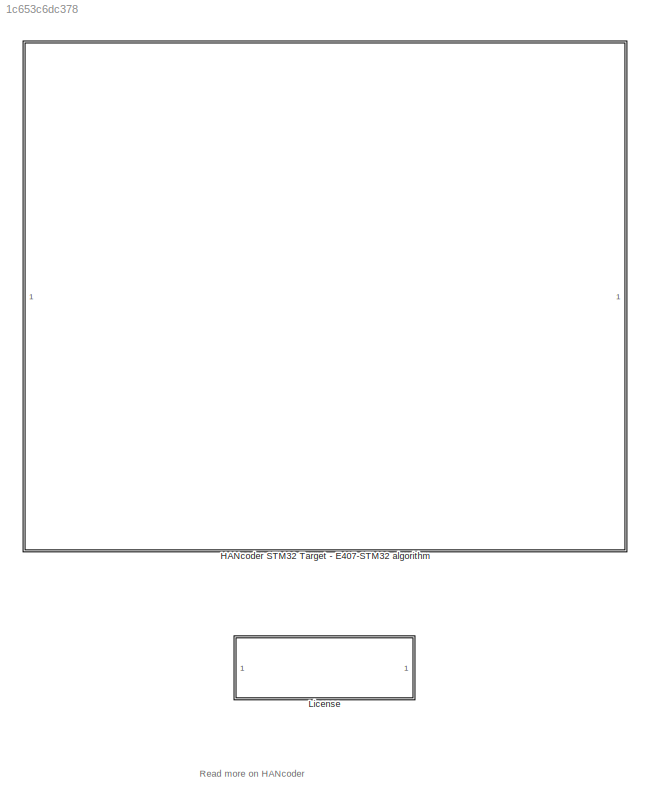
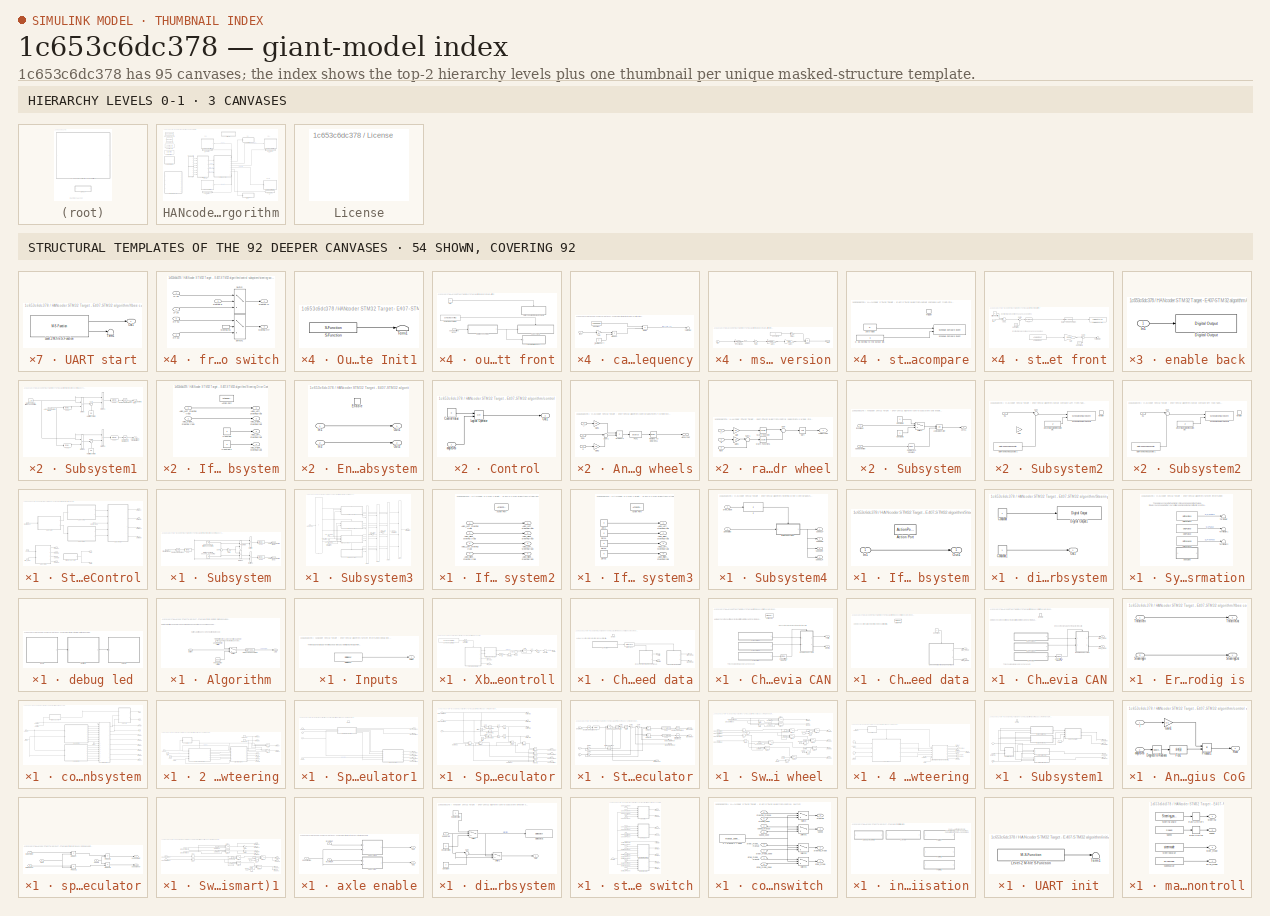
[diagram: thumbnail index - top-2 hierarchy levels (3 canvases) + 54 structural-template representatives of the remaining 92 canvases]
MODEL slx_1c653c6dc378
KIND model
CONFIG AbsTol = auto
CONFIG EnableMultiTasking = off
CONFIG FixedStep = 0.01
CONFIG MaxStep = auto
CONFIG MinStep = auto
CONFIG PreLoadFcn = librarySetup\neval([bdroot,'_startup']) %Calling [modelName]_startup.m
CONFIG RelTol = 1e-3
CONFIG SampleTimeConstraint = Unconstrained
CONFIG Solver = FixedStepDiscrete
CONFIG SolverName = FixedStepDiscrete
CONFIG StartTime = 0.0
CONFIG StopTime = 1
BLOCK [SubSystem] HANcoder STM32 Target - E407-STM32 algorithm
  CopyFcn = HANcoderChecks('Copy');
  MoveFcn = HANcoderChecks('MoveE407');
  NameChangeFcn = HANcoderChecks('NameChangeE407');
  Ports = []
  RequestExecContextInheritance = off
BLOCK [Reference] HANcoder STM32 Target - E407-STM32 algorithm/Base Sample Time config  REF=HANcoder_STM32_Target/STM32-E407/System Config/Base Sample Time config
  Description = HANcoder Target STM32-E407 blockset version 0.5
  Ports = []
  SourceBlock = HANcoder_STM32_Target/STM32-E407/System Config/Base Sample Time config
  SourceProductName = HANcoder STM32 Target
  SourceType = Base Sample Time config
  Tag = HANcoder_TARGET_STM32_E407
  UserDataPersistent = on
BLOCK [Reference] HANcoder STM32 Target - E407-STM32 algorithm/Build settings  REF=HANcoder_STM32_Target/STM32-E407/System Config/Build settings
  Ports = []
  SourceBlock = HANcoder_STM32_Target/STM32-E407/System Config/Build settings
  SourceProductName = HANcoder STM32 Target
  SourceType = Build Settings
  Tag = HANcoder_TARGET_STM32_E407
  UserDataPersistent = on
BLOCK [Reference] HANcoder STM32 Target - E407-STM32 algorithm/Custom ID config  REF=HANcoder_STM32_Target/STM32-E407/System Config/Custom ID config
  Ports = []
  SourceBlock = HANcoder_STM32_Target/STM32-E407/System Config/Custom ID config
  SourceProductName = HANcoder STM32 Target
  SourceType = Custom ID config
  Tag = HANcoder_TARGET_STM32_E407
  UserDataPersistent = on
BLOCK [SubSystem] HANcoder STM32 Target - E407-STM32 algorithm/Steering Drive Control
  Commented = on
  Ports = [4, 10]
  RequestExecContextInheritance = off
BLOCK [Inport] HANcoder STM32 Target - E407-STM32 algorithm/Steering Drive Control/Steering [deg]
  IconDisplay = Port number
BLOCK [SubSystem] HANcoder STM32 Target - E407-STM32 algorithm/Steering Drive Control/Subsystem
  Ports = [1, 2]
  RequestExecContextInheritance = off
BLOCK [Outport] HANcoder STM32 Target - E407-STM32 algorithm/Steering Drive Control/Subsystem/Axle 1 avg steering [deg]
  IconDisplay = Port number
BLOCK [Outport] HANcoder STM32 Target - E407-STM32 algorithm/Steering Drive Control/Subsystem/Axle 2 avg steering [deg]
  IconDisplay = Port number
  Port = 2
BLOCK [Reference] HANcoder STM32 Target - E407-STM32 algorithm/Steering Drive Control/Subsystem/Degrees to Radians  REF=simulink_extras/Transformations/Degrees to
Radians
  Ports = [1, 1]
  SourceBlock = simulink_extras/Transformations/Degrees to\nRadians
  SourceProductBaseCode = SL
  SourceProductName = Simulink
  SourceType = DegreesToRadians
BLOCK [Constant] HANcoder STM32 Target - E407-STM32 algorithm/Steering Drive Control/Subsystem/Distance of dolly first axle from pin coupling
  Value = L_D1
BLOCK [Constant] HANcoder STM32 Target - E407-STM32 algorithm/Steering Drive Control/Subsystem/Distance of dolly second axle from pin coupling
  Value = L_D2
BLOCK [Product] HANcoder STM32 Target - E407-STM32 algorithm/Steering Drive Control/Subsystem/Divide
  InputSameDT = off
  Inputs = */
  OutDataTypeStr = Inherit: Inherit via internal rule
  Ports = [2, 1]
  RndMeth = Floor
  SaturateOnIntegerOverflow = off
BLOCK [Product] HANcoder STM32 Target - E407-STM32 algorithm/Steering Drive Control/Subsystem/Divide1
  InputSameDT = off
  Inputs = /*
  OutDataTypeStr = Inherit: Inherit via internal rule
  Ports = [2, 1]
  RndMeth = Floor
  SaturateOnIntegerOverflow = off
BLOCK [Fcn] HANcoder STM32 Target - E407-STM32 algorithm/Steering Drive Control/Subsystem/Fcn
  Expr = tan(u)
BLOCK [Fcn] HANcoder STM32 Target - E407-STM32 algorithm/Steering Drive Control/Subsystem/Fcn1
  Expr = atan(u)
BLOCK [Fcn] HANcoder STM32 Target - E407-STM32 algorithm/Steering Drive Control/Subsystem/Fcn2
  Expr = atan(u)
BLOCK [Gain] HANcoder STM32 Target - E407-STM32 algorithm/Steering Drive Control/Subsystem/Gain
  Gain = 1/2
  OutDataTypeStr = Inherit: Inherit via internal rule
  ParamDataTypeStr = Inherit: Inherit via internal rule
  SaturateOnIntegerOverflow = off
BLOCK [Product] HANcoder STM32 Target - E407-STM32 algorithm/Steering Drive Control/Subsystem/Multiply
  InputSameDT = off
  OutDataTypeStr = Inherit: Inherit via internal rule
  Ports = [2, 1]
  RndMeth = Floor
  SaturateOnIntegerOverflow = off
BLOCK [Product] HANcoder STM32 Target - E407-STM32 algorithm/Steering Drive Control/Subsystem/Multiply1
  InputSameDT = off
  OutDataTypeStr = Inherit: Inherit via internal rule
  Ports = [2, 1]
  RndMeth = Floor
  SaturateOnIntegerOverflow = off
BLOCK [Inport] HANcoder STM32 Target - E407-STM32 algorithm/Steering Drive Control/Subsystem/Steering [deg]
  IconDisplay = Port number
BLOCK [Sum] HANcoder STM32 Target - E407-STM32 algorithm/Steering Drive Control/Subsystem/Sum
  IconShape = round
  InputSameDT = off
  OutDataTypeStr = Inherit: Inherit via internal rule
  Ports = [2, 1]
  SaturateOnIntegerOverflow = off
BLOCK [SubSystem] HANcoder STM32 Target - E407-STM32 algorithm/Steering Drive Control/Subsystem1
  Ports = [1, 2]
  RequestExecContextInheritance = off
BLOCK [Inport] HANcoder STM32 Target - E407-STM32 algorithm/Steering Drive Control/Subsystem1/Axle 1 avg steering [deg]
  IconDisplay = Port number
BLOCK [Outport] HANcoder STM32 Target - E407-STM32 algorithm/Steering Drive Control/Subsystem1/Axle1_Left_steering [rad]
  IconDisplay = Port number
BLOCK [Outport] HANcoder STM32 Target - E407-STM32 algorithm/Steering Drive Control/Subsystem1/Axle1_Right_steering [rad]
  IconDisplay = Port number
  Port = 2
BLOCK [Constant] HANcoder STM32 Target - E407-STM32 algorithm/Steering Drive Control/Subsystem1/Distance of dolly first axle from pin coupling
  Value = L_D1
BLOCK [Product] HANcoder STM32 Target - E407-STM32 algorithm/Steering Drive Control/Subsystem1/Divide
  InputSameDT = off
  Inputs = */
  OutDataTypeStr = Inherit: Inherit via internal rule
  Ports = [2, 1]
  RndMeth = Floor
  SaturateOnIntegerOverflow = off
BLOCK [Product] HANcoder STM32 Target - E407-STM32 algorithm/Steering Drive Control/Subsystem1/Divide1
  InputSameDT = off
  Inputs = */
  OutDataTypeStr = Inherit: Inherit via internal rule
  Ports = [2, 1]
  RndMeth = Floor
  SaturateOnIntegerOverflow = off
BLOCK [Product] HANcoder STM32 Target - E407-STM32 algorithm/Steering Drive Control/Subsystem1/Divide2
  InputSameDT = off
  Inputs = */
  OutDataTypeStr = Inherit: Inherit via internal rule
  Ports = [2, 1]
  RndMeth = Floor
  SaturateOnIntegerOverflow = off
BLOCK [Product] HANcoder STM32 Target - E407-STM32 algorithm/Steering Drive Control/Subsystem1/Divide3
  InputSameDT = off
  Inputs = */
  OutDataTypeStr = Inherit: Inherit via internal rule
  Ports = [2, 1]
  RndMeth = Floor
  SaturateOnIntegerOverflow = off
BLOCK [Fcn] HANcoder STM32 Target - E407-STM32 algorithm/Steering Drive Control/Subsystem1/Fcn1
  Expr = tan(u)
BLOCK [Fcn] HANcoder STM32 Target - E407-STM32 algorithm/Steering Drive Control/Subsystem1/Fcn2
  Expr = atan(u)
BLOCK [Fcn] HANcoder STM32 Target - E407-STM32 algorithm/Steering Drive Control/Subsystem1/Fcn3
  Expr = tan(u)
BLOCK [Fcn] HANcoder STM32 Target - E407-STM32 algorithm/Steering Drive Control/Subsystem1/Fcn4
  Expr = atan(u)
BLOCK [Constant] HANcoder STM32 Target - E407-STM32 algorithm/Steering Drive Control/Subsystem1/Half of track width
  SampleTime = -1
  Value = b/2
  VectorParams1D = off
BLOCK [Constant] HANcoder STM32 Target - E407-STM32 algorithm/Steering Drive Control/Subsystem1/Half of track width 
  SampleTime = -1
  Value = b/2
  VectorParams1D = off
BLOCK [Reference] HANcoder STM32 Target - E407-STM32 algorithm/Steering Drive Control/Subsystem1/Radians to Degrees  REF=simulink_extras/Transformations/Radians
to Degrees
  Ports = [1, 1]
  SourceBlock = simulink_extras/Transformations/Radians\nto Degrees
  SourceProductBaseCode = SL
  SourceProductName = Simulink
  SourceType = RadiansToDegrees
BLOCK [Reference] HANcoder STM32 Target - E407-STM32 algorithm/Steering Drive Control/Subsystem1/Radians to Degrees1  REF=simulink_extras/Transformations/Radians
to Degrees
  Ports = [1, 1]
  SourceBlock = simulink_extras/Transformations/Radians\nto Degrees
  SourceProductBaseCode = SL
  SourceProductName = Simulink
  SourceType = RadiansToDegrees
BLOCK [Sum] HANcoder STM32 Target - E407-STM32 algorithm/Steering Drive Control/Subsystem1/Sum
  IconShape = round
  InputSameDT = off
  Inputs = |++
  OutDataTypeStr = Inherit: Inherit via internal rule
  Ports = [2, 1]
  SaturateOnIntegerOverflow = off
BLOCK [Sum] HANcoder STM32 Target - E407-STM32 algorithm/Steering Drive Control/Subsystem1/Sum1
  IconShape = round
  InputSameDT = off
  Inputs = |+-
  OutDataTypeStr = Inherit: Inherit via internal rule
  Ports = [2, 1]
  SaturateOnIntegerOverflow = off
BLOCK [SubSystem] HANcoder STM32 Target - E407-STM32 algorithm/Steering Drive Control/Subsystem2
  Ports = [1, 2]
  RequestExecContextInheritance = off
BLOCK [Inport] HANcoder STM32 Target - E407-STM32 algorithm/Steering Drive Control/Subsystem2/Axle 2 avg steering [deg]
  IconDisplay = Port number
BLOCK [Outport] HANcoder STM32 Target - E407-STM32 algorithm/Steering Drive Control/Subsystem2/Axle2_Left_steering [rad]
  IconDisplay = Port number
BLOCK [Outport] HANcoder STM32 Target - E407-STM32 algorithm/Steering Drive Control/Subsystem2/Axle2_Right_steering [rad]
  IconDisplay = Port number
  Port = 2
BLOCK [Constant] HANcoder STM32 Target - E407-STM32 algorithm/Steering Drive Control/Subsystem2/Distance of dolly second axle from pin coupling
  Value = L_D2
BLOCK [Product] HANcoder STM32 Target - E407-STM32 algorithm/Steering Drive Control/Subsystem2/Divide1
  InputSameDT = off
  Inputs = */
  OutDataTypeStr = Inherit: Inherit via internal rule
  Ports = [2, 1]
  RndMeth = Floor
  SaturateOnIntegerOverflow = off
BLOCK [Product] HANcoder STM32 Target - E407-STM32 algorithm/Steering Drive Control/Subsystem2/Divide2
  InputSameDT = off
  Inputs = */
  OutDataTypeStr = Inherit: Inherit via internal rule
  Ports = [2, 1]
  RndMeth = Floor
  SaturateOnIntegerOverflow = off
BLOCK [Product] HANcoder STM32 Target - E407-STM32 algorithm/Steering Drive Control/Subsystem2/Divide3
  InputSameDT = off
  Inputs = */
  OutDataTypeStr = Inherit: Inherit via internal rule
  Ports = [2, 1]
  RndMeth = Floor
  SaturateOnIntegerOverflow = off
BLOCK [Product] HANcoder STM32 Target - E407-STM32 algorithm/Steering Drive Control/Subsystem2/Divide4
  InputSameDT = off
  Inputs = */
  OutDataTypeStr = Inherit: Inherit via internal rule
  Ports = [2, 1]
  RndMeth = Floor
  SaturateOnIntegerOverflow = off
BLOCK [Fcn] HANcoder STM32 Target - E407-STM32 algorithm/Steering Drive Control/Subsystem2/Fcn1
  Expr = tan(u)
BLOCK [Fcn] HANcoder STM32 Target - E407-STM32 algorithm/Steering Drive Control/Subsystem2/Fcn2
  Expr = atan(u)
BLOCK [Fcn] HANcoder STM32 Target - E407-STM32 algorithm/Steering Drive Control/Subsystem2/Fcn3
  Expr = tan(u)
BLOCK [Fcn] HANcoder STM32 Target - E407-STM32 algorithm/Steering Drive Control/Subsystem2/Fcn4
  Expr = atan(u)
BLOCK [Constant] HANcoder STM32 Target - E407-STM32 algorithm/Steering Drive Control/Subsystem2/Half of track width 
  SampleTime = -1
  Value = b/2
  VectorParams1D = off
BLOCK [Constant] HANcoder STM32 Target - E407-STM32 algorithm/Steering Drive Control/Subsystem2/Half of track width  
  SampleTime = -1
  Value = b/2
  VectorParams1D = off
BLOCK [Reference] HANcoder STM32 Target - E407-STM32 algorithm/Steering Drive Control/Subsystem2/Radians to Degrees  REF=simulink_extras/Transformations/Radians
to Degrees
  Ports = [1, 1]
  SourceBlock = simulink_extras/Transformations/Radians\nto Degrees
  SourceProductBaseCode = SL
  SourceProductName = Simulink
  SourceType = RadiansToDegrees
BLOCK [Reference] HANcoder STM32 Target - E407-STM32 algorithm/Steering Drive Control/Subsystem2/Radians to Degrees1  REF=simulink_extras/Transformations/Radians
to Degrees
  Ports = [1, 1]
  SourceBlock = simulink_extras/Transformations/Radians\nto Degrees
  SourceProductBaseCode = SL
  SourceProductName = Simulink
  SourceType = RadiansToDegrees
BLOCK [Sum] HANcoder STM32 Target - E407-STM32 algorithm/Steering Drive Control/Subsystem2/Sum1
  IconShape = round
  InputSameDT = off
  Inputs = |++
  OutDataTypeStr = Inherit: Inherit via internal rule
  Ports = [2, 1]
  SaturateOnIntegerOverflow = off
BLOCK [Sum] HANcoder STM32 Target - E407-STM32 algorithm/Steering Drive Control/Subsystem2/Sum2
  IconShape = round
  InputSameDT = off
  Inputs = |+-
  OutDataTypeStr = Inherit: Inherit via internal rule
  Ports = [2, 1]
  SaturateOnIntegerOverflow = off
BLOCK [SubSystem] HANcoder STM32 Target - E407-STM32 algorithm/Steering Drive Control/Subsystem3
  Ports = [5, 4]
  RequestExecContextInheritance = off
BLOCK [Inport] HANcoder STM32 Target - E407-STM32 algorithm/Steering Drive Control/Subsystem3/Axle1_Left_steering [rad]
  IconDisplay = Port number
BLOCK [Outport] HANcoder STM32 Target - E407-STM32 algorithm/Steering Drive Control/Subsystem3/Axle1_Left_steering[rad]
  IconDisplay = Port number
BLOCK [Inport] HANcoder STM32 Target - E407-STM32 algorithm/Steering Drive Control/Subsystem3/Axle1_Right_steering [rad]
  IconDisplay = Port number
  Port = 2
BLOCK [Outport] HANcoder STM32 Target - E407-STM32 algorithm/Steering Drive Control/Subsystem3/Axle1_Right_steering[rad]
  IconDisplay = Port number
  Port = 2
BLOCK [Inport] HANcoder STM32 Target - E407-STM32 algorithm/Steering Drive Control/Subsystem3/Axle2_Left_steering [rad]
  IconDisplay = Port number
  Port = 4
BLOCK [Outport] HANcoder STM32 Target - E407-STM32 algorithm/Steering Drive Control/Subsystem3/Axle2_Left_steering[rad]
  IconDisplay = Port number
  Port = 3
BLOCK [Inport] HANcoder STM32 Target - E407-STM32 algorithm/Steering Drive Control/Subsystem3/Axle2_Right_steering [rad]
  IconDisplay = Port number
  Port = 5
BLOCK [Outport] HANcoder STM32 Target - E407-STM32 algorithm/Steering Drive Control/Subsystem3/Axle2_Right_steering[rad]
  IconDisplay = Port number
  Port = 4
BLOCK [If] HANcoder STM32 Target - E407-STM32 algorithm/Steering Drive Control/Subsystem3/If
  ElseIfExpressions = u1 == 2, u1 == 3
  IfExpression = u1 == 1
  Ports = [1, 4]
BLOCK [SubSystem] HANcoder STM32 Target - E407-STM32 algorithm/Steering Drive Control/Subsystem3/If Action Subsystem
  Ports = [2, 4, 0, 0, 0, 0, 0, 1]
  RequestExecContextInheritance = off
  TreatAsAtomicUnit = on
BLOCK [ActionPort] HANcoder STM32 Target - E407-STM32 algorithm/Steering Drive Control/Subsystem3/If Action Subsystem/Action Port
BLOCK [Inport] HANcoder STM32 Target - E407-STM32 algorithm/Steering Drive Control/Subsystem3/If Action Subsystem/Axle1_Left_steering [rad]
  IconDisplay = Port number
BLOCK [Outport] HANcoder STM32 Target - E407-STM32 algorithm/Steering Drive Control/Subsystem3/If Action Subsystem/Axle1_Left_steering[rad]
  IconDisplay = Port number
BLOCK [Inport] HANcoder STM32 Target - E407-STM32 algorithm/Steering Drive Control/Subsystem3/If Action Subsystem/Axle1_Right_steering [rad]
  IconDisplay = Port number
  Port = 2
BLOCK [Outport] HANcoder STM32 Target - E407-STM32 algorithm/Steering Drive Control/Subsystem3/If Action Subsystem/Axle1_Right_steering[rad]
  IconDisplay = Port number
  Port = 2
BLOCK [Outport] HANcoder STM32 Target - E407-STM32 algorithm/Steering Drive Control/Subsystem3/If Action Subsystem/Axle2_Left_steering[rad]
  IconDisplay = Port number
  Port = 3
BLOCK [Outport] HANcoder STM32 Target - E407-STM32 algorithm/Steering Drive Control/Subsystem3/If Action Subsystem/Axle2_Right_steering[rad]
  IconDisplay = Port number
  Port = 4
BLOCK [Constant] HANcoder STM32 Target - E407-STM32 algorithm/Steering Drive Control/Subsystem3/If Action Subsystem/Constant
  Value = 0
BLOCK [Constant] HANcoder STM32 Target - E407-STM32 algorithm/Steering Drive Control/Subsystem3/If Action Subsystem/Constant1
  Value = 0
BLOCK [SubSystem] HANcoder STM32 Target - E407-STM32 algorithm/Steering Drive Control/Subsystem3/If Action Subsystem1
  Ports = [2, 4, 0, 0, 0, 0, 0, 1]
  RequestExecContextInheritance = off
  TreatAsAtomicUnit = on
BLOCK [ActionPort] HANcoder STM32 Target - E407-STM32 algorithm/Steering Drive Control/Subsystem3/If Action Subsystem1/Action Port
BLOCK [Outport] HANcoder STM32 Target - E407-STM32 algorithm/Steering Drive Control/Subsystem3/If Action Subsystem1/Axle1_Left_steering[rad]
  IconDisplay = Port number
BLOCK [Outport] HANcoder STM32 Target - E407-STM32 algorithm/Steering Drive Control/Subsystem3/If Action Subsystem1/Axle1_Right_steering[rad]
  IconDisplay = Port number
  Port = 2
BLOCK [Inport] HANcoder STM32 Target - E407-STM32 algorithm/Steering Drive Control/Subsystem3/If Action Subsystem1/Axle2_Left_steering [rad]
  IconDisplay = Port number
BLOCK [Outport] HANcoder STM32 Target - E407-STM32 algorithm/Steering Drive Control/Subsystem3/If Action Subsystem1/Axle2_Left_steering[rad]
  IconDisplay = Port number
  Port = 3
BLOCK [Inport] HANcoder STM32 Target - E407-STM32 algorithm/Steering Drive Control/Subsystem3/If Action Subsystem1/Axle2_Right_steering [rad]
  IconDisplay = Port number
  Port = 2
BLOCK [Outport] HANcoder STM32 Target - E407-STM32 algorithm/Steering Drive Control/Subsystem3/If Action Subsystem1/Axle2_Right_steering[rad]
  IconDisplay = Port number
  Port = 4
BLOCK [Constant] HANcoder STM32 Target - E407-STM32 algorithm/Steering Drive Control/Subsystem3/If Action Subsystem1/Constant
  Value = 0
BLOCK [Constant] HANcoder STM32 Target - E407-STM32 algorithm/Steering Drive Control/Subsystem3/If Action Subsystem1/Constant1
  Value = 0
BLOCK [SubSystem] HANcoder STM32 Target - E407-STM32 algorithm/Steering Drive Control/Subsystem3/If Action Subsystem2
  Ports = [4, 4, 0, 0, 0, 0, 0, 1]
  RequestExecContextInheritance = off
  TreatAsAtomicUnit = on
BLOCK [ActionPort] HANcoder STM32 Target - E407-STM32 algorithm/Steering Drive Control/Subsystem3/If Action Subsystem2/Action Port
BLOCK [Inport] HANcoder STM32 Target - E407-STM32 algorithm/Steering Drive Control/Subsystem3/If Action Subsystem2/Axle1_Left_steering [rad]
  IconDisplay = Port number
BLOCK [Outport] HANcoder STM32 Target - E407-STM32 algorithm/Steering Drive Control/Subsystem3/If Action Subsystem2/Axle1_Left_steering[rad]
  IconDisplay = Port number
BLOCK [Inport] HANcoder STM32 Target - E407-STM32 algorithm/Steering Drive Control/Subsystem3/If Action Subsystem2/Axle1_Right_steering [rad]
  IconDisplay = Port number
  Port = 2
BLOCK [Outport] HANcoder STM32 Target - E407-STM32 algorithm/Steering Drive Control/Subsystem3/If Action Subsystem2/Axle1_Right_steering[rad]
  IconDisplay = Port number
  Port = 2
BLOCK [Inport] HANcoder STM32 Target - E407-STM32 algorithm/Steering Drive Control/Subsystem3/If Action Subsystem2/Axle2_Left_steering [rad]
  IconDisplay = Port number
  Port = 3
BLOCK [Outport] HANcoder STM32 Target - E407-STM32 algorithm/Steering Drive Control/Subsystem3/If Action Subsystem2/Axle2_Left_steering[rad]
  IconDisplay = Port number
  Port = 3
BLOCK [Inport] HANcoder STM32 Target - E407-STM32 algorithm/Steering Drive Control/Subsystem3/If Action Subsystem2/Axle2_Right_steering [rad]
  IconDisplay = Port number
  Port = 4
BLOCK [Outport] HANcoder STM32 Target - E407-STM32 algorithm/Steering Drive Control/Subsystem3/If Action Subsystem2/Axle2_Right_steering[rad]
  IconDisplay = Port number
  Port = 4
BLOCK [SubSystem] HANcoder STM32 Target - E407-STM32 algorithm/Steering Drive Control/Subsystem3/If Action Subsystem3
  Ports = [0, 4, 0, 0, 0, 0, 0, 1]
  RequestExecContextInheritance = off
  TreatAsAtomicUnit = on
BLOCK [ActionPort] HANcoder STM32 Target - E407-STM32 algorithm/Steering Drive Control/Subsystem3/If Action Subsystem3/Action Port
BLOCK [Outport] HANcoder STM32 Target - E407-STM32 algorithm/Steering Drive Control/Subsystem3/If Action Subsystem3/Axle1_Left_steering[rad]
  IconDisplay = Port number
BLOCK [Outport] HANcoder STM32 Target - E407-STM32 algorithm/Steering Drive Control/Subsystem3/If Action Subsystem3/Axle1_Right_steering[rad]
  IconDisplay = Port number
  Port = 2
BLOCK [Outport] HANcoder STM32 Target - E407-STM32 algorithm/Steering Drive Control/Subsystem3/If Action Subsystem3/Axle2_Left_steering[rad]
  IconDisplay = Port number
  Port = 3
BLOCK [Outport] HANcoder STM32 Target - E407-STM32 algorithm/Steering Drive Control/Subsystem3/If Action Subsystem3/Axle2_Right_steering[rad]
  IconDisplay = Port number
  Port = 4
BLOCK [Constant] HANcoder STM32 Target - E407-STM32 algorithm/Steering Drive Control/Subsystem3/If Action Subsystem3/Zero
  Value = 0
BLOCK [Constant] HANcoder STM32 Target - E407-STM32 algorithm/Steering Drive Control/Subsystem3/If Action Subsystem3/Zero1
  Value = 0
BLOCK [Constant] HANcoder STM32 Target - E407-STM32 algorithm/Steering Drive Control/Subsystem3/If Action Subsystem3/Zero2
  Value = 0
BLOCK [Constant] HANcoder STM32 Target - E407-STM32 algorithm/Steering Drive Control/Subsystem3/If Action Subsystem3/Zero3
  Value = 0
BLOCK [Merge] HANcoder STM32 Target - E407-STM32 algorithm/Steering Drive Control/Subsystem3/Merge1
  Inputs = 4
  Ports = [4, 1]
BLOCK [Merge] HANcoder STM32 Target - E407-STM32 algorithm/Steering Drive Control/Subsystem3/Merge2
  Inputs = 4
  Ports = [4, 1]
BLOCK [Merge] HANcoder STM32 Target - E407-STM32 algorithm/Steering Drive Control/Subsystem3/Merge3
  Inputs = 4
  Ports = [4, 1]
BLOCK [Merge] HANcoder STM32 Target - E407-STM32 algorithm/Steering Drive Control/Subsystem3/Merge4
  Inputs = 4
  Ports = [4, 1]
BLOCK [Inport] HANcoder STM32 Target - E407-STM32 algorithm/Steering Drive Control/Subsystem3/steering_mode
  IconDisplay = Port number
  Port = 3
BLOCK [SubSystem] HANcoder STM32 Target - E407-STM32 algorithm/Steering Drive Control/Subsystem4
  Ports = [2, 4]
  RequestExecContextInheritance = off
BLOCK [If] HANcoder STM32 Target - E407-STM32 algorithm/Steering Drive Control/Subsystem4/If
  IfExpression = u1 ==1
  Ports = [1, 1]
  ShowElse = off
BLOCK [SubSystem] HANcoder STM32 Target - E407-STM32 algorithm/Steering Drive Control/Subsystem4/If Action Subsystem
  Ports = [1, 1, 0, 0, 0, 0, 0, 1]
  RequestExecContextInheritance = off
  TreatAsAtomicUnit = on
BLOCK [ActionPort] HANcoder STM32 Target - E407-STM32 algorithm/Steering Drive Control/Subsystem4/If Action Subsystem/Action Port
BLOCK [Inport] HANcoder STM32 Target - E407-STM32 algorithm/Steering Drive Control/Subsystem4/If Action Subsystem/In1
  IconDisplay = Port number
BLOCK [Outport] HANcoder STM32 Target - E407-STM32 algorithm/Steering Drive Control/Subsystem4/If Action Subsystem/Out1
  IconDisplay = Port number
BLOCK [Inport] HANcoder STM32 Target - E407-STM32 algorithm/Steering Drive Control/Subsystem4/Speed [m//s]
  IconDisplay = Port number
BLOCK [Inport] HANcoder STM32 Target - E407-STM32 algorithm/Steering Drive Control/Subsystem4/drive_mode
  IconDisplay = Port number
  Port = 2
BLOCK [Outport] HANcoder STM32 Target - E407-STM32 algorithm/Steering Drive Control/Subsystem4/speed LF
  IconDisplay = Port number
BLOCK [Outport] HANcoder STM32 Target - E407-STM32 algorithm/Steering Drive Control/Subsystem4/speed LR
  IconDisplay = Port number
  Port = 4
BLOCK [Outport] HANcoder STM32 Target - E407-STM32 algorithm/Steering Drive Control/Subsystem4/speed RF
  IconDisplay = Port number
  Port = 2
BLOCK [Outport] HANcoder STM32 Target - E407-STM32 algorithm/Steering Drive Control/Subsystem4/speed RR
  IconDisplay = Port number
  Port = 3
BLOCK [SubSystem] HANcoder STM32 Target - E407-STM32 algorithm/Steering Drive Control/direction subsystem
  Ports = [0, 1]
  RequestExecContextInheritance = off
BLOCK [Constant] HANcoder STM32 Target - E407-STM32 algorithm/Steering Drive Control/direction subsystem/Constant
  OutDataTypeStr = boolean
BLOCK [Constant] HANcoder STM32 Target - E407-STM32 algorithm/Steering Drive Control/direction subsystem/Constant1
  OutDataTypeStr = boolean
BLOCK [Reference] HANcoder STM32 Target - E407-STM32 algorithm/Steering Drive Control/direction subsystem/Digital Output1  REF=HANcoder_STM32_Target/STM32-E407/Digital Outputs/Digital Output
  Ports = [1]
  SourceBlock = HANcoder_STM32_Target/STM32-E407/Digital Outputs/Digital Output
  SourceProductName = HANcoder STM32 Target
  SourceType = Digital Output
  Tag = HANcoder_TARGET_STM32_E407
  UserDataPersistent = on
BLOCK [Outport] HANcoder STM32 Target - E407-STM32 algorithm/Steering Drive Control/direction subsystem/Out1
  IconDisplay = Port number
BLOCK [Inport] HANcoder STM32 Target - E407-STM32 algorithm/Steering Drive Control/drive_mode
  IconDisplay = Port number
  Port = 4
BLOCK [Inport] HANcoder STM32 Target - E407-STM32 algorithm/Steering Drive Control/speed
  IconDisplay = Port number
  Port = 2
BLOCK [Outport] HANcoder STM32 Target - E407-STM32 algorithm/Steering Drive Control/speed LF
  IconDisplay = Port number
  Port = 2
BLOCK [Outport] HANcoder STM32 Target - E407-STM32 algorithm/Steering Drive Control/speed LR
  IconDisplay = Port number
  Port = 10
BLOCK [Outport] HANcoder STM32 Target - E407-STM32 algorithm/Steering Drive Control/speed RF
  IconDisplay = Port number
  Port = 4
BLOCK [Outport] HANcoder STM32 Target - E407-STM32 algorithm/Steering Drive Control/speed RR
  IconDisplay = Port number
  Port = 6
BLOCK [Outport] HANcoder STM32 Target - E407-STM32 algorithm/Steering Drive Control/steering LF
  IconDisplay = Port number
BLOCK [Outport] HANcoder STM32 Target - E407-STM32 algorithm/Steering Drive Control/steering LR
  IconDisplay = Port number
  Port = 9
BLOCK [Outport] HANcoder STM32 Target - E407-STM32 algorithm/Steering Drive Control/steering RF
  IconDisplay = Port number
  Port = 5
BLOCK [Outport] HANcoder STM32 Target - E407-STM32 algorithm/Steering Drive Control/steering RR
  IconDisplay = Port number
  Port = 7
BLOCK [Inport] HANcoder STM32 Target - E407-STM32 algorithm/Steering Drive Control/steering_mode
  IconDisplay = Port number
  Port = 3
BLOCK [Outport] HANcoder STM32 Target - E407-STM32 algorithm/Steering Drive Control/zeroF
  IconDisplay = Port number
  Port = 3
BLOCK [Outport] HANcoder STM32 Target - E407-STM32 algorithm/Steering Drive Control/zeroR
  IconDisplay = Port number
  Port = 8
BLOCK [SubSystem] HANcoder STM32 Target - E407-STM32 algorithm/System information
  Ports = []
  RequestExecContextInheritance = off
BLOCK [Reference] HANcoder STM32 Target - E407-STM32 algorithm/System information/Get CPU load  REF=HANcoder_STM32_Target/STM32-E407/System Management/Get CPU load
  Ports = [0, 1]
  SourceBlock = HANcoder_STM32_Target/STM32-E407/System Management/Get CPU load
  SourceProductName = HANcoder STM32 Target
  SourceType = Get CPU load
  Tag = HANcoder_TARGET_STM32_E407
  UserDataPersistent = on
BLOCK [Reference] HANcoder STM32 Target - E407-STM32 algorithm/System information/Get free Heap  REF=HANcoder_STM32_Target/STM32-E407/System Management/Get free Heap
  Ports = [0, 1]
  SourceBlock = HANcoder_STM32_Target/STM32-E407/System Management/Get free Heap
  SourceProductName = HANcoder STM32 Target
  SourceType = Get free Heap
  Tag = HANcoder_TARGET_STM32_E407
  UserDataPersistent = on
BLOCK [Reference] HANcoder STM32 Target - E407-STM32 algorithm/System information/Get free Stack  REF=HANcoder_STM32_Target/STM32-E407/System Management/Get free Stack
  Ports = [0, 1]
  SourceBlock = HANcoder_STM32_Target/STM32-E407/System Management/Get free Stack
  SourceProductName = HANcoder STM32 Target
  SourceType = Get free Stacl
  Tag = HANcoder_TARGET_STM32_E407
  UserDataPersistent = on
BLOCK [Terminator] HANcoder STM32 Target - E407-STM32 algorithm/System information/Terminator
BLOCK [Terminator] HANcoder STM32 Target - E407-STM32 algorithm/System information/Terminator1
BLOCK [Terminator] HANcoder STM32 Target - E407-STM32 algorithm/System information/Terminator2
BLOCK [SubSystem] HANcoder STM32 Target - E407-STM32 algorithm/System information/debug led
  Ports = []
  RequestExecContextInheritance = off
BLOCK [SubSystem] HANcoder STM32 Target - E407-STM32 algorithm/System information/debug led/Algorithm
  Ports = [1, 1]
  RequestExecContextInheritance = off
BLOCK [Reference] HANcoder STM32 Target - E407-STM32 algorithm/System information/debug led/Algorithm/10Hz Counter Limiter  REF=simulink/Sources/Counter
Limited
  Ports = [0, 1]
  SourceBlock = simulink/Sources/Counter\nLimited
  SourceProductBaseCode = SL
  SourceProductName = Simulink
  SourceType = Counter Limited
BLOCK [Reference] HANcoder STM32 Target - E407-STM32 algorithm/System information/debug led/Algorithm/5Hz Counter Limited  REF=simulink/Sources/Counter
Limited
  Ports = [0, 1]
  SourceBlock = simulink/Sources/Counter\nLimited
  SourceProductBaseCode = SL
  SourceProductName = Simulink
  SourceType = Counter Limited
BLOCK [Inport] HANcoder STM32 Target - E407-STM32 algorithm/System information/debug led/Algorithm/Button
  IconDisplay = Port number
BLOCK [DataTypeConversion] HANcoder STM32 Target - E407-STM32 algorithm/System information/debug led/Algorithm/Data Type Conversion
  OutDataTypeStr = boolean
  RndMeth = Floor
  SaturateOnIntegerOverflow = off
BLOCK [Outport] HANcoder STM32 Target - E407-STM32 algorithm/System information/debug led/Algorithm/LED
  IconDisplay = Port number
BLOCK [Switch] HANcoder STM32 Target - E407-STM32 algorithm/System information/debug led/Algorithm/Switch
  Criteria = u2 > Threshold
  InputSameDT = off
  SaturateOnIntegerOverflow = off
BLOCK [SubSystem] HANcoder STM32 Target - E407-STM32 algorithm/System information/debug led/Inputs
  Ports = [0, 1]
  RequestExecContextInheritance = off
BLOCK [Outport] HANcoder STM32 Target - E407-STM32 algorithm/System information/debug led/Inputs/Button
  IconDisplay = Port number
BLOCK [Reference] HANcoder STM32 Target - E407-STM32 algorithm/System information/debug led/Inputs/Digital Input  REF=HANcoder_STM32_Target/STM32-E407/Digital Inputs/Digital Input
  Ports = [0, 1]
  SourceBlock = HANcoder_STM32_Target/STM32-E407/Digital Inputs/Digital Input
  SourceProductName = HANcoder STM32 Target
  SourceType = Digital Input
  Tag = HANcoder_TARGET_STM32_E407
  UserDataPersistent = on
BLOCK [SubSystem] HANcoder STM32 Target - E407-STM32 algorithm/System information/debug led/Outputs
  Ports = [1]
  RequestExecContextInheritance = off
BLOCK [Reference] HANcoder STM32 Target - E407-STM32 algorithm/System information/debug led/Outputs/Digital Output  REF=HANcoder_STM32_Target/STM32-E407/Digital Outputs/Digital Output
  Ports = [1]
  SourceBlock = HANcoder_STM32_Target/STM32-E407/Digital Outputs/Digital Output
  SourceProductName = HANcoder STM32 Target
  SourceType = Digital Output
  Tag = HANcoder_TARGET_STM32_E407
  UserDataPersistent = on
BLOCK [Inport] HANcoder STM32 Target - E407-STM32 algorithm/System information/debug led/Outputs/LED
  IconDisplay = Port number
BLOCK [Reference] HANcoder STM32 Target - E407-STM32 algorithm/XCP on USB config  REF=HANcoder_STM32_Target/STM32-E407/System Config/XCP on USB config
  Ports = []
  SourceBlock = HANcoder_STM32_Target/STM32-E407/System Config/XCP on USB config
  SourceProductName = HANcoder STM32 Target
  SourceType = XCP on USB config
  Tag = HANcoder_TARGET_STM32_E407
  UserDataPersistent = on
BLOCK [SubSystem] HANcoder STM32 Target - E407-STM32 algorithm/Xbee controll
  Ports = [0, 4]
  RequestExecContextInheritance = off
BLOCK [SubSystem] HANcoder STM32 Target - E407-STM32 algorithm/Xbee controll/Check received data
  Ports = [0, 4, 1]
  RequestExecContextInheritance = off
  TreatAsAtomicUnit = on
BLOCK [SubSystem] HANcoder STM32 Target - E407-STM32 algorithm/Xbee controll/Check received data/Check next 3 bytes and send via CAN
  Ports = [0, 2, 0, 0, 0, 0, 0, 1]
  RequestExecContextInheritance = off
  TreatAsAtomicUnit = on
BLOCK [ActionPort] HANcoder STM32 Target - E407-STM32 algorithm/Xbee controll/Check received data/Check next 3 bytes and send via CAN/Action Port
BLOCK [Reference] HANcoder STM32 Target - E407-STM32 algorithm/Xbee controll/Check received data/Check next 3 bytes and send via CAN/Check if it is the stop byte  REF=simulink/Logic and Bit
Operations/Compare
To Constant
  Ports = [1, 1]
  SourceBlock = simulink/Logic and Bit\nOperations/Compare\nTo Constant
  SourceProductBaseCode = SL
  SourceProductName = Simulink
  SourceType = Compare To Constant
BLOCK [SubSystem] HANcoder STM32 Target - E407-STM32 algorithm/Xbee controll/Check received data/Check next 3 bytes and send via CAN/Enabled Subsystem
  Ports = [2, 2, 1]
  RequestExecContextInheritance = off
  TreatAsAtomicUnit = on
BLOCK [EnablePort] HANcoder STM32 Target - E407-STM32 algorithm/Xbee controll/Check received data/Check next 3 bytes and send via CAN/Enabled Subsystem/Enable
  Ports = []
BLOCK [Inport] HANcoder STM32 Target - E407-STM32 algorithm/Xbee controll/Check received data/Check next 3 bytes and send via CAN/Enabled Subsystem/In1
  IconDisplay = Port number
BLOCK [Inport] HANcoder STM32 Target - E407-STM32 algorithm/Xbee controll/Check received data/Check next 3 bytes and send via CAN/Enabled Subsystem/In2
  IconDisplay = Port number
  Port = 2
BLOCK [Outport] HANcoder STM32 Target - E407-STM32 algorithm/Xbee controll/Check received data/Check next 3 bytes and send via CAN/Enabled Subsystem/Out1
  IconDisplay = Port number
BLOCK [Outport] HANcoder STM32 Target - E407-STM32 algorithm/Xbee controll/Check received data/Check next 3 bytes and send via CAN/Enabled Subsystem/Out2
  IconDisplay = Port number
  Port = 2
BLOCK [Outport] HANcoder STM32 Target - E407-STM32 algorithm/Xbee controll/Check received data/Check next 3 bytes and send via CAN/Steering
  IconDisplay = Port number
  Port = 2
BLOCK [Outport] HANcoder STM32 Target - E407-STM32 algorithm/Xbee controll/Check received data/Check next 3 bytes and send via CAN/Throttle
  IconDisplay = Port number
BLOCK [SubSystem] HANcoder STM32 Target - E407-STM32 algorithm/Xbee controll/Check received data/Check next 3 bytes and send via CAN/UART stop
  AncestorBlock = HANcoder_STM32_Target/STM32-E407/UART/UART receive
  MoveFcn = drawLogos
  Ports = [0, 1]
  Priority = 30
  RequestExecContextInheritance = off
  Tag = HANcoder_TARGET_STM32_E407
  UserDataPersistent = on
BLOCK [M-S-Function] HANcoder STM32 Target - E407-STM32 algorithm/Xbee controll/Check received data/Check next 3 bytes and send via CAN/UART stop/Level-2 M-file S-Function
  FunctionName = sfcn_uart_receive
  Parameters = tsamp
  Ports = [0, 2]
BLOCK [Outport] HANcoder STM32 Target - E407-STM32 algorithm/Xbee controll/Check received data/Check next 3 bytes and send via CAN/UART stop/Out1
  IconDisplay = Port number
BLOCK [Terminator] HANcoder STM32 Target - E407-STM32 algorithm/Xbee controll/Check received data/Check next 3 bytes and send via CAN/UART stop/Term1
BLOCK [SubSystem] HANcoder STM32 Target - E407-STM32 algorithm/Xbee controll/Check received data/Check next 3 bytes and send via CAN/UART value1
  AncestorBlock = HANcoder_STM32_Target/STM32-E407/UART/UART receive
  MoveFcn = drawLogos
  Ports = [0, 1]
  Priority = 10
  RequestExecContextInheritance = off
  Tag = HANcoder_TARGET_STM32_E407
  UserDataPersistent = on
BLOCK [M-S-Function] HANcoder STM32 Target - E407-STM32 algorithm/Xbee controll/Check received data/Check next 3 bytes and send via CAN/UART value1/Level-2 M-file S-Function
  FunctionName = sfcn_uart_receive
  Parameters = tsamp
  Ports = [0, 2]
BLOCK [Outport] HANcoder STM32 Target - E407-STM32 algorithm/Xbee controll/Check received data/Check next 3 bytes and send via CAN/UART value1/Out1
  IconDisplay = Port number
BLOCK [Terminator] HANcoder STM32 Target - E407-STM32 algorithm/Xbee controll/Check received data/Check next 3 bytes and send via CAN/UART value1/Term1
BLOCK [SubSystem] HANcoder STM32 Target - E407-STM32 algorithm/Xbee controll/Check received data/Check next 3 bytes and send via CAN/UART value2
  AncestorBlock = HANcoder_STM32_Target/STM32-E407/UART/UART receive
  MoveFcn = drawLogos
  Ports = [0, 1]
  Priority = 20
  RequestExecContextInheritance = off
  Tag = HANcoder_TARGET_STM32_E407
  UserDataPersistent = on
BLOCK [M-S-Function] HANcoder STM32 Target - E407-STM32 algorithm/Xbee controll/Check received data/Check next 3 bytes and send via CAN/UART value2/Level-2 M-file S-Function
  FunctionName = sfcn_uart_receive
  Parameters = tsamp
  Ports = [0, 2]
BLOCK [Outport] HANcoder STM32 Target - E407-STM32 algorithm/Xbee controll/Check received data/Check next 3 bytes and send via CAN/UART value2/Out1
  IconDisplay = Port number
BLOCK [Terminator] HANcoder STM32 Target - E407-STM32 algorithm/Xbee controll/Check received data/Check next 3 bytes and send via CAN/UART value2/Term1
BLOCK [SubSystem] HANcoder STM32 Target - E407-STM32 algorithm/Xbee controll/Check received data/Check received data
  Ports = [0, 2, 0, 0, 0, 0, 0, 1]
  RequestExecContextInheritance = off
  TreatAsAtomicUnit = on
BLOCK [ActionPort] HANcoder STM32 Target - E407-STM32 algorithm/Xbee controll/Check received data/Check received data/Action Port
BLOCK [SubSystem] HANcoder STM32 Target - E407-STM32 algorithm/Xbee controll/Check received data/Check received data/Check next 3 bytes and send via CAN
  Ports = [0, 2, 1]
  RequestExecContextInheritance = off
  TreatAsAtomicUnit = on
BLOCK [Reference] HANcoder STM32 Target - E407-STM32 algorithm/Xbee controll/Check received data/Check received data/Check next 3 bytes and send via CAN/Check if it is the stop byte  REF=simulink/Logic and Bit
Operations/Compare
To Constant
  Ports = [1, 1]
  SourceBlock = simulink/Logic and Bit\nOperations/Compare\nTo Constant
  SourceProductBaseCode = SL
  SourceProductName = Simulink
  SourceType = Compare To Constant
BLOCK [EnablePort] HANcoder STM32 Target - E407-STM32 algorithm/Xbee controll/Check received data/Check received data/Check next 3 bytes and send via CAN/Enable
  Ports = []
BLOCK [SubSystem] HANcoder STM32 Target - E407-STM32 algorithm/Xbee controll/Check received data/Check received data/Check next 3 bytes and send via CAN/Enabled Subsystem
  Ports = [2, 2, 1]
  RequestExecContextInheritance = off
  TreatAsAtomicUnit = on
BLOCK [EnablePort] HANcoder STM32 Target - E407-STM32 algorithm/Xbee controll/Check received data/Check received data/Check next 3 bytes and send via CAN/Enabled Subsystem/Enable
  Ports = []
BLOCK [Inport] HANcoder STM32 Target - E407-STM32 algorithm/Xbee controll/Check received data/Check received data/Check next 3 bytes and send via CAN/Enabled Subsystem/In1
  IconDisplay = Port number
BLOCK [Inport] HANcoder STM32 Target - E407-STM32 algorithm/Xbee controll/Check received data/Check received data/Check next 3 bytes and send via CAN/Enabled Subsystem/In2
  IconDisplay = Port number
  Port = 2
BLOCK [Outport] HANcoder STM32 Target - E407-STM32 algorithm/Xbee controll/Check received data/Check received data/Check next 3 bytes and send via CAN/Enabled Subsystem/Out1
  IconDisplay = Port number
BLOCK [Outport] HANcoder STM32 Target - E407-STM32 algorithm/Xbee controll/Check received data/Check received data/Check next 3 bytes and send via CAN/Enabled Subsystem/Out2
  IconDisplay = Port number
  Port = 2
BLOCK [SubSystem] HANcoder STM32 Target - E407-STM32 algorithm/Xbee controll/Check received data/Check received data/Check next 3 bytes and send via CAN/UART stop
  AncestorBlock = HANcoder_STM32_Target/STM32-E407/UART/UART receive
  MoveFcn = drawLogos
  Ports = [0, 1]
  Priority = 30
  RequestExecContextInheritance = off
  Tag = HANcoder_TARGET_STM32_E407
  UserDataPersistent = on
BLOCK [M-S-Function] HANcoder STM32 Target - E407-STM32 algorithm/Xbee controll/Check received data/Check received data/Check next 3 bytes and send via CAN/UART stop/Level-2 M-file S-Function
  FunctionName = sfcn_uart_receive
  Parameters = tsamp
  Ports = [0, 2]
BLOCK [Outport] HANcoder STM32 Target - E407-STM32 algorithm/Xbee controll/Check received data/Check received data/Check next 3 bytes and send via CAN/UART stop/Out1
  IconDisplay = Port number
BLOCK [Terminator] HANcoder STM32 Target - E407-STM32 algorithm/Xbee controll/Check received data/Check received data/Check next 3 bytes and send via CAN/UART stop/Term1
BLOCK [SubSystem] HANcoder STM32 Target - E407-STM32 algorithm/Xbee controll/Check received data/Check received data/Check next 3 bytes and send via CAN/UART value1
  AncestorBlock = HANcoder_STM32_Target/STM32-E407/UART/UART receive
  MoveFcn = drawLogos
  Ports = [0, 1]
  Priority = 10
  RequestExecContextInheritance = off
  Tag = HANcoder_TARGET_STM32_E407
  UserDataPersistent = on
BLOCK [M-S-Function] HANcoder STM32 Target - E407-STM32 algorithm/Xbee controll/Check received data/Check received data/Check next 3 bytes and send via CAN/UART value1/Level-2 M-file S-Function
  FunctionName = sfcn_uart_receive
  Parameters = tsamp
  Ports = [0, 2]
BLOCK [Outport] HANcoder STM32 Target - E407-STM32 algorithm/Xbee controll/Check received data/Check received data/Check next 3 bytes and send via CAN/UART value1/Out1
  IconDisplay = Port number
BLOCK [Terminator] HANcoder STM32 Target - E407-STM32 algorithm/Xbee controll/Check received data/Check received data/Check next 3 bytes and send via CAN/UART value1/Term1
BLOCK [SubSystem] HANcoder STM32 Target - E407-STM32 algorithm/Xbee controll/Check received data/Check received data/Check next 3 bytes and send via CAN/UART value2
  AncestorBlock = HANcoder_STM32_Target/STM32-E407/UART/UART receive
  MoveFcn = drawLogos
  Ports = [0, 1]
  Priority = 20
  RequestExecContextInheritance = off
  Tag = HANcoder_TARGET_STM32_E407
  UserDataPersistent = on
BLOCK [M-S-Function] HANcoder STM32 Target - E407-STM32 algorithm/Xbee controll/Check received data/Check received data/Check next 3 bytes and send via CAN/UART value2/Level-2 M-file S-Function
  FunctionName = sfcn_uart_receive
  Parameters = tsamp
  Ports = [0, 2]
BLOCK [Outport] HANcoder STM32 Target - E407-STM32 algorithm/Xbee controll/Check received data/Check received data/Check next 3 bytes and send via CAN/UART value2/Out1
  IconDisplay = Port number
BLOCK [Terminator] HANcoder STM32 Target - E407-STM32 algorithm/Xbee controll/Check received data/Check received data/Check next 3 bytes and send via CAN/UART value2/Term1
BLOCK [Outport] HANcoder STM32 Target - E407-STM32 algorithm/Xbee controll/Check received data/Check received data/Check next 3 bytes and send via CAN/drive_mode
  IconDisplay = Port number
BLOCK [Outport] HANcoder STM32 Target - E407-STM32 algorithm/Xbee controll/Check received data/Check received data/Check next 3 bytes and send via CAN/steer_mode
  IconDisplay = Port number
  Port = 2
BLOCK [Constant] HANcoder STM32 Target - E407-STM32 algorithm/Xbee controll/Check received data/Check received data/Constant
BLOCK [Outport] HANcoder STM32 Target - E407-STM32 algorithm/Xbee controll/Check received data/Check received data/drive_mode
  IconDisplay = Port number
BLOCK [Outport] HANcoder STM32 Target - E407-STM32 algorithm/Xbee controll/Check received data/Check received data/steer_mode
  IconDisplay = Port number
  Port = 2
BLOCK [EnablePort] HANcoder STM32 Target - E407-STM32 algorithm/Xbee controll/Check received data/Enable
  Ports = []
BLOCK [Outport] HANcoder STM32 Target - E407-STM32 algorithm/Xbee controll/Check received data/Steering
  IconDisplay = Port number
  Port = 2
BLOCK [SwitchCase] HANcoder STM32 Target - E407-STM32 algorithm/Xbee controll/Check received data/Switch Case
  CaseConditions = {252,250}
  Ports = [1, 2]
  ShowDefaultCase = off
BLOCK [Outport] HANcoder STM32 Target - E407-STM32 algorithm/Xbee controll/Check received data/Throttle
  IconDisplay = Port number
BLOCK [SubSystem] HANcoder STM32 Target - E407-STM32 algorithm/Xbee controll/Check received data/UART start
  AncestorBlock = HANcoder_STM32_Target/STM32-E407/UART/UART receive
  MoveFcn = drawLogos
  Ports = [0, 1]
  RequestExecContextInheritance = off
  Tag = HANcoder_TARGET_STM32_E407
  UserDataPersistent = on
BLOCK [M-S-Function] HANcoder STM32 Target - E407-STM32 algorithm/Xbee controll/Check received data/UART start/Level-2 M-file S-Function
  FunctionName = sfcn_uart_receive
  Parameters = tsamp
  Ports = [0, 2]
BLOCK [Outport] HANcoder STM32 Target - E407-STM32 algorithm/Xbee controll/Check received data/UART start/Out1
  IconDisplay = Port number
BLOCK [Terminator] HANcoder STM32 Target - E407-STM32 algorithm/Xbee controll/Check received data/UART start/Term1
BLOCK [Outport] HANcoder STM32 Target - E407-STM32 algorithm/Xbee controll/Check received data/drive_mode
  IconDisplay = Port number
  Port = 3
BLOCK [Outport] HANcoder STM32 Target - E407-STM32 algorithm/Xbee controll/Check received data/steer_mode
  IconDisplay = Port number
  Port = 4
BLOCK [Reference] HANcoder STM32 Target - E407-STM32 algorithm/Xbee controll/Compare To Constant  REF=simulink/Logic and Bit
Operations/Compare
To Constant
  Ports = [1, 1]
  SourceBlock = simulink/Logic and Bit\nOperations/Compare\nTo Constant
  SourceProductBaseCode = SL
  SourceProductName = Simulink
  SourceType = Compare To Constant
BLOCK [Constant] HANcoder STM32 Target - E407-STM32 algorithm/Xbee controll/Constant
  Value = 125
BLOCK [SubSystem] HANcoder STM32 Target - E407-STM32 algorithm/Xbee controll/Error value als het nodig is
  Ports = [2, 2]
  RequestExecContextInheritance = off
BLOCK [Inport] HANcoder STM32 Target - E407-STM32 algorithm/Xbee controll/Error value als het nodig is/SteeringIn
  IconDisplay = Port number
  Port = 2
BLOCK [Outport] HANcoder STM32 Target - E407-STM32 algorithm/Xbee controll/Error value als het nodig is/SteeringOut
  IconDisplay = Port number
BLOCK [Inport] HANcoder STM32 Target - E407-STM32 algorithm/Xbee controll/Error value als het nodig is/ThrottleIn
  IconDisplay = Port number
BLOCK [Outport] HANcoder STM32 Target - E407-STM32 algorithm/Xbee controll/Error value als het nodig is/ThrottleOut
  IconDisplay = Port number
  Port = 2
BLOCK [Gain] HANcoder STM32 Target - E407-STM32 algorithm/Xbee controll/Gain
  Gain = 1/250
  OutDataTypeStr = Inherit: Inherit via internal rule
  ParamDataTypeStr = Inherit: Inherit via internal rule
  SaturateOnIntegerOverflow = off
BLOCK [Gain] HANcoder STM32 Target - E407-STM32 algorithm/Xbee controll/Gain1
  Gain = 1/4
  OutDataTypeStr = Inherit: Inherit via internal rule
  ParamDataTypeStr = Inherit: Inherit via internal rule
  SaturateOnIntegerOverflow = off
BLOCK [RateLimiter] HANcoder STM32 Target - E407-STM32 algorithm/Xbee controll/Rate Limiter1
  FallingSlewLimit = -0.5
  RisingSlewLimit = 0.25
  SampleTimeMode = inherited
BLOCK [RateLimiter] HANcoder STM32 Target - E407-STM32 algorithm/Xbee controll/Rate Limiter2
  FallingSlewLimit = -100
  RisingSlewLimit = 100
  SampleTimeMode = inherited
BLOCK [Sum] HANcoder STM32 Target - E407-STM32 algorithm/Xbee controll/Sum
  IconShape = round
  InputSameDT = off
  Inputs = |+-
  OutDataTypeStr = Inherit: Inherit via internal rule
  Ports = [2, 1]
  SaturateOnIntegerOverflow = off
BLOCK [Switch] HANcoder STM32 Target - E407-STM32 algorithm/Xbee controll/Switch
  Criteria = u2 > Threshold
  InputSameDT = off
  SaturateOnIntegerOverflow = off
BLOCK [Reference] HANcoder STM32 Target - E407-STM32 algorithm/Xbee controll/UART receive buffer status  REF=HANcoder_STM32_Target/STM32-E407/UART/UART receive buffer status
  Ports = [0, 1]
  SourceBlock = HANcoder_STM32_Target/STM32-E407/UART/UART receive buffer status
  SourceProductName = HANcoder STM32 Target
  SourceType = UART receive buffer status
  Tag = HANcoder_TARGET_STM32_E407
  UserDataPersistent = on
BLOCK [Outport] HANcoder STM32 Target - E407-STM32 algorithm/Xbee controll/drive_mode
  IconDisplay = Port number
  Port = 4
BLOCK [Outport] HANcoder STM32 Target - E407-STM32 algorithm/Xbee controll/speed
  IconDisplay = Port number
  Port = 2
BLOCK [Outport] HANcoder STM32 Target - E407-STM32 algorithm/Xbee controll/steer_mode
  IconDisplay = Port number
  Port = 3
BLOCK [Outport] HANcoder STM32 Target - E407-STM32 algorithm/Xbee controll/steering
  IconDisplay = Port number
BLOCK [SubSystem] HANcoder STM32 Target - E407-STM32 algorithm/control subsystem
  Ports = [4, 10]
  RequestExecContextInheritance = off
BLOCK [SubSystem] HANcoder STM32 Target - E407-STM32 algorithm/control subsystem/2 wheel steering
  Ports = [2, 8]
  RequestExecContextInheritance = off
BLOCK [SubSystem] HANcoder STM32 Target - E407-STM32 algorithm/control subsystem/2 wheel steering/Control
  Ports = [1, 1]
  RequestExecContextInheritance = off
BLOCK [Constant] HANcoder STM32 Target - E407-STM32 algorithm/control subsystem/2 wheel steering/Control/ControlValue
  Value = 0
BLOCK [Logic] HANcoder STM32 Target - E407-STM32 algorithm/control subsystem/2 wheel steering/Control/Logical Operator
  AllPortsSameDT = off
  Operator = OR
  OutDataTypeStr = boolean
  Ports = [2, 1]
BLOCK [Outport] HANcoder STM32 Target - E407-STM32 algorithm/control subsystem/2 wheel steering/Control/Out1
  IconDisplay = Port number
BLOCK [Inport] HANcoder STM32 Target - E407-STM32 algorithm/control subsystem/2 wheel steering/Control/angleDes
  IconDisplay = Port number
BLOCK [Constant] HANcoder STM32 Target - E407-STM32 algorithm/control subsystem/2 wheel steering/Length
  Value = 0.09
BLOCK [SubSystem] HANcoder STM32 Target - E407-STM32 algorithm/control subsystem/2 wheel steering/SpeedAngleCalculator1
  Ports = [4, 6, 1]
  RequestExecContextInheritance = off
BLOCK [EnablePort] HANcoder STM32 Target - E407-STM32 algorithm/control subsystem/2 wheel steering/SpeedAngleCalculator1/Enable
  Ports = []
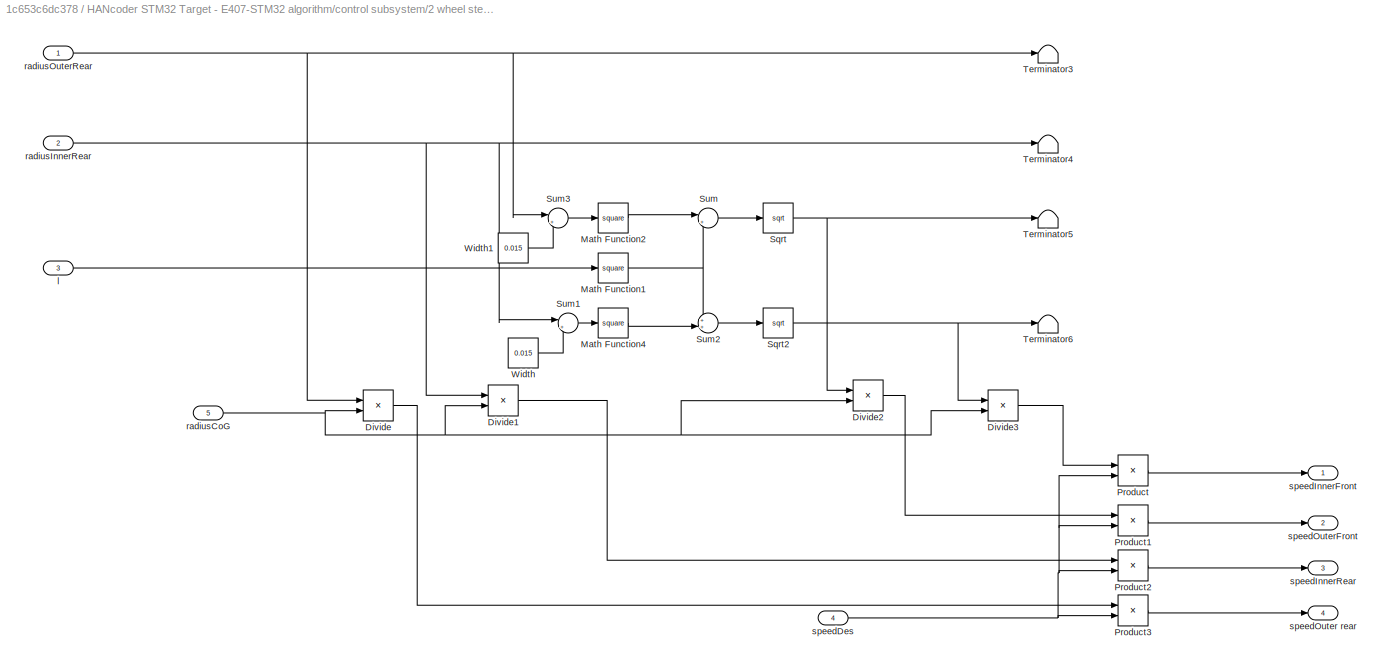
BLOCK [SubSystem] HANcoder STM32 Target - E407-STM32 algorithm/control subsystem/2 wheel steering/SpeedAngleCalculator1/Speed calculator
  Ports = [5, 4]
  RequestExecContextInheritance = off
BLOCK [Product] HANcoder STM32 Target - E407-STM32 algorithm/control subsystem/2 wheel steering/SpeedAngleCalculator1/Speed calculator/Divide
  InputSameDT = off
  Inputs = */
  OutDataTypeStr = Inherit: Inherit via internal rule
  Ports = [2, 1]
  RndMeth = Floor
  SaturateOnIntegerOverflow = off
BLOCK [Product] HANcoder STM32 Target - E407-STM32 algorithm/control subsystem/2 wheel steering/SpeedAngleCalculator1/Speed calculator/Divide1
  InputSameDT = off
  Inputs = */
  OutDataTypeStr = Inherit: Inherit via internal rule
  Ports = [2, 1]
  RndMeth = Floor
  SaturateOnIntegerOverflow = off
BLOCK [Product] HANcoder STM32 Target - E407-STM32 algorithm/control subsystem/2 wheel steering/SpeedAngleCalculator1/Speed calculator/Divide2
  InputSameDT = off
  Inputs = */
  OutDataTypeStr = Inherit: Inherit via internal rule
  Ports = [2, 1]
  RndMeth = Floor
  SaturateOnIntegerOverflow = off
BLOCK [Product] HANcoder STM32 Target - E407-STM32 algorithm/control subsystem/2 wheel steering/SpeedAngleCalculator1/Speed calculator/Divide3
  InputSameDT = off
  Inputs = */
  OutDataTypeStr = Inherit: Inherit via internal rule
  Ports = [2, 1]
  RndMeth = Floor
  SaturateOnIntegerOverflow = off
BLOCK [Math] HANcoder STM32 Target - E407-STM32 algorithm/control subsystem/2 wheel steering/SpeedAngleCalculator1/Speed calculator/Math Function1
  Operator = square
  Ports = [1, 1]
BLOCK [Math] HANcoder STM32 Target - E407-STM32 algorithm/control subsystem/2 wheel steering/SpeedAngleCalculator1/Speed calculator/Math Function2
  Operator = square
  Ports = [1, 1]
BLOCK [Math] HANcoder STM32 Target - E407-STM32 algorithm/control subsystem/2 wheel steering/SpeedAngleCalculator1/Speed calculator/Math Function4
  Operator = square
  Ports = [1, 1]
BLOCK [Product] HANcoder STM32 Target - E407-STM32 algorithm/control subsystem/2 wheel steering/SpeedAngleCalculator1/Speed calculator/Product
  InputSameDT = off
  OutDataTypeStr = Inherit: Inherit via internal rule
  Ports = [2, 1]
  RndMeth = Floor
  SaturateOnIntegerOverflow = off
BLOCK [Product] HANcoder STM32 Target - E407-STM32 algorithm/control subsystem/2 wheel steering/SpeedAngleCalculator1/Speed calculator/Product1
  InputSameDT = off
  OutDataTypeStr = Inherit: Inherit via internal rule
  Ports = [2, 1]
  RndMeth = Floor
  SaturateOnIntegerOverflow = off
BLOCK [Product] HANcoder STM32 Target - E407-STM32 algorithm/control subsystem/2 wheel steering/SpeedAngleCalculator1/Speed calculator/Product2
  InputSameDT = off
  OutDataTypeStr = Inherit: Inherit via internal rule
  Ports = [2, 1]
  RndMeth = Floor
  SaturateOnIntegerOverflow = off
BLOCK [Product] HANcoder STM32 Target - E407-STM32 algorithm/control subsystem/2 wheel steering/SpeedAngleCalculator1/Speed calculator/Product3
  InputSameDT = off
  OutDataTypeStr = Inherit: Inherit via internal rule
  Ports = [2, 1]
  RndMeth = Floor
  SaturateOnIntegerOverflow = off
BLOCK [Sqrt] HANcoder STM32 Target - E407-STM32 algorithm/control subsystem/2 wheel steering/SpeedAngleCalculator1/Speed calculator/Sqrt
BLOCK [Sqrt] HANcoder STM32 Target - E407-STM32 algorithm/control subsystem/2 wheel steering/SpeedAngleCalculator1/Speed calculator/Sqrt2
BLOCK [Sum] HANcoder STM32 Target - E407-STM32 algorithm/control subsystem/2 wheel steering/SpeedAngleCalculator1/Speed calculator/Sum
  IconShape = round
  InputSameDT = off
  Inputs = |++
  OutDataTypeStr = Inherit: Inherit via internal rule
  Ports = [2, 1]
  SaturateOnIntegerOverflow = off
BLOCK [Sum] HANcoder STM32 Target - E407-STM32 algorithm/control subsystem/2 wheel steering/SpeedAngleCalculator1/Speed calculator/Sum1
  IconShape = round
  InputSameDT = off
  Inputs = |++
  OutDataTypeStr = Inherit: Inherit via internal rule
  Ports = [2, 1]
  SaturateOnIntegerOverflow = off
BLOCK [Sum] HANcoder STM32 Target - E407-STM32 algorithm/control subsystem/2 wheel steering/SpeedAngleCalculator1/Speed calculator/Sum2
  IconShape = round
  InputSameDT = off
  Inputs = ++|
  OutDataTypeStr = Inherit: Inherit via internal rule
  Ports = [2, 1]
  SaturateOnIntegerOverflow = off
BLOCK [Sum] HANcoder STM32 Target - E407-STM32 algorithm/control subsystem/2 wheel steering/SpeedAngleCalculator1/Speed calculator/Sum3
  IconShape = round
  InputSameDT = off
  Inputs = |++
  OutDataTypeStr = Inherit: Inherit via internal rule
  Ports = [2, 1]
  SaturateOnIntegerOverflow = off
BLOCK [Terminator] HANcoder STM32 Target - E407-STM32 algorithm/control subsystem/2 wheel steering/SpeedAngleCalculator1/Speed calculator/Terminator3
BLOCK [Terminator] HANcoder STM32 Target - E407-STM32 algorithm/control subsystem/2 wheel steering/SpeedAngleCalculator1/Speed calculator/Terminator4
BLOCK [Terminator] HANcoder STM32 Target - E407-STM32 algorithm/control subsystem/2 wheel steering/SpeedAngleCalculator1/Speed calculator/Terminator5
BLOCK [Terminator] HANcoder STM32 Target - E407-STM32 algorithm/control subsystem/2 wheel steering/SpeedAngleCalculator1/Speed calculator/Terminator6
BLOCK [Constant] HANcoder STM32 Target - E407-STM32 algorithm/control subsystem/2 wheel steering/SpeedAngleCalculator1/Speed calculator/Width
  Value = 0.015
BLOCK [Constant] HANcoder STM32 Target - E407-STM32 algorithm/control subsystem/2 wheel steering/SpeedAngleCalculator1/Speed calculator/Width1
  Value = 0.015
BLOCK [Inport] HANcoder STM32 Target - E407-STM32 algorithm/control subsystem/2 wheel steering/SpeedAngleCalculator1/Speed calculator/l
  IconDisplay = Port number
  Port = 3
BLOCK [Inport] HANcoder STM32 Target - E407-STM32 algorithm/control subsystem/2 wheel steering/SpeedAngleCalculator1/Speed calculator/radiusCoG
  IconDisplay = Port number
  Port = 5
BLOCK [Inport] HANcoder STM32 Target - E407-STM32 algorithm/control subsystem/2 wheel steering/SpeedAngleCalculator1/Speed calculator/radiusInnerRear
  IconDisplay = Port number
  Port = 2
BLOCK [Inport] HANcoder STM32 Target - E407-STM32 algorithm/control subsystem/2 wheel steering/SpeedAngleCalculator1/Speed calculator/radiusOuterRear
  IconDisplay = Port number
BLOCK [Inport] HANcoder STM32 Target - E407-STM32 algorithm/control subsystem/2 wheel steering/SpeedAngleCalculator1/Speed calculator/speedDes
  IconDisplay = Port number
  Port = 4
BLOCK [Outport] HANcoder STM32 Target - E407-STM32 algorithm/control subsystem/2 wheel steering/SpeedAngleCalculator1/Speed calculator/speedInnerFront
  IconDisplay = Port number
BLOCK [Outport] HANcoder STM32 Target - E407-STM32 algorithm/control subsystem/2 wheel steering/SpeedAngleCalculator1/Speed calculator/speedInnerRear
  IconDisplay = Port number
  Port = 3
BLOCK [Outport] HANcoder STM32 Target - E407-STM32 algorithm/control subsystem/2 wheel steering/SpeedAngleCalculator1/Speed calculator/speedOuter rear
  IconDisplay = Port number
  Port = 4
BLOCK [Outport] HANcoder STM32 Target - E407-STM32 algorithm/control subsystem/2 wheel steering/SpeedAngleCalculator1/Speed calculator/speedOuterFront
  IconDisplay = Port number
  Port = 2
BLOCK [SubSystem] HANcoder STM32 Target - E407-STM32 algorithm/control subsystem/2 wheel steering/SpeedAngleCalculator1/Steerangle calculator
  Ports = [3, 5]
  RequestExecContextInheritance = off
BLOCK [Reference] HANcoder STM32 Target - E407-STM32 algorithm/control subsystem/2 wheel steering/SpeedAngleCalculator1/Steerangle calculator/Degrees to Radians  REF=simulink_extras/Transformations/Degrees to
Radians
  Ports = [1, 1]
  SourceBlock = simulink_extras/Transformations/Degrees to\nRadians
  SourceProductBaseCode = SL
  SourceProductName = Simulink
  SourceType = DegreesToRadians
BLOCK [Fcn] HANcoder STM32 Target - E407-STM32 algorithm/control subsystem/2 wheel steering/SpeedAngleCalculator1/Steerangle calculator/Fcn
  Expr = sin(u)
BLOCK [Fcn] HANcoder STM32 Target - E407-STM32 algorithm/control subsystem/2 wheel steering/SpeedAngleCalculator1/Steerangle calculator/Fcn1
  Expr = 1.5707-atan(u)
BLOCK [Fcn] HANcoder STM32 Target - E407-STM32 algorithm/control subsystem/2 wheel steering/SpeedAngleCalculator1/Steerangle calculator/Fcn2
  Expr = 1.5707-atan(u)
BLOCK [Gain] HANcoder STM32 Target - E407-STM32 algorithm/control subsystem/2 wheel steering/SpeedAngleCalculator1/Steerangle calculator/Gain1
  Gain = 0.5
  OutDataTypeStr = Inherit: Inherit via internal rule
  ParamDataTypeStr = Inherit: Inherit via internal rule
  SaturateOnIntegerOverflow = off
BLOCK [Gain] HANcoder STM32 Target - E407-STM32 algorithm/control subsystem/2 wheel steering/SpeedAngleCalculator1/Steerangle calculator/Gain3
  Gain = 0.5
  OutDataTypeStr = Inherit: Inherit via internal rule
  ParamDataTypeStr = Inherit: Inherit via internal rule
  SaturateOnIntegerOverflow = off
BLOCK [Math] HANcoder STM32 Target - E407-STM32 algorithm/control subsystem/2 wheel steering/SpeedAngleCalculator1/Steerangle calculator/Math Function
  Operator = square
  Ports = [1, 1]
BLOCK [Math] HANcoder STM32 Target - E407-STM32 algorithm/control subsystem/2 wheel steering/SpeedAngleCalculator1/Steerangle calculator/Math Function1
  Operator = square
  Ports = [1, 1]
BLOCK [Product] HANcoder STM32 Target - E407-STM32 algorithm/control subsystem/2 wheel steering/SpeedAngleCalculator1/Steerangle calculator/Product1
  InputSameDT = off
  Inputs = */
  OutDataTypeStr = Inherit: Inherit via internal rule
  Ports = [2, 1]
  RndMeth = Floor
  SaturateOnIntegerOverflow = off
BLOCK [Product] HANcoder STM32 Target - E407-STM32 algorithm/control subsystem/2 wheel steering/SpeedAngleCalculator1/Steerangle calculator/Product2
  InputSameDT = off
  Inputs = */
  OutDataTypeStr = Inherit: Inherit via internal rule
  Ports = [2, 1]
  RndMeth = Floor
  SaturateOnIntegerOverflow = off
BLOCK [Product] HANcoder STM32 Target - E407-STM32 algorithm/control subsystem/2 wheel steering/SpeedAngleCalculator1/Steerangle calculator/Product3
  InputSameDT = off
  Inputs = */
  OutDataTypeStr = Inherit: Inherit via internal rule
  Ports = [2, 1]
  RndMeth = Floor
  SaturateOnIntegerOverflow = off
BLOCK [Reference] HANcoder STM32 Target - E407-STM32 algorithm/control subsystem/2 wheel steering/SpeedAngleCalculator1/Steerangle calculator/Radians to Degrees  REF=simulink_extras/Transformations/Radians
to Degrees
  Ports = [1, 1]
  SourceBlock = simulink_extras/Transformations/Radians\nto Degrees
  SourceProductBaseCode = SL
  SourceProductName = Simulink
  SourceType = RadiansToDegrees
BLOCK [Reference] HANcoder STM32 Target - E407-STM32 algorithm/control subsystem/2 wheel steering/SpeedAngleCalculator1/Steerangle calculator/Radians to Degrees1  REF=simulink_extras/Transformations/Radians
to Degrees
  Ports = [1, 1]
  SourceBlock = simulink_extras/Transformations/Radians\nto Degrees
  SourceProductBaseCode = SL
  SourceProductName = Simulink
  SourceType = RadiansToDegrees
BLOCK [Sqrt] HANcoder STM32 Target - E407-STM32 algorithm/control subsystem/2 wheel steering/SpeedAngleCalculator1/Steerangle calculator/Sqrt1
BLOCK [Sum] HANcoder STM32 Target - E407-STM32 algorithm/control subsystem/2 wheel steering/SpeedAngleCalculator1/Steerangle calculator/Sum
  IconShape = round
  InputSameDT = off
  Inputs = |++
  OutDataTypeStr = Inherit: Inherit via internal rule
  Ports = [2, 1]
  SaturateOnIntegerOverflow = off
BLOCK [Sum] HANcoder STM32 Target - E407-STM32 algorithm/control subsystem/2 wheel steering/SpeedAngleCalculator1/Steerangle calculator/Sum1
  IconShape = round
  InputSameDT = off
  Inputs = |+-
  OutDataTypeStr = Inherit: Inherit via internal rule
  Ports = [2, 1]
  SaturateOnIntegerOverflow = off
BLOCK [Sum] HANcoder STM32 Target - E407-STM32 algorithm/control subsystem/2 wheel steering/SpeedAngleCalculator1/Steerangle calculator/Sum2
  IconShape = round
  InputSameDT = off
  Inputs = |+-
  OutDataTypeStr = Inherit: Inherit via internal rule
  Ports = [2, 1]
  SaturateOnIntegerOverflow = off
BLOCK [Outport] HANcoder STM32 Target - E407-STM32 algorithm/control subsystem/2 wheel steering/SpeedAngleCalculator1/Steerangle calculator/alphaInner
  IconDisplay = Port number
  Port = 2
BLOCK [Outport] HANcoder STM32 Target - E407-STM32 algorithm/control subsystem/2 wheel steering/SpeedAngleCalculator1/Steerangle calculator/alphaOuter
  IconDisplay = Port number
BLOCK [Inport] HANcoder STM32 Target - E407-STM32 algorithm/control subsystem/2 wheel steering/SpeedAngleCalculator1/Steerangle calculator/angleDes
  IconDisplay = Port number
BLOCK [Inport] HANcoder STM32 Target - E407-STM32 algorithm/control subsystem/2 wheel steering/SpeedAngleCalculator1/Steerangle calculator/b
  IconDisplay = Port number
  Port = 3
BLOCK [Inport] HANcoder STM32 Target - E407-STM32 algorithm/control subsystem/2 wheel steering/SpeedAngleCalculator1/Steerangle calculator/l
  IconDisplay = Port number
  Port = 2
BLOCK [Outport] HANcoder STM32 Target - E407-STM32 algorithm/control subsystem/2 wheel steering/SpeedAngleCalculator1/Steerangle calculator/radiusCoG
  IconDisplay = Port number
  Port = 5
BLOCK [Outport] HANcoder STM32 Target - E407-STM32 algorithm/control subsystem/2 wheel steering/SpeedAngleCalculator1/Steerangle calculator/radiusInnerRear
  IconDisplay = Port number
  Port = 4
BLOCK [Outport] HANcoder STM32 Target - E407-STM32 algorithm/control subsystem/2 wheel steering/SpeedAngleCalculator1/Steerangle calculator/radiusOuterRear
  IconDisplay = Port number
  Port = 3
BLOCK [Outport] HANcoder STM32 Target - E407-STM32 algorithm/control subsystem/2 wheel steering/SpeedAngleCalculator1/alphaInnerWheel
  IconDisplay = Port number
  Port = 2
BLOCK [Outport] HANcoder STM32 Target - E407-STM32 algorithm/control subsystem/2 wheel steering/SpeedAngleCalculator1/alphaOuterWheel
  IconDisplay = Port number
BLOCK [Inport] HANcoder STM32 Target - E407-STM32 algorithm/control subsystem/2 wheel steering/SpeedAngleCalculator1/angleDes
  IconDisplay = Port number
BLOCK [Inport] HANcoder STM32 Target - E407-STM32 algorithm/control subsystem/2 wheel steering/SpeedAngleCalculator1/b
  IconDisplay = Port number
  Port = 2
BLOCK [Inport] HANcoder STM32 Target - E407-STM32 algorithm/control subsystem/2 wheel steering/SpeedAngleCalculator1/l
  IconDisplay = Port number
  Port = 3
BLOCK [Inport] HANcoder STM32 Target - E407-STM32 algorithm/control subsystem/2 wheel steering/SpeedAngleCalculator1/speed
  IconDisplay = Port number
  Port = 4
BLOCK [Outport] HANcoder STM32 Target - E407-STM32 algorithm/control subsystem/2 wheel steering/SpeedAngleCalculator1/speedInnerFront
  IconDisplay = Port number
  Port = 3
BLOCK [Outport] HANcoder STM32 Target - E407-STM32 algorithm/control subsystem/2 wheel steering/SpeedAngleCalculator1/speedInnerRear
  IconDisplay = Port number
  Port = 5
BLOCK [Outport] HANcoder STM32 Target - E407-STM32 algorithm/control subsystem/2 wheel steering/SpeedAngleCalculator1/speedOuterFront
  IconDisplay = Port number
  Port = 4
BLOCK [Outport] HANcoder STM32 Target - E407-STM32 algorithm/control subsystem/2 wheel steering/SpeedAngleCalculator1/speedOuterRear
  IconDisplay = Port number
  Port = 6
BLOCK [Switch] HANcoder STM32 Target - E407-STM32 algorithm/control subsystem/2 wheel steering/Switch
  Criteria = u2 ~= 0
  InputSameDT = off
  SaturateOnIntegerOverflow = off
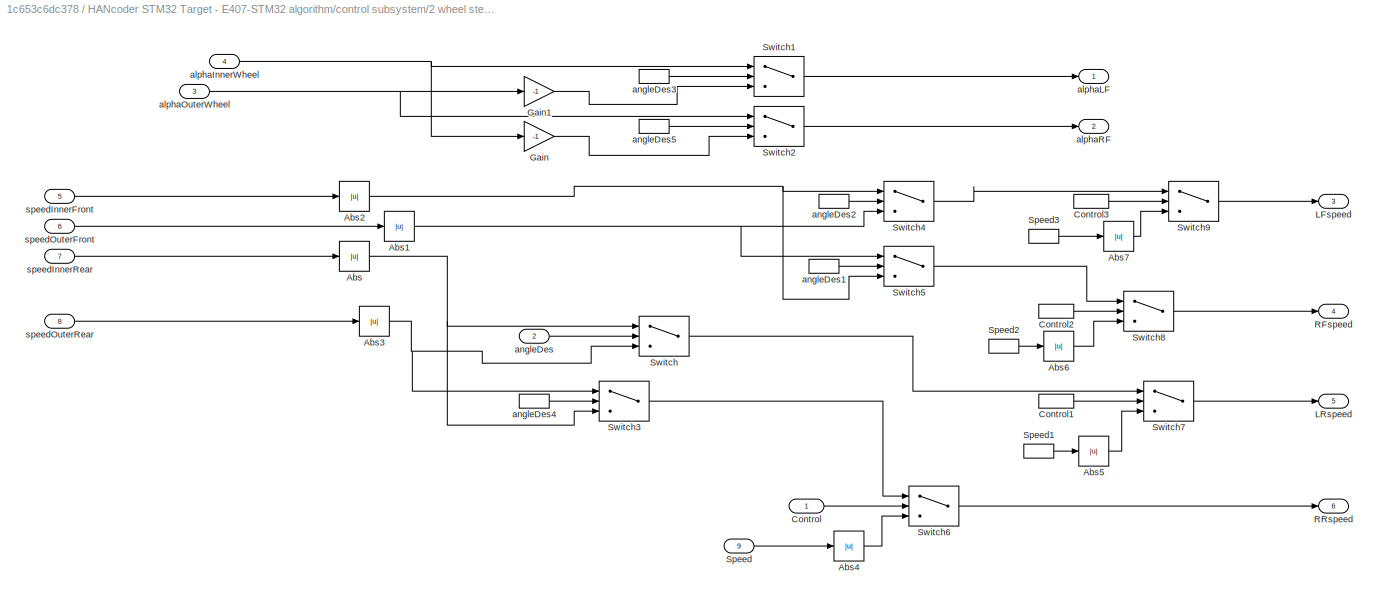
BLOCK [SubSystem] HANcoder STM32 Target - E407-STM32 algorithm/control subsystem/2 wheel steering/Switch to the right wheel 
  Ports = [9, 6]
  RequestExecContextInheritance = off
BLOCK [Abs] HANcoder STM32 Target - E407-STM32 algorithm/control subsystem/2 wheel steering/Switch to the right wheel /Abs
  SaturateOnIntegerOverflow = off
BLOCK [Abs] HANcoder STM32 Target - E407-STM32 algorithm/control subsystem/2 wheel steering/Switch to the right wheel /Abs1
  SaturateOnIntegerOverflow = off
BLOCK [Abs] HANcoder STM32 Target - E407-STM32 algorithm/control subsystem/2 wheel steering/Switch to the right wheel /Abs2
  SaturateOnIntegerOverflow = off
BLOCK [Abs] HANcoder STM32 Target - E407-STM32 algorithm/control subsystem/2 wheel steering/Switch to the right wheel /Abs3
  SaturateOnIntegerOverflow = off
BLOCK [Abs] HANcoder STM32 Target - E407-STM32 algorithm/control subsystem/2 wheel steering/Switch to the right wheel /Abs4
  SaturateOnIntegerOverflow = off
BLOCK [Abs] HANcoder STM32 Target - E407-STM32 algorithm/control subsystem/2 wheel steering/Switch to the right wheel /Abs5
  SaturateOnIntegerOverflow = off
BLOCK [Abs] HANcoder STM32 Target - E407-STM32 algorithm/control subsystem/2 wheel steering/Switch to the right wheel /Abs6
  SaturateOnIntegerOverflow = off
BLOCK [Abs] HANcoder STM32 Target - E407-STM32 algorithm/control subsystem/2 wheel steering/Switch to the right wheel /Abs7
  SaturateOnIntegerOverflow = off
BLOCK [Inport] HANcoder STM32 Target - E407-STM32 algorithm/control subsystem/2 wheel steering/Switch to the right wheel /Control
  IconDisplay = Port number
BLOCK [InportShadow] HANcoder STM32 Target - E407-STM32 algorithm/control subsystem/2 wheel steering/Switch to the right wheel /Control1
  IconDisplay = Port number
BLOCK [InportShadow] HANcoder STM32 Target - E407-STM32 algorithm/control subsystem/2 wheel steering/Switch to the right wheel /Control2
  IconDisplay = Port number
BLOCK [InportShadow] HANcoder STM32 Target - E407-STM32 algorithm/control subsystem/2 wheel steering/Switch to the right wheel /Control3
  IconDisplay = Port number
BLOCK [Gain] HANcoder STM32 Target - E407-STM32 algorithm/control subsystem/2 wheel steering/Switch to the right wheel /Gain
  Gain = -1
  OutDataTypeStr = Inherit: Inherit via internal rule
  ParamDataTypeStr = Inherit: Inherit via internal rule
  SaturateOnIntegerOverflow = off
BLOCK [Gain] HANcoder STM32 Target - E407-STM32 algorithm/control subsystem/2 wheel steering/Switch to the right wheel /Gain1
  Gain = -1
  OutDataTypeStr = Inherit: Inherit via internal rule
  ParamDataTypeStr = Inherit: Inherit via internal rule
  SaturateOnIntegerOverflow = off
BLOCK [Outport] HANcoder STM32 Target - E407-STM32 algorithm/control subsystem/2 wheel steering/Switch to the right wheel /LFspeed
  IconDisplay = Port number
  Port = 3
BLOCK [Outport] HANcoder STM32 Target - E407-STM32 algorithm/control subsystem/2 wheel steering/Switch to the right wheel /LRspeed
  IconDisplay = Port number
  Port = 5
BLOCK [Outport] HANcoder STM32 Target - E407-STM32 algorithm/control subsystem/2 wheel steering/Switch to the right wheel /RFspeed
  IconDisplay = Port number
  Port = 4
BLOCK [Outport] HANcoder STM32 Target - E407-STM32 algorithm/control subsystem/2 wheel steering/Switch to the right wheel /RRspeed
  IconDisplay = Port number
  Port = 6
BLOCK [Inport] HANcoder STM32 Target - E407-STM32 algorithm/control subsystem/2 wheel steering/Switch to the right wheel /Speed
  IconDisplay = Port number
  Port = 9
BLOCK [InportShadow] HANcoder STM32 Target - E407-STM32 algorithm/control subsystem/2 wheel steering/Switch to the right wheel /Speed1
  IconDisplay = Port number
  Port = 9
BLOCK [InportShadow] HANcoder STM32 Target - E407-STM32 algorithm/control subsystem/2 wheel steering/Switch to the right wheel /Speed2
  IconDisplay = Port number
  Port = 9
BLOCK [InportShadow] HANcoder STM32 Target - E407-STM32 algorithm/control subsystem/2 wheel steering/Switch to the right wheel /Speed3
  IconDisplay = Port number
  Port = 9
BLOCK [Switch] HANcoder STM32 Target - E407-STM32 algorithm/control subsystem/2 wheel steering/Switch to the right wheel /Switch
  Criteria = u2 > Threshold
  InputSameDT = off
  SaturateOnIntegerOverflow = off
BLOCK [Switch] HANcoder STM32 Target - E407-STM32 algorithm/control subsystem/2 wheel steering/Switch to the right wheel /Switch1
  Criteria = u2 > Threshold
  InputSameDT = off
  SaturateOnIntegerOverflow = off
BLOCK [Switch] HANcoder STM32 Target - E407-STM32 algorithm/control subsystem/2 wheel steering/Switch to the right wheel /Switch2
  Criteria = u2 > Threshold
  InputSameDT = off
  SaturateOnIntegerOverflow = off
BLOCK [Switch] HANcoder STM32 Target - E407-STM32 algorithm/control subsystem/2 wheel steering/Switch to the right wheel /Switch3
  Criteria = u2 > Threshold
  InputSameDT = off
  SaturateOnIntegerOverflow = off
BLOCK [Switch] HANcoder STM32 Target - E407-STM32 algorithm/control subsystem/2 wheel steering/Switch to the right wheel /Switch4
  Criteria = u2 > Threshold
  InputSameDT = off
  SaturateOnIntegerOverflow = off
BLOCK [Switch] HANcoder STM32 Target - E407-STM32 algorithm/control subsystem/2 wheel steering/Switch to the right wheel /Switch5
  Criteria = u2 > Threshold
  InputSameDT = off
  SaturateOnIntegerOverflow = off
BLOCK [Switch] HANcoder STM32 Target - E407-STM32 algorithm/control subsystem/2 wheel steering/Switch to the right wheel /Switch6
  Criteria = u2 > Threshold
  InputSameDT = off
  SaturateOnIntegerOverflow = off
BLOCK [Switch] HANcoder STM32 Target - E407-STM32 algorithm/control subsystem/2 wheel steering/Switch to the right wheel /Switch7
  Criteria = u2 > Threshold
  InputSameDT = off
  SaturateOnIntegerOverflow = off
BLOCK [Switch] HANcoder STM32 Target - E407-STM32 algorithm/control subsystem/2 wheel steering/Switch to the right wheel /Switch8
  Criteria = u2 > Threshold
  InputSameDT = off
  SaturateOnIntegerOverflow = off
BLOCK [Switch] HANcoder STM32 Target - E407-STM32 algorithm/control subsystem/2 wheel steering/Switch to the right wheel /Switch9
  Criteria = u2 > Threshold
  InputSameDT = off
  SaturateOnIntegerOverflow = off
BLOCK [Inport] HANcoder STM32 Target - E407-STM32 algorithm/control subsystem/2 wheel steering/Switch to the right wheel /alphaInnerWheel
  IconDisplay = Port number
  Port = 4
BLOCK [Outport] HANcoder STM32 Target - E407-STM32 algorithm/control subsystem/2 wheel steering/Switch to the right wheel /alphaLF
  IconDisplay = Port number
BLOCK [Inport] HANcoder STM32 Target - E407-STM32 algorithm/control subsystem/2 wheel steering/Switch to the right wheel /alphaOuterWheel
  IconDisplay = Port number
  Port = 3
BLOCK [Outport] HANcoder STM32 Target - E407-STM32 algorithm/control subsystem/2 wheel steering/Switch to the right wheel /alphaRF
  IconDisplay = Port number
  Port = 2
BLOCK [Inport] HANcoder STM32 Target - E407-STM32 algorithm/control subsystem/2 wheel steering/Switch to the right wheel /angleDes
  IconDisplay = Port number
  Port = 2
BLOCK [InportShadow] HANcoder STM32 Target - E407-STM32 algorithm/control subsystem/2 wheel steering/Switch to the right wheel /angleDes1
  IconDisplay = Port number
  Port = 2
BLOCK [InportShadow] HANcoder STM32 Target - E407-STM32 algorithm/control subsystem/2 wheel steering/Switch to the right wheel /angleDes2
  IconDisplay = Port number
  Port = 2
BLOCK [InportShadow] HANcoder STM32 Target - E407-STM32 algorithm/control subsystem/2 wheel steering/Switch to the right wheel /angleDes3
  IconDisplay = Port number
  Port = 2
BLOCK [InportShadow] HANcoder STM32 Target - E407-STM32 algorithm/control subsystem/2 wheel steering/Switch to the right wheel /angleDes4
  IconDisplay = Port number
  Port = 2
BLOCK [InportShadow] HANcoder STM32 Target - E407-STM32 algorithm/control subsystem/2 wheel steering/Switch to the right wheel /angleDes5
  IconDisplay = Port number
  Port = 2
BLOCK [Inport] HANcoder STM32 Target - E407-STM32 algorithm/control subsystem/2 wheel steering/Switch to the right wheel /speedInnerFront
  IconDisplay = Port number
  Port = 5
BLOCK [Inport] HANcoder STM32 Target - E407-STM32 algorithm/control subsystem/2 wheel steering/Switch to the right wheel /speedInnerRear
  IconDisplay = Port number
  Port = 7
BLOCK [Inport] HANcoder STM32 Target - E407-STM32 algorithm/control subsystem/2 wheel steering/Switch to the right wheel /speedOuterFront
  IconDisplay = Port number
  Port = 6
BLOCK [Inport] HANcoder STM32 Target - E407-STM32 algorithm/control subsystem/2 wheel steering/Switch to the right wheel /speedOuterRear
  IconDisplay = Port number
  Port = 8
BLOCK [Switch] HANcoder STM32 Target - E407-STM32 algorithm/control subsystem/2 wheel steering/Switch1
  Criteria = u2 ~= 0
  InputSameDT = off
  SaturateOnIntegerOverflow = off
BLOCK [Constant] HANcoder STM32 Target - E407-STM32 algorithm/control subsystem/2 wheel steering/Width
  Value = 0.14
BLOCK [Inport] HANcoder STM32 Target - E407-STM32 algorithm/control subsystem/2 wheel steering/angleDes
  IconDisplay = Port number
BLOCK [Inport] HANcoder STM32 Target - E407-STM32 algorithm/control subsystem/2 wheel steering/speed
  IconDisplay = Port number
  Port = 2
BLOCK [Outport] HANcoder STM32 Target - E407-STM32 algorithm/control subsystem/2 wheel steering/speed LF
  IconDisplay = Port number
  Port = 2
BLOCK [Outport] HANcoder STM32 Target - E407-STM32 algorithm/control subsystem/2 wheel steering/speed LR
  IconDisplay = Port number
  Port = 8
BLOCK [Outport] HANcoder STM32 Target - E407-STM32 algorithm/control subsystem/2 wheel steering/speed RF
  IconDisplay = Port number
  Port = 3
BLOCK [Outport] HANcoder STM32 Target - E407-STM32 algorithm/control subsystem/2 wheel steering/speed RR
  IconDisplay = Port number
  Port = 5
BLOCK [Outport] HANcoder STM32 Target - E407-STM32 algorithm/control subsystem/2 wheel steering/steering LF
  IconDisplay = Port number
BLOCK [Outport] HANcoder STM32 Target - E407-STM32 algorithm/control subsystem/2 wheel steering/steering LR
  IconDisplay = Port number
  Port = 7
BLOCK [Outport] HANcoder STM32 Target - E407-STM32 algorithm/control subsystem/2 wheel steering/steering RF
  IconDisplay = Port number
  Port = 4
BLOCK [Outport] HANcoder STM32 Target - E407-STM32 algorithm/control subsystem/2 wheel steering/steering RR
  IconDisplay = Port number
  Port = 6
BLOCK [Constant] HANcoder STM32 Target - E407-STM32 algorithm/control subsystem/2 wheel steering/steering angle 
  Value = 0
BLOCK [Constant] HANcoder STM32 Target - E407-STM32 algorithm/control subsystem/2 wheel steering/steering angle 1
  Value = 0
BLOCK [SubSystem] HANcoder STM32 Target - E407-STM32 algorithm/control subsystem/4 wheel steering
  Ports = [2, 8]
  RequestExecContextInheritance = off
BLOCK [SubSystem] HANcoder STM32 Target - E407-STM32 algorithm/control subsystem/4 wheel steering/Control
  Ports = [1, 1]
  RequestExecContextInheritance = off
BLOCK [Outport] HANcoder STM32 Target - E407-STM32 algorithm/control subsystem/4 wheel steering/Control/Control
  IconDisplay = Port number
BLOCK [Constant] HANcoder STM32 Target - E407-STM32 algorithm/control subsystem/4 wheel steering/Control/ControlValue
  Value = 0
BLOCK [Logic] HANcoder STM32 Target - E407-STM32 algorithm/control subsystem/4 wheel steering/Control/Logical Operator
  AllPortsSameDT = off
  Operator = OR
  OutDataTypeStr = boolean
  Ports = [2, 1]
BLOCK [Inport] HANcoder STM32 Target - E407-STM32 algorithm/control subsystem/4 wheel steering/Control/angleDes
  IconDisplay = Port number
BLOCK [SubSystem] HANcoder STM32 Target - E407-STM32 algorithm/control subsystem/4 wheel steering/Subsystem1
  Ports = [4, 4, 1]
  RequestExecContextInheritance = off
BLOCK [Outport] HANcoder STM32 Target - E407-STM32 algorithm/control subsystem/4 wheel steering/Subsystem1/AlphaInner
  IconDisplay = Port number
  Port = 4
BLOCK [Outport] HANcoder STM32 Target - E407-STM32 algorithm/control subsystem/4 wheel steering/Subsystem1/AlphaOuter
  IconDisplay = Port number
  Port = 3
BLOCK [SubSystem] HANcoder STM32 Target - E407-STM32 algorithm/control subsystem/4 wheel steering/Subsystem1/Angle inner wheels
  Ports = [3, 1]
  RequestExecContextInheritance = off
BLOCK [Outport] HANcoder STM32 Target - E407-STM32 algorithm/control subsystem/4 wheel steering/Subsystem1/Angle inner wheels/AlphaInner
  IconDisplay = Port number
BLOCK [Fcn] HANcoder STM32 Target - E407-STM32 algorithm/control subsystem/4 wheel steering/Subsystem1/Angle inner wheels/Fcn1
  Expr = atan(u)
BLOCK [Gain] HANcoder STM32 Target - E407-STM32 algorithm/control subsystem/4 wheel steering/Subsystem1/Angle inner wheels/Gain1
  Gain = 1/2
  OutDataTypeStr = Inherit: Inherit via internal rule
  ParamDataTypeStr = Inherit: Inherit via internal rule
  SaturateOnIntegerOverflow = off
BLOCK [Gain] HANcoder STM32 Target - E407-STM32 algorithm/control subsystem/4 wheel steering/Subsystem1/Angle inner wheels/Gain2
  Gain = 1/2
  OutDataTypeStr = Inherit: Inherit via internal rule
  ParamDataTypeStr = Inherit: Inherit via internal rule
  SaturateOnIntegerOverflow = off
BLOCK [Product] HANcoder STM32 Target - E407-STM32 algorithm/control subsystem/4 wheel steering/Subsystem1/Angle inner wheels/Product1
  InputSameDT = off
  Inputs = */
  OutDataTypeStr = Inherit: Inherit via internal rule
  Ports = [2, 1]
  RndMeth = Floor
  SaturateOnIntegerOverflow = off
BLOCK [Reference] HANcoder STM32 Target - E407-STM32 algorithm/control subsystem/4 wheel steering/Subsystem1/Angle inner wheels/Radians to Degrees1  REF=simulink_extras/Transformations/Radians
to Degrees
  Ports = [1, 1]
  SourceBlock = simulink_extras/Transformations/Radians\nto Degrees
  SourceProductBaseCode = SL
  SourceProductName = Simulink
  SourceType = RadiansToDegrees
BLOCK [Inport] HANcoder STM32 Target - E407-STM32 algorithm/control subsystem/4 wheel steering/Subsystem1/Angle inner wheels/Rzw
  IconDisplay = Port number
  Port = 2
BLOCK [Sum] HANcoder STM32 Target - E407-STM32 algorithm/control subsystem/4 wheel steering/Subsystem1/Angle inner wheels/Sum1
  IconShape = round
  InputSameDT = off
  Inputs = |+-
  OutDataTypeStr = Inherit: Inherit via internal rule
  Ports = [2, 1]
  SaturateOnIntegerOverflow = off
BLOCK [Inport] HANcoder STM32 Target - E407-STM32 algorithm/control subsystem/4 wheel steering/Subsystem1/Angle inner wheels/b
  IconDisplay = Port number
  Port = 3
BLOCK [Inport] HANcoder STM32 Target - E407-STM32 algorithm/control subsystem/4 wheel steering/Subsystem1/Angle inner wheels/l
  IconDisplay = Port number
BLOCK [SubSystem] HANcoder STM32 Target - E407-STM32 algorithm/control subsystem/4 wheel steering/Subsystem1/Angle outer wheels
  Ports = [3, 1]
  RequestExecContextInheritance = off
BLOCK [Outport] HANcoder STM32 Target - E407-STM32 algorithm/control subsystem/4 wheel steering/Subsystem1/Angle outer wheels/AlphaOuter
  IconDisplay = Port number
BLOCK [Fcn] HANcoder STM32 Target - E407-STM32 algorithm/control subsystem/4 wheel steering/Subsystem1/Angle outer wheels/Fcn
  Expr = atan(u)
BLOCK [Gain] HANcoder STM32 Target - E407-STM32 algorithm/control subsystem/4 wheel steering/Subsystem1/Angle outer wheels/Gain1
  Gain = 1/2
  OutDataTypeStr = Inherit: Inherit via internal rule
  ParamDataTypeStr = Inherit: Inherit via internal rule
  SaturateOnIntegerOverflow = off
BLOCK [Gain] HANcoder STM32 Target - E407-STM32 algorithm/control subsystem/4 wheel steering/Subsystem1/Angle outer wheels/Gain2
  Gain = 1/2
  OutDataTypeStr = Inherit: Inherit via internal rule
  ParamDataTypeStr = Inherit: Inherit via internal rule
  SaturateOnIntegerOverflow = off
BLOCK [Product] HANcoder STM32 Target - E407-STM32 algorithm/control subsystem/4 wheel steering/Subsystem1/Angle outer wheels/Product
  InputSameDT = off
  Inputs = */
  OutDataTypeStr = Inherit: Inherit via internal rule
  Ports = [2, 1]
  RndMeth = Floor
  SaturateOnIntegerOverflow = off
BLOCK [Reference] HANcoder STM32 Target - E407-STM32 algorithm/control subsystem/4 wheel steering/Subsystem1/Angle outer wheels/Radians to Degrees  REF=simulink_extras/Transformations/Radians
to Degrees
  Ports = [1, 1]
  SourceBlock = simulink_extras/Transformations/Radians\nto Degrees
  SourceProductBaseCode = SL
  SourceProductName = Simulink
  SourceType = RadiansToDegrees
BLOCK [Inport] HANcoder STM32 Target - E407-STM32 algorithm/control subsystem/4 wheel steering/Subsystem1/Angle outer wheels/Rzw
  IconDisplay = Port number
  Port = 2
BLOCK [Sum] HANcoder STM32 Target - E407-STM32 algorithm/control subsystem/4 wheel steering/Subsystem1/Angle outer wheels/Sum
  IconShape = round
  InputSameDT = off
  Inputs = |++
  OutDataTypeStr = Inherit: Inherit via internal rule
  Ports = [2, 1]
  SaturateOnIntegerOverflow = off
BLOCK [Inport] HANcoder STM32 Target - E407-STM32 algorithm/control subsystem/4 wheel steering/Subsystem1/Angle outer wheels/b
  IconDisplay = Port number
  Port = 3
BLOCK [Inport] HANcoder STM32 Target - E407-STM32 algorithm/control subsystem/4 wheel steering/Subsystem1/Angle outer wheels/l
  IconDisplay = Port number
BLOCK [SubSystem] HANcoder STM32 Target - E407-STM32 algorithm/control subsystem/4 wheel steering/Subsystem1/Angle to radius CoG
  Ports = [2, 1]
  RequestExecContextInheritance = off
BLOCK [Reference] HANcoder STM32 Target - E407-STM32 algorithm/control subsystem/4 wheel steering/Subsystem1/Angle to radius CoG/Degrees to Radians  REF=simulink_extras/Transformations/Degrees to
Radians
  Ports = [1, 1]
  SourceBlock = simulink_extras/Transformations/Degrees to\nRadians
  SourceProductBaseCode = SL
  SourceProductName = Simulink
  SourceType = DegreesToRadians
BLOCK [Fcn] HANcoder STM32 Target - E407-STM32 algorithm/control subsystem/4 wheel steering/Subsystem1/Angle to radius CoG/Fcn1
  Expr = sin(u)
BLOCK [Gain] HANcoder STM32 Target - E407-STM32 algorithm/control subsystem/4 wheel steering/Subsystem1/Angle to radius CoG/Gain1
  Gain = 1/2
  OutDataTypeStr = Inherit: Inherit via internal rule
  ParamDataTypeStr = Inherit: Inherit via internal rule
  SaturateOnIntegerOverflow = off
BLOCK [Product] HANcoder STM32 Target - E407-STM32 algorithm/control subsystem/4 wheel steering/Subsystem1/Angle to radius CoG/Product1
  InputSameDT = off
  Inputs = */
  OutDataTypeStr = Inherit: Inherit via internal rule
  Ports = [2, 1]
  RndMeth = Floor
  SaturateOnIntegerOverflow = off
BLOCK [Outport] HANcoder STM32 Target - E407-STM32 algorithm/control subsystem/4 wheel steering/Subsystem1/Angle to radius CoG/Rzw
  IconDisplay = Port number
BLOCK [Inport] HANcoder STM32 Target - E407-STM32 algorithm/control subsystem/4 wheel steering/Subsystem1/Angle to radius CoG/angleDes 
  IconDisplay = Port number
  Port = 2
BLOCK [Inport] HANcoder STM32 Target - E407-STM32 algorithm/control subsystem/4 wheel steering/Subsystem1/Angle to radius CoG/l
  IconDisplay = Port number
BLOCK [EnablePort] HANcoder STM32 Target - E407-STM32 algorithm/control subsystem/4 wheel steering/Subsystem1/Enable
  Ports = []
BLOCK [Inport] HANcoder STM32 Target - E407-STM32 algorithm/control subsystem/4 wheel steering/Subsystem1/angleDes
  IconDisplay = Port number
  Port = 2
BLOCK [Inport] HANcoder STM32 Target - E407-STM32 algorithm/control subsystem/4 wheel steering/Subsystem1/b
  IconDisplay = Port number
  Port = 3
BLOCK [Inport] HANcoder STM32 Target - E407-STM32 algorithm/control subsystem/4 wheel steering/Subsystem1/l
  IconDisplay = Port number
BLOCK [SubSystem] HANcoder STM32 Target - E407-STM32 algorithm/control subsystem/4 wheel steering/Subsystem1/radius inner wheel
  Ports = [3, 1]
  RequestExecContextInheritance = off
BLOCK [Gain] HANcoder STM32 Target - E407-STM32 algorithm/control subsystem/4 wheel steering/Subsystem1/radius inner wheel/Gain
  Gain = 1/2
  OutDataTypeStr = Inherit: Inherit via internal rule
  ParamDataTypeStr = Inherit: Inherit via internal rule
  SaturateOnIntegerOverflow = off
BLOCK [Gain] HANcoder STM32 Target - E407-STM32 algorithm/control subsystem/4 wheel steering/Subsystem1/radius inner wheel/Gain1
  Gain = 1/2
  OutDataTypeStr = Inherit: Inherit via internal rule
  ParamDataTypeStr = Inherit: Inherit via internal rule
  SaturateOnIntegerOverflow = off
BLOCK [Math] HANcoder STM32 Target - E407-STM32 algorithm/control subsystem/4 wheel steering/Subsystem1/radius inner wheel/Math Function
  Operator = square
  Ports = [1, 1]
BLOCK [Math] HANcoder STM32 Target - E407-STM32 algorithm/control subsystem/4 wheel steering/Subsystem1/radius inner wheel/Math Function1
  Operator = square
  Ports = [1, 1]
BLOCK [Inport] HANcoder STM32 Target - E407-STM32 algorithm/control subsystem/4 wheel steering/Subsystem1/radius inner wheel/Rzw
  IconDisplay = Port number
  Port = 3
BLOCK [Sqrt] HANcoder STM32 Target - E407-STM32 algorithm/control subsystem/4 wheel steering/Subsystem1/radius inner wheel/Sqrt
BLOCK [Sum] HANcoder STM32 Target - E407-STM32 algorithm/control subsystem/4 wheel steering/Subsystem1/radius inner wheel/Sum
  IconShape = round
  InputSameDT = off
  Inputs = |++
  OutDataTypeStr = Inherit: Inherit via internal rule
  Ports = [2, 1]
  SaturateOnIntegerOverflow = off
BLOCK [Sum] HANcoder STM32 Target - E407-STM32 algorithm/control subsystem/4 wheel steering/Subsystem1/radius inner wheel/Sum1
  IconShape = round
  InputSameDT = off
  Inputs = |-+
  OutDataTypeStr = Inherit: Inherit via internal rule
  Ports = [2, 1]
  SaturateOnIntegerOverflow = off
BLOCK [Inport] HANcoder STM32 Target - E407-STM32 algorithm/control subsystem/4 wheel steering/Subsystem1/radius inner wheel/b
  IconDisplay = Port number
  Port = 2
BLOCK [Inport] HANcoder STM32 Target - E407-STM32 algorithm/control subsystem/4 wheel steering/Subsystem1/radius inner wheel/l
  IconDisplay = Port number
BLOCK [Outport] HANcoder STM32 Target - E407-STM32 algorithm/control subsystem/4 wheel steering/Subsystem1/radius inner wheel/radiusInner
  IconDisplay = Port number
BLOCK [SubSystem] HANcoder STM32 Target - E407-STM32 algorithm/control subsystem/4 wheel steering/Subsystem1/radius outer wheel
  Ports = [3, 1]
  RequestExecContextInheritance = off
BLOCK [Gain] HANcoder STM32 Target - E407-STM32 algorithm/control subsystem/4 wheel steering/Subsystem1/radius outer wheel/Gain
  Gain = 1/2
  OutDataTypeStr = Inherit: Inherit via internal rule
  ParamDataTypeStr = Inherit: Inherit via internal rule
  SaturateOnIntegerOverflow = off
BLOCK [Gain] HANcoder STM32 Target - E407-STM32 algorithm/control subsystem/4 wheel steering/Subsystem1/radius outer wheel/Gain1
  Gain = 1/2
  OutDataTypeStr = Inherit: Inherit via internal rule
  ParamDataTypeStr = Inherit: Inherit via internal rule
  SaturateOnIntegerOverflow = off
BLOCK [Math] HANcoder STM32 Target - E407-STM32 algorithm/control subsystem/4 wheel steering/Subsystem1/radius outer wheel/Math Function
  Operator = square
  Ports = [1, 1]
BLOCK [Math] HANcoder STM32 Target - E407-STM32 algorithm/control subsystem/4 wheel steering/Subsystem1/radius outer wheel/Math Function1
  Operator = square
  Ports = [1, 1]
BLOCK [Inport] HANcoder STM32 Target - E407-STM32 algorithm/control subsystem/4 wheel steering/Subsystem1/radius outer wheel/Rzw
  IconDisplay = Port number
  Port = 3
BLOCK [Sqrt] HANcoder STM32 Target - E407-STM32 algorithm/control subsystem/4 wheel steering/Subsystem1/radius outer wheel/Sqrt
BLOCK [Sum] HANcoder STM32 Target - E407-STM32 algorithm/control subsystem/4 wheel steering/Subsystem1/radius outer wheel/Sum
  IconShape = round
  InputSameDT = off
  Inputs = |++
  OutDataTypeStr = Inherit: Inherit via internal rule
  Ports = [2, 1]
  SaturateOnIntegerOverflow = off
BLOCK [Sum] HANcoder STM32 Target - E407-STM32 algorithm/control subsystem/4 wheel steering/Subsystem1/radius outer wheel/Sum1
  IconShape = round
  InputSameDT = off
  Inputs = |++
  OutDataTypeStr = Inherit: Inherit via internal rule
  Ports = [2, 1]
  SaturateOnIntegerOverflow = off
BLOCK [Inport] HANcoder STM32 Target - E407-STM32 algorithm/control subsystem/4 wheel steering/Subsystem1/radius outer wheel/b
  IconDisplay = Port number
  Port = 2
BLOCK [Inport] HANcoder STM32 Target - E407-STM32 algorithm/control subsystem/4 wheel steering/Subsystem1/radius outer wheel/l
  IconDisplay = Port number
BLOCK [Outport] HANcoder STM32 Target - E407-STM32 algorithm/control subsystem/4 wheel steering/Subsystem1/radius outer wheel/radiusOuter
  IconDisplay = Port number
BLOCK [Inport] HANcoder STM32 Target - E407-STM32 algorithm/control subsystem/4 wheel steering/Subsystem1/speed
  IconDisplay = Port number
  Port = 4
BLOCK [SubSystem] HANcoder STM32 Target - E407-STM32 algorithm/control subsystem/4 wheel steering/Subsystem1/speed calculator
  Ports = [4, 2]
  RequestExecContextInheritance = off
BLOCK [Product] HANcoder STM32 Target - E407-STM32 algorithm/control subsystem/4 wheel steering/Subsystem1/speed calculator/Product
  InputSameDT = off
  Inputs = */
  OutDataTypeStr = Inherit: Inherit via internal rule
  Ports = [2, 1]
  RndMeth = Floor
  SaturateOnIntegerOverflow = off
BLOCK [Product] HANcoder STM32 Target - E407-STM32 algorithm/control subsystem/4 wheel steering/Subsystem1/speed calculator/Product1
  InputSameDT = off
  Inputs = */
  OutDataTypeStr = Inherit: Inherit via internal rule
  Ports = [2, 1]
  RndMeth = Floor
  SaturateOnIntegerOverflow = off
BLOCK [Product] HANcoder STM32 Target - E407-STM32 algorithm/control subsystem/4 wheel steering/Subsystem1/speed calculator/Product2
  InputSameDT = off
  OutDataTypeStr = Inherit: Inherit via internal rule
  Ports = [2, 1]
  RndMeth = Floor
  SaturateOnIntegerOverflow = off
BLOCK [Product] HANcoder STM32 Target - E407-STM32 algorithm/control subsystem/4 wheel steering/Subsystem1/speed calculator/Product3
  InputSameDT = off
  OutDataTypeStr = Inherit: Inherit via internal rule
  Ports = [2, 1]
  RndMeth = Floor
  SaturateOnIntegerOverflow = off
BLOCK [Inport] HANcoder STM32 Target - E407-STM32 algorithm/control subsystem/4 wheel steering/Subsystem1/speed calculator/Rzw
  IconDisplay = Port number
  Port = 2
BLOCK [Inport] HANcoder STM32 Target - E407-STM32 algorithm/control subsystem/4 wheel steering/Subsystem1/speed calculator/radiusInner
  IconDisplay = Port number
  Port = 3
BLOCK [Inport] HANcoder STM32 Target - E407-STM32 algorithm/control subsystem/4 wheel steering/Subsystem1/speed calculator/radiusOuter
  IconDisplay = Port number
BLOCK [Inport] HANcoder STM32 Target - E407-STM32 algorithm/control subsystem/4 wheel steering/Subsystem1/speed calculator/speed
  IconDisplay = Port number
  Port = 4
BLOCK [Outport] HANcoder STM32 Target - E407-STM32 algorithm/control subsystem/4 wheel steering/Subsystem1/speed calculator/speedInner
  IconDisplay = Port number
BLOCK [Outport] HANcoder STM32 Target - E407-STM32 algorithm/control subsystem/4 wheel steering/Subsystem1/speed calculator/speedOuter
  IconDisplay = Port number
  Port = 2
BLOCK [Outport] HANcoder STM32 Target - E407-STM32 algorithm/control subsystem/4 wheel steering/Subsystem1/speedInner
  IconDisplay = Port number
BLOCK [Outport] HANcoder STM32 Target - E407-STM32 algorithm/control subsystem/4 wheel steering/Subsystem1/speedOuter
  IconDisplay = Port number
  Port = 2
BLOCK [SubSystem] HANcoder STM32 Target - E407-STM32 algorithm/control subsystem/4 wheel steering/Switch to the right wheel (Don't open if you're smart)1
  Ports = [7, 8]
  RequestExecContextInheritance = off
BLOCK [Abs] HANcoder STM32 Target - E407-STM32 algorithm/control subsystem/4 wheel steering/Switch to the right wheel (Don't open if you're smart)1/Abs1
  SaturateOnIntegerOverflow = off
BLOCK [Abs] HANcoder STM32 Target - E407-STM32 algorithm/control subsystem/4 wheel steering/Switch to the right wheel (Don't open if you're smart)1/Abs2
  SaturateOnIntegerOverflow = off
BLOCK [Abs] HANcoder STM32 Target - E407-STM32 algorithm/control subsystem/4 wheel steering/Switch to the right wheel (Don't open if you're smart)1/Abs6
  SaturateOnIntegerOverflow = off
BLOCK [Abs] HANcoder STM32 Target - E407-STM32 algorithm/control subsystem/4 wheel steering/Switch to the right wheel (Don't open if you're smart)1/Abs7
  SaturateOnIntegerOverflow = off
BLOCK [Inport] HANcoder STM32 Target - E407-STM32 algorithm/control subsystem/4 wheel steering/Switch to the right wheel (Don't open if you're smart)1/Control
  IconDisplay = Port number
BLOCK [InportShadow] HANcoder STM32 Target - E407-STM32 algorithm/control subsystem/4 wheel steering/Switch to the right wheel (Don't open if you're smart)1/Control3
  IconDisplay = Port number
BLOCK [Gain] HANcoder STM32 Target - E407-STM32 algorithm/control subsystem/4 wheel steering/Switch to the right wheel (Don't open if you're smart)1/Gain2
  Gain = -1
  OutDataTypeStr = Inherit: Inherit via internal rule
  ParamDataTypeStr = Inherit: Inherit via internal rule
  SaturateOnIntegerOverflow = off
BLOCK [Gain] HANcoder STM32 Target - E407-STM32 algorithm/control subsystem/4 wheel steering/Switch to the right wheel (Don't open if you're smart)1/Gain3
  Gain = -1
  OutDataTypeStr = Inherit: Inherit via internal rule
  ParamDataTypeStr = Inherit: Inherit via internal rule
  SaturateOnIntegerOverflow = off
BLOCK [Outport] HANcoder STM32 Target - E407-STM32 algorithm/control subsystem/4 wheel steering/Switch to the right wheel (Don't open if you're smart)1/LFspeed
  IconDisplay = Port number
  Port = 5
BLOCK [Outport] HANcoder STM32 Target - E407-STM32 algorithm/control subsystem/4 wheel steering/Switch to the right wheel (Don't open if you're smart)1/LRspeed
  IconDisplay = Port number
  Port = 7
BLOCK [Outport] HANcoder STM32 Target - E407-STM32 algorithm/control subsystem/4 wheel steering/Switch to the right wheel (Don't open if you're smart)1/RFspeed
  IconDisplay = Port number
  Port = 6
BLOCK [Outport] HANcoder STM32 Target - E407-STM32 algorithm/control subsystem/4 wheel steering/Switch to the right wheel (Don't open if you're smart)1/RRspeed
  IconDisplay = Port number
  Port = 8
BLOCK [Inport] HANcoder STM32 Target - E407-STM32 algorithm/control subsystem/4 wheel steering/Switch to the right wheel (Don't open if you're smart)1/Speed
  IconDisplay = Port number
  Port = 7
BLOCK [InportShadow] HANcoder STM32 Target - E407-STM32 algorithm/control subsystem/4 wheel steering/Switch to the right wheel (Don't open if you're smart)1/Speed3
  IconDisplay = Port number
  Port = 7
BLOCK [Switch] HANcoder STM32 Target - E407-STM32 algorithm/control subsystem/4 wheel steering/Switch to the right wheel (Don't open if you're smart)1/Switch1
  Criteria = u2 > Threshold
  InputSameDT = off
  SaturateOnIntegerOverflow = off
BLOCK [Switch] HANcoder STM32 Target - E407-STM32 algorithm/control subsystem/4 wheel steering/Switch to the right wheel (Don't open if you're smart)1/Switch2
  Criteria = u2 > Threshold
  InputSameDT = off
  SaturateOnIntegerOverflow = off
BLOCK [Switch] HANcoder STM32 Target - E407-STM32 algorithm/control subsystem/4 wheel steering/Switch to the right wheel (Don't open if you're smart)1/Switch4
  Criteria = u2 > Threshold
  InputSameDT = off
  SaturateOnIntegerOverflow = off
BLOCK [Switch] HANcoder STM32 Target - E407-STM32 algorithm/control subsystem/4 wheel steering/Switch to the right wheel (Don't open if you're smart)1/Switch5
  Criteria = u2 > Threshold
  InputSameDT = off
  SaturateOnIntegerOverflow = off
BLOCK [Switch] HANcoder STM32 Target - E407-STM32 algorithm/control subsystem/4 wheel steering/Switch to the right wheel (Don't open if you're smart)1/Switch8
  Criteria = u2 > Threshold
  InputSameDT = off
  SaturateOnIntegerOverflow = off
BLOCK [Switch] HANcoder STM32 Target - E407-STM32 algorithm/control subsystem/4 wheel steering/Switch to the right wheel (Don't open if you're smart)1/Switch9
  Criteria = u2 > Threshold
  InputSameDT = off
  SaturateOnIntegerOverflow = off
BLOCK [Inport] HANcoder STM32 Target - E407-STM32 algorithm/control subsystem/4 wheel steering/Switch to the right wheel (Don't open if you're smart)1/alphaInnerWheel
  IconDisplay = Port number
  Port = 4
BLOCK [Inport] HANcoder STM32 Target - E407-STM32 algorithm/control subsystem/4 wheel steering/Switch to the right wheel (Don't open if you're smart)1/alphaOuterWheel
  IconDisplay = Port number
  Port = 5
BLOCK [Inport] HANcoder STM32 Target - E407-STM32 algorithm/control subsystem/4 wheel steering/Switch to the right wheel (Don't open if you're smart)1/angleDes
  IconDisplay = Port number
  Port = 6
BLOCK [InportShadow] HANcoder STM32 Target - E407-STM32 algorithm/control subsystem/4 wheel steering/Switch to the right wheel (Don't open if you're smart)1/angleDes2
  IconDisplay = Port number
  Port = 6
BLOCK [InportShadow] HANcoder STM32 Target - E407-STM32 algorithm/control subsystem/4 wheel steering/Switch to the right wheel (Don't open if you're smart)1/angleDes3
  IconDisplay = Port number
  Port = 6
BLOCK [InportShadow] HANcoder STM32 Target - E407-STM32 algorithm/control subsystem/4 wheel steering/Switch to the right wheel (Don't open if you're smart)1/angleDes5
  IconDisplay = Port number
  Port = 6
BLOCK [Inport] HANcoder STM32 Target - E407-STM32 algorithm/control subsystem/4 wheel steering/Switch to the right wheel (Don't open if you're smart)1/speedInnerFront
  IconDisplay = Port number
  Port = 2
BLOCK [Inport] HANcoder STM32 Target - E407-STM32 algorithm/control subsystem/4 wheel steering/Switch to the right wheel (Don't open if you're smart)1/speedOuterFront
  IconDisplay = Port number
  Port = 3
BLOCK [Outport] HANcoder STM32 Target - E407-STM32 algorithm/control subsystem/4 wheel steering/Switch to the right wheel (Don't open if you're smart)1/steeringLF
  IconDisplay = Port number
BLOCK [Outport] HANcoder STM32 Target - E407-STM32 algorithm/control subsystem/4 wheel steering/Switch to the right wheel (Don't open if you're smart)1/steeringLR 
  IconDisplay = Port number
  Port = 2
BLOCK [Outport] HANcoder STM32 Target - E407-STM32 algorithm/control subsystem/4 wheel steering/Switch to the right wheel (Don't open if you're smart)1/steeringRF
  IconDisplay = Port number
  Port = 3
BLOCK [Outport] HANcoder STM32 Target - E407-STM32 algorithm/control subsystem/4 wheel steering/Switch to the right wheel (Don't open if you're smart)1/steeringRR
  IconDisplay = Port number
  Port = 4
BLOCK [Inport] HANcoder STM32 Target - E407-STM32 algorithm/control subsystem/4 wheel steering/angleDes
  IconDisplay = Port number
BLOCK [InportShadow] HANcoder STM32 Target - E407-STM32 algorithm/control subsystem/4 wheel steering/angleDes1
  IconDisplay = Port number
BLOCK [InportShadow] HANcoder STM32 Target - E407-STM32 algorithm/control subsystem/4 wheel steering/angleDes2
  IconDisplay = Port number
BLOCK [Constant] HANcoder STM32 Target - E407-STM32 algorithm/control subsystem/4 wheel steering/b
  Value = 0.14
BLOCK [Constant] HANcoder STM32 Target - E407-STM32 algorithm/control subsystem/4 wheel steering/l
  Value = 0.09
BLOCK [Inport] HANcoder STM32 Target - E407-STM32 algorithm/control subsystem/4 wheel steering/speed
  IconDisplay = Port number
  Port = 2
BLOCK [Outport] HANcoder STM32 Target - E407-STM32 algorithm/control subsystem/4 wheel steering/speed LF
  IconDisplay = Port number
  Port = 2
BLOCK [Outport] HANcoder STM32 Target - E407-STM32 algorithm/control subsystem/4 wheel steering/speed LR
  IconDisplay = Port number
  Port = 8
BLOCK [Outport] HANcoder STM32 Target - E407-STM32 algorithm/control subsystem/4 wheel steering/speed RF
  IconDisplay = Port number
  Port = 3
BLOCK [Outport] HANcoder STM32 Target - E407-STM32 algorithm/control subsystem/4 wheel steering/speed RR
  IconDisplay = Port number
  Port = 5
BLOCK [InportShadow] HANcoder STM32 Target - E407-STM32 algorithm/control subsystem/4 wheel steering/speed2
  IconDisplay = Port number
  Port = 2
BLOCK [Outport] HANcoder STM32 Target - E407-STM32 algorithm/control subsystem/4 wheel steering/steering LF
  IconDisplay = Port number
BLOCK [Outport] HANcoder STM32 Target - E407-STM32 algorithm/control subsystem/4 wheel steering/steering LR
  IconDisplay = Port number
  Port = 7
BLOCK [Outport] HANcoder STM32 Target - E407-STM32 algorithm/control subsystem/4 wheel steering/steering RF
  IconDisplay = Port number
  Port = 4
BLOCK [Outport] HANcoder STM32 Target - E407-STM32 algorithm/control subsystem/4 wheel steering/steering RR
  IconDisplay = Port number
  Port = 6
BLOCK [Ground] HANcoder STM32 Target - E407-STM32 algorithm/control subsystem/Ground
BLOCK [Outport] HANcoder STM32 Target - E407-STM32 algorithm/control subsystem/Out6
  IconDisplay = Port number
  Port = 6
BLOCK [Inport] HANcoder STM32 Target - E407-STM32 algorithm/control subsystem/angleDes
  IconDisplay = Port number
BLOCK [SubSystem] HANcoder STM32 Target - E407-STM32 algorithm/control subsystem/axle enable
  Ports = [3, 2]
  RequestExecContextInheritance = off
BLOCK [Outport] HANcoder STM32 Target - E407-STM32 algorithm/control subsystem/axle enable/Out1
  IconDisplay = Port number
BLOCK [Outport] HANcoder STM32 Target - E407-STM32 algorithm/control subsystem/axle enable/Out2
  IconDisplay = Port number
  Port = 2
BLOCK [SubSystem] HANcoder STM32 Target - E407-STM32 algorithm/control subsystem/axle enable/Subsystem
  Ports = [2, 1]
  RequestExecContextInheritance = off
BLOCK [Reference] HANcoder STM32 Target - E407-STM32 algorithm/control subsystem/axle enable/Subsystem/Compare To Constant  REF=simulink/Logic and Bit
Operations/Compare
To Constant
  Ports = [1, 1]
  SourceBlock = simulink/Logic and Bit\nOperations/Compare\nTo Constant
  SourceProductBaseCode = SL
  SourceProductName = Simulink
  SourceType = Compare To Constant
BLOCK [Constant] HANcoder STM32 Target - E407-STM32 algorithm/control subsystem/axle enable/Subsystem/Constant2
  OutDataTypeStr = boolean
  Value = 0
BLOCK [Constant] HANcoder STM32 Target - E407-STM32 algorithm/control subsystem/axle enable/Subsystem/Constant3
  OutDataTypeStr = boolean
BLOCK [Logic] HANcoder STM32 Target - E407-STM32 algorithm/control subsystem/axle enable/Subsystem/Logical Operator
  AllPortsSameDT = off
  Operator = OR
  OutDataTypeStr = boolean
  Ports = [2, 1]
BLOCK [Switch] HANcoder STM32 Target - E407-STM32 algorithm/control subsystem/axle enable/Subsystem/Switch1
  Criteria = u2 ~= 0
  InputSameDT = off
  SaturateOnIntegerOverflow = off
BLOCK [Inport] HANcoder STM32 Target - E407-STM32 algorithm/control subsystem/axle enable/Subsystem/incomingR
  IconDisplay = Port number
BLOCK [Inport] HANcoder STM32 Target - E407-STM32 algorithm/control subsystem/axle enable/Subsystem/xbeedriveline
  IconDisplay = Port number
  Port = 2
BLOCK [Outport] HANcoder STM32 Target - E407-STM32 algorithm/control subsystem/axle enable/Subsystem/zero1
  IconDisplay = Port number
BLOCK [SubSystem] HANcoder STM32 Target - E407-STM32 algorithm/control subsystem/axle enable/Subsystem1
  Ports = [2, 1]
  RequestExecContextInheritance = off
BLOCK [Reference] HANcoder STM32 Target - E407-STM32 algorithm/control subsystem/axle enable/Subsystem1/Compare To Constant  REF=simulink/Logic and Bit
Operations/Compare
To Constant
  Ports = [1, 1]
  SourceBlock = simulink/Logic and Bit\nOperations/Compare\nTo Constant
  SourceProductBaseCode = SL
  SourceProductName = Simulink
  SourceType = Compare To Constant
BLOCK [Constant] HANcoder STM32 Target - E407-STM32 algorithm/control subsystem/axle enable/Subsystem1/Constant
  OutDataTypeStr = boolean
  Value = 0
BLOCK [Constant] HANcoder STM32 Target - E407-STM32 algorithm/control subsystem/axle enable/Subsystem1/Constant1
  OutDataTypeStr = boolean
BLOCK [Logic] HANcoder STM32 Target - E407-STM32 algorithm/control subsystem/axle enable/Subsystem1/Logical Operator
  AllPortsSameDT = off
  Operator = OR
  OutDataTypeStr = boolean
  Ports = [2, 1]
BLOCK [Switch] HANcoder STM32 Target - E407-STM32 algorithm/control subsystem/axle enable/Subsystem1/Switch2
  Criteria = u2 ~= 0
  InputSameDT = off
  SaturateOnIntegerOverflow = off
BLOCK [Inport] HANcoder STM32 Target - E407-STM32 algorithm/control subsystem/axle enable/Subsystem1/incomingF
  IconDisplay = Port number
BLOCK [Inport] HANcoder STM32 Target - E407-STM32 algorithm/control subsystem/axle enable/Subsystem1/xbeedriveline
  IconDisplay = Port number
  Port = 2
BLOCK [Outport] HANcoder STM32 Target - E407-STM32 algorithm/control subsystem/axle enable/Subsystem1/zero
  IconDisplay = Port number
BLOCK [Inport] HANcoder STM32 Target - E407-STM32 algorithm/control subsystem/axle enable/Xbeedriveline
  IconDisplay = Port number
BLOCK [Inport] HANcoder STM32 Target - E407-STM32 algorithm/control subsystem/axle enable/incomingF
  IconDisplay = Port number
  Port = 2
BLOCK [Inport] HANcoder STM32 Target - E407-STM32 algorithm/control subsystem/axle enable/incomingR
  IconDisplay = Port number
  Port = 3
BLOCK [SubSystem] HANcoder STM32 Target - E407-STM32 algorithm/control subsystem/direction subsystem
  Ports = [1, 1]
  RequestExecContextInheritance = off
BLOCK [Constant] HANcoder STM32 Target - E407-STM32 algorithm/control subsystem/direction subsystem/Constant
  Value = 3
BLOCK [Reference] HANcoder STM32 Target - E407-STM32 algorithm/control subsystem/direction subsystem/Digital Output1  REF=HANcoder_STM32_Target/STM32-E407/Digital Outputs/Digital Output
  Ports = [1]
  SourceBlock = HANcoder_STM32_Target/STM32-E407/Digital Outputs/Digital Output
  SourceProductName = HANcoder STM32 Target
  SourceType = Digital Output
  Tag = HANcoder_TARGET_STM32_E407
  UserDataPersistent = on
BLOCK [Outport] HANcoder STM32 Target - E407-STM32 algorithm/control subsystem/direction subsystem/Out1
  IconDisplay = Port number
BLOCK [Sum] HANcoder STM32 Target - E407-STM32 algorithm/control subsystem/direction subsystem/Sum
  IconShape = round
  InputSameDT = off
  Inputs = |+-
  OutDataTypeStr = Inherit: Inherit via internal rule
  Ports = [2, 1]
  SaturateOnIntegerOverflow = off
BLOCK [Switch] HANcoder STM32 Target - E407-STM32 algorithm/control subsystem/direction subsystem/Switch
  InputSameDT = off
  OutDataTypeStr = boolean
  SaturateOnIntegerOverflow = off
  Threshold = 4
BLOCK [Switch] HANcoder STM32 Target - E407-STM32 algorithm/control subsystem/direction subsystem/Switch1
  InputSameDT = off
  SaturateOnIntegerOverflow = off
  Threshold = 1
BLOCK [Inport] HANcoder STM32 Target - E407-STM32 algorithm/control subsystem/direction subsystem/Xbeedrive
  IconDisplay = Port number
BLOCK [Constant] HANcoder STM32 Target - E407-STM32 algorithm/control subsystem/direction subsystem/negDirection
BLOCK [Constant] HANcoder STM32 Target - E407-STM32 algorithm/control subsystem/direction subsystem/posDirection
  Value = 0
BLOCK [Inport] HANcoder STM32 Target - E407-STM32 algorithm/control subsystem/speed
  IconDisplay = Port number
  Port = 2
BLOCK [Outport] HANcoder STM32 Target - E407-STM32 algorithm/control subsystem/speed LF
  IconDisplay = Port number
  Port = 2
BLOCK [Outport] HANcoder STM32 Target - E407-STM32 algorithm/control subsystem/speed LR
  IconDisplay = Port number
  Port = 10
BLOCK [Outport] HANcoder STM32 Target - E407-STM32 algorithm/control subsystem/speed RF
  IconDisplay = Port number
  Port = 4
BLOCK [Outport] HANcoder STM32 Target - E407-STM32 algorithm/control subsystem/steering LF
  IconDisplay = Port number
BLOCK [Outport] HANcoder STM32 Target - E407-STM32 algorithm/control subsystem/steering LR
  IconDisplay = Port number
  Port = 9
BLOCK [Outport] HANcoder STM32 Target - E407-STM32 algorithm/control subsystem/steering RF
  IconDisplay = Port number
  Port = 5
BLOCK [Outport] HANcoder STM32 Target - E407-STM32 algorithm/control subsystem/steering RR
  IconDisplay = Port number
  Port = 7
BLOCK [SubSystem] HANcoder STM32 Target - E407-STM32 algorithm/control subsystem/steering switch
  Ports = [18, 8]
  RequestExecContextInheritance = off
BLOCK [Terminator] HANcoder STM32 Target - E407-STM32 algorithm/control subsystem/steering switch/Terminator
BLOCK [Inport] HANcoder STM32 Target - E407-STM32 algorithm/control subsystem/steering switch/dummy for spacing
  IconDisplay = Port number
  Port = 10
BLOCK [SubSystem] HANcoder STM32 Target - E407-STM32 algorithm/control subsystem/steering switch/front steering switch
  Ports = [5, 2]
  RequestExecContextInheritance = off
BLOCK [Inport] HANcoder STM32 Target - E407-STM32 algorithm/control subsystem/steering switch/front steering switch/LF 2w
  IconDisplay = Port number
BLOCK [Inport] HANcoder STM32 Target - E407-STM32 algorithm/control subsystem/steering switch/front steering switch/LF 4w
  IconDisplay = Port number
  Port = 4
BLOCK [Inport] HANcoder STM32 Target - E407-STM32 algorithm/control subsystem/steering switch/front steering switch/RF 2w
  IconDisplay = Port number
  Port = 2
BLOCK [Inport] HANcoder STM32 Target - E407-STM32 algorithm/control subsystem/steering switch/front steering switch/RF 4w
  IconDisplay = Port number
  Port = 5
BLOCK [Switch] HANcoder STM32 Target - E407-STM32 algorithm/control subsystem/steering switch/front steering switch/Switch
  Criteria = u2 > Threshold
  InputSameDT = off
  SaturateOnIntegerOverflow = off
  Threshold = 1
BLOCK [Switch] HANcoder STM32 Target - E407-STM32 algorithm/control subsystem/steering switch/front steering switch/Switch1
  Criteria = u2 > Threshold
  InputSameDT = off
  SaturateOnIntegerOverflow = off
  Threshold = 1
BLOCK [Outport] HANcoder STM32 Target - E407-STM32 algorithm/control subsystem/steering switch/front steering switch/steering LF
  IconDisplay = Port number
BLOCK [Outport] HANcoder STM32 Target - E407-STM32 algorithm/control subsystem/steering switch/front steering switch/steering RF
  IconDisplay = Port number
  Port = 2
BLOCK [Inport] HANcoder STM32 Target - E407-STM32 algorithm/control subsystem/steering switch/front steering switch/steering in
  IconDisplay = Port number
  Port = 3
BLOCK [InportShadow] HANcoder STM32 Target - E407-STM32 algorithm/control subsystem/steering switch/front steering switch/steering in1
  IconDisplay = Port number
  Port = 3
BLOCK [SubSystem] HANcoder STM32 Target - E407-STM32 algorithm/control subsystem/steering switch/rear steering switch
  Ports = [5, 2]
  RequestExecContextInheritance = off
BLOCK [Inport] HANcoder STM32 Target - E407-STM32 algorithm/control subsystem/steering switch/rear steering switch/LR 2w
  IconDisplay = Port number
  Port = 2
BLOCK [Inport] HANcoder STM32 Target - E407-STM32 algorithm/control subsystem/steering switch/rear steering switch/LR 4w
  IconDisplay = Port number
  Port = 5
BLOCK [Inport] HANcoder STM32 Target - E407-STM32 algorithm/control subsystem/steering switch/rear steering switch/RR 2w
  IconDisplay = Port number
BLOCK [Inport] HANcoder STM32 Target - E407-STM32 algorithm/control subsystem/steering switch/rear steering switch/RR 4w
  IconDisplay = Port number
  Port = 4
BLOCK [Switch] HANcoder STM32 Target - E407-STM32 algorithm/control subsystem/steering switch/rear steering switch/Switch
  Criteria = u2 > Threshold
  InputSameDT = off
  SaturateOnIntegerOverflow = off
  Threshold = 1
BLOCK [Switch] HANcoder STM32 Target - E407-STM32 algorithm/control subsystem/steering switch/rear steering switch/Switch1
  Criteria = u2 > Threshold
  InputSameDT = off
  SaturateOnIntegerOverflow = off
  Threshold = 1
BLOCK [Outport] HANcoder STM32 Target - E407-STM32 algorithm/control subsystem/steering switch/rear steering switch/steering LR
  IconDisplay = Port number
  Port = 2
BLOCK [Outport] HANcoder STM32 Target - E407-STM32 algorithm/control subsystem/steering switch/rear steering switch/steering RR
  IconDisplay = Port number
BLOCK [Inport] HANcoder STM32 Target - E407-STM32 algorithm/control subsystem/steering switch/rear steering switch/steering in
  IconDisplay = Port number
  Port = 3
BLOCK [InportShadow] HANcoder STM32 Target - E407-STM32 algorithm/control subsystem/steering switch/rear steering switch/steering in1
  IconDisplay = Port number
  Port = 3
BLOCK [Outport] HANcoder STM32 Target - E407-STM32 algorithm/control subsystem/steering switch/speed LF
  IconDisplay = Port number
  Port = 3
BLOCK [Inport] HANcoder STM32 Target - E407-STM32 algorithm/control subsystem/steering switch/speed LF 2wheel
  IconDisplay = Port number
  Port = 3
BLOCK [Inport] HANcoder STM32 Target - E407-STM32 algorithm/control subsystem/steering switch/speed LF 4wheel
  IconDisplay = Port number
  Port = 12
BLOCK [Outport] HANcoder STM32 Target - E407-STM32 algorithm/control subsystem/steering switch/speed LR
  IconDisplay = Port number
  Port = 4
BLOCK [Inport] HANcoder STM32 Target - E407-STM32 algorithm/control subsystem/steering switch/speed LR 2wheel
  IconDisplay = Port number
  Port = 9
BLOCK [Inport] HANcoder STM32 Target - E407-STM32 algorithm/control subsystem/steering switch/speed LR 4wheel
  IconDisplay = Port number
  Port = 18
BLOCK [Outport] HANcoder STM32 Target - E407-STM32 algorithm/control subsystem/steering switch/speed RF
  IconDisplay = Port number
BLOCK [Inport] HANcoder STM32 Target - E407-STM32 algorithm/control subsystem/steering switch/speed RF 2wheel
  IconDisplay = Port number
  Port = 4
BLOCK [Inport] HANcoder STM32 Target - E407-STM32 algorithm/control subsystem/steering switch/speed RF 4wheel
  IconDisplay = Port number
  Port = 13
BLOCK [Outport] HANcoder STM32 Target - E407-STM32 algorithm/control subsystem/steering switch/speed RR
  IconDisplay = Port number
  Port = 2
BLOCK [Inport] HANcoder STM32 Target - E407-STM32 algorithm/control subsystem/steering switch/speed RR 2wheel
  IconDisplay = Port number
  Port = 6
BLOCK [Inport] HANcoder STM32 Target - E407-STM32 algorithm/control subsystem/steering switch/speed RR 4wheel
  IconDisplay = Port number
  Port = 15
BLOCK [SubSystem] HANcoder STM32 Target - E407-STM32 algorithm/control subsystem/steering switch/speed back
  Ports = [5, 2]
  RequestExecContextInheritance = off
BLOCK [Inport] HANcoder STM32 Target - E407-STM32 algorithm/control subsystem/steering switch/speed back/LR 2w
  IconDisplay = Port number
BLOCK [Inport] HANcoder STM32 Target - E407-STM32 algorithm/control subsystem/steering switch/speed back/LR 4w
  IconDisplay = Port number
  Port = 4
BLOCK [Inport] HANcoder STM32 Target - E407-STM32 algorithm/control subsystem/steering switch/speed back/RR 2w
  IconDisplay = Port number
  Port = 2
BLOCK [Inport] HANcoder STM32 Target - E407-STM32 algorithm/control subsystem/steering switch/speed back/RR 4w
  IconDisplay = Port number
  Port = 5
BLOCK [Switch] HANcoder STM32 Target - E407-STM32 algorithm/control subsystem/steering switch/speed back/Switch
  Criteria = u2 > Threshold
  InputSameDT = off
  SaturateOnIntegerOverflow = off
  Threshold = 1
BLOCK [Switch] HANcoder STM32 Target - E407-STM32 algorithm/control subsystem/steering switch/speed back/Switch1
  Criteria = u2 > Threshold
  InputSameDT = off
  SaturateOnIntegerOverflow = off
  Threshold = 1
BLOCK [Outport] HANcoder STM32 Target - E407-STM32 algorithm/control subsystem/steering switch/speed back/speed LR
  IconDisplay = Port number
BLOCK [Outport] HANcoder STM32 Target - E407-STM32 algorithm/control subsystem/steering switch/speed back/speed RR
  IconDisplay = Port number
  Port = 2
BLOCK [Inport] HANcoder STM32 Target - E407-STM32 algorithm/control subsystem/steering switch/speed back/steering in
  IconDisplay = Port number
  Port = 3
BLOCK [InportShadow] HANcoder STM32 Target - E407-STM32 algorithm/control subsystem/steering switch/speed back/steering in1
  IconDisplay = Port number
  Port = 3
BLOCK [SubSystem] HANcoder STM32 Target - E407-STM32 algorithm/control subsystem/steering switch/speed front
  Ports = [5, 2]
  RequestExecContextInheritance = off
BLOCK [Inport] HANcoder STM32 Target - E407-STM32 algorithm/control subsystem/steering switch/speed front/LF 2w
  IconDisplay = Port number
BLOCK [Inport] HANcoder STM32 Target - E407-STM32 algorithm/control subsystem/steering switch/speed front/LF 4w
  IconDisplay = Port number
  Port = 4
BLOCK [Inport] HANcoder STM32 Target - E407-STM32 algorithm/control subsystem/steering switch/speed front/RF 2w
  IconDisplay = Port number
  Port = 2
BLOCK [Inport] HANcoder STM32 Target - E407-STM32 algorithm/control subsystem/steering switch/speed front/RF 4w
  IconDisplay = Port number
  Port = 5
BLOCK [Switch] HANcoder STM32 Target - E407-STM32 algorithm/control subsystem/steering switch/speed front/Switch
  Criteria = u2 > Threshold
  InputSameDT = off
  SaturateOnIntegerOverflow = off
  Threshold = 1
BLOCK [Switch] HANcoder STM32 Target - E407-STM32 algorithm/control subsystem/steering switch/speed front/Switch1
  Criteria = u2 > Threshold
  InputSameDT = off
  SaturateOnIntegerOverflow = off
  Threshold = 1
BLOCK [Outport] HANcoder STM32 Target - E407-STM32 algorithm/control subsystem/steering switch/speed front/speed LF
  IconDisplay = Port number
BLOCK [Outport] HANcoder STM32 Target - E407-STM32 algorithm/control subsystem/steering switch/speed front/speed RF
  IconDisplay = Port number
  Port = 2
BLOCK [Inport] HANcoder STM32 Target - E407-STM32 algorithm/control subsystem/steering switch/speed front/steering in
  IconDisplay = Port number
  Port = 3
BLOCK [InportShadow] HANcoder STM32 Target - E407-STM32 algorithm/control subsystem/steering switch/speed front/steering in1
  IconDisplay = Port number
  Port = 3
BLOCK [Outport] HANcoder STM32 Target - E407-STM32 algorithm/control subsystem/steering switch/steering LF
  IconDisplay = Port number
  Port = 5
BLOCK [Inport] HANcoder STM32 Target - E407-STM32 algorithm/control subsystem/steering switch/steering LF 2wheel
  IconDisplay = Port number
  Port = 2
BLOCK [Inport] HANcoder STM32 Target - E407-STM32 algorithm/control subsystem/steering switch/steering LF 4wheel
  IconDisplay = Port number
  Port = 11
BLOCK [Outport] HANcoder STM32 Target - E407-STM32 algorithm/control subsystem/steering switch/steering LR
  IconDisplay = Port number
  Port = 8
BLOCK [Inport] HANcoder STM32 Target - E407-STM32 algorithm/control subsystem/steering switch/steering LR 2wheel
  IconDisplay = Port number
  Port = 8
BLOCK [Inport] HANcoder STM32 Target - E407-STM32 algorithm/control subsystem/steering switch/steering LR 4wheel
  IconDisplay = Port number
  Port = 17
BLOCK [Outport] HANcoder STM32 Target - E407-STM32 algorithm/control subsystem/steering switch/steering RF
  IconDisplay = Port number
  Port = 6
BLOCK [Inport] HANcoder STM32 Target - E407-STM32 algorithm/control subsystem/steering switch/steering RF 2wheel
  IconDisplay = Port number
  Port = 5
BLOCK [Inport] HANcoder STM32 Target - E407-STM32 algorithm/control subsystem/steering switch/steering RF 4wheel
  IconDisplay = Port number
  Port = 14
BLOCK [Outport] HANcoder STM32 Target - E407-STM32 algorithm/control subsystem/steering switch/steering RR
  IconDisplay = Port number
  Port = 7
BLOCK [Inport] HANcoder STM32 Target - E407-STM32 algorithm/control subsystem/steering switch/steering RR 2wheel
  IconDisplay = Port number
  Port = 7
BLOCK [Inport] HANcoder STM32 Target - E407-STM32 algorithm/control subsystem/steering switch/steering RR 4wheel
  IconDisplay = Port number
  Port = 16
BLOCK [Inport] HANcoder STM32 Target - E407-STM32 algorithm/control subsystem/steering switch/steering in
  IconDisplay = Port number
BLOCK [Inport] HANcoder STM32 Target - E407-STM32 algorithm/control subsystem/xbeedrive
  IconDisplay = Port number
  Port = 4
BLOCK [Inport] HANcoder STM32 Target - E407-STM32 algorithm/control subsystem/xbeesteer
  IconDisplay = Port number
  Port = 3
BLOCK [Outport] HANcoder STM32 Target - E407-STM32 algorithm/control subsystem/zeroF
  IconDisplay = Port number
  Port = 3
BLOCK [Outport] HANcoder STM32 Target - E407-STM32 algorithm/control subsystem/zeroR
  IconDisplay = Port number
  Port = 8
BLOCK [SubSystem] HANcoder STM32 Target - E407-STM32 algorithm/controll switch 
  Ports = [8, 4]
  RequestExecContextInheritance = off
BLOCK [Constant] HANcoder STM32 Target - E407-STM32 algorithm/controll switch /3 = manual 1 = xbee
  Value = manual_xbee_switch
BLOCK [Switch] HANcoder STM32 Target - E407-STM32 algorithm/controll switch /Switch
  Criteria = u2 > Threshold
  InputSameDT = off
  SaturateOnIntegerOverflow = off
  Threshold = 2
BLOCK [Switch] HANcoder STM32 Target - E407-STM32 algorithm/controll switch /Switch1
  Criteria = u2 > Threshold
  InputSameDT = off
  SaturateOnIntegerOverflow = off
  Threshold = 2
BLOCK [Switch] HANcoder STM32 Target - E407-STM32 algorithm/controll switch /Switch2
  Criteria = u2 > Threshold
  InputSameDT = off
  SaturateOnIntegerOverflow = off
  Threshold = 2
BLOCK [Switch] HANcoder STM32 Target - E407-STM32 algorithm/controll switch /Switch3
  Criteria = u2 > Threshold
  InputSameDT = off
  SaturateOnIntegerOverflow = off
  Threshold = 2
BLOCK [Outport] HANcoder STM32 Target - E407-STM32 algorithm/controll switch /drive_mode
  IconDisplay = Port number
  Port = 4
BLOCK [Inport] HANcoder STM32 Target - E407-STM32 algorithm/controll switch /drive_mode_manual
  IconDisplay = Port number
  Port = 4
BLOCK [Inport] HANcoder STM32 Target - E407-STM32 algorithm/controll switch /drive_mode_xbee
  IconDisplay = Port number
  Port = 8
BLOCK [Outport] HANcoder STM32 Target - E407-STM32 algorithm/controll switch /speed
  IconDisplay = Port number
  Port = 2
BLOCK [Inport] HANcoder STM32 Target - E407-STM32 algorithm/controll switch /speed_manual
  IconDisplay = Port number
  Port = 2
BLOCK [Inport] HANcoder STM32 Target - E407-STM32 algorithm/controll switch /speed_xbee
  IconDisplay = Port number
  Port = 6
BLOCK [Inport] HANcoder STM32 Target - E407-STM32 algorithm/controll switch /steer_mode_manual
  IconDisplay = Port number
  Port = 3
BLOCK [Inport] HANcoder STM32 Target - E407-STM32 algorithm/controll switch /steer_mode_xbee
  IconDisplay = Port number
  Port = 7
BLOCK [Outport] HANcoder STM32 Target - E407-STM32 algorithm/controll switch /steering
  IconDisplay = Port number
BLOCK [Inport] HANcoder STM32 Target - E407-STM32 algorithm/controll switch /steering_manual
  IconDisplay = Port number
BLOCK [Outport] HANcoder STM32 Target - E407-STM32 algorithm/controll switch /steering_mode
  IconDisplay = Port number
  Port = 3
BLOCK [Inport] HANcoder STM32 Target - E407-STM32 algorithm/controll switch /stering_xbee
  IconDisplay = Port number
  Port = 5
BLOCK [SubSystem] HANcoder STM32 Target - E407-STM32 algorithm/enable back
  Ports = [1]
  RequestExecContextInheritance = off
BLOCK [Reference] HANcoder STM32 Target - E407-STM32 algorithm/enable back/Digital Output  REF=HANcoder_STM32_Target/STM32-E407/Digital Outputs/Digital Output
  Ports = [1]
  SourceBlock = HANcoder_STM32_Target/STM32-E407/Digital Outputs/Digital Output
  SourceProductName = HANcoder STM32 Target
  SourceType = Digital Output
  Tag = HANcoder_TARGET_STM32_E407
  UserDataPersistent = on
BLOCK [Inport] HANcoder STM32 Target - E407-STM32 algorithm/enable back/In1
  IconDisplay = Port number
BLOCK [SubSystem] HANcoder STM32 Target - E407-STM32 algorithm/enable front
  Ports = [1]
  RequestExecContextInheritance = off
BLOCK [Reference] HANcoder STM32 Target - E407-STM32 algorithm/enable front/Digital Output  REF=HANcoder_STM32_Target/STM32-E407/Digital Outputs/Digital Output
  Ports = [1]
  SourceBlock = HANcoder_STM32_Target/STM32-E407/Digital Outputs/Digital Output
  SourceProductName = HANcoder STM32 Target
  SourceType = Digital Output
  Tag = HANcoder_TARGET_STM32_E407
  UserDataPersistent = on
BLOCK [Inport] HANcoder STM32 Target - E407-STM32 algorithm/enable front/zero
  IconDisplay = Port number
BLOCK [SubSystem] HANcoder STM32 Target - E407-STM32 algorithm/initialisation
  Ports = []
  RequestExecContextInheritance = off
BLOCK [SubSystem] HANcoder STM32 Target - E407-STM32 algorithm/initialisation/Output Compare Init1
  AncestorBlock = HANcoder_STM32_Target/STM32-E407/Timer Outputs/Output Compare Init
  CopyFcn = sfcn_timeout_init_chk();
  MoveFcn = drawLogos
  Ports = []
  RequestExecContextInheritance = off
  Tag = HANcoder_TARGET_STM32_E407
  UserDataPersistent = on
BLOCK [S-Function] HANcoder STM32 Target - E407-STM32 algorithm/initialisation/Output Compare Init1/S-Function
  EnableBusSupport = off
  FunctionName = sfcn_timeout_init
  Ports = [0, 1]
  SFcnIsStateOwnerBlock = off
  SFunctionDeploymentMode = off
BLOCK [Terminator] HANcoder STM32 Target - E407-STM32 algorithm/initialisation/Output Compare Init1/Term1
BLOCK [SubSystem] HANcoder STM32 Target - E407-STM32 algorithm/initialisation/PWM Init
  AncestorBlock = HANcoder_STM32_Target/STM32-E407/PWM Outputs/PWM Init
  CopyFcn = sfcn_pwmout_init_chk();
  MoveFcn = drawLogos
  Ports = []
  RequestExecContextInheritance = off
  Tag = HANcoder_TARGET_STM32_E407
  UserDataPersistent = on
BLOCK [S-Function] HANcoder STM32 Target - E407-STM32 algorithm/initialisation/PWM Init/S-Function
  EnableBusSupport = off
  FunctionName = sfcn_pwmout_init
  Ports = [0, 1]
  SFcnIsStateOwnerBlock = off
  SFunctionDeploymentMode = off
BLOCK [Terminator] HANcoder STM32 Target - E407-STM32 algorithm/initialisation/PWM Init/Term1
BLOCK [SubSystem] HANcoder STM32 Target - E407-STM32 algorithm/initialisation/PWM Init1
  AncestorBlock = HANcoder_STM32_Target/STM32-E407/PWM Outputs/PWM Init
  CopyFcn = sfcn_pwmout_init_chk();
  MoveFcn = drawLogos
  Ports = []
  RequestExecContextInheritance = off
  Tag = HANcoder_TARGET_STM32_E407
  UserDataPersistent = on
BLOCK [S-Function] HANcoder STM32 Target - E407-STM32 algorithm/initialisation/PWM Init1/S-Function
  EnableBusSupport = off
  FunctionName = sfcn_pwmout_init
  Ports = [0, 1]
  SFcnIsStateOwnerBlock = off
  SFunctionDeploymentMode = off
BLOCK [Terminator] HANcoder STM32 Target - E407-STM32 algorithm/initialisation/PWM Init1/Term1
BLOCK [SubSystem] HANcoder STM32 Target - E407-STM32 algorithm/initialisation/PWM Init2
  AncestorBlock = HANcoder_STM32_Target/STM32-E407/PWM Outputs/PWM Init
  CopyFcn = sfcn_pwmout_init_chk();
  MoveFcn = drawLogos
  Ports = []
  RequestExecContextInheritance = off
  Tag = HANcoder_TARGET_STM32_E407
  UserDataPersistent = on
BLOCK [S-Function] HANcoder STM32 Target - E407-STM32 algorithm/initialisation/PWM Init2/S-Function
  EnableBusSupport = off
  FunctionName = sfcn_pwmout_init
  Ports = [0, 1]
  SFcnIsStateOwnerBlock = off
  SFunctionDeploymentMode = off
BLOCK [Terminator] HANcoder STM32 Target - E407-STM32 algorithm/initialisation/PWM Init2/Term1
BLOCK [SubSystem] HANcoder STM32 Target - E407-STM32 algorithm/initialisation/UART init
  AncestorBlock = HANcoder_STM32_Target/STM32-E407/UART/UART init
  CopyFcn = sfcn_uart_init_chk();
  MoveFcn = drawLogos
  Ports = []
  RequestExecContextInheritance = off
  Tag = HANcoder_TARGET_STM32_E407
  UserDataPersistent = on
BLOCK [M-S-Function] HANcoder STM32 Target - E407-STM32 algorithm/initialisation/UART init/Level-2 M-file S-Function
  FunctionName = sfcn_uart_init
  Ports = [0, 1]
BLOCK [Terminator] HANcoder STM32 Target - E407-STM32 algorithm/initialisation/UART init/Term1
BLOCK [SubSystem] HANcoder STM32 Target - E407-STM32 algorithm/manual controll
  Ports = [0, 4]
  RequestExecContextInheritance = off
BLOCK [RateLimiter] HANcoder STM32 Target - E407-STM32 algorithm/manual controll/Rate Limiter
  FallingSlewLimit = -0.5
  RisingSlewLimit = 0.5
  SampleTimeMode = inherited
BLOCK [RateLimiter] HANcoder STM32 Target - E407-STM32 algorithm/manual controll/Rate Limiter4
  FallingSlewLimit = -100
  RisingSlewLimit = 100
  SampleTimeMode = inherited
BLOCK [Constant] HANcoder STM32 Target - E407-STM32 algorithm/manual controll/Speed
  Value = Speed
BLOCK [Constant] HANcoder STM32 Target - E407-STM32 algorithm/manual controll/Steering angle
  Value = Steering_angle
BLOCK [Outport] HANcoder STM32 Target - E407-STM32 algorithm/manual controll/drive_mode
  IconDisplay = Port number
  Port = 4
BLOCK [Outport] HANcoder STM32 Target - E407-STM32 algorithm/manual controll/speed
  IconDisplay = Port number
  Port = 2
BLOCK [Constant] HANcoder STM32 Target - E407-STM32 algorithm/manual controll/speedvalue
  Value = drivemode
BLOCK [Outport] HANcoder STM32 Target - E407-STM32 algorithm/manual controll/steer_mode
  IconDisplay = Port number
  Port = 3
BLOCK [Outport] HANcoder STM32 Target - E407-STM32 algorithm/manual controll/steering
  IconDisplay = Port number
BLOCK [Constant] HANcoder STM32 Target - E407-STM32 algorithm/manual controll/steeringvalue
  Value = steermode
BLOCK [SubSystem] HANcoder STM32 Target - E407-STM32 algorithm/output compare Left front
  Ports = [1]
  RequestExecContextInheritance = off
BLOCK [Reference] HANcoder STM32 Target - E407-STM32 algorithm/output compare Left front/Compare Event IRQ1  REF=HANcoder_STM32_Target/STM32-E407/Timer Outputs/Compare Event IRQ
  Ports = [0, 1]
  SourceBlock = HANcoder_STM32_Target/STM32-E407/Timer Outputs/Compare Event IRQ
  SourceProductName = HANcoder STM32 Target
  SourceType = Compare Event IRQ
  Tag = HANcoder_TARGET_STM32_E407
  UserDataPersistent = on
BLOCK [SubSystem] HANcoder STM32 Target - E407-STM32 algorithm/output compare Left front/Subsystem2
  Ports = [1, 0, 0, 1]
  RequestExecContextInheritance = off
BLOCK [Constant] HANcoder STM32 Target - E407-STM32 algorithm/output compare Left front/Subsystem2/ 2: invert logic state of the outpin pin.
  OutDataTypeStr = uint8
  Value = 2
BLOCK [Gain] HANcoder STM32 Target - E407-STM32 algorithm/output compare Left front/Subsystem2/Gain
  Commented = on
  Gain = 2
  OutDataTypeStr = uint16
  ParamDataTypeStr = Inherit: Inherit via internal rule
  SaturateOnIntegerOverflow = off
BLOCK [Reference] HANcoder STM32 Target - E407-STM32 algorithm/output compare Left front/Subsystem2/Get Free Running Counter1  REF=HANcoder_STM32_Target/STM32-E407/Timer Outputs/Get Free Running Counter
  Ports = [0, 1]
  SourceBlock = HANcoder_STM32_Target/STM32-E407/Timer Outputs/Get Free Running Counter
  SourceProductName = HANcoder STM32 Target
  SourceType = Get Free Running Counter
  Tag = HANcoder_TARGET_STM32_E407
  UserDataPersistent = on
BLOCK [Inport] HANcoder STM32 Target - E407-STM32 algorithm/output compare Left front/Subsystem2/In1
  IconDisplay = Port number
BLOCK [Reference] HANcoder STM32 Target - E407-STM32 algorithm/output compare Left front/Subsystem2/Schedule Compare Event1  REF=HANcoder_STM32_Target/STM32-E407/Timer Outputs/Schedule Compare Event
  Ports = [2]
  SourceBlock = HANcoder_STM32_Target/STM32-E407/Timer Outputs/Schedule Compare Event
  SourceProductName = HANcoder STM32 Target
  SourceType = Schedule Compare Event
  Tag = HANcoder_TARGET_STM32_E407
  UserDataPersistent = on
BLOCK [Sum] HANcoder STM32 Target - E407-STM32 algorithm/output compare Left front/Subsystem2/Sum
  IconShape = round
  InputSameDT = off
  Inputs = |++
  OutDataTypeStr = Inherit: Inherit via internal rule
  Ports = [2, 1]
  SaturateOnIntegerOverflow = off
BLOCK [TriggerPort] HANcoder STM32 Target - E407-STM32 algorithm/output compare Left front/Subsystem2/function
  Ports = []
  StatesWhenEnabling = held
  TriggerType = function-call
  VariantControl = (inherit)
BLOCK [SubSystem] HANcoder STM32 Target - E407-STM32 algorithm/output compare Left front/calculated frequency
  Ports = [1]
  RequestExecContextInheritance = off
BLOCK [Constant] HANcoder STM32 Target - E407-STM32 algorithm/output compare Left front/calculated frequency/Constant
  OutDataTypeStr = uint32
  Value = 10000000
BLOCK [Product] HANcoder STM32 Target - E407-STM32 algorithm/output compare Left front/calculated frequency/Divide
  InputSameDT = off
  Inputs = */
  OutDataTypeStr = uint32
  Ports = [2, 1]
  RndMeth = Floor
  SaturateOnIntegerOverflow = off
BLOCK [Gain] HANcoder STM32 Target - E407-STM32 algorithm/output compare Left front/calculated frequency/Gain
  Gain = 2
  OutDataTypeStr = uint16
  ParamDataTypeStr = Inherit: Inherit via internal rule
  SaturateOnIntegerOverflow = off
BLOCK [Product] HANcoder STM32 Target - E407-STM32 algorithm/output compare Left front/calculated frequency/Product
  InputSameDT = off
  OutDataTypeStr = Inherit: Inherit via internal rule
  Ports = [2, 1]
  RndMeth = Floor
  SaturateOnIntegerOverflow = off
BLOCK [Terminator] HANcoder STM32 Target - E407-STM32 algorithm/output compare Left front/calculated frequency/Terminator
BLOCK [Constant] HANcoder STM32 Target - E407-STM32 algorithm/output compare Left front/calculated frequency/t_tick times 10^7
  OutDataTypeStr = uint8
  Value = 5
BLOCK [Inport] HANcoder STM32 Target - E407-STM32 algorithm/output compare Left front/calculated frequency/ticks
  IconDisplay = Port number
BLOCK [SubSystem] HANcoder STM32 Target - E407-STM32 algorithm/output compare Left front/ms to tick conversion
  Ports = [1, 1]
  RequestExecContextInheritance = off
BLOCK [Constant] HANcoder STM32 Target - E407-STM32 algorithm/output compare Left front/ms to tick conversion/Constant2
BLOCK [Product] HANcoder STM32 Target - E407-STM32 algorithm/output compare Left front/ms to tick conversion/Divide1
  InputSameDT = off
  Inputs = */
  OutDataTypeStr = uint16
  Ports = [2, 1]
  RndMeth = Floor
  SaturateOnIntegerOverflow = off
BLOCK [Gain] HANcoder STM32 Target - E407-STM32 algorithm/output compare Left front/ms to tick conversion/Gain
  Gain = 2
  OutDataTypeStr = Inherit: Inherit via internal rule
  ParamDataTypeStr = Inherit: Inherit via internal rule
  SaturateOnIntegerOverflow = off
BLOCK [Gain] HANcoder STM32 Target - E407-STM32 algorithm/output compare Left front/ms to tick conversion/Gain1
  Gain = 0.0000005
  OutDataTypeStr = Inherit: Inherit via internal rule
  ParamDataTypeStr = Inherit: Inherit via internal rule
  SaturateOnIntegerOverflow = off
BLOCK [Gain] HANcoder STM32 Target - E407-STM32 algorithm/output compare Left front/ms to tick conversion/Gain2
  Gain = 2*pi
  OutDataTypeStr = Inherit: Inherit via internal rule
  ParamDataTypeStr = Inherit: Inherit via internal rule
  SaturateOnIntegerOverflow = off
BLOCK [Gain] HANcoder STM32 Target - E407-STM32 algorithm/output compare Left front/ms to tick conversion/Gain3
  Gain = 200
  OutDataTypeStr = Inherit: Inherit via internal rule
  ParamDataTypeStr = Inherit: Inherit via internal rule
  SaturateOnIntegerOverflow = off
BLOCK [Outport] HANcoder STM32 Target - E407-STM32 algorithm/output compare Left front/ms to tick conversion/Out1
  IconDisplay = Port number
BLOCK [Inport] HANcoder STM32 Target - E407-STM32 algorithm/output compare Left front/ms to tick conversion/m//s
  IconDisplay = Port number
BLOCK [Gain] HANcoder STM32 Target - E407-STM32 algorithm/output compare Left front/ms to tick conversion/wheel radius
  Gain = 1/0.0405
  OutDataTypeStr = Inherit: Inherit via internal rule
  ParamDataTypeStr = Inherit: Inherit via internal rule
  SaturateOnIntegerOverflow = off
BLOCK [Inport] HANcoder STM32 Target - E407-STM32 algorithm/output compare Left front/speed Left front wheel
  IconDisplay = Port number
BLOCK [Constant] HANcoder STM32 Target - E407-STM32 algorithm/output compare Left front/start
BLOCK [SubSystem] HANcoder STM32 Target - E407-STM32 algorithm/output compare Left front/start scheduling for output compare
  Ports = [0, 0, 0, 1]
  RequestExecContextInheritance = off
BLOCK [Constant] HANcoder STM32 Target - E407-STM32 algorithm/output compare Left front/start scheduling for output compare/  3: do nothing to the output pin.
  OutDataTypeStr = uint8
  Value = 3
BLOCK [Reference] HANcoder STM32 Target - E407-STM32 algorithm/output compare Left front/start scheduling for output compare/Schedule Compare Event  REF=HANcoder_STM32_Target/STM32-E407/Timer Outputs/Schedule Compare Event
  Ports = [2]
  SourceBlock = HANcoder_STM32_Target/STM32-E407/Timer Outputs/Schedule Compare Event
  SourceProductName = HANcoder STM32 Target
  SourceType = Schedule Compare Event
  Tag = HANcoder_TARGET_STM32_E407
  UserDataPersistent = on
BLOCK [TriggerPort] HANcoder STM32 Target - E407-STM32 algorithm/output compare Left front/start scheduling for output compare/Trigger
  InitialTriggerSignalState = zero
  PortDimensions = 1
  Ports = []
  StatesWhenEnabling = held
  TriggerType = either
  VariantControl = (inherit)
BLOCK [Constant] HANcoder STM32 Target - E407-STM32 algorithm/output compare Left front/start scheduling for output compare/zero value
  OutDataTypeStr = uint16
  Value = 0
BLOCK [SubSystem] HANcoder STM32 Target - E407-STM32 algorithm/output compare left rear
  Ports = [1]
  RequestExecContextInheritance = off
BLOCK [Reference] HANcoder STM32 Target - E407-STM32 algorithm/output compare left rear/Compare Event IRQ1  REF=HANcoder_STM32_Target/STM32-E407/Timer Outputs/Compare Event IRQ
  Ports = [0, 1]
  SourceBlock = HANcoder_STM32_Target/STM32-E407/Timer Outputs/Compare Event IRQ
  SourceProductName = HANcoder STM32 Target
  SourceType = Compare Event IRQ
  Tag = HANcoder_TARGET_STM32_E407
  UserDataPersistent = on
BLOCK [SubSystem] HANcoder STM32 Target - E407-STM32 algorithm/output compare left rear/Subsystem2
  Ports = [1, 0, 0, 1]
  RequestExecContextInheritance = off
BLOCK [Constant] HANcoder STM32 Target - E407-STM32 algorithm/output compare left rear/Subsystem2/ 2: invert logic state of the outpin pin.
  OutDataTypeStr = uint8
  Value = 2
BLOCK [Reference] HANcoder STM32 Target - E407-STM32 algorithm/output compare left rear/Subsystem2/Get Free Running Counter1  REF=HANcoder_STM32_Target/STM32-E407/Timer Outputs/Get Free Running Counter
  Ports = [0, 1]
  SourceBlock = HANcoder_STM32_Target/STM32-E407/Timer Outputs/Get Free Running Counter
  SourceProductName = HANcoder STM32 Target
  SourceType = Get Free Running Counter
  Tag = HANcoder_TARGET_STM32_E407
  UserDataPersistent = on
BLOCK [Inport] HANcoder STM32 Target - E407-STM32 algorithm/output compare left rear/Subsystem2/In1
  IconDisplay = Port number
BLOCK [Reference] HANcoder STM32 Target - E407-STM32 algorithm/output compare left rear/Subsystem2/Schedule Compare Event1  REF=HANcoder_STM32_Target/STM32-E407/Timer Outputs/Schedule Compare Event
  Ports = [2]
  SourceBlock = HANcoder_STM32_Target/STM32-E407/Timer Outputs/Schedule Compare Event
  SourceProductName = HANcoder STM32 Target
  SourceType = Schedule Compare Event
  Tag = HANcoder_TARGET_STM32_E407
  UserDataPersistent = on
BLOCK [Sum] HANcoder STM32 Target - E407-STM32 algorithm/output compare left rear/Subsystem2/Sum
  IconShape = round
  InputSameDT = off
  Inputs = |++
  OutDataTypeStr = uint16
  Ports = [2, 1]
  SaturateOnIntegerOverflow = off
BLOCK [TriggerPort] HANcoder STM32 Target - E407-STM32 algorithm/output compare left rear/Subsystem2/function
  Ports = []
  StatesWhenEnabling = held
  TriggerType = function-call
  VariantControl = (inherit)
BLOCK [SubSystem] HANcoder STM32 Target - E407-STM32 algorithm/output compare left rear/Subsystem3
  Ports = [0, 0, 0, 1]
  RequestExecContextInheritance = off
BLOCK [Constant] HANcoder STM32 Target - E407-STM32 algorithm/output compare left rear/Subsystem3/  3: do nothing to the output pin.
  OutDataTypeStr = uint8
  Value = 3
BLOCK [Reference] HANcoder STM32 Target - E407-STM32 algorithm/output compare left rear/Subsystem3/Schedule Compare Event1  REF=HANcoder_STM32_Target/STM32-E407/Timer Outputs/Schedule Compare Event
  Ports = [2]
  SourceBlock = HANcoder_STM32_Target/STM32-E407/Timer Outputs/Schedule Compare Event
  SourceProductName = HANcoder STM32 Target
  SourceType = Schedule Compare Event
  Tag = HANcoder_TARGET_STM32_E407
  UserDataPersistent = on
BLOCK [TriggerPort] HANcoder STM32 Target - E407-STM32 algorithm/output compare left rear/Subsystem3/Trigger
  InitialTriggerSignalState = zero
  PortDimensions = 1
  Ports = []
  StatesWhenEnabling = held
  TriggerType = either
  VariantControl = (inherit)
BLOCK [Constant] HANcoder STM32 Target - E407-STM32 algorithm/output compare left rear/Subsystem3/zero value
  OutDataTypeStr = uint16
  Value = 0
BLOCK [SubSystem] HANcoder STM32 Target - E407-STM32 algorithm/output compare left rear/calculated frequency
  Ports = [1]
  RequestExecContextInheritance = off
BLOCK [Constant] HANcoder STM32 Target - E407-STM32 algorithm/output compare left rear/calculated frequency/Constant
  OutDataTypeStr = uint32
  Value = 10000000
BLOCK [Product] HANcoder STM32 Target - E407-STM32 algorithm/output compare left rear/calculated frequency/Divide
  InputSameDT = off
  Inputs = */
  OutDataTypeStr = uint32
  Ports = [2, 1]
  RndMeth = Floor
  SaturateOnIntegerOverflow = off
BLOCK [Gain] HANcoder STM32 Target - E407-STM32 algorithm/output compare left rear/calculated frequency/Gain
  Gain = 2
  OutDataTypeStr = uint16
  ParamDataTypeStr = Inherit: Inherit via internal rule
  SaturateOnIntegerOverflow = off
BLOCK [Product] HANcoder STM32 Target - E407-STM32 algorithm/output compare left rear/calculated frequency/Product
  InputSameDT = off
  OutDataTypeStr = Inherit: Inherit via internal rule
  Ports = [2, 1]
  RndMeth = Floor
  SaturateOnIntegerOverflow = off
BLOCK [Terminator] HANcoder STM32 Target - E407-STM32 algorithm/output compare left rear/calculated frequency/Terminator
BLOCK [Constant] HANcoder STM32 Target - E407-STM32 algorithm/output compare left rear/calculated frequency/t_tick times 10^7
  OutDataTypeStr = uint8
  Value = 5
BLOCK [Inport] HANcoder STM32 Target - E407-STM32 algorithm/output compare left rear/calculated frequency/ticks
  IconDisplay = Port number
BLOCK [SubSystem] HANcoder STM32 Target - E407-STM32 algorithm/output compare left rear/rad to tick conversion
  Ports = [1, 1]
  RequestExecContextInheritance = off
BLOCK [Constant] HANcoder STM32 Target - E407-STM32 algorithm/output compare left rear/rad to tick conversion/Constant2
BLOCK [Product] HANcoder STM32 Target - E407-STM32 algorithm/output compare left rear/rad to tick conversion/Divide1
  InputSameDT = off
  Inputs = */
  OutDataTypeStr = uint16
  Ports = [2, 1]
  RndMeth = Floor
  SaturateOnIntegerOverflow = off
BLOCK [Gain] HANcoder STM32 Target - E407-STM32 algorithm/output compare left rear/rad to tick conversion/Gain
  Gain = 2
  OutDataTypeStr = Inherit: Inherit via internal rule
  ParamDataTypeStr = Inherit: Inherit via internal rule
  SaturateOnIntegerOverflow = off
BLOCK [Gain] HANcoder STM32 Target - E407-STM32 algorithm/output compare left rear/rad to tick conversion/Gain1
  Gain = 0.0000005
  OutDataTypeStr = Inherit: Inherit via internal rule
  ParamDataTypeStr = Inherit: Inherit via internal rule
  SaturateOnIntegerOverflow = off
BLOCK [Gain] HANcoder STM32 Target - E407-STM32 algorithm/output compare left rear/rad to tick conversion/Gain2
  Gain = 2*pi
  OutDataTypeStr = Inherit: Inherit via internal rule
  ParamDataTypeStr = Inherit: Inherit via internal rule
  SaturateOnIntegerOverflow = off
BLOCK [Gain] HANcoder STM32 Target - E407-STM32 algorithm/output compare left rear/rad to tick conversion/Gain3
  Gain = 200
  OutDataTypeStr = Inherit: Inherit via internal rule
  ParamDataTypeStr = Inherit: Inherit via internal rule
  SaturateOnIntegerOverflow = off
BLOCK [Inport] HANcoder STM32 Target - E407-STM32 algorithm/output compare left rear/rad to tick conversion/In1
  IconDisplay = Port number
BLOCK [Outport] HANcoder STM32 Target - E407-STM32 algorithm/output compare left rear/rad to tick conversion/Out1
  IconDisplay = Port number
BLOCK [Gain] HANcoder STM32 Target - E407-STM32 algorithm/output compare left rear/rad to tick conversion/wheel radius
  Gain = 1/0.0405
  OutDataTypeStr = Inherit: Inherit via internal rule
  ParamDataTypeStr = Inherit: Inherit via internal rule
  SaturateOnIntegerOverflow = off
BLOCK [Inport] HANcoder STM32 Target - E407-STM32 algorithm/output compare left rear/speed left rear wheel
  IconDisplay = Port number
BLOCK [Constant] HANcoder STM32 Target - E407-STM32 algorithm/output compare left rear/start
BLOCK [SubSystem] HANcoder STM32 Target - E407-STM32 algorithm/output compare right front
  Ports = [1]
  RequestExecContextInheritance = off
BLOCK [Reference] HANcoder STM32 Target - E407-STM32 algorithm/output compare right front/Compare Event IRQ1  REF=HANcoder_STM32_Target/STM32-E407/Timer Outputs/Compare Event IRQ
  Ports = [0, 1]
  SourceBlock = HANcoder_STM32_Target/STM32-E407/Timer Outputs/Compare Event IRQ
  SourceProductName = HANcoder STM32 Target
  SourceType = Compare Event IRQ
  Tag = HANcoder_TARGET_STM32_E407
  UserDataPersistent = on
BLOCK [SubSystem] HANcoder STM32 Target - E407-STM32 algorithm/output compare right front/Subsystem2
  Ports = [1, 0, 0, 1]
  RequestExecContextInheritance = off
BLOCK [Constant] HANcoder STM32 Target - E407-STM32 algorithm/output compare right front/Subsystem2/ 2: invert logic state of the outpin pin.
  OutDataTypeStr = uint8
  Value = 2
BLOCK [Gain] HANcoder STM32 Target - E407-STM32 algorithm/output compare right front/Subsystem2/Gain
  Commented = on
  Gain = 2
  OutDataTypeStr = uint16
  ParamDataTypeStr = Inherit: Inherit via internal rule
  SaturateOnIntegerOverflow = off
BLOCK [Reference] HANcoder STM32 Target - E407-STM32 algorithm/output compare right front/Subsystem2/Get Free Running Counter1  REF=HANcoder_STM32_Target/STM32-E407/Timer Outputs/Get Free Running Counter
  Ports = [0, 1]
  SourceBlock = HANcoder_STM32_Target/STM32-E407/Timer Outputs/Get Free Running Counter
  SourceProductName = HANcoder STM32 Target
  SourceType = Get Free Running Counter
  Tag = HANcoder_TARGET_STM32_E407
  UserDataPersistent = on
BLOCK [Inport] HANcoder STM32 Target - E407-STM32 algorithm/output compare right front/Subsystem2/In1
  IconDisplay = Port number
BLOCK [Reference] HANcoder STM32 Target - E407-STM32 algorithm/output compare right front/Subsystem2/Schedule Compare Event1  REF=HANcoder_STM32_Target/STM32-E407/Timer Outputs/Schedule Compare Event
  Ports = [2]
  SourceBlock = HANcoder_STM32_Target/STM32-E407/Timer Outputs/Schedule Compare Event
  SourceProductName = HANcoder STM32 Target
  SourceType = Schedule Compare Event
  Tag = HANcoder_TARGET_STM32_E407
  UserDataPersistent = on
BLOCK [Sum] HANcoder STM32 Target - E407-STM32 algorithm/output compare right front/Subsystem2/Sum
  IconShape = round
  InputSameDT = off
  Inputs = |++
  OutDataTypeStr = Inherit: Inherit via internal rule
  Ports = [2, 1]
  SaturateOnIntegerOverflow = off
BLOCK [TriggerPort] HANcoder STM32 Target - E407-STM32 algorithm/output compare right front/Subsystem2/function
  Ports = []
  StatesWhenEnabling = held
  TriggerType = function-call
  VariantControl = (inherit)
BLOCK [SubSystem] HANcoder STM32 Target - E407-STM32 algorithm/output compare right front/Subsystem3
  Ports = [0, 0, 0, 1]
  RequestExecContextInheritance = off
BLOCK [Constant] HANcoder STM32 Target - E407-STM32 algorithm/output compare right front/Subsystem3/  3: do nothing to the output pin.
  OutDataTypeStr = uint8
  Value = 3
BLOCK [Reference] HANcoder STM32 Target - E407-STM32 algorithm/output compare right front/Subsystem3/Schedule Compare Event1  REF=HANcoder_STM32_Target/STM32-E407/Timer Outputs/Schedule Compare Event
  Ports = [2]
  SourceBlock = HANcoder_STM32_Target/STM32-E407/Timer Outputs/Schedule Compare Event
  SourceProductName = HANcoder STM32 Target
  SourceType = Schedule Compare Event
  Tag = HANcoder_TARGET_STM32_E407
  UserDataPersistent = on
BLOCK [TriggerPort] HANcoder STM32 Target - E407-STM32 algorithm/output compare right front/Subsystem3/Trigger
  InitialTriggerSignalState = zero
  PortDimensions = 1
  Ports = []
  StatesWhenEnabling = held
  TriggerType = either
  VariantControl = (inherit)
BLOCK [Constant] HANcoder STM32 Target - E407-STM32 algorithm/output compare right front/Subsystem3/zero value
  OutDataTypeStr = uint16
  Value = 0
BLOCK [SubSystem] HANcoder STM32 Target - E407-STM32 algorithm/output compare right front/calculated frequency
  Ports = [1]
  RequestExecContextInheritance = off
BLOCK [Constant] HANcoder STM32 Target - E407-STM32 algorithm/output compare right front/calculated frequency/Constant
  OutDataTypeStr = uint32
  Value = 10000000
BLOCK [Product] HANcoder STM32 Target - E407-STM32 algorithm/output compare right front/calculated frequency/Divide
  InputSameDT = off
  Inputs = */
  OutDataTypeStr = uint32
  Ports = [2, 1]
  RndMeth = Floor
  SaturateOnIntegerOverflow = off
BLOCK [Gain] HANcoder STM32 Target - E407-STM32 algorithm/output compare right front/calculated frequency/Gain
  Gain = 2
  OutDataTypeStr = uint16
  ParamDataTypeStr = Inherit: Inherit via internal rule
  SaturateOnIntegerOverflow = off
BLOCK [Product] HANcoder STM32 Target - E407-STM32 algorithm/output compare right front/calculated frequency/Product
  InputSameDT = off
  OutDataTypeStr = Inherit: Inherit via internal rule
  Ports = [2, 1]
  RndMeth = Floor
  SaturateOnIntegerOverflow = off
BLOCK [Terminator] HANcoder STM32 Target - E407-STM32 algorithm/output compare right front/calculated frequency/Terminator
BLOCK [Constant] HANcoder STM32 Target - E407-STM32 algorithm/output compare right front/calculated frequency/t_tick times 10^7
  OutDataTypeStr = uint8
  Value = 5
BLOCK [Inport] HANcoder STM32 Target - E407-STM32 algorithm/output compare right front/calculated frequency/ticks
  IconDisplay = Port number
BLOCK [SubSystem] HANcoder STM32 Target - E407-STM32 algorithm/output compare right front/rad to tick conversion
  Ports = [1, 1]
  RequestExecContextInheritance = off
BLOCK [Constant] HANcoder STM32 Target - E407-STM32 algorithm/output compare right front/rad to tick conversion/Constant2
BLOCK [Product] HANcoder STM32 Target - E407-STM32 algorithm/output compare right front/rad to tick conversion/Divide1
  InputSameDT = off
  Inputs = */
  OutDataTypeStr = uint16
  Ports = [2, 1]
  RndMeth = Floor
  SaturateOnIntegerOverflow = off
BLOCK [Gain] HANcoder STM32 Target - E407-STM32 algorithm/output compare right front/rad to tick conversion/Gain
  Gain = 2
  OutDataTypeStr = Inherit: Inherit via internal rule
  ParamDataTypeStr = Inherit: Inherit via internal rule
  SaturateOnIntegerOverflow = off
BLOCK [Gain] HANcoder STM32 Target - E407-STM32 algorithm/output compare right front/rad to tick conversion/Gain1
  Gain = 0.0000005
  OutDataTypeStr = Inherit: Inherit via internal rule
  ParamDataTypeStr = Inherit: Inherit via internal rule
  SaturateOnIntegerOverflow = off
BLOCK [Gain] HANcoder STM32 Target - E407-STM32 algorithm/output compare right front/rad to tick conversion/Gain2
  Gain = 2*pi
  OutDataTypeStr = Inherit: Inherit via internal rule
  ParamDataTypeStr = Inherit: Inherit via internal rule
  SaturateOnIntegerOverflow = off
BLOCK [Gain] HANcoder STM32 Target - E407-STM32 algorithm/output compare right front/rad to tick conversion/Gain3
  Gain = 200
  OutDataTypeStr = Inherit: Inherit via internal rule
  ParamDataTypeStr = Inherit: Inherit via internal rule
  SaturateOnIntegerOverflow = off
BLOCK [Inport] HANcoder STM32 Target - E407-STM32 algorithm/output compare right front/rad to tick conversion/In1
  IconDisplay = Port number
BLOCK [Outport] HANcoder STM32 Target - E407-STM32 algorithm/output compare right front/rad to tick conversion/Out1
  IconDisplay = Port number
BLOCK [Gain] HANcoder STM32 Target - E407-STM32 algorithm/output compare right front/rad to tick conversion/wheel radius
  Gain = 1/0.0405
  OutDataTypeStr = Inherit: Inherit via internal rule
  ParamDataTypeStr = Inherit: Inherit via internal rule
  SaturateOnIntegerOverflow = off
BLOCK [Inport] HANcoder STM32 Target - E407-STM32 algorithm/output compare right front/speed right front wheel
  IconDisplay = Port number
BLOCK [Constant] HANcoder STM32 Target - E407-STM32 algorithm/output compare right front/start
BLOCK [SubSystem] HANcoder STM32 Target - E407-STM32 algorithm/output compare right rear
  Ports = [1]
  RequestExecContextInheritance = off
BLOCK [Reference] HANcoder STM32 Target - E407-STM32 algorithm/output compare right rear/Compare Event IRQ1  REF=HANcoder_STM32_Target/STM32-E407/Timer Outputs/Compare Event IRQ
  Ports = [0, 1]
  SourceBlock = HANcoder_STM32_Target/STM32-E407/Timer Outputs/Compare Event IRQ
  SourceProductName = HANcoder STM32 Target
  SourceType = Compare Event IRQ
  Tag = HANcoder_TARGET_STM32_E407
  UserDataPersistent = on
BLOCK [SubSystem] HANcoder STM32 Target - E407-STM32 algorithm/output compare right rear/Subsystem2
  Ports = [1, 0, 0, 1]
  RequestExecContextInheritance = off
BLOCK [Constant] HANcoder STM32 Target - E407-STM32 algorithm/output compare right rear/Subsystem2/ 2: invert logic state of the outpin pin.
  OutDataTypeStr = uint8
  Value = 2
BLOCK [Reference] HANcoder STM32 Target - E407-STM32 algorithm/output compare right rear/Subsystem2/Get Free Running Counter1  REF=HANcoder_STM32_Target/STM32-E407/Timer Outputs/Get Free Running Counter
  Ports = [0, 1]
  SourceBlock = HANcoder_STM32_Target/STM32-E407/Timer Outputs/Get Free Running Counter
  SourceProductName = HANcoder STM32 Target
  SourceType = Get Free Running Counter
  Tag = HANcoder_TARGET_STM32_E407
  UserDataPersistent = on
BLOCK [Inport] HANcoder STM32 Target - E407-STM32 algorithm/output compare right rear/Subsystem2/In1
  IconDisplay = Port number
BLOCK [Reference] HANcoder STM32 Target - E407-STM32 algorithm/output compare right rear/Subsystem2/Schedule Compare Event1  REF=HANcoder_STM32_Target/STM32-E407/Timer Outputs/Schedule Compare Event
  Ports = [2]
  SourceBlock = HANcoder_STM32_Target/STM32-E407/Timer Outputs/Schedule Compare Event
  SourceProductName = HANcoder STM32 Target
  SourceType = Schedule Compare Event
  Tag = HANcoder_TARGET_STM32_E407
  UserDataPersistent = on
BLOCK [Sum] HANcoder STM32 Target - E407-STM32 algorithm/output compare right rear/Subsystem2/Sum
  IconShape = round
  InputSameDT = off
  Inputs = |++
  OutDataTypeStr = Inherit: Inherit via internal rule
  Ports = [2, 1]
  SaturateOnIntegerOverflow = off
BLOCK [TriggerPort] HANcoder STM32 Target - E407-STM32 algorithm/output compare right rear/Subsystem2/function
  Ports = []
  StatesWhenEnabling = held
  TriggerType = function-call
  VariantControl = (inherit)
BLOCK [SubSystem] HANcoder STM32 Target - E407-STM32 algorithm/output compare right rear/Subsystem3
  Ports = [0, 0, 0, 1]
  RequestExecContextInheritance = off
BLOCK [Constant] HANcoder STM32 Target - E407-STM32 algorithm/output compare right rear/Subsystem3/  3: do nothing to the output pin.
  OutDataTypeStr = uint8
  Value = 3
BLOCK [Reference] HANcoder STM32 Target - E407-STM32 algorithm/output compare right rear/Subsystem3/Schedule Compare Event1  REF=HANcoder_STM32_Target/STM32-E407/Timer Outputs/Schedule Compare Event
  Ports = [2]
  SourceBlock = HANcoder_STM32_Target/STM32-E407/Timer Outputs/Schedule Compare Event
  SourceProductName = HANcoder STM32 Target
  SourceType = Schedule Compare Event
  Tag = HANcoder_TARGET_STM32_E407
  UserDataPersistent = on
BLOCK [TriggerPort] HANcoder STM32 Target - E407-STM32 algorithm/output compare right rear/Subsystem3/Trigger
  InitialTriggerSignalState = zero
  PortDimensions = 1
  Ports = []
  StatesWhenEnabling = held
  TriggerType = either
  VariantControl = (inherit)
BLOCK [Constant] HANcoder STM32 Target - E407-STM32 algorithm/output compare right rear/Subsystem3/zero value
  OutDataTypeStr = uint16
  Value = 0
BLOCK [SubSystem] HANcoder STM32 Target - E407-STM32 algorithm/output compare right rear/calculated frequency
  Ports = [1]
  RequestExecContextInheritance = off
BLOCK [Constant] HANcoder STM32 Target - E407-STM32 algorithm/output compare right rear/calculated frequency/Constant
  OutDataTypeStr = uint32
  Value = 10000000
BLOCK [Product] HANcoder STM32 Target - E407-STM32 algorithm/output compare right rear/calculated frequency/Divide
  InputSameDT = off
  Inputs = */
  OutDataTypeStr = uint32
  Ports = [2, 1]
  RndMeth = Floor
  SaturateOnIntegerOverflow = off
BLOCK [Gain] HANcoder STM32 Target - E407-STM32 algorithm/output compare right rear/calculated frequency/Gain
  Gain = 2
  OutDataTypeStr = uint16
  ParamDataTypeStr = Inherit: Inherit via internal rule
  SaturateOnIntegerOverflow = off
BLOCK [Product] HANcoder STM32 Target - E407-STM32 algorithm/output compare right rear/calculated frequency/Product
  InputSameDT = off
  OutDataTypeStr = Inherit: Inherit via internal rule
  Ports = [2, 1]
  RndMeth = Floor
  SaturateOnIntegerOverflow = off
BLOCK [Terminator] HANcoder STM32 Target - E407-STM32 algorithm/output compare right rear/calculated frequency/Terminator
BLOCK [Constant] HANcoder STM32 Target - E407-STM32 algorithm/output compare right rear/calculated frequency/t_tick times 10^7
  OutDataTypeStr = uint8
  Value = 5
BLOCK [Inport] HANcoder STM32 Target - E407-STM32 algorithm/output compare right rear/calculated frequency/ticks
  IconDisplay = Port number
BLOCK [SubSystem] HANcoder STM32 Target - E407-STM32 algorithm/output compare right rear/ms to tick conversion
  Ports = [1, 1]
  RequestExecContextInheritance = off
BLOCK [Constant] HANcoder STM32 Target - E407-STM32 algorithm/output compare right rear/ms to tick conversion/Constant2
BLOCK [Product] HANcoder STM32 Target - E407-STM32 algorithm/output compare right rear/ms to tick conversion/Divide1
  InputSameDT = off
  Inputs = */
  OutDataTypeStr = uint16
  Ports = [2, 1]
  RndMeth = Floor
  SaturateOnIntegerOverflow = off
BLOCK [Gain] HANcoder STM32 Target - E407-STM32 algorithm/output compare right rear/ms to tick conversion/Gain
  Gain = 2
  OutDataTypeStr = Inherit: Inherit via internal rule
  ParamDataTypeStr = Inherit: Inherit via internal rule
  SaturateOnIntegerOverflow = off
BLOCK [Gain] HANcoder STM32 Target - E407-STM32 algorithm/output compare right rear/ms to tick conversion/Gain1
  Gain = 0.0000005
  OutDataTypeStr = Inherit: Inherit via internal rule
  ParamDataTypeStr = Inherit: Inherit via internal rule
  SaturateOnIntegerOverflow = off
BLOCK [Gain] HANcoder STM32 Target - E407-STM32 algorithm/output compare right rear/ms to tick conversion/Gain2
  Gain = 2*pi
  OutDataTypeStr = Inherit: Inherit via internal rule
  ParamDataTypeStr = Inherit: Inherit via internal rule
  SaturateOnIntegerOverflow = off
BLOCK [Gain] HANcoder STM32 Target - E407-STM32 algorithm/output compare right rear/ms to tick conversion/Gain3
  Gain = 200
  OutDataTypeStr = Inherit: Inherit via internal rule
  ParamDataTypeStr = Inherit: Inherit via internal rule
  SaturateOnIntegerOverflow = off
BLOCK [Inport] HANcoder STM32 Target - E407-STM32 algorithm/output compare right rear/ms to tick conversion/In1
  IconDisplay = Port number
BLOCK [Outport] HANcoder STM32 Target - E407-STM32 algorithm/output compare right rear/ms to tick conversion/Out1
  IconDisplay = Port number
BLOCK [Gain] HANcoder STM32 Target - E407-STM32 algorithm/output compare right rear/ms to tick conversion/wheel radius
  Gain = 1/0.0405
  OutDataTypeStr = Inherit: Inherit via internal rule
  ParamDataTypeStr = Inherit: Inherit via internal rule
  SaturateOnIntegerOverflow = off
BLOCK [Inport] HANcoder STM32 Target - E407-STM32 algorithm/output compare right rear/speed right rear wheel
  IconDisplay = Port number
BLOCK [Constant] HANcoder STM32 Target - E407-STM32 algorithm/output compare right rear/start
BLOCK [SubSystem] HANcoder STM32 Target - E407-STM32 algorithm/steering left front
  Ports = [1]
  RequestExecContextInheritance = off
BLOCK [Sum] HANcoder STM32 Target - E407-STM32 algorithm/steering left front/Add1
  InputSameDT = off
  OutDataTypeStr = Inherit: Inherit via internal rule
  Ports = [2, 1]
  SaturateOnIntegerOverflow = off
BLOCK [Reference] HANcoder STM32 Target - E407-STM32 algorithm/steering left front/Analog Input  REF=HANcoder_STM32_Target/STM32-E407/Analog Inputs/Analog Input
  Ports = [0, 1]
  SourceBlock = HANcoder_STM32_Target/STM32-E407/Analog Inputs/Analog Input
  SourceProductName = HANcoder STM32 Target
  SourceType = Analog Input
  Tag = HANcoder_TARGET_STM32_E407
  UserDataPersistent = on
BLOCK [Constant] HANcoder STM32 Target - E407-STM32 algorithm/steering left front/Constant
  Value = 108
BLOCK [Constant] HANcoder STM32 Target - E407-STM32 algorithm/steering left front/Constant1
  Value = 101
BLOCK [DataTypeConversion] HANcoder STM32 Target - E407-STM32 algorithm/steering left front/Data Type Conversion
  OutDataTypeStr = uint16
  RndMeth = Floor
  SaturateOnIntegerOverflow = off
BLOCK [Fcn] HANcoder STM32 Target - E407-STM32 algorithm/steering left front/Fcn
  Expr = 0.67*u-6.16
BLOCK [Gain] HANcoder STM32 Target - E407-STM32 algorithm/steering left front/Gain
  Gain = 0.0586
  OutDataTypeStr = uint16
  ParamDataTypeStr = Inherit: Inherit via internal rule
  SaturateOnIntegerOverflow = off
BLOCK [Inport] HANcoder STM32 Target - E407-STM32 algorithm/steering left front/In1
  IconDisplay = Port number
BLOCK [Reference] HANcoder STM32 Target - E407-STM32 algorithm/steering left front/PWM Duty Cycle  REF=HANcoder_STM32_Target/STM32-E407/PWM Outputs/PWM Duty Cycle
  Ports = [1]
  SourceBlock = HANcoder_STM32_Target/STM32-E407/PWM Outputs/PWM Duty Cycle
  SourceProductName = HANcoder STM32 Target
  SourceType = Pulse Width Modulation Set Duty Cycle
  Tag = HANcoder_TARGET_STM32_E407
  UserDataPersistent = on
BLOCK [Sum] HANcoder STM32 Target - E407-STM32 algorithm/steering left front/Sum1
  IconShape = round
  InputSameDT = off
  Inputs = |++
  OutDataTypeStr = Inherit: Inherit via internal rule
  Ports = [2, 1]
  SaturateOnIntegerOverflow = off
BLOCK [Sum] HANcoder STM32 Target - E407-STM32 algorithm/steering left front/Sum2
  IconShape = round
  InputSameDT = off
  Inputs = |+-
  OutDataTypeStr = Inherit: Inherit via internal rule
  Ports = [2, 1]
  SaturateOnIntegerOverflow = off
BLOCK [Terminator] HANcoder STM32 Target - E407-STM32 algorithm/steering left front/Terminator
BLOCK [Constant] HANcoder STM32 Target - E407-STM32 algorithm/steering left front/allignment tire
  Value = -1
BLOCK [SubSystem] HANcoder STM32 Target - E407-STM32 algorithm/steering left rear
  Ports = [1]
  RequestExecContextInheritance = off
BLOCK [Sum] HANcoder STM32 Target - E407-STM32 algorithm/steering left rear/Add3
  InputSameDT = off
  OutDataTypeStr = Inherit: Inherit via internal rule
  Ports = [2, 1]
  SaturateOnIntegerOverflow = off
BLOCK [Reference] HANcoder STM32 Target - E407-STM32 algorithm/steering left rear/Analog Input  REF=HANcoder_STM32_Target/STM32-E407/Analog Inputs/Analog Input
  Ports = [0, 1]
  SourceBlock = HANcoder_STM32_Target/STM32-E407/Analog Inputs/Analog Input
  SourceProductName = HANcoder STM32 Target
  SourceType = Analog Input
  Tag = HANcoder_TARGET_STM32_E407
  UserDataPersistent = on
BLOCK [Constant] HANcoder STM32 Target - E407-STM32 algorithm/steering left rear/Constant
  Value = 108
BLOCK [Constant] HANcoder STM32 Target - E407-STM32 algorithm/steering left rear/Constant1
  Value = 101
BLOCK [DataTypeConversion] HANcoder STM32 Target - E407-STM32 algorithm/steering left rear/Data Type Conversion
  OutDataTypeStr = uint16
  RndMeth = Floor
  SaturateOnIntegerOverflow = off
BLOCK [Fcn] HANcoder STM32 Target - E407-STM32 algorithm/steering left rear/Fcn
  Expr = 0.67*u-6.16
BLOCK [Gain] HANcoder STM32 Target - E407-STM32 algorithm/steering left rear/Gain
  Gain = 0.0586
  OutDataTypeStr = uint16
  ParamDataTypeStr = Inherit: Inherit via internal rule
  SaturateOnIntegerOverflow = off
BLOCK [Inport] HANcoder STM32 Target - E407-STM32 algorithm/steering left rear/In1
  IconDisplay = Port number
BLOCK [Reference] HANcoder STM32 Target - E407-STM32 algorithm/steering left rear/PWM Duty Cycle  REF=HANcoder_STM32_Target/STM32-E407/PWM Outputs/PWM Duty Cycle
  Ports = [1]
  SourceBlock = HANcoder_STM32_Target/STM32-E407/PWM Outputs/PWM Duty Cycle
  SourceProductName = HANcoder STM32 Target
  SourceType = Pulse Width Modulation Set Duty Cycle
  Tag = HANcoder_TARGET_STM32_E407
  UserDataPersistent = on
BLOCK [Sum] HANcoder STM32 Target - E407-STM32 algorithm/steering left rear/Sum1
  IconShape = round
  InputSameDT = off
  Inputs = |++
  OutDataTypeStr = Inherit: Inherit via internal rule
  Ports = [2, 1]
  SaturateOnIntegerOverflow = off
BLOCK [Sum] HANcoder STM32 Target - E407-STM32 algorithm/steering left rear/Sum2
  IconShape = round
  InputSameDT = off
  Inputs = |+-
  OutDataTypeStr = Inherit: Inherit via internal rule
  Ports = [2, 1]
  SaturateOnIntegerOverflow = off
BLOCK [Terminator] HANcoder STM32 Target - E407-STM32 algorithm/steering left rear/Terminator
BLOCK [Constant] HANcoder STM32 Target - E407-STM32 algorithm/steering left rear/allignment tire
  Value = 0
BLOCK [SubSystem] HANcoder STM32 Target - E407-STM32 algorithm/steering right front
  Ports = [1]
  RequestExecContextInheritance = off
BLOCK [Sum] HANcoder STM32 Target - E407-STM32 algorithm/steering right front/Add
  InputSameDT = off
  OutDataTypeStr = Inherit: Inherit via internal rule
  Ports = [2, 1]
  SaturateOnIntegerOverflow = off
BLOCK [Reference] HANcoder STM32 Target - E407-STM32 algorithm/steering right front/Analog Input  REF=HANcoder_STM32_Target/STM32-E407/Analog Inputs/Analog Input
  Ports = [0, 1]
  SourceBlock = HANcoder_STM32_Target/STM32-E407/Analog Inputs/Analog Input
  SourceProductName = HANcoder STM32 Target
  SourceType = Analog Input
  Tag = HANcoder_TARGET_STM32_E407
  UserDataPersistent = on
BLOCK [Constant] HANcoder STM32 Target - E407-STM32 algorithm/steering right front/Constant
  Value = 108
BLOCK [Constant] HANcoder STM32 Target - E407-STM32 algorithm/steering right front/Constant1
  Value = 101
BLOCK [DataTypeConversion] HANcoder STM32 Target - E407-STM32 algorithm/steering right front/Data Type Conversion
  OutDataTypeStr = uint16
  RndMeth = Floor
  SaturateOnIntegerOverflow = off
BLOCK [Fcn] HANcoder STM32 Target - E407-STM32 algorithm/steering right front/Fcn
  Expr = 0.67*u-6.16
BLOCK [Gain] HANcoder STM32 Target - E407-STM32 algorithm/steering right front/Gain
  Gain = 0.0586
  OutDataTypeStr = uint16
  ParamDataTypeStr = Inherit: Inherit via internal rule
  SaturateOnIntegerOverflow = off
BLOCK [Inport] HANcoder STM32 Target - E407-STM32 algorithm/steering right front/In1
  IconDisplay = Port number
BLOCK [Reference] HANcoder STM32 Target - E407-STM32 algorithm/steering right front/PWM Duty Cycle  REF=HANcoder_STM32_Target/STM32-E407/PWM Outputs/PWM Duty Cycle
  Ports = [1]
  SourceBlock = HANcoder_STM32_Target/STM32-E407/PWM Outputs/PWM Duty Cycle
  SourceProductName = HANcoder STM32 Target
  SourceType = Pulse Width Modulation Set Duty Cycle
  Tag = HANcoder_TARGET_STM32_E407
  UserDataPersistent = on
BLOCK [Sum] HANcoder STM32 Target - E407-STM32 algorithm/steering right front/Sum1
  IconShape = round
  InputSameDT = off
  Inputs = |++
  OutDataTypeStr = Inherit: Inherit via internal rule
  Ports = [2, 1]
  SaturateOnIntegerOverflow = off
BLOCK [Sum] HANcoder STM32 Target - E407-STM32 algorithm/steering right front/Sum2
  IconShape = round
  InputSameDT = off
  Inputs = |+-
  OutDataTypeStr = Inherit: Inherit via internal rule
  Ports = [2, 1]
  SaturateOnIntegerOverflow = off
BLOCK [Terminator] HANcoder STM32 Target - E407-STM32 algorithm/steering right front/Terminator
BLOCK [Constant] HANcoder STM32 Target - E407-STM32 algorithm/steering right front/allignment tire
BLOCK [SubSystem] HANcoder STM32 Target - E407-STM32 algorithm/steering right rear
  Ports = [1]
  RequestExecContextInheritance = off
BLOCK [Sum] HANcoder STM32 Target - E407-STM32 algorithm/steering right rear/Add2
  InputSameDT = off
  OutDataTypeStr = Inherit: Inherit via internal rule
  Ports = [2, 1]
  SaturateOnIntegerOverflow = off
BLOCK [Reference] HANcoder STM32 Target - E407-STM32 algorithm/steering right rear/Analog Input  REF=HANcoder_STM32_Target/STM32-E407/Analog Inputs/Analog Input
  Ports = [0, 1]
  SourceBlock = HANcoder_STM32_Target/STM32-E407/Analog Inputs/Analog Input
  SourceProductName = HANcoder STM32 Target
  SourceType = Analog Input
  Tag = HANcoder_TARGET_STM32_E407
  UserDataPersistent = on
BLOCK [Constant] HANcoder STM32 Target - E407-STM32 algorithm/steering right rear/Constant
  Value = 108
BLOCK [Constant] HANcoder STM32 Target - E407-STM32 algorithm/steering right rear/Constant1
  Value = 101
BLOCK [DataTypeConversion] HANcoder STM32 Target - E407-STM32 algorithm/steering right rear/Data Type Conversion
  OutDataTypeStr = uint16
  RndMeth = Floor
  SaturateOnIntegerOverflow = off
BLOCK [Fcn] HANcoder STM32 Target - E407-STM32 algorithm/steering right rear/Fcn
  Expr = 0.67*u-6.16
BLOCK [Gain] HANcoder STM32 Target - E407-STM32 algorithm/steering right rear/Gain
  Gain = 0.0586
  OutDataTypeStr = uint16
  ParamDataTypeStr = Inherit: Inherit via internal rule
  SaturateOnIntegerOverflow = off
BLOCK [Inport] HANcoder STM32 Target - E407-STM32 algorithm/steering right rear/In1
  IconDisplay = Port number
BLOCK [Reference] HANcoder STM32 Target - E407-STM32 algorithm/steering right rear/PWM Duty Cycle  REF=HANcoder_STM32_Target/STM32-E407/PWM Outputs/PWM Duty Cycle
  Ports = [1]
  SourceBlock = HANcoder_STM32_Target/STM32-E407/PWM Outputs/PWM Duty Cycle
  SourceProductName = HANcoder STM32 Target
  SourceType = Pulse Width Modulation Set Duty Cycle
  Tag = HANcoder_TARGET_STM32_E407
  UserDataPersistent = on
BLOCK [Sum] HANcoder STM32 Target - E407-STM32 algorithm/steering right rear/Sum1
  IconShape = round
  InputSameDT = off
  Inputs = |++
  OutDataTypeStr = Inherit: Inherit via internal rule
  Ports = [2, 1]
  SaturateOnIntegerOverflow = off
BLOCK [Sum] HANcoder STM32 Target - E407-STM32 algorithm/steering right rear/Sum2
  IconShape = round
  InputSameDT = off
  Inputs = |+-
  OutDataTypeStr = Inherit: Inherit via internal rule
  Ports = [2, 1]
  SaturateOnIntegerOverflow = off
BLOCK [Terminator] HANcoder STM32 Target - E407-STM32 algorithm/steering right rear/Terminator
BLOCK [Constant] HANcoder STM32 Target - E407-STM32 algorithm/steering right rear/allignment tire
  Value = 2
BLOCK [SubSystem] License
  MoveFcn = HANcoderChecks('MoveLicenseBlock');
  NameChangeFcn = HANcoderChecks('NameChangeLicenseBlock');
  OpenFcn = winopen('License.pdf')
  Ports = []
  RequestExecContextInheritance = off
  ShowPortLabels = none
ANNOTATION (root): Read more on HANcoder
ANNOTATION HANcoder STM32 Target - E407-STM32 algorithm: A1
ANNOTATION HANcoder STM32 Target - E407-STM32 algorithm: D13
ANNOTATION HANcoder STM32 Target - E407-STM32 algorithm: D4
ANNOTATION HANcoder STM32 Target - E407-STM32 algorithm: D5
ANNOTATION HANcoder STM32 Target - E407-STM32 algorithm: PE12
ANNOTATION HANcoder STM32 Target - E407-STM32 algorithm: PE14
ANNOTATION HANcoder STM32 Target - E407-STM32 algorithm: PE16 - D5
ANNOTATION HANcoder STM32 Target - E407-STM32 algorithm: PE17 - D4
ANNOTATION HANcoder STM32 Target - E407-STM32 algorithm: PE18
ANNOTATION HANcoder STM32 Target - E407-STM32 algorithm: PE3
ANNOTATION HANcoder STM32 Target - E407-STM32 algorithm/System information: These blocks check the free memory: stack and heap and the CPU load, this way you can see whether your software demands too much of the microcontroller
ANNOTATION HANcoder STM32 Target - E407-STM32 algorithm/System information/debug led/Algorithm: Here the algorithm can be placed. No hardware dependent blocks should be used here.
ANNOTATION HANcoder STM32 Target - E407-STM32 algorithm/System information/debug led/Algorithm: Switch LED frequency when button is pressed
ANNOTATION HANcoder STM32 Target - E407-STM32 algorithm/System information/debug led/Algorithm: The button or the HANtuneOverride parameter switches between the two frequencies.
ANNOTATION HANcoder STM32 Target - E407-STM32 algorithm/System information/debug led/Inputs: The inputs and outputs are kept in a separate subsystem, this way the algorithm can easily be transferred to different hardware
ANNOTATION HANcoder STM32 Target - E407-STM32 algorithm/System information/debug led/Outputs: The inputs and outputs are kept in a separate subsystem, this way the algorithm can easily be transferred to different hardware
ANNOTATION HANcoder STM32 Target - E407-STM32 algorithm/Xbee controll/Check received data: Here we check if the start byte is the first byte in the buffer, if not it will read 1 byte and thus deleting this one from the buffer
ANNOTATION HANcoder STM32 Target - E407-STM32 algorithm/Xbee controll/Check received data/Check next 3 bytes and send via CAN: This should be replaced by a checksum
ANNOTATION HANcoder STM32 Target - E407-STM32 algorithm/Xbee controll/Check received data/Check next 3 bytes and send via CAN: Here we check the next three bytes, the priority determines which byte is read first from the buffer. Priority can be changed by right clicking the block and selecting properties
ANNOTATION HANcoder STM32 Target - E407-STM32 algorithm/Xbee controll/Check received data/Check next 3 bytes and send via CAN: Only use the signals when the last byte is valid
ANNOTATION HANcoder STM32 Target - E407-STM32 algorithm/Xbee controll/Check received data/Check received data: Here we check if the start byte is the first byte in the buffer, if not it will read 1 byte and thus deleting this one from the buffer
ANNOTATION HANcoder STM32 Target - E407-STM32 algorithm/Xbee controll/Check received data/Check received data/Check next 3 bytes and send via CAN: This should be replaced by a checksum
ANNOTATION HANcoder STM32 Target - E407-STM32 algorithm/Xbee controll/Check received data/Check received data/Check next 3 bytes and send via CAN: Here we check the next three bytes, the priority determines which byte is read first from the buffer. Priority can be changed by right clicking the block and selecting properties
ANNOTATION HANcoder STM32 Target - E407-STM32 algorithm/Xbee controll/Check received data/Check received data/Check next 3 bytes and send via CAN: Only use the signals when the last byte is valid
ANNOTATION HANcoder STM32 Target - E407-STM32 algorithm/initialisation: 50 Hz ==> Period of 20 ms Pusle width of 0.533 ms = 50 degrees Pulse width of 2.235 ms = 180 degrees
ANNOTATION HANcoder STM32 Target - E407-STM32 algorithm/output compare Left front/ms to tick conversion: rad/s
ANNOTATION HANcoder STM32 Target - E407-STM32 algorithm/output compare right rear/ms to tick conversion: m/s to rad/s conversion
ANNOTATION HANcoder STM32 Target - E407-STM32 algorithm/steering left front: Only true for angles between 50 and 180 degrees
ANNOTATION HANcoder STM32 Target - E407-STM32 algorithm/steering left rear: Only true for angles between 50 and 180 degrees
ANNOTATION HANcoder STM32 Target - E407-STM32 algorithm/steering right front: Only true for angles between 50 and 180 degrees
ANNOTATION HANcoder STM32 Target - E407-STM32 algorithm/steering right rear: Only true for angles between 50 and 180 degrees
LINE HANcoder STM32 Target - E407-STM32 algorithm/Steering Drive Control/Steering [deg]:1 -> HANcoder STM32 Target - E407-STM32 algorithm/Steering Drive Control/Subsystem:1
LINE HANcoder STM32 Target - E407-STM32 algorithm/Steering Drive Control/Subsystem/Degrees to Radians:1 -> HANcoder STM32 Target - E407-STM32 algorithm/Steering Drive Control/Subsystem/Fcn:1
NET HANcoder STM32 Target - E407-STM32 algorithm/Steering Drive Control/Subsystem/Distance of dolly first axle from pin coupling:1 -> HANcoder STM32 Target - E407-STM32 algorithm/Steering Drive Control/Subsystem/Divide:1, HANcoder STM32 Target - E407-STM32 algorithm/Steering Drive Control/Subsystem/Sum:1
NET HANcoder STM32 Target - E407-STM32 algorithm/Steering Drive Control/Subsystem/Distance of dolly second axle from pin coupling:1 -> HANcoder STM32 Target - E407-STM32 algorithm/Steering Drive Control/Subsystem/Divide1:2, HANcoder STM32 Target - E407-STM32 algorithm/Steering Drive Control/Subsystem/Sum:2
LINE HANcoder STM32 Target - E407-STM32 algorithm/Steering Drive Control/Subsystem/Divide1:1 -> HANcoder STM32 Target - E407-STM32 algorithm/Steering Drive Control/Subsystem/Multiply1:1
LINE HANcoder STM32 Target - E407-STM32 algorithm/Steering Drive Control/Subsystem/Divide:1 -> HANcoder STM32 Target - E407-STM32 algorithm/Steering Drive Control/Subsystem/Multiply:2
LINE HANcoder STM32 Target - E407-STM32 algorithm/Steering Drive Control/Subsystem/Fcn1:1 -> HANcoder STM32 Target - E407-STM32 algorithm/Steering Drive Control/Subsystem/Axle 1 avg steering [deg]:1
LINE HANcoder STM32 Target - E407-STM32 algorithm/Steering Drive Control/Subsystem/Fcn2:1 -> HANcoder STM32 Target - E407-STM32 algorithm/Steering Drive Control/Subsystem/Axle 2 avg steering [deg]:1
NET HANcoder STM32 Target - E407-STM32 algorithm/Steering Drive Control/Subsystem/Fcn:1 -> HANcoder STM32 Target - E407-STM32 algorithm/Steering Drive Control/Subsystem/Multiply1:2, HANcoder STM32 Target - E407-STM32 algorithm/Steering Drive Control/Subsystem/Multiply:1
NET HANcoder STM32 Target - E407-STM32 algorithm/Steering Drive Control/Subsystem/Gain:1 -> HANcoder STM32 Target - E407-STM32 algorithm/Steering Drive Control/Subsystem/Divide1:1, HANcoder STM32 Target - E407-STM32 algorithm/Steering Drive Control/Subsystem/Divide:2
LINE HANcoder STM32 Target - E407-STM32 algorithm/Steering Drive Control/Subsystem/Multiply1:1 -> HANcoder STM32 Target - E407-STM32 algorithm/Steering Drive Control/Subsystem/Fcn2:1
LINE HANcoder STM32 Target - E407-STM32 algorithm/Steering Drive Control/Subsystem/Multiply:1 -> HANcoder STM32 Target - E407-STM32 algorithm/Steering Drive Control/Subsystem/Fcn1:1
LINE HANcoder STM32 Target - E407-STM32 algorithm/Steering Drive Control/Subsystem/Steering [deg]:1 -> HANcoder STM32 Target - E407-STM32 algorithm/Steering Drive Control/Subsystem/Degrees to Radians:1
LINE HANcoder STM32 Target - E407-STM32 algorithm/Steering Drive Control/Subsystem/Sum:1 -> HANcoder STM32 Target - E407-STM32 algorithm/Steering Drive Control/Subsystem/Gain:1
NET HANcoder STM32 Target - E407-STM32 algorithm/Steering Drive Control/Subsystem1/Axle 1 avg steering [deg]:1 -> HANcoder STM32 Target - E407-STM32 algorithm/Steering Drive Control/Subsystem1/Fcn1:1, HANcoder STM32 Target - E407-STM32 algorithm/Steering Drive Control/Subsystem1/Fcn3:1
NET HANcoder STM32 Target - E407-STM32 algorithm/Steering Drive Control/Subsystem1/Distance of dolly first axle from pin coupling:1 -> HANcoder STM32 Target - E407-STM32 algorithm/Steering Drive Control/Subsystem1/Divide1:1, HANcoder STM32 Target - E407-STM32 algorithm/Steering Drive Control/Subsystem1/Divide2:1, HANcoder STM32 Target - E407-STM32 algorithm/Steering Drive Control/Subsystem1/Divide3:1, HANcoder STM32 Target - E407-STM32 algorithm/Steering Drive Control/Subsystem1/Divide:1
LINE HANcoder STM32 Target - E407-STM32 algorithm/Steering Drive Control/Subsystem1/Divide1:1 -> HANcoder STM32 Target - E407-STM32 algorithm/Steering Drive Control/Subsystem1/Fcn2:1
LINE HANcoder STM32 Target - E407-STM32 algorithm/Steering Drive Control/Subsystem1/Divide2:1 -> HANcoder STM32 Target - E407-STM32 algorithm/Steering Drive Control/Subsystem1/Sum1:1
LINE HANcoder STM32 Target - E407-STM32 algorithm/Steering Drive Control/Subsystem1/Divide3:1 -> HANcoder STM32 Target - E407-STM32 algorithm/Steering Drive Control/Subsystem1/Fcn4:1
LINE HANcoder STM32 Target - E407-STM32 algorithm/Steering Drive Control/Subsystem1/Divide:1 -> HANcoder STM32 Target - E407-STM32 algorithm/Steering Drive Control/Subsystem1/Sum:1
LINE HANcoder STM32 Target - E407-STM32 algorithm/Steering Drive Control/Subsystem1/Fcn1:1 -> HANcoder STM32 Target - E407-STM32 algorithm/Steering Drive Control/Subsystem1/Divide:2
LINE HANcoder STM32 Target - E407-STM32 algorithm/Steering Drive Control/Subsystem1/Fcn2:1 -> HANcoder STM32 Target - E407-STM32 algorithm/Steering Drive Control/Subsystem1/Radians to Degrees:1
LINE HANcoder STM32 Target - E407-STM32 algorithm/Steering Drive Control/Subsystem1/Fcn3:1 -> HANcoder STM32 Target - E407-STM32 algorithm/Steering Drive Control/Subsystem1/Divide2:2
LINE HANcoder STM32 Target - E407-STM32 algorithm/Steering Drive Control/Subsystem1/Fcn4:1 -> HANcoder STM32 Target - E407-STM32 algorithm/Steering Drive Control/Subsystem1/Radians to Degrees1:1
LINE HANcoder STM32 Target - E407-STM32 algorithm/Steering Drive Control/Subsystem1/Half of track width :1 -> HANcoder STM32 Target - E407-STM32 algorithm/Steering Drive Control/Subsystem1/Sum1:2
LINE HANcoder STM32 Target - E407-STM32 algorithm/Steering Drive Control/Subsystem1/Half of track width:1 -> HANcoder STM32 Target - E407-STM32 algorithm/Steering Drive Control/Subsystem1/Sum:2
LINE HANcoder STM32 Target - E407-STM32 algorithm/Steering Drive Control/Subsystem1/Radians to Degrees1:1 -> HANcoder STM32 Target - E407-STM32 algorithm/Steering Drive Control/Subsystem1/Axle1_Right_steering [rad]:1
LINE HANcoder STM32 Target - E407-STM32 algorithm/Steering Drive Control/Subsystem1/Radians to Degrees:1 -> HANcoder STM32 Target - E407-STM32 algorithm/Steering Drive Control/Subsystem1/Axle1_Left_steering [rad]:1
LINE HANcoder STM32 Target - E407-STM32 algorithm/Steering Drive Control/Subsystem1/Sum1:1 -> HANcoder STM32 Target - E407-STM32 algorithm/Steering Drive Control/Subsystem1/Divide3:2
LINE HANcoder STM32 Target - E407-STM32 algorithm/Steering Drive Control/Subsystem1/Sum:1 -> HANcoder STM32 Target - E407-STM32 algorithm/Steering Drive Control/Subsystem1/Divide1:2
LINE HANcoder STM32 Target - E407-STM32 algorithm/Steering Drive Control/Subsystem1:1 -> HANcoder STM32 Target - E407-STM32 algorithm/Steering Drive Control/Subsystem3:1
LINE HANcoder STM32 Target - E407-STM32 algorithm/Steering Drive Control/Subsystem1:2 -> HANcoder STM32 Target - E407-STM32 algorithm/Steering Drive Control/Subsystem3:2
NET HANcoder STM32 Target - E407-STM32 algorithm/Steering Drive Control/Subsystem2/Axle 2 avg steering [deg]:1 -> HANcoder STM32 Target - E407-STM32 algorithm/Steering Drive Control/Subsystem2/Fcn1:1, HANcoder STM32 Target - E407-STM32 algorithm/Steering Drive Control/Subsystem2/Fcn3:1
NET HANcoder STM32 Target - E407-STM32 algorithm/Steering Drive Control/Subsystem2/Distance of dolly second axle from pin coupling:1 -> HANcoder STM32 Target - E407-STM32 algorithm/Steering Drive Control/Subsystem2/Divide1:1, HANcoder STM32 Target - E407-STM32 algorithm/Steering Drive Control/Subsystem2/Divide2:1, HANcoder STM32 Target - E407-STM32 algorithm/Steering Drive Control/Subsystem2/Divide3:1, HANcoder STM32 Target - E407-STM32 algorithm/Steering Drive Control/Subsystem2/Divide4:1
LINE HANcoder STM32 Target - E407-STM32 algorithm/Steering Drive Control/Subsystem2/Divide1:1 -> HANcoder STM32 Target - E407-STM32 algorithm/Steering Drive Control/Subsystem2/Sum2:1
LINE HANcoder STM32 Target - E407-STM32 algorithm/Steering Drive Control/Subsystem2/Divide2:1 -> HANcoder STM32 Target - E407-STM32 algorithm/Steering Drive Control/Subsystem2/Sum1:1
LINE HANcoder STM32 Target - E407-STM32 algorithm/Steering Drive Control/Subsystem2/Divide3:1 -> HANcoder STM32 Target - E407-STM32 algorithm/Steering Drive Control/Subsystem2/Fcn4:1
LINE HANcoder STM32 Target - E407-STM32 algorithm/Steering Drive Control/Subsystem2/Divide4:1 -> HANcoder STM32 Target - E407-STM32 algorithm/Steering Drive Control/Subsystem2/Fcn2:1
LINE HANcoder STM32 Target - E407-STM32 algorithm/Steering Drive Control/Subsystem2/Fcn1:1 -> HANcoder STM32 Target - E407-STM32 algorithm/Steering Drive Control/Subsystem2/Divide1:2
LINE HANcoder STM32 Target - E407-STM32 algorithm/Steering Drive Control/Subsystem2/Fcn2:1 -> HANcoder STM32 Target - E407-STM32 algorithm/Steering Drive Control/Subsystem2/Radians to Degrees1:1
LINE HANcoder STM32 Target - E407-STM32 algorithm/Steering Drive Control/Subsystem2/Fcn3:1 -> HANcoder STM32 Target - E407-STM32 algorithm/Steering Drive Control/Subsystem2/Divide2:2
LINE HANcoder STM32 Target - E407-STM32 algorithm/Steering Drive Control/Subsystem2/Fcn4:1 -> HANcoder STM32 Target - E407-STM32 algorithm/Steering Drive Control/Subsystem2/Radians to Degrees:1
LINE HANcoder STM32 Target - E407-STM32 algorithm/Steering Drive Control/Subsystem2/Half of track width  :1 -> HANcoder STM32 Target - E407-STM32 algorithm/Steering Drive Control/Subsystem2/Sum2:2
LINE HANcoder STM32 Target - E407-STM32 algorithm/Steering Drive Control/Subsystem2/Half of track width :1 -> HANcoder STM32 Target - E407-STM32 algorithm/Steering Drive Control/Subsystem2/Sum1:2
LINE HANcoder STM32 Target - E407-STM32 algorithm/Steering Drive Control/Subsystem2/Radians to Degrees1:1 -> HANcoder STM32 Target - E407-STM32 algorithm/Steering Drive Control/Subsystem2/Axle2_Right_steering [rad]:1
LINE HANcoder STM32 Target - E407-STM32 algorithm/Steering Drive Control/Subsystem2/Radians to Degrees:1 -> HANcoder STM32 Target - E407-STM32 algorithm/Steering Drive Control/Subsystem2/Axle2_Left_steering [rad]:1
LINE HANcoder STM32 Target - E407-STM32 algorithm/Steering Drive Control/Subsystem2/Sum1:1 -> HANcoder STM32 Target - E407-STM32 algorithm/Steering Drive Control/Subsystem2/Divide3:2
LINE HANcoder STM32 Target - E407-STM32 algorithm/Steering Drive Control/Subsystem2/Sum2:1 -> HANcoder STM32 Target - E407-STM32 algorithm/Steering Drive Control/Subsystem2/Divide4:2
LINE HANcoder STM32 Target - E407-STM32 algorithm/Steering Drive Control/Subsystem2:1 -> HANcoder STM32 Target - E407-STM32 algorithm/Steering Drive Control/Subsystem3:4
LINE HANcoder STM32 Target - E407-STM32 algorithm/Steering Drive Control/Subsystem2:2 -> HANcoder STM32 Target - E407-STM32 algorithm/Steering Drive Control/Subsystem3:5
NET HANcoder STM32 Target - E407-STM32 algorithm/Steering Drive Control/Subsystem3/Axle1_Left_steering [rad]:1 -> HANcoder STM32 Target - E407-STM32 algorithm/Steering Drive Control/Subsystem3/If Action Subsystem2:1, HANcoder STM32 Target - E407-STM32 algorithm/Steering Drive Control/Subsystem3/If Action Subsystem:1
NET HANcoder STM32 Target - E407-STM32 algorithm/Steering Drive Control/Subsystem3/Axle1_Right_steering [rad]:1 -> HANcoder STM32 Target - E407-STM32 algorithm/Steering Drive Control/Subsystem3/If Action Subsystem2:2, HANcoder STM32 Target - E407-STM32 algorithm/Steering Drive Control/Subsystem3/If Action Subsystem:2
NET HANcoder STM32 Target - E407-STM32 algorithm/Steering Drive Control/Subsystem3/Axle2_Left_steering [rad]:1 -> HANcoder STM32 Target - E407-STM32 algorithm/Steering Drive Control/Subsystem3/If Action Subsystem1:1, HANcoder STM32 Target - E407-STM32 algorithm/Steering Drive Control/Subsystem3/If Action Subsystem2:3
NET HANcoder STM32 Target - E407-STM32 algorithm/Steering Drive Control/Subsystem3/Axle2_Right_steering [rad]:1 -> HANcoder STM32 Target - E407-STM32 algorithm/Steering Drive Control/Subsystem3/If Action Subsystem1:2, HANcoder STM32 Target - E407-STM32 algorithm/Steering Drive Control/Subsystem3/If Action Subsystem2:4
LINE HANcoder STM32 Target - E407-STM32 algorithm/Steering Drive Control/Subsystem3/If Action Subsystem/Axle1_Left_steering [rad]:1 -> HANcoder STM32 Target - E407-STM32 algorithm/Steering Drive Control/Subsystem3/If Action Subsystem/Axle1_Left_steering[rad]:1
LINE HANcoder STM32 Target - E407-STM32 algorithm/Steering Drive Control/Subsystem3/If Action Subsystem/Axle1_Right_steering [rad]:1 -> HANcoder STM32 Target - E407-STM32 algorithm/Steering Drive Control/Subsystem3/If Action Subsystem/Axle1_Right_steering[rad]:1
LINE HANcoder STM32 Target - E407-STM32 algorithm/Steering Drive Control/Subsystem3/If Action Subsystem/Constant1:1 -> HANcoder STM32 Target - E407-STM32 algorithm/Steering Drive Control/Subsystem3/If Action Subsystem/Axle2_Right_steering[rad]:1
LINE HANcoder STM32 Target - E407-STM32 algorithm/Steering Drive Control/Subsystem3/If Action Subsystem/Constant:1 -> HANcoder STM32 Target - E407-STM32 algorithm/Steering Drive Control/Subsystem3/If Action Subsystem/Axle2_Left_steering[rad]:1
LINE HANcoder STM32 Target - E407-STM32 algorithm/Steering Drive Control/Subsystem3/If Action Subsystem1/Axle2_Left_steering [rad]:1 -> HANcoder STM32 Target - E407-STM32 algorithm/Steering Drive Control/Subsystem3/If Action Subsystem1/Axle2_Left_steering[rad]:1
LINE HANcoder STM32 Target - E407-STM32 algorithm/Steering Drive Control/Subsystem3/If Action Subsystem1/Axle2_Right_steering [rad]:1 -> HANcoder STM32 Target - E407-STM32 algorithm/Steering Drive Control/Subsystem3/If Action Subsystem1/Axle2_Right_steering[rad]:1
LINE HANcoder STM32 Target - E407-STM32 algorithm/Steering Drive Control/Subsystem3/If Action Subsystem1/Constant1:1 -> HANcoder STM32 Target - E407-STM32 algorithm/Steering Drive Control/Subsystem3/If Action Subsystem1/Axle1_Right_steering[rad]:1
LINE HANcoder STM32 Target - E407-STM32 algorithm/Steering Drive Control/Subsystem3/If Action Subsystem1/Constant:1 -> HANcoder STM32 Target - E407-STM32 algorithm/Steering Drive Control/Subsystem3/If Action Subsystem1/Axle1_Left_steering[rad]:1
LINE HANcoder STM32 Target - E407-STM32 algorithm/Steering Drive Control/Subsystem3/If Action Subsystem1:1 -> HANcoder STM32 Target - E407-STM32 algorithm/Steering Drive Control/Subsystem3/Merge4:2
LINE HANcoder STM32 Target - E407-STM32 algorithm/Steering Drive Control/Subsystem3/If Action Subsystem1:2 -> HANcoder STM32 Target - E407-STM32 algorithm/Steering Drive Control/Subsystem3/Merge2:2
LINE HANcoder STM32 Target - E407-STM32 algorithm/Steering Drive Control/Subsystem3/If Action Subsystem1:3 -> HANcoder STM32 Target - E407-STM32 algorithm/Steering Drive Control/Subsystem3/Merge1:2
LINE HANcoder STM32 Target - E407-STM32 algorithm/Steering Drive Control/Subsystem3/If Action Subsystem1:4 -> HANcoder STM32 Target - E407-STM32 algorithm/Steering Drive Control/Subsystem3/Merge3:2
LINE HANcoder STM32 Target - E407-STM32 algorithm/Steering Drive Control/Subsystem3/If Action Subsystem2/Axle1_Left_steering [rad]:1 -> HANcoder STM32 Target - E407-STM32 algorithm/Steering Drive Control/Subsystem3/If Action Subsystem2/Axle1_Left_steering[rad]:1
LINE HANcoder STM32 Target - E407-STM32 algorithm/Steering Drive Control/Subsystem3/If Action Subsystem2/Axle1_Right_steering [rad]:1 -> HANcoder STM32 Target - E407-STM32 algorithm/Steering Drive Control/Subsystem3/If Action Subsystem2/Axle1_Right_steering[rad]:1
LINE HANcoder STM32 Target - E407-STM32 algorithm/Steering Drive Control/Subsystem3/If Action Subsystem2/Axle2_Left_steering [rad]:1 -> HANcoder STM32 Target - E407-STM32 algorithm/Steering Drive Control/Subsystem3/If Action Subsystem2/Axle2_Left_steering[rad]:1
LINE HANcoder STM32 Target - E407-STM32 algorithm/Steering Drive Control/Subsystem3/If Action Subsystem2/Axle2_Right_steering [rad]:1 -> HANcoder STM32 Target - E407-STM32 algorithm/Steering Drive Control/Subsystem3/If Action Subsystem2/Axle2_Right_steering[rad]:1
LINE HANcoder STM32 Target - E407-STM32 algorithm/Steering Drive Control/Subsystem3/If Action Subsystem2:1 -> HANcoder STM32 Target - E407-STM32 algorithm/Steering Drive Control/Subsystem3/Merge4:3
LINE HANcoder STM32 Target - E407-STM32 algorithm/Steering Drive Control/Subsystem3/If Action Subsystem2:2 -> HANcoder STM32 Target - E407-STM32 algorithm/Steering Drive Control/Subsystem3/Merge2:3
LINE HANcoder STM32 Target - E407-STM32 algorithm/Steering Drive Control/Subsystem3/If Action Subsystem2:3 -> HANcoder STM32 Target - E407-STM32 algorithm/Steering Drive Control/Subsystem3/Merge1:3
LINE HANcoder STM32 Target - E407-STM32 algorithm/Steering Drive Control/Subsystem3/If Action Subsystem2:4 -> HANcoder STM32 Target - E407-STM32 algorithm/Steering Drive Control/Subsystem3/Merge3:3
LINE HANcoder STM32 Target - E407-STM32 algorithm/Steering Drive Control/Subsystem3/If Action Subsystem3/Zero1:1 -> HANcoder STM32 Target - E407-STM32 algorithm/Steering Drive Control/Subsystem3/If Action Subsystem3/Axle1_Right_steering[rad]:1
LINE HANcoder STM32 Target - E407-STM32 algorithm/Steering Drive Control/Subsystem3/If Action Subsystem3/Zero2:1 -> HANcoder STM32 Target - E407-STM32 algorithm/Steering Drive Control/Subsystem3/If Action Subsystem3/Axle2_Left_steering[rad]:1
LINE HANcoder STM32 Target - E407-STM32 algorithm/Steering Drive Control/Subsystem3/If Action Subsystem3/Zero3:1 -> HANcoder STM32 Target - E407-STM32 algorithm/Steering Drive Control/Subsystem3/If Action Subsystem3/Axle2_Right_steering[rad]:1
LINE HANcoder STM32 Target - E407-STM32 algorithm/Steering Drive Control/Subsystem3/If Action Subsystem3/Zero:1 -> HANcoder STM32 Target - E407-STM32 algorithm/Steering Drive Control/Subsystem3/If Action Subsystem3/Axle1_Left_steering[rad]:1
LINE HANcoder STM32 Target - E407-STM32 algorithm/Steering Drive Control/Subsystem3/If Action Subsystem3:1 -> HANcoder STM32 Target - E407-STM32 algorithm/Steering Drive Control/Subsystem3/Merge4:4
LINE HANcoder STM32 Target - E407-STM32 algorithm/Steering Drive Control/Subsystem3/If Action Subsystem3:2 -> HANcoder STM32 Target - E407-STM32 algorithm/Steering Drive Control/Subsystem3/Merge2:4
LINE HANcoder STM32 Target - E407-STM32 algorithm/Steering Drive Control/Subsystem3/If Action Subsystem3:3 -> HANcoder STM32 Target - E407-STM32 algorithm/Steering Drive Control/Subsystem3/Merge1:4
LINE HANcoder STM32 Target - E407-STM32 algorithm/Steering Drive Control/Subsystem3/If Action Subsystem3:4 -> HANcoder STM32 Target - E407-STM32 algorithm/Steering Drive Control/Subsystem3/Merge3:4
LINE HANcoder STM32 Target - E407-STM32 algorithm/Steering Drive Control/Subsystem3/If Action Subsystem:1 -> HANcoder STM32 Target - E407-STM32 algorithm/Steering Drive Control/Subsystem3/Merge4:1
LINE HANcoder STM32 Target - E407-STM32 algorithm/Steering Drive Control/Subsystem3/If Action Subsystem:2 -> HANcoder STM32 Target - E407-STM32 algorithm/Steering Drive Control/Subsystem3/Merge2:1
LINE HANcoder STM32 Target - E407-STM32 algorithm/Steering Drive Control/Subsystem3/If Action Subsystem:3 -> HANcoder STM32 Target - E407-STM32 algorithm/Steering Drive Control/Subsystem3/Merge1:1
LINE HANcoder STM32 Target - E407-STM32 algorithm/Steering Drive Control/Subsystem3/If Action Subsystem:4 -> HANcoder STM32 Target - E407-STM32 algorithm/Steering Drive Control/Subsystem3/Merge3:1
LINE HANcoder STM32 Target - E407-STM32 algorithm/Steering Drive Control/Subsystem3/If:1 -> HANcoder STM32 Target - E407-STM32 algorithm/Steering Drive Control/Subsystem3/If Action Subsystem:ifaction
LINE HANcoder STM32 Target - E407-STM32 algorithm/Steering Drive Control/Subsystem3/If:2 -> HANcoder STM32 Target - E407-STM32 algorithm/Steering Drive Control/Subsystem3/If Action Subsystem1:ifaction
LINE HANcoder STM32 Target - E407-STM32 algorithm/Steering Drive Control/Subsystem3/If:3 -> HANcoder STM32 Target - E407-STM32 algorithm/Steering Drive Control/Subsystem3/If Action Subsystem2:ifaction
LINE HANcoder STM32 Target - E407-STM32 algorithm/Steering Drive Control/Subsystem3/If:4 -> HANcoder STM32 Target - E407-STM32 algorithm/Steering Drive Control/Subsystem3/If Action Subsystem3:ifaction
LINE HANcoder STM32 Target - E407-STM32 algorithm/Steering Drive Control/Subsystem3/Merge1:1 -> HANcoder STM32 Target - E407-STM32 algorithm/Steering Drive Control/Subsystem3/Axle2_Left_steering[rad]:1
LINE HANcoder STM32 Target - E407-STM32 algorithm/Steering Drive Control/Subsystem3/Merge2:1 -> HANcoder STM32 Target - E407-STM32 algorithm/Steering Drive Control/Subsystem3/Axle1_Right_steering[rad]:1
LINE HANcoder STM32 Target - E407-STM32 algorithm/Steering Drive Control/Subsystem3/Merge3:1 -> HANcoder STM32 Target - E407-STM32 algorithm/Steering Drive Control/Subsystem3/Axle2_Right_steering[rad]:1
LINE HANcoder STM32 Target - E407-STM32 algorithm/Steering Drive Control/Subsystem3/Merge4:1 -> HANcoder STM32 Target - E407-STM32 algorithm/Steering Drive Control/Subsystem3/Axle1_Left_steering[rad]:1
LINE HANcoder STM32 Target - E407-STM32 algorithm/Steering Drive Control/Subsystem3/steering_mode:1 -> HANcoder STM32 Target - E407-STM32 algorithm/Steering Drive Control/Subsystem3/If:1
LINE HANcoder STM32 Target - E407-STM32 algorithm/Steering Drive Control/Subsystem3:1 -> HANcoder STM32 Target - E407-STM32 algorithm/Steering Drive Control/steering LF:1
LINE HANcoder STM32 Target - E407-STM32 algorithm/Steering Drive Control/Subsystem3:2 -> HANcoder STM32 Target - E407-STM32 algorithm/Steering Drive Control/steering RF:1
LINE HANcoder STM32 Target - E407-STM32 algorithm/Steering Drive Control/Subsystem3:3 -> HANcoder STM32 Target - E407-STM32 algorithm/Steering Drive Control/steering LR:1
LINE HANcoder STM32 Target - E407-STM32 algorithm/Steering Drive Control/Subsystem3:4 -> HANcoder STM32 Target - E407-STM32 algorithm/Steering Drive Control/steering RR:1
LINE HANcoder STM32 Target - E407-STM32 algorithm/Steering Drive Control/Subsystem4/If Action Subsystem/In1:1 -> HANcoder STM32 Target - E407-STM32 algorithm/Steering Drive Control/Subsystem4/If Action Subsystem/Out1:1
NET HANcoder STM32 Target - E407-STM32 algorithm/Steering Drive Control/Subsystem4/If Action Subsystem:1 -> HANcoder STM32 Target - E407-STM32 algorithm/Steering Drive Control/Subsystem4/speed LF:1, HANcoder STM32 Target - E407-STM32 algorithm/Steering Drive Control/Subsystem4/speed LR:1, HANcoder STM32 Target - E407-STM32 algorithm/Steering Drive Control/Subsystem4/speed RF:1, HANcoder STM32 Target - E407-STM32 algorithm/Steering Drive Control/Subsystem4/speed RR:1
LINE HANcoder STM32 Target - E407-STM32 algorithm/Steering Drive Control/Subsystem4/If:1 -> HANcoder STM32 Target - E407-STM32 algorithm/Steering Drive Control/Subsystem4/If Action Subsystem:ifaction
LINE HANcoder STM32 Target - E407-STM32 algorithm/Steering Drive Control/Subsystem4/Speed [m//s]:1 -> HANcoder STM32 Target - E407-STM32 algorithm/Steering Drive Control/Subsystem4/If Action Subsystem:1
LINE HANcoder STM32 Target - E407-STM32 algorithm/Steering Drive Control/Subsystem4/drive_mode:1 -> HANcoder STM32 Target - E407-STM32 algorithm/Steering Drive Control/Subsystem4/If:1
LINE HANcoder STM32 Target - E407-STM32 algorithm/Steering Drive Control/Subsystem4:1 -> HANcoder STM32 Target - E407-STM32 algorithm/Steering Drive Control/speed LF:1
LINE HANcoder STM32 Target - E407-STM32 algorithm/Steering Drive Control/Subsystem4:2 -> HANcoder STM32 Target - E407-STM32 algorithm/Steering Drive Control/speed RF:1
LINE HANcoder STM32 Target - E407-STM32 algorithm/Steering Drive Control/Subsystem4:3 -> HANcoder STM32 Target - E407-STM32 algorithm/Steering Drive Control/speed RR:1
LINE HANcoder STM32 Target - E407-STM32 algorithm/Steering Drive Control/Subsystem4:4 -> HANcoder STM32 Target - E407-STM32 algorithm/Steering Drive Control/speed LR:1
LINE HANcoder STM32 Target - E407-STM32 algorithm/Steering Drive Control/Subsystem:1 -> HANcoder STM32 Target - E407-STM32 algorithm/Steering Drive Control/Subsystem1:1
LINE HANcoder STM32 Target - E407-STM32 algorithm/Steering Drive Control/Subsystem:2 -> HANcoder STM32 Target - E407-STM32 algorithm/Steering Drive Control/Subsystem2:1
LINE HANcoder STM32 Target - E407-STM32 algorithm/Steering Drive Control/direction subsystem/Constant1:1 -> HANcoder STM32 Target - E407-STM32 algorithm/Steering Drive Control/direction subsystem/Out1:1
LINE HANcoder STM32 Target - E407-STM32 algorithm/Steering Drive Control/direction subsystem/Constant:1 -> HANcoder STM32 Target - E407-STM32 algorithm/Steering Drive Control/direction subsystem/Digital Output1:1
NET HANcoder STM32 Target - E407-STM32 algorithm/Steering Drive Control/direction subsystem:1 -> HANcoder STM32 Target - E407-STM32 algorithm/Steering Drive Control/zeroF:1, HANcoder STM32 Target - E407-STM32 algorithm/Steering Drive Control/zeroR:1
LINE HANcoder STM32 Target - E407-STM32 algorithm/Steering Drive Control/drive_mode:1 -> HANcoder STM32 Target - E407-STM32 algorithm/Steering Drive Control/Subsystem4:2
LINE HANcoder STM32 Target - E407-STM32 algorithm/Steering Drive Control/speed:1 -> HANcoder STM32 Target - E407-STM32 algorithm/Steering Drive Control/Subsystem4:1
LINE HANcoder STM32 Target - E407-STM32 algorithm/Steering Drive Control/steering_mode:1 -> HANcoder STM32 Target - E407-STM32 algorithm/Steering Drive Control/Subsystem3:3
LINE HANcoder STM32 Target - E407-STM32 algorithm/System information/Get CPU load:1 -> HANcoder STM32 Target - E407-STM32 algorithm/System information/Terminator1:1
LINE HANcoder STM32 Target - E407-STM32 algorithm/System information/Get free Heap:1 -> HANcoder STM32 Target - E407-STM32 algorithm/System information/Terminator2:1
LINE HANcoder STM32 Target - E407-STM32 algorithm/System information/Get free Stack:1 -> HANcoder STM32 Target - E407-STM32 algorithm/System information/Terminator:1
LINE HANcoder STM32 Target - E407-STM32 algorithm/System information/debug led/Algorithm/10Hz Counter Limiter:1 -> HANcoder STM32 Target - E407-STM32 algorithm/System information/debug led/Algorithm/Switch:1
LINE HANcoder STM32 Target - E407-STM32 algorithm/System information/debug led/Algorithm/5Hz Counter Limited:1 -> HANcoder STM32 Target - E407-STM32 algorithm/System information/debug led/Algorithm/Switch:3
LINE HANcoder STM32 Target - E407-STM32 algorithm/System information/debug led/Algorithm/Button:1 -> HANcoder STM32 Target - E407-STM32 algorithm/System information/debug led/Algorithm/Switch:2
LINE HANcoder STM32 Target - E407-STM32 algorithm/System information/debug led/Algorithm/Data Type Conversion:1 -> HANcoder STM32 Target - E407-STM32 algorithm/System information/debug led/Algorithm/LED:1
LINE HANcoder STM32 Target - E407-STM32 algorithm/System information/debug led/Algorithm/Switch:1 -> HANcoder STM32 Target - E407-STM32 algorithm/System information/debug led/Algorithm/Data Type Conversion:1
LINE HANcoder STM32 Target - E407-STM32 algorithm/System information/debug led/Algorithm:1 -> HANcoder STM32 Target - E407-STM32 algorithm/System information/debug led/Outputs:1
LINE HANcoder STM32 Target - E407-STM32 algorithm/System information/debug led/Inputs/Digital Input:1 -> HANcoder STM32 Target - E407-STM32 algorithm/System information/debug led/Inputs/Button:1
LINE HANcoder STM32 Target - E407-STM32 algorithm/System information/debug led/Inputs:1 -> HANcoder STM32 Target - E407-STM32 algorithm/System information/debug led/Algorithm:1
LINE HANcoder STM32 Target - E407-STM32 algorithm/System information/debug led/Outputs/LED:1 -> HANcoder STM32 Target - E407-STM32 algorithm/System information/debug led/Outputs/Digital Output:1
LINE HANcoder STM32 Target - E407-STM32 algorithm/Xbee controll/Check received data/Check next 3 bytes and send via CAN/Check if it is the stop byte:1 -> HANcoder STM32 Target - E407-STM32 algorithm/Xbee controll/Check received data/Check next 3 bytes and send via CAN/Enabled Subsystem:enable
LINE HANcoder STM32 Target - E407-STM32 algorithm/Xbee controll/Check received data/Check next 3 bytes and send via CAN/Enabled Subsystem/In1:1 -> HANcoder STM32 Target - E407-STM32 algorithm/Xbee controll/Check received data/Check next 3 bytes and send via CAN/Enabled Subsystem/Out1:1
LINE HANcoder STM32 Target - E407-STM32 algorithm/Xbee controll/Check received data/Check next 3 bytes and send via CAN/Enabled Subsystem/In2:1 -> HANcoder STM32 Target - E407-STM32 algorithm/Xbee controll/Check received data/Check next 3 bytes and send via CAN/Enabled Subsystem/Out2:1
LINE HANcoder STM32 Target - E407-STM32 algorithm/Xbee controll/Check received data/Check next 3 bytes and send via CAN/Enabled Subsystem:1 -> HANcoder STM32 Target - E407-STM32 algorithm/Xbee controll/Check received data/Check next 3 bytes and send via CAN/Throttle:1
LINE HANcoder STM32 Target - E407-STM32 algorithm/Xbee controll/Check received data/Check next 3 bytes and send via CAN/Enabled Subsystem:2 -> HANcoder STM32 Target - E407-STM32 algorithm/Xbee controll/Check received data/Check next 3 bytes and send via CAN/Steering:1
LINE HANcoder STM32 Target - E407-STM32 algorithm/Xbee controll/Check received data/Check next 3 bytes and send via CAN/UART stop:1 -> HANcoder STM32 Target - E407-STM32 algorithm/Xbee controll/Check received data/Check next 3 bytes and send via CAN/Check if it is the stop byte:1
LINE HANcoder STM32 Target - E407-STM32 algorithm/Xbee controll/Check received data/Check next 3 bytes and send via CAN/UART value1:1 -> HANcoder STM32 Target - E407-STM32 algorithm/Xbee controll/Check received data/Check next 3 bytes and send via CAN/Enabled Subsystem:1
LINE HANcoder STM32 Target - E407-STM32 algorithm/Xbee controll/Check received data/Check next 3 bytes and send via CAN/UART value2:1 -> HANcoder STM32 Target - E407-STM32 algorithm/Xbee controll/Check received data/Check next 3 bytes and send via CAN/Enabled Subsystem:2
LINE HANcoder STM32 Target - E407-STM32 algorithm/Xbee controll/Check received data/Check next 3 bytes and send via CAN:1 -> HANcoder STM32 Target - E407-STM32 algorithm/Xbee controll/Check received data/Throttle:1
LINE HANcoder STM32 Target - E407-STM32 algorithm/Xbee controll/Check received data/Check next 3 bytes and send via CAN:2 -> HANcoder STM32 Target - E407-STM32 algorithm/Xbee controll/Check received data/Steering:1
LINE HANcoder STM32 Target - E407-STM32 algorithm/Xbee controll/Check received data/Check received data/Check next 3 bytes and send via CAN/Check if it is the stop byte:1 -> HANcoder STM32 Target - E407-STM32 algorithm/Xbee controll/Check received data/Check received data/Check next 3 bytes and send via CAN/Enabled Subsystem:enable
LINE HANcoder STM32 Target - E407-STM32 algorithm/Xbee controll/Check received data/Check received data/Check next 3 bytes and send via CAN/Enabled Subsystem/In1:1 -> HANcoder STM32 Target - E407-STM32 algorithm/Xbee controll/Check received data/Check received data/Check next 3 bytes and send via CAN/Enabled Subsystem/Out1:1
LINE HANcoder STM32 Target - E407-STM32 algorithm/Xbee controll/Check received data/Check received data/Check next 3 bytes and send via CAN/Enabled Subsystem/In2:1 -> HANcoder STM32 Target - E407-STM32 algorithm/Xbee controll/Check received data/Check received data/Check next 3 bytes and send via CAN/Enabled Subsystem/Out2:1
LINE HANcoder STM32 Target - E407-STM32 algorithm/Xbee controll/Check received data/Check received data/Check next 3 bytes and send via CAN/Enabled Subsystem:1 -> HANcoder STM32 Target - E407-STM32 algorithm/Xbee controll/Check received data/Check received data/Check next 3 bytes and send via CAN/drive_mode:1
LINE HANcoder STM32 Target - E407-STM32 algorithm/Xbee controll/Check received data/Check received data/Check next 3 bytes and send via CAN/Enabled Subsystem:2 -> HANcoder STM32 Target - E407-STM32 algorithm/Xbee controll/Check received data/Check received data/Check next 3 bytes and send via CAN/steer_mode:1
LINE HANcoder STM32 Target - E407-STM32 algorithm/Xbee controll/Check received data/Check received data/Check next 3 bytes and send via CAN/UART stop:1 -> HANcoder STM32 Target - E407-STM32 algorithm/Xbee controll/Check received data/Check received data/Check next 3 bytes and send via CAN/Check if it is the stop byte:1
LINE HANcoder STM32 Target - E407-STM32 algorithm/Xbee controll/Check received data/Check received data/Check next 3 bytes and send via CAN/UART value1:1 -> HANcoder STM32 Target - E407-STM32 algorithm/Xbee controll/Check received data/Check received data/Check next 3 bytes and send via CAN/Enabled Subsystem:1
LINE HANcoder STM32 Target - E407-STM32 algorithm/Xbee controll/Check received data/Check received data/Check next 3 bytes and send via CAN/UART value2:1 -> HANcoder STM32 Target - E407-STM32 algorithm/Xbee controll/Check received data/Check received data/Check next 3 bytes and send via CAN/Enabled Subsystem:2
LINE HANcoder STM32 Target - E407-STM32 algorithm/Xbee controll/Check received data/Check received data/Check next 3 bytes and send via CAN:1 -> HANcoder STM32 Target - E407-STM32 algorithm/Xbee controll/Check received data/Check received data/drive_mode:1
LINE HANcoder STM32 Target - E407-STM32 algorithm/Xbee controll/Check received data/Check received data/Check next 3 bytes and send via CAN:2 -> HANcoder STM32 Target - E407-STM32 algorithm/Xbee controll/Check received data/Check received data/steer_mode:1
LINE HANcoder STM32 Target - E407-STM32 algorithm/Xbee controll/Check received data/Check received data/Constant:1 -> HANcoder STM32 Target - E407-STM32 algorithm/Xbee controll/Check received data/Check received data/Check next 3 bytes and send via CAN:enable
LINE HANcoder STM32 Target - E407-STM32 algorithm/Xbee controll/Check received data/Check received data:1 -> HANcoder STM32 Target - E407-STM32 algorithm/Xbee controll/Check received data/drive_mode:1
LINE HANcoder STM32 Target - E407-STM32 algorithm/Xbee controll/Check received data/Check received data:2 -> HANcoder STM32 Target - E407-STM32 algorithm/Xbee controll/Check received data/steer_mode:1
LINE HANcoder STM32 Target - E407-STM32 algorithm/Xbee controll/Check received data/Switch Case:1 -> HANcoder STM32 Target - E407-STM32 algorithm/Xbee controll/Check received data/Check received data:ifaction
LINE HANcoder STM32 Target - E407-STM32 algorithm/Xbee controll/Check received data/Switch Case:2 -> HANcoder STM32 Target - E407-STM32 algorithm/Xbee controll/Check received data/Check next 3 bytes and send via CAN:ifaction
LINE HANcoder STM32 Target - E407-STM32 algorithm/Xbee controll/Check received data/UART start:1 -> HANcoder STM32 Target - E407-STM32 algorithm/Xbee controll/Check received data/Switch Case:1
LINE HANcoder STM32 Target - E407-STM32 algorithm/Xbee controll/Check received data:1 -> HANcoder STM32 Target - E407-STM32 algorithm/Xbee controll/Error value als het nodig is:1
LINE HANcoder STM32 Target - E407-STM32 algorithm/Xbee controll/Check received data:2 -> HANcoder STM32 Target - E407-STM32 algorithm/Xbee controll/Error value als het nodig is:2
LINE HANcoder STM32 Target - E407-STM32 algorithm/Xbee controll/Check received data:3 -> HANcoder STM32 Target - E407-STM32 algorithm/Xbee controll/drive_mode:1
LINE HANcoder STM32 Target - E407-STM32 algorithm/Xbee controll/Check received data:4 -> HANcoder STM32 Target - E407-STM32 algorithm/Xbee controll/steer_mode:1
LINE HANcoder STM32 Target - E407-STM32 algorithm/Xbee controll/Compare To Constant:1 -> HANcoder STM32 Target - E407-STM32 algorithm/Xbee controll/Check received data:enable
NET HANcoder STM32 Target - E407-STM32 algorithm/Xbee controll/Constant:1 -> HANcoder STM32 Target - E407-STM32 algorithm/Xbee controll/Sum:2, HANcoder STM32 Target - E407-STM32 algorithm/Xbee controll/Switch:3
LINE HANcoder STM32 Target - E407-STM32 algorithm/Xbee controll/Error value als het nodig is/SteeringIn:1 -> HANcoder STM32 Target - E407-STM32 algorithm/Xbee controll/Error value als het nodig is/SteeringOut:1
LINE HANcoder STM32 Target - E407-STM32 algorithm/Xbee controll/Error value als het nodig is/ThrottleIn:1 -> HANcoder STM32 Target - E407-STM32 algorithm/Xbee controll/Error value als het nodig is/ThrottleOut:1
NET HANcoder STM32 Target - E407-STM32 algorithm/Xbee controll/Error value als het nodig is:1 -> HANcoder STM32 Target - E407-STM32 algorithm/Xbee controll/Switch:1, HANcoder STM32 Target - E407-STM32 algorithm/Xbee controll/Switch:2
LINE HANcoder STM32 Target - E407-STM32 algorithm/Xbee controll/Error value als het nodig is:2 -> HANcoder STM32 Target - E407-STM32 algorithm/Xbee controll/Gain:1
LINE HANcoder STM32 Target - E407-STM32 algorithm/Xbee controll/Gain1:1 -> HANcoder STM32 Target - E407-STM32 algorithm/Xbee controll/Rate Limiter2:1
LINE HANcoder STM32 Target - E407-STM32 algorithm/Xbee controll/Gain:1 -> HANcoder STM32 Target - E407-STM32 algorithm/Xbee controll/Rate Limiter1:1
LINE HANcoder STM32 Target - E407-STM32 algorithm/Xbee controll/Rate Limiter1:1 -> HANcoder STM32 Target - E407-STM32 algorithm/Xbee controll/speed:1
LINE HANcoder STM32 Target - E407-STM32 algorithm/Xbee controll/Rate Limiter2:1 -> HANcoder STM32 Target - E407-STM32 algorithm/Xbee controll/steering:1
LINE HANcoder STM32 Target - E407-STM32 algorithm/Xbee controll/Sum:1 -> HANcoder STM32 Target - E407-STM32 algorithm/Xbee controll/Gain1:1
LINE HANcoder STM32 Target - E407-STM32 algorithm/Xbee controll/Switch:1 -> HANcoder STM32 Target - E407-STM32 algorithm/Xbee controll/Sum:1
LINE HANcoder STM32 Target - E407-STM32 algorithm/Xbee controll/UART receive buffer status:1 -> HANcoder STM32 Target - E407-STM32 algorithm/Xbee controll/Compare To Constant:1
LINE HANcoder STM32 Target - E407-STM32 algorithm/Xbee controll:1 -> HANcoder STM32 Target - E407-STM32 algorithm/controll switch :5
LINE HANcoder STM32 Target - E407-STM32 algorithm/Xbee controll:2 -> HANcoder STM32 Target - E407-STM32 algorithm/controll switch :6
LINE HANcoder STM32 Target - E407-STM32 algorithm/Xbee controll:3 -> HANcoder STM32 Target - E407-STM32 algorithm/controll switch :7
LINE HANcoder STM32 Target - E407-STM32 algorithm/Xbee controll:4 -> HANcoder STM32 Target - E407-STM32 algorithm/controll switch :8
LINE HANcoder STM32 Target - E407-STM32 algorithm/control subsystem/2 wheel steering/Control/ControlValue:1 -> HANcoder STM32 Target - E407-STM32 algorithm/control subsystem/2 wheel steering/Control/Logical Operator:1
LINE HANcoder STM32 Target - E407-STM32 algorithm/control subsystem/2 wheel steering/Control/Logical Operator:1 -> HANcoder STM32 Target - E407-STM32 algorithm/control subsystem/2 wheel steering/Control/Out1:1
LINE HANcoder STM32 Target - E407-STM32 algorithm/control subsystem/2 wheel steering/Control/angleDes:1 -> HANcoder STM32 Target - E407-STM32 algorithm/control subsystem/2 wheel steering/Control/Logical Operator:2
NET HANcoder STM32 Target - E407-STM32 algorithm/control subsystem/2 wheel steering/Control:1 -> HANcoder STM32 Target - E407-STM32 algorithm/control subsystem/2 wheel steering/SpeedAngleCalculator1:enable, HANcoder STM32 Target - E407-STM32 algorithm/control subsystem/2 wheel steering/Switch to the right wheel :1, HANcoder STM32 Target - E407-STM32 algorithm/control subsystem/2 wheel steering/Switch1:2, HANcoder STM32 Target - E407-STM32 algorithm/control subsystem/2 wheel steering/Switch:2
LINE HANcoder STM32 Target - E407-STM32 algorithm/control subsystem/2 wheel steering/Length:1 -> HANcoder STM32 Target - E407-STM32 algorithm/control subsystem/2 wheel steering/SpeedAngleCalculator1:3
LINE HANcoder STM32 Target - E407-STM32 algorithm/control subsystem/2 wheel steering/SpeedAngleCalculator1/Speed calculator/Divide1:1 -> HANcoder STM32 Target - E407-STM32 algorithm/control subsystem/2 wheel steering/SpeedAngleCalculator1/Speed calculator/Product2:1
LINE HANcoder STM32 Target - E407-STM32 algorithm/control subsystem/2 wheel steering/SpeedAngleCalculator1/Speed calculator/Divide2:1 -> HANcoder STM32 Target - E407-STM32 algorithm/control subsystem/2 wheel steering/SpeedAngleCalculator1/Speed calculator/Product1:1
LINE HANcoder STM32 Target - E407-STM32 algorithm/control subsystem/2 wheel steering/SpeedAngleCalculator1/Speed calculator/Divide3:1 -> HANcoder STM32 Target - E407-STM32 algorithm/control subsystem/2 wheel steering/SpeedAngleCalculator1/Speed calculator/Product:1
LINE HANcoder STM32 Target - E407-STM32 algorithm/control subsystem/2 wheel steering/SpeedAngleCalculator1/Speed calculator/Divide:1 -> HANcoder STM32 Target - E407-STM32 algorithm/control subsystem/2 wheel steering/SpeedAngleCalculator1/Speed calculator/Product3:1
NET HANcoder STM32 Target - E407-STM32 algorithm/control subsystem/2 wheel steering/SpeedAngleCalculator1/Speed calculator/Math Function1:1 -> HANcoder STM32 Target - E407-STM32 algorithm/control subsystem/2 wheel steering/SpeedAngleCalculator1/Speed calculator/Sum2:1, HANcoder STM32 Target - E407-STM32 algorithm/control subsystem/2 wheel steering/SpeedAngleCalculator1/Speed calculator/Sum:2
LINE HANcoder STM32 Target - E407-STM32 algorithm/control subsystem/2 wheel steering/SpeedAngleCalculator1/Speed calculator/Math Function2:1 -> HANcoder STM32 Target - E407-STM32 algorithm/control subsystem/2 wheel steering/SpeedAngleCalculator1/Speed calculator/Sum:1
LINE HANcoder STM32 Target - E407-STM32 algorithm/control subsystem/2 wheel steering/SpeedAngleCalculator1/Speed calculator/Math Function4:1 -> HANcoder STM32 Target - E407-STM32 algorithm/control subsystem/2 wheel steering/SpeedAngleCalculator1/Speed calculator/Sum2:2
LINE HANcoder STM32 Target - E407-STM32 algorithm/control subsystem/2 wheel steering/SpeedAngleCalculator1/Speed calculator/Product1:1 -> HANcoder STM32 Target - E407-STM32 algorithm/control subsystem/2 wheel steering/SpeedAngleCalculator1/Speed calculator/speedOuterFront:1
LINE HANcoder STM32 Target - E407-STM32 algorithm/control subsystem/2 wheel steering/SpeedAngleCalculator1/Speed calculator/Product2:1 -> HANcoder STM32 Target - E407-STM32 algorithm/control subsystem/2 wheel steering/SpeedAngleCalculator1/Speed calculator/speedInnerRear:1
LINE HANcoder STM32 Target - E407-STM32 algorithm/control subsystem/2 wheel steering/SpeedAngleCalculator1/Speed calculator/Product3:1 -> HANcoder STM32 Target - E407-STM32 algorithm/control subsystem/2 wheel steering/SpeedAngleCalculator1/Speed calculator/speedOuter rear:1
LINE HANcoder STM32 Target - E407-STM32 algorithm/control subsystem/2 wheel steering/SpeedAngleCalculator1/Speed calculator/Product:1 -> HANcoder STM32 Target - E407-STM32 algorithm/control subsystem/2 wheel steering/SpeedAngleCalculator1/Speed calculator/speedInnerFront:1
NET HANcoder STM32 Target - E407-STM32 algorithm/control subsystem/2 wheel steering/SpeedAngleCalculator1/Speed calculator/Sqrt2:1 -> HANcoder STM32 Target - E407-STM32 algorithm/control subsystem/2 wheel steering/SpeedAngleCalculator1/Speed calculator/Divide3:1, HANcoder STM32 Target - E407-STM32 algorithm/control subsystem/2 wheel steering/SpeedAngleCalculator1/Speed calculator/Terminator6:1
NET HANcoder STM32 Target - E407-STM32 algorithm/control subsystem/2 wheel steering/SpeedAngleCalculator1/Speed calculator/Sqrt:1 -> HANcoder STM32 Target - E407-STM32 algorithm/control subsystem/2 wheel steering/SpeedAngleCalculator1/Speed calculator/Divide2:1, HANcoder STM32 Target - E407-STM32 algorithm/control subsystem/2 wheel steering/SpeedAngleCalculator1/Speed calculator/Terminator5:1
LINE HANcoder STM32 Target - E407-STM32 algorithm/control subsystem/2 wheel steering/SpeedAngleCalculator1/Speed calculator/Sum1:1 -> HANcoder STM32 Target - E407-STM32 algorithm/control subsystem/2 wheel steering/SpeedAngleCalculator1/Speed calculator/Math Function4:1
LINE HANcoder STM32 Target - E407-STM32 algorithm/control subsystem/2 wheel steering/SpeedAngleCalculator1/Speed calculator/Sum2:1 -> HANcoder STM32 Target - E407-STM32 algorithm/control subsystem/2 wheel steering/SpeedAngleCalculator1/Speed calculator/Sqrt2:1
LINE HANcoder STM32 Target - E407-STM32 algorithm/control subsystem/2 wheel steering/SpeedAngleCalculator1/Speed calculator/Sum3:1 -> HANcoder STM32 Target - E407-STM32 algorithm/control subsystem/2 wheel steering/SpeedAngleCalculator1/Speed calculator/Math Function2:1
LINE HANcoder STM32 Target - E407-STM32 algorithm/control subsystem/2 wheel steering/SpeedAngleCalculator1/Speed calculator/Sum:1 -> HANcoder STM32 Target - E407-STM32 algorithm/control subsystem/2 wheel steering/SpeedAngleCalculator1/Speed calculator/Sqrt:1
LINE HANcoder STM32 Target - E407-STM32 algorithm/control subsystem/2 wheel steering/SpeedAngleCalculator1/Speed calculator/Width1:1 -> HANcoder STM32 Target - E407-STM32 algorithm/control subsystem/2 wheel steering/SpeedAngleCalculator1/Speed calculator/Sum3:2
LINE HANcoder STM32 Target - E407-STM32 algorithm/control subsystem/2 wheel steering/SpeedAngleCalculator1/Speed calculator/Width:1 -> HANcoder STM32 Target - E407-STM32 algorithm/control subsystem/2 wheel steering/SpeedAngleCalculator1/Speed calculator/Sum1:2
LINE HANcoder STM32 Target - E407-STM32 algorithm/control subsystem/2 wheel steering/SpeedAngleCalculator1/Speed calculator/l:1 -> HANcoder STM32 Target - E407-STM32 algorithm/control subsystem/2 wheel steering/SpeedAngleCalculator1/Speed calculator/Math Function1:1
NET HANcoder STM32 Target - E407-STM32 algorithm/control subsystem/2 wheel steering/SpeedAngleCalculator1/Speed calculator/radiusCoG:1 -> HANcoder STM32 Target - E407-STM32 algorithm/control subsystem/2 wheel steering/SpeedAngleCalculator1/Speed calculator/Divide1:2, HANcoder STM32 Target - E407-STM32 algorithm/control subsystem/2 wheel steering/SpeedAngleCalculator1/Speed calculator/Divide2:2, HANcoder STM32 Target - E407-STM32 algorithm/control subsystem/2 wheel steering/SpeedAngleCalculator1/Speed calculator/Divide3:2, HANcoder STM32 Target - E407-STM32 algorithm/control subsystem/2 wheel steering/SpeedAngleCalculator1/Speed calculator/Divide:2
NET HANcoder STM32 Target - E407-STM32 algorithm/control subsystem/2 wheel steering/SpeedAngleCalculator1/Speed calculator/radiusInnerRear:1 -> HANcoder STM32 Target - E407-STM32 algorithm/control subsystem/2 wheel steering/SpeedAngleCalculator1/Speed calculator/Divide1:1, HANcoder STM32 Target - E407-STM32 algorithm/control subsystem/2 wheel steering/SpeedAngleCalculator1/Speed calculator/Sum1:1, HANcoder STM32 Target - E407-STM32 algorithm/control subsystem/2 wheel steering/SpeedAngleCalculator1/Speed calculator/Terminator4:1
NET HANcoder STM32 Target - E407-STM32 algorithm/control subsystem/2 wheel steering/SpeedAngleCalculator1/Speed calculator/radiusOuterRear:1 -> HANcoder STM32 Target - E407-STM32 algorithm/control subsystem/2 wheel steering/SpeedAngleCalculator1/Speed calculator/Divide:1, HANcoder STM32 Target - E407-STM32 algorithm/control subsystem/2 wheel steering/SpeedAngleCalculator1/Speed calculator/Sum3:1, HANcoder STM32 Target - E407-STM32 algorithm/control subsystem/2 wheel steering/SpeedAngleCalculator1/Speed calculator/Terminator3:1
NET HANcoder STM32 Target - E407-STM32 algorithm/control subsystem/2 wheel steering/SpeedAngleCalculator1/Speed calculator/speedDes:1 -> HANcoder STM32 Target - E407-STM32 algorithm/control subsystem/2 wheel steering/SpeedAngleCalculator1/Speed calculator/Product1:2, HANcoder STM32 Target - E407-STM32 algorithm/control subsystem/2 wheel steering/SpeedAngleCalculator1/Speed calculator/Product2:2, HANcoder STM32 Target - E407-STM32 algorithm/control subsystem/2 wheel steering/SpeedAngleCalculator1/Speed calculator/Product3:2, HANcoder STM32 Target - E407-STM32 algorithm/control subsystem/2 wheel steering/SpeedAngleCalculator1/Speed calculator/Product:2
LINE HANcoder STM32 Target - E407-STM32 algorithm/control subsystem/2 wheel steering/SpeedAngleCalculator1/Speed calculator:1 -> HANcoder STM32 Target - E407-STM32 algorithm/control subsystem/2 wheel steering/SpeedAngleCalculator1/speedInnerFront:1
LINE HANcoder STM32 Target - E407-STM32 algorithm/control subsystem/2 wheel steering/SpeedAngleCalculator1/Speed calculator:2 -> HANcoder STM32 Target - E407-STM32 algorithm/control subsystem/2 wheel steering/SpeedAngleCalculator1/speedOuterFront:1
LINE HANcoder STM32 Target - E407-STM32 algorithm/control subsystem/2 wheel steering/SpeedAngleCalculator1/Speed calculator:3 -> HANcoder STM32 Target - E407-STM32 algorithm/control subsystem/2 wheel steering/SpeedAngleCalculator1/speedInnerRear:1
LINE HANcoder STM32 Target - E407-STM32 algorithm/control subsystem/2 wheel steering/SpeedAngleCalculator1/Speed calculator:4 -> HANcoder STM32 Target - E407-STM32 algorithm/control subsystem/2 wheel steering/SpeedAngleCalculator1/speedOuterRear:1
LINE HANcoder STM32 Target - E407-STM32 algorithm/control subsystem/2 wheel steering/SpeedAngleCalculator1/Steerangle calculator/Degrees to Radians:1 -> HANcoder STM32 Target - E407-STM32 algorithm/control subsystem/2 wheel steering/SpeedAngleCalculator1/Steerangle calculator/Fcn:1
LINE HANcoder STM32 Target - E407-STM32 algorithm/control subsystem/2 wheel steering/SpeedAngleCalculator1/Steerangle calculator/Fcn1:1 -> HANcoder STM32 Target - E407-STM32 algorithm/control subsystem/2 wheel steering/SpeedAngleCalculator1/Steerangle calculator/Radians to Degrees:1
LINE HANcoder STM32 Target - E407-STM32 algorithm/control subsystem/2 wheel steering/SpeedAngleCalculator1/Steerangle calculator/Fcn2:1 -> HANcoder STM32 Target - E407-STM32 algorithm/control subsystem/2 wheel steering/SpeedAngleCalculator1/Steerangle calculator/Radians to Degrees1:1
LINE HANcoder STM32 Target - E407-STM32 algorithm/control subsystem/2 wheel steering/SpeedAngleCalculator1/Steerangle calculator/Fcn:1 -> HANcoder STM32 Target - E407-STM32 algorithm/control subsystem/2 wheel steering/SpeedAngleCalculator1/Steerangle calculator/Product1:2
NET HANcoder STM32 Target - E407-STM32 algorithm/control subsystem/2 wheel steering/SpeedAngleCalculator1/Steerangle calculator/Gain1:1 -> HANcoder STM32 Target - E407-STM32 algorithm/control subsystem/2 wheel steering/SpeedAngleCalculator1/Steerangle calculator/Math Function1:1, HANcoder STM32 Target - E407-STM32 algorithm/control subsystem/2 wheel steering/SpeedAngleCalculator1/Steerangle calculator/Product1:1
LINE HANcoder STM32 Target - E407-STM32 algorithm/control subsystem/2 wheel steering/SpeedAngleCalculator1/Steerangle calculator/Gain3:1 -> HANcoder STM32 Target - E407-STM32 algorithm/control subsystem/2 wheel steering/SpeedAngleCalculator1/Steerangle calculator/Sum2:2
LINE HANcoder STM32 Target - E407-STM32 algorithm/control subsystem/2 wheel steering/SpeedAngleCalculator1/Steerangle calculator/Math Function1:1 -> HANcoder STM32 Target - E407-STM32 algorithm/control subsystem/2 wheel steering/SpeedAngleCalculator1/Steerangle calculator/Sum1:2
LINE HANcoder STM32 Target - E407-STM32 algorithm/control subsystem/2 wheel steering/SpeedAngleCalculator1/Steerangle calculator/Math Function:1 -> HANcoder STM32 Target - E407-STM32 algorithm/control subsystem/2 wheel steering/SpeedAngleCalculator1/Steerangle calculator/Sum1:1
NET HANcoder STM32 Target - E407-STM32 algorithm/control subsystem/2 wheel steering/SpeedAngleCalculator1/Steerangle calculator/Product1:1 -> HANcoder STM32 Target - E407-STM32 algorithm/control subsystem/2 wheel steering/SpeedAngleCalculator1/Steerangle calculator/Math Function:1, HANcoder STM32 Target - E407-STM32 algorithm/control subsystem/2 wheel steering/SpeedAngleCalculator1/Steerangle calculator/radiusCoG:1
LINE HANcoder STM32 Target - E407-STM32 algorithm/control subsystem/2 wheel steering/SpeedAngleCalculator1/Steerangle calculator/Product2:1 -> HANcoder STM32 Target - E407-STM32 algorithm/control subsystem/2 wheel steering/SpeedAngleCalculator1/Steerangle calculator/Fcn1:1
LINE HANcoder STM32 Target - E407-STM32 algorithm/control subsystem/2 wheel steering/SpeedAngleCalculator1/Steerangle calculator/Product3:1 -> HANcoder STM32 Target - E407-STM32 algorithm/control subsystem/2 wheel steering/SpeedAngleCalculator1/Steerangle calculator/Fcn2:1
LINE HANcoder STM32 Target - E407-STM32 algorithm/control subsystem/2 wheel steering/SpeedAngleCalculator1/Steerangle calculator/Radians to Degrees1:1 -> HANcoder STM32 Target - E407-STM32 algorithm/control subsystem/2 wheel steering/SpeedAngleCalculator1/Steerangle calculator/alphaInner:1
LINE HANcoder STM32 Target - E407-STM32 algorithm/control subsystem/2 wheel steering/SpeedAngleCalculator1/Steerangle calculator/Radians to Degrees:1 -> HANcoder STM32 Target - E407-STM32 algorithm/control subsystem/2 wheel steering/SpeedAngleCalculator1/Steerangle calculator/alphaOuter:1
LINE HANcoder STM32 Target - E407-STM32 algorithm/control subsystem/2 wheel steering/SpeedAngleCalculator1/Steerangle calculator/Sqrt1:1 -> HANcoder STM32 Target - E407-STM32 algorithm/control subsystem/2 wheel steering/SpeedAngleCalculator1/Steerangle calculator/Sum2:1
LINE HANcoder STM32 Target - E407-STM32 algorithm/control subsystem/2 wheel steering/SpeedAngleCalculator1/Steerangle calculator/Sum1:1 -> HANcoder STM32 Target - E407-STM32 algorithm/control subsystem/2 wheel steering/SpeedAngleCalculator1/Steerangle calculator/Sqrt1:1
NET HANcoder STM32 Target - E407-STM32 algorithm/control subsystem/2 wheel steering/SpeedAngleCalculator1/Steerangle calculator/Sum2:1 -> HANcoder STM32 Target - E407-STM32 algorithm/control subsystem/2 wheel steering/SpeedAngleCalculator1/Steerangle calculator/Product3:1, HANcoder STM32 Target - E407-STM32 algorithm/control subsystem/2 wheel steering/SpeedAngleCalculator1/Steerangle calculator/Sum:1, HANcoder STM32 Target - E407-STM32 algorithm/control subsystem/2 wheel steering/SpeedAngleCalculator1/Steerangle calculator/radiusInnerRear:1
NET HANcoder STM32 Target - E407-STM32 algorithm/control subsystem/2 wheel steering/SpeedAngleCalculator1/Steerangle calculator/Sum:1 -> HANcoder STM32 Target - E407-STM32 algorithm/control subsystem/2 wheel steering/SpeedAngleCalculator1/Steerangle calculator/Product2:1, HANcoder STM32 Target - E407-STM32 algorithm/control subsystem/2 wheel steering/SpeedAngleCalculator1/Steerangle calculator/radiusOuterRear:1
LINE HANcoder STM32 Target - E407-STM32 algorithm/control subsystem/2 wheel steering/SpeedAngleCalculator1/Steerangle calculator/angleDes:1 -> HANcoder STM32 Target - E407-STM32 algorithm/control subsystem/2 wheel steering/SpeedAngleCalculator1/Steerangle calculator/Degrees to Radians:1
NET HANcoder STM32 Target - E407-STM32 algorithm/control subsystem/2 wheel steering/SpeedAngleCalculator1/Steerangle calculator/b:1 -> HANcoder STM32 Target - E407-STM32 algorithm/control subsystem/2 wheel steering/SpeedAngleCalculator1/Steerangle calculator/Gain3:1, HANcoder STM32 Target - E407-STM32 algorithm/control subsystem/2 wheel steering/SpeedAngleCalculator1/Steerangle calculator/Sum:2
NET HANcoder STM32 Target - E407-STM32 algorithm/control subsystem/2 wheel steering/SpeedAngleCalculator1/Steerangle calculator/l:1 -> HANcoder STM32 Target - E407-STM32 algorithm/control subsystem/2 wheel steering/SpeedAngleCalculator1/Steerangle calculator/Gain1:1, HANcoder STM32 Target - E407-STM32 algorithm/control subsystem/2 wheel steering/SpeedAngleCalculator1/Steerangle calculator/Product2:2, HANcoder STM32 Target - E407-STM32 algorithm/control subsystem/2 wheel steering/SpeedAngleCalculator1/Steerangle calculator/Product3:2
LINE HANcoder STM32 Target - E407-STM32 algorithm/control subsystem/2 wheel steering/SpeedAngleCalculator1/Steerangle calculator:1 -> HANcoder STM32 Target - E407-STM32 algorithm/control subsystem/2 wheel steering/SpeedAngleCalculator1/alphaOuterWheel:1
LINE HANcoder STM32 Target - E407-STM32 algorithm/control subsystem/2 wheel steering/SpeedAngleCalculator1/Steerangle calculator:2 -> HANcoder STM32 Target - E407-STM32 algorithm/control subsystem/2 wheel steering/SpeedAngleCalculator1/alphaInnerWheel:1
LINE HANcoder STM32 Target - E407-STM32 algorithm/control subsystem/2 wheel steering/SpeedAngleCalculator1/Steerangle calculator:3 -> HANcoder STM32 Target - E407-STM32 algorithm/control subsystem/2 wheel steering/SpeedAngleCalculator1/Speed calculator:1
LINE HANcoder STM32 Target - E407-STM32 algorithm/control subsystem/2 wheel steering/SpeedAngleCalculator1/Steerangle calculator:4 -> HANcoder STM32 Target - E407-STM32 algorithm/control subsystem/2 wheel steering/SpeedAngleCalculator1/Speed calculator:2
LINE HANcoder STM32 Target - E407-STM32 algorithm/control subsystem/2 wheel steering/SpeedAngleCalculator1/Steerangle calculator:5 -> HANcoder STM32 Target - E407-STM32 algorithm/control subsystem/2 wheel steering/SpeedAngleCalculator1/Speed calculator:5
LINE HANcoder STM32 Target - E407-STM32 algorithm/control subsystem/2 wheel steering/SpeedAngleCalculator1/angleDes:1 -> HANcoder STM32 Target - E407-STM32 algorithm/control subsystem/2 wheel steering/SpeedAngleCalculator1/Steerangle calculator:1
LINE HANcoder STM32 Target - E407-STM32 algorithm/control subsystem/2 wheel steering/SpeedAngleCalculator1/b:1 -> HANcoder STM32 Target - E407-STM32 algorithm/control subsystem/2 wheel steering/SpeedAngleCalculator1/Steerangle calculator:3
NET HANcoder STM32 Target - E407-STM32 algorithm/control subsystem/2 wheel steering/SpeedAngleCalculator1/l:1 -> HANcoder STM32 Target - E407-STM32 algorithm/control subsystem/2 wheel steering/SpeedAngleCalculator1/Speed calculator:3, HANcoder STM32 Target - E407-STM32 algorithm/control subsystem/2 wheel steering/SpeedAngleCalculator1/Steerangle calculator:2
LINE HANcoder STM32 Target - E407-STM32 algorithm/control subsystem/2 wheel steering/SpeedAngleCalculator1/speed:1 -> HANcoder STM32 Target - E407-STM32 algorithm/control subsystem/2 wheel steering/SpeedAngleCalculator1/Speed calculator:4
LINE HANcoder STM32 Target - E407-STM32 algorithm/control subsystem/2 wheel steering/SpeedAngleCalculator1:1 -> HANcoder STM32 Target - E407-STM32 algorithm/control subsystem/2 wheel steering/Switch to the right wheel :3
LINE HANcoder STM32 Target - E407-STM32 algorithm/control subsystem/2 wheel steering/SpeedAngleCalculator1:2 -> HANcoder STM32 Target - E407-STM32 algorithm/control subsystem/2 wheel steering/Switch to the right wheel :4
LINE HANcoder STM32 Target - E407-STM32 algorithm/control subsystem/2 wheel steering/SpeedAngleCalculator1:3 -> HANcoder STM32 Target - E407-STM32 algorithm/control subsystem/2 wheel steering/Switch to the right wheel :5
LINE HANcoder STM32 Target - E407-STM32 algorithm/control subsystem/2 wheel steering/SpeedAngleCalculator1:4 -> HANcoder STM32 Target - E407-STM32 algorithm/control subsystem/2 wheel steering/Switch to the right wheel :6
LINE HANcoder STM32 Target - E407-STM32 algorithm/control subsystem/2 wheel steering/SpeedAngleCalculator1:5 -> HANcoder STM32 Target - E407-STM32 algorithm/control subsystem/2 wheel steering/Switch to the right wheel :7
LINE HANcoder STM32 Target - E407-STM32 algorithm/control subsystem/2 wheel steering/SpeedAngleCalculator1:6 -> HANcoder STM32 Target - E407-STM32 algorithm/control subsystem/2 wheel steering/Switch to the right wheel :8
NET HANcoder STM32 Target - E407-STM32 algorithm/control subsystem/2 wheel steering/Switch to the right wheel /Abs1:1 -> HANcoder STM32 Target - E407-STM32 algorithm/control subsystem/2 wheel steering/Switch to the right wheel /Switch4:3, HANcoder STM32 Target - E407-STM32 algorithm/control subsystem/2 wheel steering/Switch to the right wheel /Switch5:1
NET HANcoder STM32 Target - E407-STM32 algorithm/control subsystem/2 wheel steering/Switch to the right wheel /Abs2:1 -> HANcoder STM32 Target - E407-STM32 algorithm/control subsystem/2 wheel steering/Switch to the right wheel /Switch4:1, HANcoder STM32 Target - E407-STM32 algorithm/control subsystem/2 wheel steering/Switch to the right wheel /Switch5:3
NET HANcoder STM32 Target - E407-STM32 algorithm/control subsystem/2 wheel steering/Switch to the right wheel /Abs3:1 -> HANcoder STM32 Target - E407-STM32 algorithm/control subsystem/2 wheel steering/Switch to the right wheel /Switch3:1, HANcoder STM32 Target - E407-STM32 algorithm/control subsystem/2 wheel steering/Switch to the right wheel /Switch:3
LINE HANcoder STM32 Target - E407-STM32 algorithm/control subsystem/2 wheel steering/Switch to the right wheel /Abs4:1 -> HANcoder STM32 Target - E407-STM32 algorithm/control subsystem/2 wheel steering/Switch to the right wheel /Switch6:3
LINE HANcoder STM32 Target - E407-STM32 algorithm/control subsystem/2 wheel steering/Switch to the right wheel /Abs5:1 -> HANcoder STM32 Target - E407-STM32 algorithm/control subsystem/2 wheel steering/Switch to the right wheel /Switch7:3
LINE HANcoder STM32 Target - E407-STM32 algorithm/control subsystem/2 wheel steering/Switch to the right wheel /Abs6:1 -> HANcoder STM32 Target - E407-STM32 algorithm/control subsystem/2 wheel steering/Switch to the right wheel /Switch8:3
LINE HANcoder STM32 Target - E407-STM32 algorithm/control subsystem/2 wheel steering/Switch to the right wheel /Abs7:1 -> HANcoder STM32 Target - E407-STM32 algorithm/control subsystem/2 wheel steering/Switch to the right wheel /Switch9:3
NET HANcoder STM32 Target - E407-STM32 algorithm/control subsystem/2 wheel steering/Switch to the right wheel /Abs:1 -> HANcoder STM32 Target - E407-STM32 algorithm/control subsystem/2 wheel steering/Switch to the right wheel /Switch3:3, HANcoder STM32 Target - E407-STM32 algorithm/control subsystem/2 wheel steering/Switch to the right wheel /Switch:1
LINE HANcoder STM32 Target - E407-STM32 algorithm/control subsystem/2 wheel steering/Switch to the right wheel /Control1:1 -> HANcoder STM32 Target - E407-STM32 algorithm/control subsystem/2 wheel steering/Switch to the right wheel /Switch7:2
LINE HANcoder STM32 Target - E407-STM32 algorithm/control subsystem/2 wheel steering/Switch to the right wheel /Control2:1 -> HANcoder STM32 Target - E407-STM32 algorithm/control subsystem/2 wheel steering/Switch to the right wheel /Switch8:2
LINE HANcoder STM32 Target - E407-STM32 algorithm/control subsystem/2 wheel steering/Switch to the right wheel /Control3:1 -> HANcoder STM32 Target - E407-STM32 algorithm/control subsystem/2 wheel steering/Switch to the right wheel /Switch9:2
LINE HANcoder STM32 Target - E407-STM32 algorithm/control subsystem/2 wheel steering/Switch to the right wheel /Control:1 -> HANcoder STM32 Target - E407-STM32 algorithm/control subsystem/2 wheel steering/Switch to the right wheel /Switch6:2
LINE HANcoder STM32 Target - E407-STM32 algorithm/control subsystem/2 wheel steering/Switch to the right wheel /Gain1:1 -> HANcoder STM32 Target - E407-STM32 algorithm/control subsystem/2 wheel steering/Switch to the right wheel /Switch1:3
LINE HANcoder STM32 Target - E407-STM32 algorithm/control subsystem/2 wheel steering/Switch to the right wheel /Gain:1 -> HANcoder STM32 Target - E407-STM32 algorithm/control subsystem/2 wheel steering/Switch to the right wheel /Switch2:3
LINE HANcoder STM32 Target - E407-STM32 algorithm/control subsystem/2 wheel steering/Switch to the right wheel /Speed1:1 -> HANcoder STM32 Target - E407-STM32 algorithm/control subsystem/2 wheel steering/Switch to the right wheel /Abs5:1
LINE HANcoder STM32 Target - E407-STM32 algorithm/control subsystem/2 wheel steering/Switch to the right wheel /Speed2:1 -> HANcoder STM32 Target - E407-STM32 algorithm/control subsystem/2 wheel steering/Switch to the right wheel /Abs6:1
LINE HANcoder STM32 Target - E407-STM32 algorithm/control subsystem/2 wheel steering/Switch to the right wheel /Speed3:1 -> HANcoder STM32 Target - E407-STM32 algorithm/control subsystem/2 wheel steering/Switch to the right wheel /Abs7:1
LINE HANcoder STM32 Target - E407-STM32 algorithm/control subsystem/2 wheel steering/Switch to the right wheel /Speed:1 -> HANcoder STM32 Target - E407-STM32 algorithm/control subsystem/2 wheel steering/Switch to the right wheel /Abs4:1
LINE HANcoder STM32 Target - E407-STM32 algorithm/control subsystem/2 wheel steering/Switch to the right wheel /Switch1:1 -> HANcoder STM32 Target - E407-STM32 algorithm/control subsystem/2 wheel steering/Switch to the right wheel /alphaLF:1
LINE HANcoder STM32 Target - E407-STM32 algorithm/control subsystem/2 wheel steering/Switch to the right wheel /Switch2:1 -> HANcoder STM32 Target - E407-STM32 algorithm/control subsystem/2 wheel steering/Switch to the right wheel /alphaRF:1
LINE HANcoder STM32 Target - E407-STM32 algorithm/control subsystem/2 wheel steering/Switch to the right wheel /Switch3:1 -> HANcoder STM32 Target - E407-STM32 algorithm/control subsystem/2 wheel steering/Switch to the right wheel /Switch6:1
LINE HANcoder STM32 Target - E407-STM32 algorithm/control subsystem/2 wheel steering/Switch to the right wheel /Switch4:1 -> HANcoder STM32 Target - E407-STM32 algorithm/control subsystem/2 wheel steering/Switch to the right wheel /Switch9:1
LINE HANcoder STM32 Target - E407-STM32 algorithm/control subsystem/2 wheel steering/Switch to the right wheel /Switch5:1 -> HANcoder STM32 Target - E407-STM32 algorithm/control subsystem/2 wheel steering/Switch to the right wheel /Switch8:1
LINE HANcoder STM32 Target - E407-STM32 algorithm/control subsystem/2 wheel steering/Switch to the right wheel /Switch6:1 -> HANcoder STM32 Target - E407-STM32 algorithm/control subsystem/2 wheel steering/Switch to the right wheel /RRspeed:1
LINE HANcoder STM32 Target - E407-STM32 algorithm/control subsystem/2 wheel steering/Switch to the right wheel /Switch7:1 -> HANcoder STM32 Target - E407-STM32 algorithm/control subsystem/2 wheel steering/Switch to the right wheel /LRspeed:1
LINE HANcoder STM32 Target - E407-STM32 algorithm/control subsystem/2 wheel steering/Switch to the right wheel /Switch8:1 -> HANcoder STM32 Target - E407-STM32 algorithm/control subsystem/2 wheel steering/Switch to the right wheel /RFspeed:1
LINE HANcoder STM32 Target - E407-STM32 algorithm/control subsystem/2 wheel steering/Switch to the right wheel /Switch9:1 -> HANcoder STM32 Target - E407-STM32 algorithm/control subsystem/2 wheel steering/Switch to the right wheel /LFspeed:1
LINE HANcoder STM32 Target - E407-STM32 algorithm/control subsystem/2 wheel steering/Switch to the right wheel /Switch:1 -> HANcoder STM32 Target - E407-STM32 algorithm/control subsystem/2 wheel steering/Switch to the right wheel /Switch7:1
NET HANcoder STM32 Target - E407-STM32 algorithm/control subsystem/2 wheel steering/Switch to the right wheel /alphaInnerWheel:1 -> HANcoder STM32 Target - E407-STM32 algorithm/control subsystem/2 wheel steering/Switch to the right wheel /Gain:1, HANcoder STM32 Target - E407-STM32 algorithm/control subsystem/2 wheel steering/Switch to the right wheel /Switch1:1
NET HANcoder STM32 Target - E407-STM32 algorithm/control subsystem/2 wheel steering/Switch to the right wheel /alphaOuterWheel:1 -> HANcoder STM32 Target - E407-STM32 algorithm/control subsystem/2 wheel steering/Switch to the right wheel /Gain1:1, HANcoder STM32 Target - E407-STM32 algorithm/control subsystem/2 wheel steering/Switch to the right wheel /Switch2:1
LINE HANcoder STM32 Target - E407-STM32 algorithm/control subsystem/2 wheel steering/Switch to the right wheel /angleDes1:1 -> HANcoder STM32 Target - E407-STM32 algorithm/control subsystem/2 wheel steering/Switch to the right wheel /Switch5:2
LINE HANcoder STM32 Target - E407-STM32 algorithm/control subsystem/2 wheel steering/Switch to the right wheel /angleDes2:1 -> HANcoder STM32 Target - E407-STM32 algorithm/control subsystem/2 wheel steering/Switch to the right wheel /Switch4:2
LINE HANcoder STM32 Target - E407-STM32 algorithm/control subsystem/2 wheel steering/Switch to the right wheel /angleDes3:1 -> HANcoder STM32 Target - E407-STM32 algorithm/control subsystem/2 wheel steering/Switch to the right wheel /Switch1:2
LINE HANcoder STM32 Target - E407-STM32 algorithm/control subsystem/2 wheel steering/Switch to the right wheel /angleDes4:1 -> HANcoder STM32 Target - E407-STM32 algorithm/control subsystem/2 wheel steering/Switch to the right wheel /Switch3:2
LINE HANcoder STM32 Target - E407-STM32 algorithm/control subsystem/2 wheel steering/Switch to the right wheel /angleDes5:1 -> HANcoder STM32 Target - E407-STM32 algorithm/control subsystem/2 wheel steering/Switch to the right wheel /Switch2:2
LINE HANcoder STM32 Target - E407-STM32 algorithm/control subsystem/2 wheel steering/Switch to the right wheel /angleDes:1 -> HANcoder STM32 Target - E407-STM32 algorithm/control subsystem/2 wheel steering/Switch to the right wheel /Switch:2
LINE HANcoder STM32 Target - E407-STM32 algorithm/control subsystem/2 wheel steering/Switch to the right wheel /speedInnerFront:1 -> HANcoder STM32 Target - E407-STM32 algorithm/control subsystem/2 wheel steering/Switch to the right wheel /Abs2:1
LINE HANcoder STM32 Target - E407-STM32 algorithm/control subsystem/2 wheel steering/Switch to the right wheel /speedInnerRear:1 -> HANcoder STM32 Target - E407-STM32 algorithm/control subsystem/2 wheel steering/Switch to the right wheel /Abs:1
LINE HANcoder STM32 Target - E407-STM32 algorithm/control subsystem/2 wheel steering/Switch to the right wheel /speedOuterFront:1 -> HANcoder STM32 Target - E407-STM32 algorithm/control subsystem/2 wheel steering/Switch to the right wheel /Abs1:1
LINE HANcoder STM32 Target - E407-STM32 algorithm/control subsystem/2 wheel steering/Switch to the right wheel /speedOuterRear:1 -> HANcoder STM32 Target - E407-STM32 algorithm/control subsystem/2 wheel steering/Switch to the right wheel /Abs3:1
LINE HANcoder STM32 Target - E407-STM32 algorithm/control subsystem/2 wheel steering/Switch to the right wheel :1 -> HANcoder STM32 Target - E407-STM32 algorithm/control subsystem/2 wheel steering/Switch:1
LINE HANcoder STM32 Target - E407-STM32 algorithm/control subsystem/2 wheel steering/Switch to the right wheel :2 -> HANcoder STM32 Target - E407-STM32 algorithm/control subsystem/2 wheel steering/Switch1:1
LINE HANcoder STM32 Target - E407-STM32 algorithm/control subsystem/2 wheel steering/Switch to the right wheel :3 -> HANcoder STM32 Target - E407-STM32 algorithm/control subsystem/2 wheel steering/speed LF:1
LINE HANcoder STM32 Target - E407-STM32 algorithm/control subsystem/2 wheel steering/Switch to the right wheel :4 -> HANcoder STM32 Target - E407-STM32 algorithm/control subsystem/2 wheel steering/speed RF:1
LINE HANcoder STM32 Target - E407-STM32 algorithm/control subsystem/2 wheel steering/Switch to the right wheel :5 -> HANcoder STM32 Target - E407-STM32 algorithm/control subsystem/2 wheel steering/speed LR:1
LINE HANcoder STM32 Target - E407-STM32 algorithm/control subsystem/2 wheel steering/Switch to the right wheel :6 -> HANcoder STM32 Target - E407-STM32 algorithm/control subsystem/2 wheel steering/speed RR:1
LINE HANcoder STM32 Target - E407-STM32 algorithm/control subsystem/2 wheel steering/Switch1:1 -> HANcoder STM32 Target - E407-STM32 algorithm/control subsystem/2 wheel steering/steering RF:1
LINE HANcoder STM32 Target - E407-STM32 algorithm/control subsystem/2 wheel steering/Switch:1 -> HANcoder STM32 Target - E407-STM32 algorithm/control subsystem/2 wheel steering/steering LF:1
LINE HANcoder STM32 Target - E407-STM32 algorithm/control subsystem/2 wheel steering/Width:1 -> HANcoder STM32 Target - E407-STM32 algorithm/control subsystem/2 wheel steering/SpeedAngleCalculator1:2
NET HANcoder STM32 Target - E407-STM32 algorithm/control subsystem/2 wheel steering/angleDes:1 -> HANcoder STM32 Target - E407-STM32 algorithm/control subsystem/2 wheel steering/Control:1, HANcoder STM32 Target - E407-STM32 algorithm/control subsystem/2 wheel steering/SpeedAngleCalculator1:1, HANcoder STM32 Target - E407-STM32 algorithm/control subsystem/2 wheel steering/Switch to the right wheel :2
NET HANcoder STM32 Target - E407-STM32 algorithm/control subsystem/2 wheel steering/speed:1 -> HANcoder STM32 Target - E407-STM32 algorithm/control subsystem/2 wheel steering/SpeedAngleCalculator1:4, HANcoder STM32 Target - E407-STM32 algorithm/control subsystem/2 wheel steering/Switch to the right wheel :9
NET HANcoder STM32 Target - E407-STM32 algorithm/control subsystem/2 wheel steering/steering angle 1:1 -> HANcoder STM32 Target - E407-STM32 algorithm/control subsystem/2 wheel steering/Switch1:3, HANcoder STM32 Target - E407-STM32 algorithm/control subsystem/2 wheel steering/steering RR:1
NET HANcoder STM32 Target - E407-STM32 algorithm/control subsystem/2 wheel steering/steering angle :1 -> HANcoder STM32 Target - E407-STM32 algorithm/control subsystem/2 wheel steering/Switch:3, HANcoder STM32 Target - E407-STM32 algorithm/control subsystem/2 wheel steering/steering LR:1
LINE HANcoder STM32 Target - E407-STM32 algorithm/control subsystem/2 wheel steering:1 -> HANcoder STM32 Target - E407-STM32 algorithm/control subsystem/steering switch:2
LINE HANcoder STM32 Target - E407-STM32 algorithm/control subsystem/2 wheel steering:2 -> HANcoder STM32 Target - E407-STM32 algorithm/control subsystem/steering switch:3
LINE HANcoder STM32 Target - E407-STM32 algorithm/control subsystem/2 wheel steering:3 -> HANcoder STM32 Target - E407-STM32 algorithm/control subsystem/steering switch:4
LINE HANcoder STM32 Target - E407-STM32 algorithm/control subsystem/2 wheel steering:4 -> HANcoder STM32 Target - E407-STM32 algorithm/control subsystem/steering switch:5
LINE HANcoder STM32 Target - E407-STM32 algorithm/control subsystem/2 wheel steering:5 -> HANcoder STM32 Target - E407-STM32 algorithm/control subsystem/steering switch:6
LINE HANcoder STM32 Target - E407-STM32 algorithm/control subsystem/2 wheel steering:6 -> HANcoder STM32 Target - E407-STM32 algorithm/control subsystem/steering switch:7
LINE HANcoder STM32 Target - E407-STM32 algorithm/control subsystem/2 wheel steering:7 -> HANcoder STM32 Target - E407-STM32 algorithm/control subsystem/steering switch:8
LINE HANcoder STM32 Target - E407-STM32 algorithm/control subsystem/2 wheel steering:8 -> HANcoder STM32 Target - E407-STM32 algorithm/control subsystem/steering switch:9
LINE HANcoder STM32 Target - E407-STM32 algorithm/control subsystem/4 wheel steering/Control/ControlValue:1 -> HANcoder STM32 Target - E407-STM32 algorithm/control subsystem/4 wheel steering/Control/Logical Operator:1
LINE HANcoder STM32 Target - E407-STM32 algorithm/control subsystem/4 wheel steering/Control/Logical Operator:1 -> HANcoder STM32 Target - E407-STM32 algorithm/control subsystem/4 wheel steering/Control/Control:1
LINE HANcoder STM32 Target - E407-STM32 algorithm/control subsystem/4 wheel steering/Control/angleDes:1 -> HANcoder STM32 Target - E407-STM32 algorithm/control subsystem/4 wheel steering/Control/Logical Operator:2
NET HANcoder STM32 Target - E407-STM32 algorithm/control subsystem/4 wheel steering/Control:1 -> HANcoder STM32 Target - E407-STM32 algorithm/control subsystem/4 wheel steering/Subsystem1:enable, HANcoder STM32 Target - E407-STM32 algorithm/control subsystem/4 wheel steering/Switch to the right wheel (Don't open if you're smart)1:1
LINE HANcoder STM32 Target - E407-STM32 algorithm/control subsystem/4 wheel steering/Subsystem1/Angle inner wheels/Fcn1:1 -> HANcoder STM32 Target - E407-STM32 algorithm/control subsystem/4 wheel steering/Subsystem1/Angle inner wheels/Radians to Degrees1:1
LINE HANcoder STM32 Target - E407-STM32 algorithm/control subsystem/4 wheel steering/Subsystem1/Angle inner wheels/Gain1:1 -> HANcoder STM32 Target - E407-STM32 algorithm/control subsystem/4 wheel steering/Subsystem1/Angle inner wheels/Product1:1
LINE HANcoder STM32 Target - E407-STM32 algorithm/control subsystem/4 wheel steering/Subsystem1/Angle inner wheels/Gain2:1 -> HANcoder STM32 Target - E407-STM32 algorithm/control subsystem/4 wheel steering/Subsystem1/Angle inner wheels/Sum1:2
LINE HANcoder STM32 Target - E407-STM32 algorithm/control subsystem/4 wheel steering/Subsystem1/Angle inner wheels/Product1:1 -> HANcoder STM32 Target - E407-STM32 algorithm/control subsystem/4 wheel steering/Subsystem1/Angle inner wheels/Fcn1:1
LINE HANcoder STM32 Target - E407-STM32 algorithm/control subsystem/4 wheel steering/Subsystem1/Angle inner wheels/Radians to Degrees1:1 -> HANcoder STM32 Target - E407-STM32 algorithm/control subsystem/4 wheel steering/Subsystem1/Angle inner wheels/AlphaInner:1
LINE HANcoder STM32 Target - E407-STM32 algorithm/control subsystem/4 wheel steering/Subsystem1/Angle inner wheels/Rzw:1 -> HANcoder STM32 Target - E407-STM32 algorithm/control subsystem/4 wheel steering/Subsystem1/Angle inner wheels/Sum1:1
LINE HANcoder STM32 Target - E407-STM32 algorithm/control subsystem/4 wheel steering/Subsystem1/Angle inner wheels/Sum1:1 -> HANcoder STM32 Target - E407-STM32 algorithm/control subsystem/4 wheel steering/Subsystem1/Angle inner wheels/Product1:2
LINE HANcoder STM32 Target - E407-STM32 algorithm/control subsystem/4 wheel steering/Subsystem1/Angle inner wheels/b:1 -> HANcoder STM32 Target - E407-STM32 algorithm/control subsystem/4 wheel steering/Subsystem1/Angle inner wheels/Gain2:1
LINE HANcoder STM32 Target - E407-STM32 algorithm/control subsystem/4 wheel steering/Subsystem1/Angle inner wheels/l:1 -> HANcoder STM32 Target - E407-STM32 algorithm/control subsystem/4 wheel steering/Subsystem1/Angle inner wheels/Gain1:1
LINE HANcoder STM32 Target - E407-STM32 algorithm/control subsystem/4 wheel steering/Subsystem1/Angle inner wheels:1 -> HANcoder STM32 Target - E407-STM32 algorithm/control subsystem/4 wheel steering/Subsystem1/AlphaInner:1
LINE HANcoder STM32 Target - E407-STM32 algorithm/control subsystem/4 wheel steering/Subsystem1/Angle outer wheels/Fcn:1 -> HANcoder STM32 Target - E407-STM32 algorithm/control subsystem/4 wheel steering/Subsystem1/Angle outer wheels/Radians to Degrees:1
LINE HANcoder STM32 Target - E407-STM32 algorithm/control subsystem/4 wheel steering/Subsystem1/Angle outer wheels/Gain1:1 -> HANcoder STM32 Target - E407-STM32 algorithm/control subsystem/4 wheel steering/Subsystem1/Angle outer wheels/Product:1
LINE HANcoder STM32 Target - E407-STM32 algorithm/control subsystem/4 wheel steering/Subsystem1/Angle outer wheels/Gain2:1 -> HANcoder STM32 Target - E407-STM32 algorithm/control subsystem/4 wheel steering/Subsystem1/Angle outer wheels/Sum:2
LINE HANcoder STM32 Target - E407-STM32 algorithm/control subsystem/4 wheel steering/Subsystem1/Angle outer wheels/Product:1 -> HANcoder STM32 Target - E407-STM32 algorithm/control subsystem/4 wheel steering/Subsystem1/Angle outer wheels/Fcn:1
LINE HANcoder STM32 Target - E407-STM32 algorithm/control subsystem/4 wheel steering/Subsystem1/Angle outer wheels/Radians to Degrees:1 -> HANcoder STM32 Target - E407-STM32 algorithm/control subsystem/4 wheel steering/Subsystem1/Angle outer wheels/AlphaOuter:1
LINE HANcoder STM32 Target - E407-STM32 algorithm/control subsystem/4 wheel steering/Subsystem1/Angle outer wheels/Rzw:1 -> HANcoder STM32 Target - E407-STM32 algorithm/control subsystem/4 wheel steering/Subsystem1/Angle outer wheels/Sum:1
LINE HANcoder STM32 Target - E407-STM32 algorithm/control subsystem/4 wheel steering/Subsystem1/Angle outer wheels/Sum:1 -> HANcoder STM32 Target - E407-STM32 algorithm/control subsystem/4 wheel steering/Subsystem1/Angle outer wheels/Product:2
LINE HANcoder STM32 Target - E407-STM32 algorithm/control subsystem/4 wheel steering/Subsystem1/Angle outer wheels/b:1 -> HANcoder STM32 Target - E407-STM32 algorithm/control subsystem/4 wheel steering/Subsystem1/Angle outer wheels/Gain2:1
LINE HANcoder STM32 Target - E407-STM32 algorithm/control subsystem/4 wheel steering/Subsystem1/Angle outer wheels/l:1 -> HANcoder STM32 Target - E407-STM32 algorithm/control subsystem/4 wheel steering/Subsystem1/Angle outer wheels/Gain1:1
LINE HANcoder STM32 Target - E407-STM32 algorithm/control subsystem/4 wheel steering/Subsystem1/Angle outer wheels:1 -> HANcoder STM32 Target - E407-STM32 algorithm/control subsystem/4 wheel steering/Subsystem1/AlphaOuter:1
LINE HANcoder STM32 Target - E407-STM32 algorithm/control subsystem/4 wheel steering/Subsystem1/Angle to radius CoG/Degrees to Radians:1 -> HANcoder STM32 Target - E407-STM32 algorithm/control subsystem/4 wheel steering/Subsystem1/Angle to radius CoG/Fcn1:1
LINE HANcoder STM32 Target - E407-STM32 algorithm/control subsystem/4 wheel steering/Subsystem1/Angle to radius CoG/Fcn1:1 -> HANcoder STM32 Target - E407-STM32 algorithm/control subsystem/4 wheel steering/Subsystem1/Angle to radius CoG/Product1:2
LINE HANcoder STM32 Target - E407-STM32 algorithm/control subsystem/4 wheel steering/Subsystem1/Angle to radius CoG/Gain1:1 -> HANcoder STM32 Target - E407-STM32 algorithm/control subsystem/4 wheel steering/Subsystem1/Angle to radius CoG/Product1:1
LINE HANcoder STM32 Target - E407-STM32 algorithm/control subsystem/4 wheel steering/Subsystem1/Angle to radius CoG/Product1:1 -> HANcoder STM32 Target - E407-STM32 algorithm/control subsystem/4 wheel steering/Subsystem1/Angle to radius CoG/Rzw:1
LINE HANcoder STM32 Target - E407-STM32 algorithm/control subsystem/4 wheel steering/Subsystem1/Angle to radius CoG/angleDes :1 -> HANcoder STM32 Target - E407-STM32 algorithm/control subsystem/4 wheel steering/Subsystem1/Angle to radius CoG/Degrees to Radians:1
LINE HANcoder STM32 Target - E407-STM32 algorithm/control subsystem/4 wheel steering/Subsystem1/Angle to radius CoG/l:1 -> HANcoder STM32 Target - E407-STM32 algorithm/control subsystem/4 wheel steering/Subsystem1/Angle to radius CoG/Gain1:1
NET HANcoder STM32 Target - E407-STM32 algorithm/control subsystem/4 wheel steering/Subsystem1/Angle to radius CoG:1 -> HANcoder STM32 Target - E407-STM32 algorithm/control subsystem/4 wheel steering/Subsystem1/Angle inner wheels:2, HANcoder STM32 Target - E407-STM32 algorithm/control subsystem/4 wheel steering/Subsystem1/Angle outer wheels:2, HANcoder STM32 Target - E407-STM32 algorithm/control subsystem/4 wheel steering/Subsystem1/radius inner wheel:3, HANcoder STM32 Target - E407-STM32 algorithm/control subsystem/4 wheel steering/Subsystem1/radius outer wheel:3, HANcoder STM32 Target - E407-STM32 algorithm/control subsystem/4 wheel steering/Subsystem1/speed calculator:2
LINE HANcoder STM32 Target - E407-STM32 algorithm/control subsystem/4 wheel steering/Subsystem1/angleDes:1 -> HANcoder STM32 Target - E407-STM32 algorithm/control subsystem/4 wheel steering/Subsystem1/Angle to radius CoG:2
NET HANcoder STM32 Target - E407-STM32 algorithm/control subsystem/4 wheel steering/Subsystem1/b:1 -> HANcoder STM32 Target - E407-STM32 algorithm/control subsystem/4 wheel steering/Subsystem1/Angle inner wheels:3, HANcoder STM32 Target - E407-STM32 algorithm/control subsystem/4 wheel steering/Subsystem1/Angle outer wheels:3, HANcoder STM32 Target - E407-STM32 algorithm/control subsystem/4 wheel steering/Subsystem1/radius inner wheel:2, HANcoder STM32 Target - E407-STM32 algorithm/control subsystem/4 wheel steering/Subsystem1/radius outer wheel:2
NET HANcoder STM32 Target - E407-STM32 algorithm/control subsystem/4 wheel steering/Subsystem1/l:1 -> HANcoder STM32 Target - E407-STM32 algorithm/control subsystem/4 wheel steering/Subsystem1/Angle inner wheels:1, HANcoder STM32 Target - E407-STM32 algorithm/control subsystem/4 wheel steering/Subsystem1/Angle outer wheels:1, HANcoder STM32 Target - E407-STM32 algorithm/control subsystem/4 wheel steering/Subsystem1/Angle to radius CoG:1, HANcoder STM32 Target - E407-STM32 algorithm/control subsystem/4 wheel steering/Subsystem1/radius inner wheel:1, HANcoder STM32 Target - E407-STM32 algorithm/control subsystem/4 wheel steering/Subsystem1/radius outer wheel:1
LINE HANcoder STM32 Target - E407-STM32 algorithm/control subsystem/4 wheel steering/Subsystem1/radius inner wheel/Gain1:1 -> HANcoder STM32 Target - E407-STM32 algorithm/control subsystem/4 wheel steering/Subsystem1/radius inner wheel/Sum1:1
LINE HANcoder STM32 Target - E407-STM32 algorithm/control subsystem/4 wheel steering/Subsystem1/radius inner wheel/Gain:1 -> HANcoder STM32 Target - E407-STM32 algorithm/control subsystem/4 wheel steering/Subsystem1/radius inner wheel/Math Function:1
LINE HANcoder STM32 Target - E407-STM32 algorithm/control subsystem/4 wheel steering/Subsystem1/radius inner wheel/Math Function1:1 -> HANcoder STM32 Target - E407-STM32 algorithm/control subsystem/4 wheel steering/Subsystem1/radius inner wheel/Sum:2
LINE HANcoder STM32 Target - E407-STM32 algorithm/control subsystem/4 wheel steering/Subsystem1/radius inner wheel/Math Function:1 -> HANcoder STM32 Target - E407-STM32 algorithm/control subsystem/4 wheel steering/Subsystem1/radius inner wheel/Sum:1
LINE HANcoder STM32 Target - E407-STM32 algorithm/control subsystem/4 wheel steering/Subsystem1/radius inner wheel/Rzw:1 -> HANcoder STM32 Target - E407-STM32 algorithm/control subsystem/4 wheel steering/Subsystem1/radius inner wheel/Sum1:2
LINE HANcoder STM32 Target - E407-STM32 algorithm/control subsystem/4 wheel steering/Subsystem1/radius inner wheel/Sqrt:1 -> HANcoder STM32 Target - E407-STM32 algorithm/control subsystem/4 wheel steering/Subsystem1/radius inner wheel/radiusInner:1
LINE HANcoder STM32 Target - E407-STM32 algorithm/control subsystem/4 wheel steering/Subsystem1/radius inner wheel/Sum1:1 -> HANcoder STM32 Target - E407-STM32 algorithm/control subsystem/4 wheel steering/Subsystem1/radius inner wheel/Math Function1:1
LINE HANcoder STM32 Target - E407-STM32 algorithm/control subsystem/4 wheel steering/Subsystem1/radius inner wheel/Sum:1 -> HANcoder STM32 Target - E407-STM32 algorithm/control subsystem/4 wheel steering/Subsystem1/radius inner wheel/Sqrt:1
LINE HANcoder STM32 Target - E407-STM32 algorithm/control subsystem/4 wheel steering/Subsystem1/radius inner wheel/b:1 -> HANcoder STM32 Target - E407-STM32 algorithm/control subsystem/4 wheel steering/Subsystem1/radius inner wheel/Gain1:1
LINE HANcoder STM32 Target - E407-STM32 algorithm/control subsystem/4 wheel steering/Subsystem1/radius inner wheel/l:1 -> HANcoder STM32 Target - E407-STM32 algorithm/control subsystem/4 wheel steering/Subsystem1/radius inner wheel/Gain:1
LINE HANcoder STM32 Target - E407-STM32 algorithm/control subsystem/4 wheel steering/Subsystem1/radius inner wheel:1 -> HANcoder STM32 Target - E407-STM32 algorithm/control subsystem/4 wheel steering/Subsystem1/speed calculator:3
LINE HANcoder STM32 Target - E407-STM32 algorithm/control subsystem/4 wheel steering/Subsystem1/radius outer wheel/Gain1:1 -> HANcoder STM32 Target - E407-STM32 algorithm/control subsystem/4 wheel steering/Subsystem1/radius outer wheel/Sum1:1
LINE HANcoder STM32 Target - E407-STM32 algorithm/control subsystem/4 wheel steering/Subsystem1/radius outer wheel/Gain:1 -> HANcoder STM32 Target - E407-STM32 algorithm/control subsystem/4 wheel steering/Subsystem1/radius outer wheel/Math Function:1
LINE HANcoder STM32 Target - E407-STM32 algorithm/control subsystem/4 wheel steering/Subsystem1/radius outer wheel/Math Function1:1 -> HANcoder STM32 Target - E407-STM32 algorithm/control subsystem/4 wheel steering/Subsystem1/radius outer wheel/Sum:2
LINE HANcoder STM32 Target - E407-STM32 algorithm/control subsystem/4 wheel steering/Subsystem1/radius outer wheel/Math Function:1 -> HANcoder STM32 Target - E407-STM32 algorithm/control subsystem/4 wheel steering/Subsystem1/radius outer wheel/Sum:1
LINE HANcoder STM32 Target - E407-STM32 algorithm/control subsystem/4 wheel steering/Subsystem1/radius outer wheel/Rzw:1 -> HANcoder STM32 Target - E407-STM32 algorithm/control subsystem/4 wheel steering/Subsystem1/radius outer wheel/Sum1:2
LINE HANcoder STM32 Target - E407-STM32 algorithm/control subsystem/4 wheel steering/Subsystem1/radius outer wheel/Sqrt:1 -> HANcoder STM32 Target - E407-STM32 algorithm/control subsystem/4 wheel steering/Subsystem1/radius outer wheel/radiusOuter:1
LINE HANcoder STM32 Target - E407-STM32 algorithm/control subsystem/4 wheel steering/Subsystem1/radius outer wheel/Sum1:1 -> HANcoder STM32 Target - E407-STM32 algorithm/control subsystem/4 wheel steering/Subsystem1/radius outer wheel/Math Function1:1
LINE HANcoder STM32 Target - E407-STM32 algorithm/control subsystem/4 wheel steering/Subsystem1/radius outer wheel/Sum:1 -> HANcoder STM32 Target - E407-STM32 algorithm/control subsystem/4 wheel steering/Subsystem1/radius outer wheel/Sqrt:1
LINE HANcoder STM32 Target - E407-STM32 algorithm/control subsystem/4 wheel steering/Subsystem1/radius outer wheel/b:1 -> HANcoder STM32 Target - E407-STM32 algorithm/control subsystem/4 wheel steering/Subsystem1/radius outer wheel/Gain1:1
LINE HANcoder STM32 Target - E407-STM32 algorithm/control subsystem/4 wheel steering/Subsystem1/radius outer wheel/l:1 -> HANcoder STM32 Target - E407-STM32 algorithm/control subsystem/4 wheel steering/Subsystem1/radius outer wheel/Gain:1
LINE HANcoder STM32 Target - E407-STM32 algorithm/control subsystem/4 wheel steering/Subsystem1/radius outer wheel:1 -> HANcoder STM32 Target - E407-STM32 algorithm/control subsystem/4 wheel steering/Subsystem1/speed calculator:1
LINE HANcoder STM32 Target - E407-STM32 algorithm/control subsystem/4 wheel steering/Subsystem1/speed calculator/Product1:1 -> HANcoder STM32 Target - E407-STM32 algorithm/control subsystem/4 wheel steering/Subsystem1/speed calculator/Product3:2
LINE HANcoder STM32 Target - E407-STM32 algorithm/control subsystem/4 wheel steering/Subsystem1/speed calculator/Product2:1 -> HANcoder STM32 Target - E407-STM32 algorithm/control subsystem/4 wheel steering/Subsystem1/speed calculator/speedOuter:1
LINE HANcoder STM32 Target - E407-STM32 algorithm/control subsystem/4 wheel steering/Subsystem1/speed calculator/Product3:1 -> HANcoder STM32 Target - E407-STM32 algorithm/control subsystem/4 wheel steering/Subsystem1/speed calculator/speedInner:1
LINE HANcoder STM32 Target - E407-STM32 algorithm/control subsystem/4 wheel steering/Subsystem1/speed calculator/Product:1 -> HANcoder STM32 Target - E407-STM32 algorithm/control subsystem/4 wheel steering/Subsystem1/speed calculator/Product2:1
NET HANcoder STM32 Target - E407-STM32 algorithm/control subsystem/4 wheel steering/Subsystem1/speed calculator/Rzw:1 -> HANcoder STM32 Target - E407-STM32 algorithm/control subsystem/4 wheel steering/Subsystem1/speed calculator/Product1:2, HANcoder STM32 Target - E407-STM32 algorithm/control subsystem/4 wheel steering/Subsystem1/speed calculator/Product:2
LINE HANcoder STM32 Target - E407-STM32 algorithm/control subsystem/4 wheel steering/Subsystem1/speed calculator/radiusInner:1 -> HANcoder STM32 Target - E407-STM32 algorithm/control subsystem/4 wheel steering/Subsystem1/speed calculator/Product1:1
LINE HANcoder STM32 Target - E407-STM32 algorithm/control subsystem/4 wheel steering/Subsystem1/speed calculator/radiusOuter:1 -> HANcoder STM32 Target - E407-STM32 algorithm/control subsystem/4 wheel steering/Subsystem1/speed calculator/Product:1
NET HANcoder STM32 Target - E407-STM32 algorithm/control subsystem/4 wheel steering/Subsystem1/speed calculator/speed:1 -> HANcoder STM32 Target - E407-STM32 algorithm/control subsystem/4 wheel steering/Subsystem1/speed calculator/Product2:2, HANcoder STM32 Target - E407-STM32 algorithm/control subsystem/4 wheel steering/Subsystem1/speed calculator/Product3:1
LINE HANcoder STM32 Target - E407-STM32 algorithm/control subsystem/4 wheel steering/Subsystem1/speed calculator:1 -> HANcoder STM32 Target - E407-STM32 algorithm/control subsystem/4 wheel steering/Subsystem1/speedInner:1
LINE HANcoder STM32 Target - E407-STM32 algorithm/control subsystem/4 wheel steering/Subsystem1/speed calculator:2 -> HANcoder STM32 Target - E407-STM32 algorithm/control subsystem/4 wheel steering/Subsystem1/speedOuter:1
LINE HANcoder STM32 Target - E407-STM32 algorithm/control subsystem/4 wheel steering/Subsystem1/speed:1 -> HANcoder STM32 Target - E407-STM32 algorithm/control subsystem/4 wheel steering/Subsystem1/speed calculator:4
LINE HANcoder STM32 Target - E407-STM32 algorithm/control subsystem/4 wheel steering/Subsystem1:1 -> HANcoder STM32 Target - E407-STM32 algorithm/control subsystem/4 wheel steering/Switch to the right wheel (Don't open if you're smart)1:2
LINE HANcoder STM32 Target - E407-STM32 algorithm/control subsystem/4 wheel steering/Subsystem1:2 -> HANcoder STM32 Target - E407-STM32 algorithm/control subsystem/4 wheel steering/Switch to the right wheel (Don't open if you're smart)1:3
LINE HANcoder STM32 Target - E407-STM32 algorithm/control subsystem/4 wheel steering/Subsystem1:3 -> HANcoder STM32 Target - E407-STM32 algorithm/control subsystem/4 wheel steering/Switch to the right wheel (Don't open if you're smart)1:4
LINE HANcoder STM32 Target - E407-STM32 algorithm/control subsystem/4 wheel steering/Subsystem1:4 -> HANcoder STM32 Target - E407-STM32 algorithm/control subsystem/4 wheel steering/Switch to the right wheel (Don't open if you're smart)1:5
NET HANcoder STM32 Target - E407-STM32 algorithm/control subsystem/4 wheel steering/Switch to the right wheel (Don't open if you're smart)1/Abs1:1 -> HANcoder STM32 Target - E407-STM32 algorithm/control subsystem/4 wheel steering/Switch to the right wheel (Don't open if you're smart)1/Switch4:3, HANcoder STM32 Target - E407-STM32 algorithm/control subsystem/4 wheel steering/Switch to the right wheel (Don't open if you're smart)1/Switch5:1
NET HANcoder STM32 Target - E407-STM32 algorithm/control subsystem/4 wheel steering/Switch to the right wheel (Don't open if you're smart)1/Abs2:1 -> HANcoder STM32 Target - E407-STM32 algorithm/control subsystem/4 wheel steering/Switch to the right wheel (Don't open if you're smart)1/Switch4:1, HANcoder STM32 Target - E407-STM32 algorithm/control subsystem/4 wheel steering/Switch to the right wheel (Don't open if you're smart)1/Switch5:3
LINE HANcoder STM32 Target - E407-STM32 algorithm/control subsystem/4 wheel steering/Switch to the right wheel (Don't open if you're smart)1/Abs6:1 -> HANcoder STM32 Target - E407-STM32 algorithm/control subsystem/4 wheel steering/Switch to the right wheel (Don't open if you're smart)1/Switch8:3
LINE HANcoder STM32 Target - E407-STM32 algorithm/control subsystem/4 wheel steering/Switch to the right wheel (Don't open if you're smart)1/Abs7:1 -> HANcoder STM32 Target - E407-STM32 algorithm/control subsystem/4 wheel steering/Switch to the right wheel (Don't open if you're smart)1/Switch9:3
LINE HANcoder STM32 Target - E407-STM32 algorithm/control subsystem/4 wheel steering/Switch to the right wheel (Don't open if you're smart)1/Control3:1 -> HANcoder STM32 Target - E407-STM32 algorithm/control subsystem/4 wheel steering/Switch to the right wheel (Don't open if you're smart)1/Switch9:2
LINE HANcoder STM32 Target - E407-STM32 algorithm/control subsystem/4 wheel steering/Switch to the right wheel (Don't open if you're smart)1/Control:1 -> HANcoder STM32 Target - E407-STM32 algorithm/control subsystem/4 wheel steering/Switch to the right wheel (Don't open if you're smart)1/Switch8:2
LINE HANcoder STM32 Target - E407-STM32 algorithm/control subsystem/4 wheel steering/Switch to the right wheel (Don't open if you're smart)1/Gain2:1 -> HANcoder STM32 Target - E407-STM32 algorithm/control subsystem/4 wheel steering/Switch to the right wheel (Don't open if you're smart)1/steeringRR:1
LINE HANcoder STM32 Target - E407-STM32 algorithm/control subsystem/4 wheel steering/Switch to the right wheel (Don't open if you're smart)1/Gain3:1 -> HANcoder STM32 Target - E407-STM32 algorithm/control subsystem/4 wheel steering/Switch to the right wheel (Don't open if you're smart)1/steeringLR :1
LINE HANcoder STM32 Target - E407-STM32 algorithm/control subsystem/4 wheel steering/Switch to the right wheel (Don't open if you're smart)1/Speed3:1 -> HANcoder STM32 Target - E407-STM32 algorithm/control subsystem/4 wheel steering/Switch to the right wheel (Don't open if you're smart)1/Abs7:1
LINE HANcoder STM32 Target - E407-STM32 algorithm/control subsystem/4 wheel steering/Switch to the right wheel (Don't open if you're smart)1/Speed:1 -> HANcoder STM32 Target - E407-STM32 algorithm/control subsystem/4 wheel steering/Switch to the right wheel (Don't open if you're smart)1/Abs6:1
NET HANcoder STM32 Target - E407-STM32 algorithm/control subsystem/4 wheel steering/Switch to the right wheel (Don't open if you're smart)1/Switch1:1 -> HANcoder STM32 Target - E407-STM32 algorithm/control subsystem/4 wheel steering/Switch to the right wheel (Don't open if you're smart)1/Gain3:1, HANcoder STM32 Target - E407-STM32 algorithm/control subsystem/4 wheel steering/Switch to the right wheel (Don't open if you're smart)1/steeringLF:1
NET HANcoder STM32 Target - E407-STM32 algorithm/control subsystem/4 wheel steering/Switch to the right wheel (Don't open if you're smart)1/Switch2:1 -> HANcoder STM32 Target - E407-STM32 algorithm/control subsystem/4 wheel steering/Switch to the right wheel (Don't open if you're smart)1/Gain2:1, HANcoder STM32 Target - E407-STM32 algorithm/control subsystem/4 wheel steering/Switch to the right wheel (Don't open if you're smart)1/steeringRF:1
LINE HANcoder STM32 Target - E407-STM32 algorithm/control subsystem/4 wheel steering/Switch to the right wheel (Don't open if you're smart)1/Switch4:1 -> HANcoder STM32 Target - E407-STM32 algorithm/control subsystem/4 wheel steering/Switch to the right wheel (Don't open if you're smart)1/Switch9:1
LINE HANcoder STM32 Target - E407-STM32 algorithm/control subsystem/4 wheel steering/Switch to the right wheel (Don't open if you're smart)1/Switch5:1 -> HANcoder STM32 Target - E407-STM32 algorithm/control subsystem/4 wheel steering/Switch to the right wheel (Don't open if you're smart)1/Switch8:1
NET HANcoder STM32 Target - E407-STM32 algorithm/control subsystem/4 wheel steering/Switch to the right wheel (Don't open if you're smart)1/Switch8:1 -> HANcoder STM32 Target - E407-STM32 algorithm/control subsystem/4 wheel steering/Switch to the right wheel (Don't open if you're smart)1/RFspeed:1, HANcoder STM32 Target - E407-STM32 algorithm/control subsystem/4 wheel steering/Switch to the right wheel (Don't open if you're smart)1/RRspeed:1
NET HANcoder STM32 Target - E407-STM32 algorithm/control subsystem/4 wheel steering/Switch to the right wheel (Don't open if you're smart)1/Switch9:1 -> HANcoder STM32 Target - E407-STM32 algorithm/control subsystem/4 wheel steering/Switch to the right wheel (Don't open if you're smart)1/LFspeed:1, HANcoder STM32 Target - E407-STM32 algorithm/control subsystem/4 wheel steering/Switch to the right wheel (Don't open if you're smart)1/LRspeed:1
NET HANcoder STM32 Target - E407-STM32 algorithm/control subsystem/4 wheel steering/Switch to the right wheel (Don't open if you're smart)1/alphaInnerWheel:1 -> HANcoder STM32 Target - E407-STM32 algorithm/control subsystem/4 wheel steering/Switch to the right wheel (Don't open if you're smart)1/Switch1:1, HANcoder STM32 Target - E407-STM32 algorithm/control subsystem/4 wheel steering/Switch to the right wheel (Don't open if you're smart)1/Switch2:3
NET HANcoder STM32 Target - E407-STM32 algorithm/control subsystem/4 wheel steering/Switch to the right wheel (Don't open if you're smart)1/alphaOuterWheel:1 -> HANcoder STM32 Target - E407-STM32 algorithm/control subsystem/4 wheel steering/Switch to the right wheel (Don't open if you're smart)1/Switch1:3, HANcoder STM32 Target - E407-STM32 algorithm/control subsystem/4 wheel steering/Switch to the right wheel (Don't open if you're smart)1/Switch2:1
LINE HANcoder STM32 Target - E407-STM32 algorithm/control subsystem/4 wheel steering/Switch to the right wheel (Don't open if you're smart)1/angleDes2:1 -> HANcoder STM32 Target - E407-STM32 algorithm/control subsystem/4 wheel steering/Switch to the right wheel (Don't open if you're smart)1/Switch4:2
LINE HANcoder STM32 Target - E407-STM32 algorithm/control subsystem/4 wheel steering/Switch to the right wheel (Don't open if you're smart)1/angleDes3:1 -> HANcoder STM32 Target - E407-STM32 algorithm/control subsystem/4 wheel steering/Switch to the right wheel (Don't open if you're smart)1/Switch1:2
LINE HANcoder STM32 Target - E407-STM32 algorithm/control subsystem/4 wheel steering/Switch to the right wheel (Don't open if you're smart)1/angleDes5:1 -> HANcoder STM32 Target - E407-STM32 algorithm/control subsystem/4 wheel steering/Switch to the right wheel (Don't open if you're smart)1/Switch2:2
LINE HANcoder STM32 Target - E407-STM32 algorithm/control subsystem/4 wheel steering/Switch to the right wheel (Don't open if you're smart)1/angleDes:1 -> HANcoder STM32 Target - E407-STM32 algorithm/control subsystem/4 wheel steering/Switch to the right wheel (Don't open if you're smart)1/Switch5:2
LINE HANcoder STM32 Target - E407-STM32 algorithm/control subsystem/4 wheel steering/Switch to the right wheel (Don't open if you're smart)1/speedInnerFront:1 -> HANcoder STM32 Target - E407-STM32 algorithm/control subsystem/4 wheel steering/Switch to the right wheel (Don't open if you're smart)1/Abs2:1
LINE HANcoder STM32 Target - E407-STM32 algorithm/control subsystem/4 wheel steering/Switch to the right wheel (Don't open if you're smart)1/speedOuterFront:1 -> HANcoder STM32 Target - E407-STM32 algorithm/control subsystem/4 wheel steering/Switch to the right wheel (Don't open if you're smart)1/Abs1:1
LINE HANcoder STM32 Target - E407-STM32 algorithm/control subsystem/4 wheel steering/Switch to the right wheel (Don't open if you're smart)1:1 -> HANcoder STM32 Target - E407-STM32 algorithm/control subsystem/4 wheel steering/steering LF:1
LINE HANcoder STM32 Target - E407-STM32 algorithm/control subsystem/4 wheel steering/Switch to the right wheel (Don't open if you're smart)1:2 -> HANcoder STM32 Target - E407-STM32 algorithm/control subsystem/4 wheel steering/steering LR:1
LINE HANcoder STM32 Target - E407-STM32 algorithm/control subsystem/4 wheel steering/Switch to the right wheel (Don't open if you're smart)1:3 -> HANcoder STM32 Target - E407-STM32 algorithm/control subsystem/4 wheel steering/steering RF:1
LINE HANcoder STM32 Target - E407-STM32 algorithm/control subsystem/4 wheel steering/Switch to the right wheel (Don't open if you're smart)1:4 -> HANcoder STM32 Target - E407-STM32 algorithm/control subsystem/4 wheel steering/steering RR:1
LINE HANcoder STM32 Target - E407-STM32 algorithm/control subsystem/4 wheel steering/Switch to the right wheel (Don't open if you're smart)1:5 -> HANcoder STM32 Target - E407-STM32 algorithm/control subsystem/4 wheel steering/speed LF:1
LINE HANcoder STM32 Target - E407-STM32 algorithm/control subsystem/4 wheel steering/Switch to the right wheel (Don't open if you're smart)1:6 -> HANcoder STM32 Target - E407-STM32 algorithm/control subsystem/4 wheel steering/speed RF:1
LINE HANcoder STM32 Target - E407-STM32 algorithm/control subsystem/4 wheel steering/Switch to the right wheel (Don't open if you're smart)1:7 -> HANcoder STM32 Target - E407-STM32 algorithm/control subsystem/4 wheel steering/speed LR:1
LINE HANcoder STM32 Target - E407-STM32 algorithm/control subsystem/4 wheel steering/Switch to the right wheel (Don't open if you're smart)1:8 -> HANcoder STM32 Target - E407-STM32 algorithm/control subsystem/4 wheel steering/speed RR:1
LINE HANcoder STM32 Target - E407-STM32 algorithm/control subsystem/4 wheel steering/angleDes1:1 -> HANcoder STM32 Target - E407-STM32 algorithm/control subsystem/4 wheel steering/Control:1
LINE HANcoder STM32 Target - E407-STM32 algorithm/control subsystem/4 wheel steering/angleDes2:1 -> HANcoder STM32 Target - E407-STM32 algorithm/control subsystem/4 wheel steering/Switch to the right wheel (Don't open if you're smart)1:6
LINE HANcoder STM32 Target - E407-STM32 algorithm/control subsystem/4 wheel steering/angleDes:1 -> HANcoder STM32 Target - E407-STM32 algorithm/control subsystem/4 wheel steering/Subsystem1:2
LINE HANcoder STM32 Target - E407-STM32 algorithm/control subsystem/4 wheel steering/b:1 -> HANcoder STM32 Target - E407-STM32 algorithm/control subsystem/4 wheel steering/Subsystem1:3
LINE HANcoder STM32 Target - E407-STM32 algorithm/control subsystem/4 wheel steering/l:1 -> HANcoder STM32 Target - E407-STM32 algorithm/control subsystem/4 wheel steering/Subsystem1:1
LINE HANcoder STM32 Target - E407-STM32 algorithm/control subsystem/4 wheel steering/speed2:1 -> HANcoder STM32 Target - E407-STM32 algorithm/control subsystem/4 wheel steering/Subsystem1:4
LINE HANcoder STM32 Target - E407-STM32 algorithm/control subsystem/4 wheel steering/speed:1 -> HANcoder STM32 Target - E407-STM32 algorithm/control subsystem/4 wheel steering/Switch to the right wheel (Don't open if you're smart)1:7
LINE HANcoder STM32 Target - E407-STM32 algorithm/control subsystem/4 wheel steering:1 -> HANcoder STM32 Target - E407-STM32 algorithm/control subsystem/steering switch:11
LINE HANcoder STM32 Target - E407-STM32 algorithm/control subsystem/4 wheel steering:2 -> HANcoder STM32 Target - E407-STM32 algorithm/control subsystem/steering switch:12
LINE HANcoder STM32 Target - E407-STM32 algorithm/control subsystem/4 wheel steering:3 -> HANcoder STM32 Target - E407-STM32 algorithm/control subsystem/steering switch:13
LINE HANcoder STM32 Target - E407-STM32 algorithm/control subsystem/4 wheel steering:4 -> HANcoder STM32 Target - E407-STM32 algorithm/control subsystem/steering switch:14
LINE HANcoder STM32 Target - E407-STM32 algorithm/control subsystem/4 wheel steering:5 -> HANcoder STM32 Target - E407-STM32 algorithm/control subsystem/steering switch:15
LINE HANcoder STM32 Target - E407-STM32 algorithm/control subsystem/4 wheel steering:6 -> HANcoder STM32 Target - E407-STM32 algorithm/control subsystem/steering switch:16
LINE HANcoder STM32 Target - E407-STM32 algorithm/control subsystem/4 wheel steering:7 -> HANcoder STM32 Target - E407-STM32 algorithm/control subsystem/steering switch:17
LINE HANcoder STM32 Target - E407-STM32 algorithm/control subsystem/4 wheel steering:8 -> HANcoder STM32 Target - E407-STM32 algorithm/control subsystem/steering switch:18
LINE HANcoder STM32 Target - E407-STM32 algorithm/control subsystem/Ground:1 -> HANcoder STM32 Target - E407-STM32 algorithm/control subsystem/steering switch:10
NET HANcoder STM32 Target - E407-STM32 algorithm/control subsystem/angleDes:1 -> HANcoder STM32 Target - E407-STM32 algorithm/control subsystem/2 wheel steering:1, HANcoder STM32 Target - E407-STM32 algorithm/control subsystem/4 wheel steering:1
LINE HANcoder STM32 Target - E407-STM32 algorithm/control subsystem/axle enable/Subsystem/Compare To Constant:1 -> HANcoder STM32 Target - E407-STM32 algorithm/control subsystem/axle enable/Subsystem/Logical Operator:2
LINE HANcoder STM32 Target - E407-STM32 algorithm/control subsystem/axle enable/Subsystem/Constant2:1 -> HANcoder STM32 Target - E407-STM32 algorithm/control subsystem/axle enable/Subsystem/Switch1:1
LINE HANcoder STM32 Target - E407-STM32 algorithm/control subsystem/axle enable/Subsystem/Constant3:1 -> HANcoder STM32 Target - E407-STM32 algorithm/control subsystem/axle enable/Subsystem/Switch1:3
LINE HANcoder STM32 Target - E407-STM32 algorithm/control subsystem/axle enable/Subsystem/Logical Operator:1 -> HANcoder STM32 Target - E407-STM32 algorithm/control subsystem/axle enable/Subsystem/zero1:1
LINE HANcoder STM32 Target - E407-STM32 algorithm/control subsystem/axle enable/Subsystem/Switch1:1 -> HANcoder STM32 Target - E407-STM32 algorithm/control subsystem/axle enable/Subsystem/Logical Operator:1
LINE HANcoder STM32 Target - E407-STM32 algorithm/control subsystem/axle enable/Subsystem/incomingR:1 -> HANcoder STM32 Target - E407-STM32 algorithm/control subsystem/axle enable/Subsystem/Switch1:2
LINE HANcoder STM32 Target - E407-STM32 algorithm/control subsystem/axle enable/Subsystem/xbeedriveline:1 -> HANcoder STM32 Target - E407-STM32 algorithm/control subsystem/axle enable/Subsystem/Compare To Constant:1
LINE HANcoder STM32 Target - E407-STM32 algorithm/control subsystem/axle enable/Subsystem1/Compare To Constant:1 -> HANcoder STM32 Target - E407-STM32 algorithm/control subsystem/axle enable/Subsystem1/Logical Operator:2
LINE HANcoder STM32 Target - E407-STM32 algorithm/control subsystem/axle enable/Subsystem1/Constant1:1 -> HANcoder STM32 Target - E407-STM32 algorithm/control subsystem/axle enable/Subsystem1/Switch2:3
LINE HANcoder STM32 Target - E407-STM32 algorithm/control subsystem/axle enable/Subsystem1/Constant:1 -> HANcoder STM32 Target - E407-STM32 algorithm/control subsystem/axle enable/Subsystem1/Switch2:1
LINE HANcoder STM32 Target - E407-STM32 algorithm/control subsystem/axle enable/Subsystem1/Logical Operator:1 -> HANcoder STM32 Target - E407-STM32 algorithm/control subsystem/axle enable/Subsystem1/zero:1
LINE HANcoder STM32 Target - E407-STM32 algorithm/control subsystem/axle enable/Subsystem1/Switch2:1 -> HANcoder STM32 Target - E407-STM32 algorithm/control subsystem/axle enable/Subsystem1/Logical Operator:1
LINE HANcoder STM32 Target - E407-STM32 algorithm/control subsystem/axle enable/Subsystem1/incomingF:1 -> HANcoder STM32 Target - E407-STM32 algorithm/control subsystem/axle enable/Subsystem1/Switch2:2
LINE HANcoder STM32 Target - E407-STM32 algorithm/control subsystem/axle enable/Subsystem1/xbeedriveline:1 -> HANcoder STM32 Target - E407-STM32 algorithm/control subsystem/axle enable/Subsystem1/Compare To Constant:1
LINE HANcoder STM32 Target - E407-STM32 algorithm/control subsystem/axle enable/Subsystem1:1 -> HANcoder STM32 Target - E407-STM32 algorithm/control subsystem/axle enable/Out1:1
LINE HANcoder STM32 Target - E407-STM32 algorithm/control subsystem/axle enable/Subsystem:1 -> HANcoder STM32 Target - E407-STM32 algorithm/control subsystem/axle enable/Out2:1
NET HANcoder STM32 Target - E407-STM32 algorithm/control subsystem/axle enable/Xbeedriveline:1 -> HANcoder STM32 Target - E407-STM32 algorithm/control subsystem/axle enable/Subsystem1:2, HANcoder STM32 Target - E407-STM32 algorithm/control subsystem/axle enable/Subsystem:2
LINE HANcoder STM32 Target - E407-STM32 algorithm/control subsystem/axle enable/incomingF:1 -> HANcoder STM32 Target - E407-STM32 algorithm/control subsystem/axle enable/Subsystem1:1
LINE HANcoder STM32 Target - E407-STM32 algorithm/control subsystem/axle enable/incomingR:1 -> HANcoder STM32 Target - E407-STM32 algorithm/control subsystem/axle enable/Subsystem:1
LINE HANcoder STM32 Target - E407-STM32 algorithm/control subsystem/axle enable:1 -> HANcoder STM32 Target - E407-STM32 algorithm/control subsystem/zeroF:1
LINE HANcoder STM32 Target - E407-STM32 algorithm/control subsystem/axle enable:2 -> HANcoder STM32 Target - E407-STM32 algorithm/control subsystem/zeroR:1
LINE HANcoder STM32 Target - E407-STM32 algorithm/control subsystem/direction subsystem/Constant:1 -> HANcoder STM32 Target - E407-STM32 algorithm/control subsystem/direction subsystem/Sum:2
LINE HANcoder STM32 Target - E407-STM32 algorithm/control subsystem/direction subsystem/Sum:1 -> HANcoder STM32 Target - E407-STM32 algorithm/control subsystem/direction subsystem/Switch1:1
LINE HANcoder STM32 Target - E407-STM32 algorithm/control subsystem/direction subsystem/Switch1:1 -> HANcoder STM32 Target - E407-STM32 algorithm/control subsystem/direction subsystem/Out1:1
NET HANcoder STM32 Target - E407-STM32 algorithm/control subsystem/direction subsystem/Switch:1 -> HANcoder STM32 Target - E407-STM32 algorithm/control subsystem/direction subsystem/Digital Output1:1, HANcoder STM32 Target - E407-STM32 algorithm/control subsystem/direction subsystem/Switch1:2
NET HANcoder STM32 Target - E407-STM32 algorithm/control subsystem/direction subsystem/Xbeedrive:1 -> HANcoder STM32 Target - E407-STM32 algorithm/control subsystem/direction subsystem/Sum:1, HANcoder STM32 Target - E407-STM32 algorithm/control subsystem/direction subsystem/Switch1:3, HANcoder STM32 Target - E407-STM32 algorithm/control subsystem/direction subsystem/Switch:2
LINE HANcoder STM32 Target - E407-STM32 algorithm/control subsystem/direction subsystem/negDirection:1 -> HANcoder STM32 Target - E407-STM32 algorithm/control subsystem/direction subsystem/Switch:1
LINE HANcoder STM32 Target - E407-STM32 algorithm/control subsystem/direction subsystem/posDirection:1 -> HANcoder STM32 Target - E407-STM32 algorithm/control subsystem/direction subsystem/Switch:3
LINE HANcoder STM32 Target - E407-STM32 algorithm/control subsystem/direction subsystem:1 -> HANcoder STM32 Target - E407-STM32 algorithm/control subsystem/axle enable:1
NET HANcoder STM32 Target - E407-STM32 algorithm/control subsystem/speed:1 -> HANcoder STM32 Target - E407-STM32 algorithm/control subsystem/2 wheel steering:2, HANcoder STM32 Target - E407-STM32 algorithm/control subsystem/4 wheel steering:2
LINE HANcoder STM32 Target - E407-STM32 algorithm/control subsystem/steering switch/dummy for spacing:1 -> HANcoder STM32 Target - E407-STM32 algorithm/control subsystem/steering switch/Terminator:1
LINE HANcoder STM32 Target - E407-STM32 algorithm/control subsystem/steering switch/front steering switch/LF 2w:1 -> HANcoder STM32 Target - E407-STM32 algorithm/control subsystem/steering switch/front steering switch/Switch:3
LINE HANcoder STM32 Target - E407-STM32 algorithm/control subsystem/steering switch/front steering switch/LF 4w:1 -> HANcoder STM32 Target - E407-STM32 algorithm/control subsystem/steering switch/front steering switch/Switch:1
LINE HANcoder STM32 Target - E407-STM32 algorithm/control subsystem/steering switch/front steering switch/RF 2w:1 -> HANcoder STM32 Target - E407-STM32 algorithm/control subsystem/steering switch/front steering switch/Switch1:3
LINE HANcoder STM32 Target - E407-STM32 algorithm/control subsystem/steering switch/front steering switch/RF 4w:1 -> HANcoder STM32 Target - E407-STM32 algorithm/control subsystem/steering switch/front steering switch/Switch1:1
LINE HANcoder STM32 Target - E407-STM32 algorithm/control subsystem/steering switch/front steering switch/Switch1:1 -> HANcoder STM32 Target - E407-STM32 algorithm/control subsystem/steering switch/front steering switch/steering RF:1
LINE HANcoder STM32 Target - E407-STM32 algorithm/control subsystem/steering switch/front steering switch/Switch:1 -> HANcoder STM32 Target - E407-STM32 algorithm/control subsystem/steering switch/front steering switch/steering LF:1
LINE HANcoder STM32 Target - E407-STM32 algorithm/control subsystem/steering switch/front steering switch/steering in1:1 -> HANcoder STM32 Target - E407-STM32 algorithm/control subsystem/steering switch/front steering switch/Switch1:2
LINE HANcoder STM32 Target - E407-STM32 algorithm/control subsystem/steering switch/front steering switch/steering in:1 -> HANcoder STM32 Target - E407-STM32 algorithm/control subsystem/steering switch/front steering switch/Switch:2
LINE HANcoder STM32 Target - E407-STM32 algorithm/control subsystem/steering switch/front steering switch:1 -> HANcoder STM32 Target - E407-STM32 algorithm/control subsystem/steering switch/steering LF:1
LINE HANcoder STM32 Target - E407-STM32 algorithm/control subsystem/steering switch/front steering switch:2 -> HANcoder STM32 Target - E407-STM32 algorithm/control subsystem/steering switch/steering RF:1
LINE HANcoder STM32 Target - E407-STM32 algorithm/control subsystem/steering switch/rear steering switch/LR 2w:1 -> HANcoder STM32 Target - E407-STM32 algorithm/control subsystem/steering switch/rear steering switch/Switch1:3
LINE HANcoder STM32 Target - E407-STM32 algorithm/control subsystem/steering switch/rear steering switch/LR 4w:1 -> HANcoder STM32 Target - E407-STM32 algorithm/control subsystem/steering switch/rear steering switch/Switch1:1
LINE HANcoder STM32 Target - E407-STM32 algorithm/control subsystem/steering switch/rear steering switch/RR 2w:1 -> HANcoder STM32 Target - E407-STM32 algorithm/control subsystem/steering switch/rear steering switch/Switch:3
LINE HANcoder STM32 Target - E407-STM32 algorithm/control subsystem/steering switch/rear steering switch/RR 4w:1 -> HANcoder STM32 Target - E407-STM32 algorithm/control subsystem/steering switch/rear steering switch/Switch:1
LINE HANcoder STM32 Target - E407-STM32 algorithm/control subsystem/steering switch/rear steering switch/Switch1:1 -> HANcoder STM32 Target - E407-STM32 algorithm/control subsystem/steering switch/rear steering switch/steering LR:1
LINE HANcoder STM32 Target - E407-STM32 algorithm/control subsystem/steering switch/rear steering switch/Switch:1 -> HANcoder STM32 Target - E407-STM32 algorithm/control subsystem/steering switch/rear steering switch/steering RR:1
LINE HANcoder STM32 Target - E407-STM32 algorithm/control subsystem/steering switch/rear steering switch/steering in1:1 -> HANcoder STM32 Target - E407-STM32 algorithm/control subsystem/steering switch/rear steering switch/Switch1:2
LINE HANcoder STM32 Target - E407-STM32 algorithm/control subsystem/steering switch/rear steering switch/steering in:1 -> HANcoder STM32 Target - E407-STM32 algorithm/control subsystem/steering switch/rear steering switch/Switch:2
LINE HANcoder STM32 Target - E407-STM32 algorithm/control subsystem/steering switch/rear steering switch:1 -> HANcoder STM32 Target - E407-STM32 algorithm/control subsystem/steering switch/steering RR:1
LINE HANcoder STM32 Target - E407-STM32 algorithm/control subsystem/steering switch/rear steering switch:2 -> HANcoder STM32 Target - E407-STM32 algorithm/control subsystem/steering switch/steering LR:1
LINE HANcoder STM32 Target - E407-STM32 algorithm/control subsystem/steering switch/speed LF 2wheel:1 -> HANcoder STM32 Target - E407-STM32 algorithm/control subsystem/steering switch/speed front:1
LINE HANcoder STM32 Target - E407-STM32 algorithm/control subsystem/steering switch/speed LF 4wheel:1 -> HANcoder STM32 Target - E407-STM32 algorithm/control subsystem/steering switch/speed front:4
LINE HANcoder STM32 Target - E407-STM32 algorithm/control subsystem/steering switch/speed LR 2wheel:1 -> HANcoder STM32 Target - E407-STM32 algorithm/control subsystem/steering switch/speed back:1
LINE HANcoder STM32 Target - E407-STM32 algorithm/control subsystem/steering switch/speed LR 4wheel:1 -> HANcoder STM32 Target - E407-STM32 algorithm/control subsystem/steering switch/speed back:4
LINE HANcoder STM32 Target - E407-STM32 algorithm/control subsystem/steering switch/speed RF 2wheel:1 -> HANcoder STM32 Target - E407-STM32 algorithm/control subsystem/steering switch/speed front:2
LINE HANcoder STM32 Target - E407-STM32 algorithm/control subsystem/steering switch/speed RF 4wheel:1 -> HANcoder STM32 Target - E407-STM32 algorithm/control subsystem/steering switch/speed front:5
LINE HANcoder STM32 Target - E407-STM32 algorithm/control subsystem/steering switch/speed RR 2wheel:1 -> HANcoder STM32 Target - E407-STM32 algorithm/control subsystem/steering switch/speed back:2
LINE HANcoder STM32 Target - E407-STM32 algorithm/control subsystem/steering switch/speed RR 4wheel:1 -> HANcoder STM32 Target - E407-STM32 algorithm/control subsystem/steering switch/speed back:5
LINE HANcoder STM32 Target - E407-STM32 algorithm/control subsystem/steering switch/speed back/LR 2w:1 -> HANcoder STM32 Target - E407-STM32 algorithm/control subsystem/steering switch/speed back/Switch:3
LINE HANcoder STM32 Target - E407-STM32 algorithm/control subsystem/steering switch/speed back/LR 4w:1 -> HANcoder STM32 Target - E407-STM32 algorithm/control subsystem/steering switch/speed back/Switch:1
LINE HANcoder STM32 Target - E407-STM32 algorithm/control subsystem/steering switch/speed back/RR 2w:1 -> HANcoder STM32 Target - E407-STM32 algorithm/control subsystem/steering switch/speed back/Switch1:3
LINE HANcoder STM32 Target - E407-STM32 algorithm/control subsystem/steering switch/speed back/RR 4w:1 -> HANcoder STM32 Target - E407-STM32 algorithm/control subsystem/steering switch/speed back/Switch1:1
LINE HANcoder STM32 Target - E407-STM32 algorithm/control subsystem/steering switch/speed back/Switch1:1 -> HANcoder STM32 Target - E407-STM32 algorithm/control subsystem/steering switch/speed back/speed RR:1
LINE HANcoder STM32 Target - E407-STM32 algorithm/control subsystem/steering switch/speed back/Switch:1 -> HANcoder STM32 Target - E407-STM32 algorithm/control subsystem/steering switch/speed back/speed LR:1
LINE HANcoder STM32 Target - E407-STM32 algorithm/control subsystem/steering switch/speed back/steering in1:1 -> HANcoder STM32 Target - E407-STM32 algorithm/control subsystem/steering switch/speed back/Switch1:2
LINE HANcoder STM32 Target - E407-STM32 algorithm/control subsystem/steering switch/speed back/steering in:1 -> HANcoder STM32 Target - E407-STM32 algorithm/control subsystem/steering switch/speed back/Switch:2
LINE HANcoder STM32 Target - E407-STM32 algorithm/control subsystem/steering switch/speed back:1 -> HANcoder STM32 Target - E407-STM32 algorithm/control subsystem/steering switch/speed LR:1
LINE HANcoder STM32 Target - E407-STM32 algorithm/control subsystem/steering switch/speed back:2 -> HANcoder STM32 Target - E407-STM32 algorithm/control subsystem/steering switch/speed RR:1
LINE HANcoder STM32 Target - E407-STM32 algorithm/control subsystem/steering switch/speed front/LF 2w:1 -> HANcoder STM32 Target - E407-STM32 algorithm/control subsystem/steering switch/speed front/Switch:3
LINE HANcoder STM32 Target - E407-STM32 algorithm/control subsystem/steering switch/speed front/LF 4w:1 -> HANcoder STM32 Target - E407-STM32 algorithm/control subsystem/steering switch/speed front/Switch:1
LINE HANcoder STM32 Target - E407-STM32 algorithm/control subsystem/steering switch/speed front/RF 2w:1 -> HANcoder STM32 Target - E407-STM32 algorithm/control subsystem/steering switch/speed front/Switch1:3
LINE HANcoder STM32 Target - E407-STM32 algorithm/control subsystem/steering switch/speed front/RF 4w:1 -> HANcoder STM32 Target - E407-STM32 algorithm/control subsystem/steering switch/speed front/Switch1:1
LINE HANcoder STM32 Target - E407-STM32 algorithm/control subsystem/steering switch/speed front/Switch1:1 -> HANcoder STM32 Target - E407-STM32 algorithm/control subsystem/steering switch/speed front/speed RF:1
LINE HANcoder STM32 Target - E407-STM32 algorithm/control subsystem/steering switch/speed front/Switch:1 -> HANcoder STM32 Target - E407-STM32 algorithm/control subsystem/steering switch/speed front/speed LF:1
LINE HANcoder STM32 Target - E407-STM32 algorithm/control subsystem/steering switch/speed front/steering in1:1 -> HANcoder STM32 Target - E407-STM32 algorithm/control subsystem/steering switch/speed front/Switch1:2
LINE HANcoder STM32 Target - E407-STM32 algorithm/control subsystem/steering switch/speed front/steering in:1 -> HANcoder STM32 Target - E407-STM32 algorithm/control subsystem/steering switch/speed front/Switch:2
LINE HANcoder STM32 Target - E407-STM32 algorithm/control subsystem/steering switch/speed front:1 -> HANcoder STM32 Target - E407-STM32 algorithm/control subsystem/steering switch/speed LF:1
LINE HANcoder STM32 Target - E407-STM32 algorithm/control subsystem/steering switch/speed front:2 -> HANcoder STM32 Target - E407-STM32 algorithm/control subsystem/steering switch/speed RF:1
LINE HANcoder STM32 Target - E407-STM32 algorithm/control subsystem/steering switch/steering LF 2wheel:1 -> HANcoder STM32 Target - E407-STM32 algorithm/control subsystem/steering switch/front steering switch:1
LINE HANcoder STM32 Target - E407-STM32 algorithm/control subsystem/steering switch/steering LF 4wheel:1 -> HANcoder STM32 Target - E407-STM32 algorithm/control subsystem/steering switch/front steering switch:4
LINE HANcoder STM32 Target - E407-STM32 algorithm/control subsystem/steering switch/steering LR 2wheel:1 -> HANcoder STM32 Target - E407-STM32 algorithm/control subsystem/steering switch/rear steering switch:2
LINE HANcoder STM32 Target - E407-STM32 algorithm/control subsystem/steering switch/steering LR 4wheel:1 -> HANcoder STM32 Target - E407-STM32 algorithm/control subsystem/steering switch/rear steering switch:5
LINE HANcoder STM32 Target - E407-STM32 algorithm/control subsystem/steering switch/steering RF 2wheel:1 -> HANcoder STM32 Target - E407-STM32 algorithm/control subsystem/steering switch/front steering switch:2
LINE HANcoder STM32 Target - E407-STM32 algorithm/control subsystem/steering switch/steering RF 4wheel:1 -> HANcoder STM32 Target - E407-STM32 algorithm/control subsystem/steering switch/front steering switch:5
LINE HANcoder STM32 Target - E407-STM32 algorithm/control subsystem/steering switch/steering RR 2wheel:1 -> HANcoder STM32 Target - E407-STM32 algorithm/control subsystem/steering switch/rear steering switch:1
LINE HANcoder STM32 Target - E407-STM32 algorithm/control subsystem/steering switch/steering RR 4wheel:1 -> HANcoder STM32 Target - E407-STM32 algorithm/control subsystem/steering switch/rear steering switch:4
NET HANcoder STM32 Target - E407-STM32 algorithm/control subsystem/steering switch/steering in:1 -> HANcoder STM32 Target - E407-STM32 algorithm/control subsystem/steering switch/front steering switch:3, HANcoder STM32 Target - E407-STM32 algorithm/control subsystem/steering switch/rear steering switch:3, HANcoder STM32 Target - E407-STM32 algorithm/control subsystem/steering switch/speed back:3, HANcoder STM32 Target - E407-STM32 algorithm/control subsystem/steering switch/speed front:3
NET HANcoder STM32 Target - E407-STM32 algorithm/control subsystem/steering switch:1 -> HANcoder STM32 Target - E407-STM32 algorithm/control subsystem/axle enable:2, HANcoder STM32 Target - E407-STM32 algorithm/control subsystem/speed RF:1
NET HANcoder STM32 Target - E407-STM32 algorithm/control subsystem/steering switch:2 -> HANcoder STM32 Target - E407-STM32 algorithm/control subsystem/Out6:1, HANcoder STM32 Target - E407-STM32 algorithm/control subsystem/axle enable:3
LINE HANcoder STM32 Target - E407-STM32 algorithm/control subsystem/steering switch:3 -> HANcoder STM32 Target - E407-STM32 algorithm/control subsystem/speed LF:1
LINE HANcoder STM32 Target - E407-STM32 algorithm/control subsystem/steering switch:4 -> HANcoder STM32 Target - E407-STM32 algorithm/control subsystem/speed LR:1
LINE HANcoder STM32 Target - E407-STM32 algorithm/control subsystem/steering switch:5 -> HANcoder STM32 Target - E407-STM32 algorithm/control subsystem/steering LF:1
LINE HANcoder STM32 Target - E407-STM32 algorithm/control subsystem/steering switch:6 -> HANcoder STM32 Target - E407-STM32 algorithm/control subsystem/steering RF:1
LINE HANcoder STM32 Target - E407-STM32 algorithm/control subsystem/steering switch:7 -> HANcoder STM32 Target - E407-STM32 algorithm/control subsystem/steering RR:1
LINE HANcoder STM32 Target - E407-STM32 algorithm/control subsystem/steering switch:8 -> HANcoder STM32 Target - E407-STM32 algorithm/control subsystem/steering LR:1
LINE HANcoder STM32 Target - E407-STM32 algorithm/control subsystem/xbeedrive:1 -> HANcoder STM32 Target - E407-STM32 algorithm/control subsystem/direction subsystem:1
LINE HANcoder STM32 Target - E407-STM32 algorithm/control subsystem/xbeesteer:1 -> HANcoder STM32 Target - E407-STM32 algorithm/control subsystem/steering switch:1
LINE HANcoder STM32 Target - E407-STM32 algorithm/control subsystem:1 -> HANcoder STM32 Target - E407-STM32 algorithm/steering left front:1
LINE HANcoder STM32 Target - E407-STM32 algorithm/control subsystem:10 -> HANcoder STM32 Target - E407-STM32 algorithm/output compare left rear:1
LINE HANcoder STM32 Target - E407-STM32 algorithm/control subsystem:2 -> HANcoder STM32 Target - E407-STM32 algorithm/output compare Left front:1
LINE HANcoder STM32 Target - E407-STM32 algorithm/control subsystem:3 -> HANcoder STM32 Target - E407-STM32 algorithm/enable front:1
LINE HANcoder STM32 Target - E407-STM32 algorithm/control subsystem:4 -> HANcoder STM32 Target - E407-STM32 algorithm/output compare right front:1
LINE HANcoder STM32 Target - E407-STM32 algorithm/control subsystem:5 -> HANcoder STM32 Target - E407-STM32 algorithm/steering right front:1
LINE HANcoder STM32 Target - E407-STM32 algorithm/control subsystem:6 -> HANcoder STM32 Target - E407-STM32 algorithm/output compare right rear:1
LINE HANcoder STM32 Target - E407-STM32 algorithm/control subsystem:7 -> HANcoder STM32 Target - E407-STM32 algorithm/steering right rear:1
LINE HANcoder STM32 Target - E407-STM32 algorithm/control subsystem:8 -> HANcoder STM32 Target - E407-STM32 algorithm/enable back:1
LINE HANcoder STM32 Target - E407-STM32 algorithm/control subsystem:9 -> HANcoder STM32 Target - E407-STM32 algorithm/steering left rear:1
NET HANcoder STM32 Target - E407-STM32 algorithm/controll switch /3 = manual 1 = xbee:1 -> HANcoder STM32 Target - E407-STM32 algorithm/controll switch /Switch1:2, HANcoder STM32 Target - E407-STM32 algorithm/controll switch /Switch2:2, HANcoder STM32 Target - E407-STM32 algorithm/controll switch /Switch3:2, HANcoder STM32 Target - E407-STM32 algorithm/controll switch /Switch:2
LINE HANcoder STM32 Target - E407-STM32 algorithm/controll switch /Switch1:1 -> HANcoder STM32 Target - E407-STM32 algorithm/controll switch /speed:1
LINE HANcoder STM32 Target - E407-STM32 algorithm/controll switch /Switch2:1 -> HANcoder STM32 Target - E407-STM32 algorithm/controll switch /steering_mode:1
LINE HANcoder STM32 Target - E407-STM32 algorithm/controll switch /Switch3:1 -> HANcoder STM32 Target - E407-STM32 algorithm/controll switch /drive_mode:1
LINE HANcoder STM32 Target - E407-STM32 algorithm/controll switch /Switch:1 -> HANcoder STM32 Target - E407-STM32 algorithm/controll switch /steering:1
LINE HANcoder STM32 Target - E407-STM32 algorithm/controll switch /drive_mode_manual:1 -> HANcoder STM32 Target - E407-STM32 algorithm/controll switch /Switch3:1
LINE HANcoder STM32 Target - E407-STM32 algorithm/controll switch /drive_mode_xbee:1 -> HANcoder STM32 Target - E407-STM32 algorithm/controll switch /Switch3:3
LINE HANcoder STM32 Target - E407-STM32 algorithm/controll switch /speed_manual:1 -> HANcoder STM32 Target - E407-STM32 algorithm/controll switch /Switch1:1
LINE HANcoder STM32 Target - E407-STM32 algorithm/controll switch /speed_xbee:1 -> HANcoder STM32 Target - E407-STM32 algorithm/controll switch /Switch1:3
LINE HANcoder STM32 Target - E407-STM32 algorithm/controll switch /steer_mode_manual:1 -> HANcoder STM32 Target - E407-STM32 algorithm/controll switch /Switch2:1
LINE HANcoder STM32 Target - E407-STM32 algorithm/controll switch /steer_mode_xbee:1 -> HANcoder STM32 Target - E407-STM32 algorithm/controll switch /Switch2:3
LINE HANcoder STM32 Target - E407-STM32 algorithm/controll switch /steering_manual:1 -> HANcoder STM32 Target - E407-STM32 algorithm/controll switch /Switch:1
LINE HANcoder STM32 Target - E407-STM32 algorithm/controll switch /stering_xbee:1 -> HANcoder STM32 Target - E407-STM32 algorithm/controll switch /Switch:3
LINE HANcoder STM32 Target - E407-STM32 algorithm/controll switch :1 -> HANcoder STM32 Target - E407-STM32 algorithm/control subsystem:1
LINE HANcoder STM32 Target - E407-STM32 algorithm/controll switch :2 -> HANcoder STM32 Target - E407-STM32 algorithm/control subsystem:2
LINE HANcoder STM32 Target - E407-STM32 algorithm/controll switch :3 -> HANcoder STM32 Target - E407-STM32 algorithm/control subsystem:3
LINE HANcoder STM32 Target - E407-STM32 algorithm/controll switch :4 -> HANcoder STM32 Target - E407-STM32 algorithm/control subsystem:4
LINE HANcoder STM32 Target - E407-STM32 algorithm/enable back/In1:1 -> HANcoder STM32 Target - E407-STM32 algorithm/enable back/Digital Output:1
LINE HANcoder STM32 Target - E407-STM32 algorithm/enable front/zero:1 -> HANcoder STM32 Target - E407-STM32 algorithm/enable front/Digital Output:1
LINE HANcoder STM32 Target - E407-STM32 algorithm/manual controll/Rate Limiter4:1 -> HANcoder STM32 Target - E407-STM32 algorithm/manual controll/steering:1
LINE HANcoder STM32 Target - E407-STM32 algorithm/manual controll/Rate Limiter:1 -> HANcoder STM32 Target - E407-STM32 algorithm/manual controll/speed:1
LINE HANcoder STM32 Target - E407-STM32 algorithm/manual controll/Speed:1 -> HANcoder STM32 Target - E407-STM32 algorithm/manual controll/Rate Limiter:1
LINE HANcoder STM32 Target - E407-STM32 algorithm/manual controll/Steering angle:1 -> HANcoder STM32 Target - E407-STM32 algorithm/manual controll/Rate Limiter4:1
LINE HANcoder STM32 Target - E407-STM32 algorithm/manual controll/speedvalue:1 -> HANcoder STM32 Target - E407-STM32 algorithm/manual controll/drive_mode:1
LINE HANcoder STM32 Target - E407-STM32 algorithm/manual controll/steeringvalue:1 -> HANcoder STM32 Target - E407-STM32 algorithm/manual controll/steer_mode:1
LINE HANcoder STM32 Target - E407-STM32 algorithm/manual controll:1 -> HANcoder STM32 Target - E407-STM32 algorithm/controll switch :1
LINE HANcoder STM32 Target - E407-STM32 algorithm/manual controll:2 -> HANcoder STM32 Target - E407-STM32 algorithm/controll switch :2
LINE HANcoder STM32 Target - E407-STM32 algorithm/manual controll:3 -> HANcoder STM32 Target - E407-STM32 algorithm/controll switch :3
LINE HANcoder STM32 Target - E407-STM32 algorithm/manual controll:4 -> HANcoder STM32 Target - E407-STM32 algorithm/controll switch :4
LINE HANcoder STM32 Target - E407-STM32 algorithm/output compare Left front/Compare Event IRQ1:1 -> HANcoder STM32 Target - E407-STM32 algorithm/output compare Left front/Subsystem2:trigger
LINE HANcoder STM32 Target - E407-STM32 algorithm/output compare Left front/Subsystem2/ 2: invert logic state of the outpin pin.:1 -> HANcoder STM32 Target - E407-STM32 algorithm/output compare Left front/Subsystem2/Schedule Compare Event1:2
LINE HANcoder STM32 Target - E407-STM32 algorithm/output compare Left front/Subsystem2/Get Free Running Counter1:1 -> HANcoder STM32 Target - E407-STM32 algorithm/output compare Left front/Subsystem2/Sum:2
LINE HANcoder STM32 Target - E407-STM32 algorithm/output compare Left front/Subsystem2/In1:1 -> HANcoder STM32 Target - E407-STM32 algorithm/output compare Left front/Subsystem2/Sum:1
LINE HANcoder STM32 Target - E407-STM32 algorithm/output compare Left front/Subsystem2/Sum:1 -> HANcoder STM32 Target - E407-STM32 algorithm/output compare Left front/Subsystem2/Schedule Compare Event1:1
LINE HANcoder STM32 Target - E407-STM32 algorithm/output compare Left front/calculated frequency/Constant:1 -> HANcoder STM32 Target - E407-STM32 algorithm/output compare Left front/calculated frequency/Divide:1
LINE HANcoder STM32 Target - E407-STM32 algorithm/output compare Left front/calculated frequency/Divide:1 -> HANcoder STM32 Target - E407-STM32 algorithm/output compare Left front/calculated frequency/Terminator:1
LINE HANcoder STM32 Target - E407-STM32 algorithm/output compare Left front/calculated frequency/Gain:1 -> HANcoder STM32 Target - E407-STM32 algorithm/output compare Left front/calculated frequency/Product:1
LINE HANcoder STM32 Target - E407-STM32 algorithm/output compare Left front/calculated frequency/Product:1 -> HANcoder STM32 Target - E407-STM32 algorithm/output compare Left front/calculated frequency/Divide:2
LINE HANcoder STM32 Target - E407-STM32 algorithm/output compare Left front/calculated frequency/t_tick times 10^7:1 -> HANcoder STM32 Target - E407-STM32 algorithm/output compare Left front/calculated frequency/Product:2
LINE HANcoder STM32 Target - E407-STM32 algorithm/output compare Left front/calculated frequency/ticks:1 -> HANcoder STM32 Target - E407-STM32 algorithm/output compare Left front/calculated frequency/Gain:1
LINE HANcoder STM32 Target - E407-STM32 algorithm/output compare Left front/ms to tick conversion/Constant2:1 -> HANcoder STM32 Target - E407-STM32 algorithm/output compare Left front/ms to tick conversion/Gain2:1
LINE HANcoder STM32 Target - E407-STM32 algorithm/output compare Left front/ms to tick conversion/Divide1:1 -> HANcoder STM32 Target - E407-STM32 algorithm/output compare Left front/ms to tick conversion/Out1:1
LINE HANcoder STM32 Target - E407-STM32 algorithm/output compare Left front/ms to tick conversion/Gain1:1 -> HANcoder STM32 Target - E407-STM32 algorithm/output compare Left front/ms to tick conversion/Gain3:1
LINE HANcoder STM32 Target - E407-STM32 algorithm/output compare Left front/ms to tick conversion/Gain2:1 -> HANcoder STM32 Target - E407-STM32 algorithm/output compare Left front/ms to tick conversion/Divide1:1
LINE HANcoder STM32 Target - E407-STM32 algorithm/output compare Left front/ms to tick conversion/Gain3:1 -> HANcoder STM32 Target - E407-STM32 algorithm/output compare Left front/ms to tick conversion/Divide1:2
LINE HANcoder STM32 Target - E407-STM32 algorithm/output compare Left front/ms to tick conversion/Gain:1 -> HANcoder STM32 Target - E407-STM32 algorithm/output compare Left front/ms to tick conversion/Gain1:1
LINE HANcoder STM32 Target - E407-STM32 algorithm/output compare Left front/ms to tick conversion/m//s:1 -> HANcoder STM32 Target - E407-STM32 algorithm/output compare Left front/ms to tick conversion/wheel radius:1
LINE HANcoder STM32 Target - E407-STM32 algorithm/output compare Left front/ms to tick conversion/wheel radius:1 -> HANcoder STM32 Target - E407-STM32 algorithm/output compare Left front/ms to tick conversion/Gain:1
NET HANcoder STM32 Target - E407-STM32 algorithm/output compare Left front/ms to tick conversion:1 -> HANcoder STM32 Target - E407-STM32 algorithm/output compare Left front/Subsystem2:1, HANcoder STM32 Target - E407-STM32 algorithm/output compare Left front/calculated frequency:1
LINE HANcoder STM32 Target - E407-STM32 algorithm/output compare Left front/speed Left front wheel:1 -> HANcoder STM32 Target - E407-STM32 algorithm/output compare Left front/ms to tick conversion:1
LINE HANcoder STM32 Target - E407-STM32 algorithm/output compare Left front/start scheduling for output compare/  3: do nothing to the output pin.:1 -> HANcoder STM32 Target - E407-STM32 algorithm/output compare Left front/start scheduling for output compare/Schedule Compare Event:2
LINE HANcoder STM32 Target - E407-STM32 algorithm/output compare Left front/start scheduling for output compare/zero value:1 -> HANcoder STM32 Target - E407-STM32 algorithm/output compare Left front/start scheduling for output compare/Schedule Compare Event:1
LINE HANcoder STM32 Target - E407-STM32 algorithm/output compare Left front/start:1 -> HANcoder STM32 Target - E407-STM32 algorithm/output compare Left front/start scheduling for output compare:trigger
LINE HANcoder STM32 Target - E407-STM32 algorithm/output compare left rear/Compare Event IRQ1:1 -> HANcoder STM32 Target - E407-STM32 algorithm/output compare left rear/Subsystem2:trigger
LINE HANcoder STM32 Target - E407-STM32 algorithm/output compare left rear/Subsystem2/ 2: invert logic state of the outpin pin.:1 -> HANcoder STM32 Target - E407-STM32 algorithm/output compare left rear/Subsystem2/Schedule Compare Event1:2
LINE HANcoder STM32 Target - E407-STM32 algorithm/output compare left rear/Subsystem2/Get Free Running Counter1:1 -> HANcoder STM32 Target - E407-STM32 algorithm/output compare left rear/Subsystem2/Sum:2
LINE HANcoder STM32 Target - E407-STM32 algorithm/output compare left rear/Subsystem2/In1:1 -> HANcoder STM32 Target - E407-STM32 algorithm/output compare left rear/Subsystem2/Sum:1
LINE HANcoder STM32 Target - E407-STM32 algorithm/output compare left rear/Subsystem2/Sum:1 -> HANcoder STM32 Target - E407-STM32 algorithm/output compare left rear/Subsystem2/Schedule Compare Event1:1
LINE HANcoder STM32 Target - E407-STM32 algorithm/output compare left rear/Subsystem3/  3: do nothing to the output pin.:1 -> HANcoder STM32 Target - E407-STM32 algorithm/output compare left rear/Subsystem3/Schedule Compare Event1:2
LINE HANcoder STM32 Target - E407-STM32 algorithm/output compare left rear/Subsystem3/zero value:1 -> HANcoder STM32 Target - E407-STM32 algorithm/output compare left rear/Subsystem3/Schedule Compare Event1:1
LINE HANcoder STM32 Target - E407-STM32 algorithm/output compare left rear/calculated frequency/Constant:1 -> HANcoder STM32 Target - E407-STM32 algorithm/output compare left rear/calculated frequency/Divide:1
LINE HANcoder STM32 Target - E407-STM32 algorithm/output compare left rear/calculated frequency/Divide:1 -> HANcoder STM32 Target - E407-STM32 algorithm/output compare left rear/calculated frequency/Terminator:1
LINE HANcoder STM32 Target - E407-STM32 algorithm/output compare left rear/calculated frequency/Gain:1 -> HANcoder STM32 Target - E407-STM32 algorithm/output compare left rear/calculated frequency/Product:1
LINE HANcoder STM32 Target - E407-STM32 algorithm/output compare left rear/calculated frequency/Product:1 -> HANcoder STM32 Target - E407-STM32 algorithm/output compare left rear/calculated frequency/Divide:2
LINE HANcoder STM32 Target - E407-STM32 algorithm/output compare left rear/calculated frequency/t_tick times 10^7:1 -> HANcoder STM32 Target - E407-STM32 algorithm/output compare left rear/calculated frequency/Product:2
LINE HANcoder STM32 Target - E407-STM32 algorithm/output compare left rear/calculated frequency/ticks:1 -> HANcoder STM32 Target - E407-STM32 algorithm/output compare left rear/calculated frequency/Gain:1
LINE HANcoder STM32 Target - E407-STM32 algorithm/output compare left rear/rad to tick conversion/Constant2:1 -> HANcoder STM32 Target - E407-STM32 algorithm/output compare left rear/rad to tick conversion/Gain2:1
LINE HANcoder STM32 Target - E407-STM32 algorithm/output compare left rear/rad to tick conversion/Divide1:1 -> HANcoder STM32 Target - E407-STM32 algorithm/output compare left rear/rad to tick conversion/Out1:1
LINE HANcoder STM32 Target - E407-STM32 algorithm/output compare left rear/rad to tick conversion/Gain1:1 -> HANcoder STM32 Target - E407-STM32 algorithm/output compare left rear/rad to tick conversion/Gain3:1
LINE HANcoder STM32 Target - E407-STM32 algorithm/output compare left rear/rad to tick conversion/Gain2:1 -> HANcoder STM32 Target - E407-STM32 algorithm/output compare left rear/rad to tick conversion/Divide1:1
LINE HANcoder STM32 Target - E407-STM32 algorithm/output compare left rear/rad to tick conversion/Gain3:1 -> HANcoder STM32 Target - E407-STM32 algorithm/output compare left rear/rad to tick conversion/Divide1:2
LINE HANcoder STM32 Target - E407-STM32 algorithm/output compare left rear/rad to tick conversion/Gain:1 -> HANcoder STM32 Target - E407-STM32 algorithm/output compare left rear/rad to tick conversion/Gain1:1
LINE HANcoder STM32 Target - E407-STM32 algorithm/output compare left rear/rad to tick conversion/In1:1 -> HANcoder STM32 Target - E407-STM32 algorithm/output compare left rear/rad to tick conversion/wheel radius:1
LINE HANcoder STM32 Target - E407-STM32 algorithm/output compare left rear/rad to tick conversion/wheel radius:1 -> HANcoder STM32 Target - E407-STM32 algorithm/output compare left rear/rad to tick conversion/Gain:1
NET HANcoder STM32 Target - E407-STM32 algorithm/output compare left rear/rad to tick conversion:1 -> HANcoder STM32 Target - E407-STM32 algorithm/output compare left rear/Subsystem2:1, HANcoder STM32 Target - E407-STM32 algorithm/output compare left rear/calculated frequency:1
LINE HANcoder STM32 Target - E407-STM32 algorithm/output compare left rear/speed left rear wheel:1 -> HANcoder STM32 Target - E407-STM32 algorithm/output compare left rear/rad to tick conversion:1
LINE HANcoder STM32 Target - E407-STM32 algorithm/output compare left rear/start:1 -> HANcoder STM32 Target - E407-STM32 algorithm/output compare left rear/Subsystem3:trigger
LINE HANcoder STM32 Target - E407-STM32 algorithm/output compare right front/Compare Event IRQ1:1 -> HANcoder STM32 Target - E407-STM32 algorithm/output compare right front/Subsystem2:trigger
LINE HANcoder STM32 Target - E407-STM32 algorithm/output compare right front/Subsystem2/ 2: invert logic state of the outpin pin.:1 -> HANcoder STM32 Target - E407-STM32 algorithm/output compare right front/Subsystem2/Schedule Compare Event1:2
LINE HANcoder STM32 Target - E407-STM32 algorithm/output compare right front/Subsystem2/Get Free Running Counter1:1 -> HANcoder STM32 Target - E407-STM32 algorithm/output compare right front/Subsystem2/Sum:2
LINE HANcoder STM32 Target - E407-STM32 algorithm/output compare right front/Subsystem2/In1:1 -> HANcoder STM32 Target - E407-STM32 algorithm/output compare right front/Subsystem2/Sum:1
LINE HANcoder STM32 Target - E407-STM32 algorithm/output compare right front/Subsystem2/Sum:1 -> HANcoder STM32 Target - E407-STM32 algorithm/output compare right front/Subsystem2/Schedule Compare Event1:1
LINE HANcoder STM32 Target - E407-STM32 algorithm/output compare right front/Subsystem3/  3: do nothing to the output pin.:1 -> HANcoder STM32 Target - E407-STM32 algorithm/output compare right front/Subsystem3/Schedule Compare Event1:2
LINE HANcoder STM32 Target - E407-STM32 algorithm/output compare right front/Subsystem3/zero value:1 -> HANcoder STM32 Target - E407-STM32 algorithm/output compare right front/Subsystem3/Schedule Compare Event1:1
LINE HANcoder STM32 Target - E407-STM32 algorithm/output compare right front/calculated frequency/Constant:1 -> HANcoder STM32 Target - E407-STM32 algorithm/output compare right front/calculated frequency/Divide:1
LINE HANcoder STM32 Target - E407-STM32 algorithm/output compare right front/calculated frequency/Divide:1 -> HANcoder STM32 Target - E407-STM32 algorithm/output compare right front/calculated frequency/Terminator:1
LINE HANcoder STM32 Target - E407-STM32 algorithm/output compare right front/calculated frequency/Gain:1 -> HANcoder STM32 Target - E407-STM32 algorithm/output compare right front/calculated frequency/Product:1
LINE HANcoder STM32 Target - E407-STM32 algorithm/output compare right front/calculated frequency/Product:1 -> HANcoder STM32 Target - E407-STM32 algorithm/output compare right front/calculated frequency/Divide:2
LINE HANcoder STM32 Target - E407-STM32 algorithm/output compare right front/calculated frequency/t_tick times 10^7:1 -> HANcoder STM32 Target - E407-STM32 algorithm/output compare right front/calculated frequency/Product:2
LINE HANcoder STM32 Target - E407-STM32 algorithm/output compare right front/calculated frequency/ticks:1 -> HANcoder STM32 Target - E407-STM32 algorithm/output compare right front/calculated frequency/Gain:1
LINE HANcoder STM32 Target - E407-STM32 algorithm/output compare right front/rad to tick conversion/Constant2:1 -> HANcoder STM32 Target - E407-STM32 algorithm/output compare right front/rad to tick conversion/Gain2:1
LINE HANcoder STM32 Target - E407-STM32 algorithm/output compare right front/rad to tick conversion/Divide1:1 -> HANcoder STM32 Target - E407-STM32 algorithm/output compare right front/rad to tick conversion/Out1:1
LINE HANcoder STM32 Target - E407-STM32 algorithm/output compare right front/rad to tick conversion/Gain1:1 -> HANcoder STM32 Target - E407-STM32 algorithm/output compare right front/rad to tick conversion/Gain3:1
LINE HANcoder STM32 Target - E407-STM32 algorithm/output compare right front/rad to tick conversion/Gain2:1 -> HANcoder STM32 Target - E407-STM32 algorithm/output compare right front/rad to tick conversion/Divide1:1
LINE HANcoder STM32 Target - E407-STM32 algorithm/output compare right front/rad to tick conversion/Gain3:1 -> HANcoder STM32 Target - E407-STM32 algorithm/output compare right front/rad to tick conversion/Divide1:2
LINE HANcoder STM32 Target - E407-STM32 algorithm/output compare right front/rad to tick conversion/Gain:1 -> HANcoder STM32 Target - E407-STM32 algorithm/output compare right front/rad to tick conversion/Gain1:1
LINE HANcoder STM32 Target - E407-STM32 algorithm/output compare right front/rad to tick conversion/In1:1 -> HANcoder STM32 Target - E407-STM32 algorithm/output compare right front/rad to tick conversion/wheel radius:1
LINE HANcoder STM32 Target - E407-STM32 algorithm/output compare right front/rad to tick conversion/wheel radius:1 -> HANcoder STM32 Target - E407-STM32 algorithm/output compare right front/rad to tick conversion/Gain:1
NET HANcoder STM32 Target - E407-STM32 algorithm/output compare right front/rad to tick conversion:1 -> HANcoder STM32 Target - E407-STM32 algorithm/output compare right front/Subsystem2:1, HANcoder STM32 Target - E407-STM32 algorithm/output compare right front/calculated frequency:1
LINE HANcoder STM32 Target - E407-STM32 algorithm/output compare right front/speed right front wheel:1 -> HANcoder STM32 Target - E407-STM32 algorithm/output compare right front/rad to tick conversion:1
LINE HANcoder STM32 Target - E407-STM32 algorithm/output compare right front/start:1 -> HANcoder STM32 Target - E407-STM32 algorithm/output compare right front/Subsystem3:trigger
LINE HANcoder STM32 Target - E407-STM32 algorithm/output compare right rear/Compare Event IRQ1:1 -> HANcoder STM32 Target - E407-STM32 algorithm/output compare right rear/Subsystem2:trigger
LINE HANcoder STM32 Target - E407-STM32 algorithm/output compare right rear/Subsystem2/ 2: invert logic state of the outpin pin.:1 -> HANcoder STM32 Target - E407-STM32 algorithm/output compare right rear/Subsystem2/Schedule Compare Event1:2
LINE HANcoder STM32 Target - E407-STM32 algorithm/output compare right rear/Subsystem2/Get Free Running Counter1:1 -> HANcoder STM32 Target - E407-STM32 algorithm/output compare right rear/Subsystem2/Sum:2
LINE HANcoder STM32 Target - E407-STM32 algorithm/output compare right rear/Subsystem2/In1:1 -> HANcoder STM32 Target - E407-STM32 algorithm/output compare right rear/Subsystem2/Sum:1
LINE HANcoder STM32 Target - E407-STM32 algorithm/output compare right rear/Subsystem2/Sum:1 -> HANcoder STM32 Target - E407-STM32 algorithm/output compare right rear/Subsystem2/Schedule Compare Event1:1
LINE HANcoder STM32 Target - E407-STM32 algorithm/output compare right rear/Subsystem3/  3: do nothing to the output pin.:1 -> HANcoder STM32 Target - E407-STM32 algorithm/output compare right rear/Subsystem3/Schedule Compare Event1:2
LINE HANcoder STM32 Target - E407-STM32 algorithm/output compare right rear/Subsystem3/zero value:1 -> HANcoder STM32 Target - E407-STM32 algorithm/output compare right rear/Subsystem3/Schedule Compare Event1:1
LINE HANcoder STM32 Target - E407-STM32 algorithm/output compare right rear/calculated frequency/Constant:1 -> HANcoder STM32 Target - E407-STM32 algorithm/output compare right rear/calculated frequency/Divide:1
LINE HANcoder STM32 Target - E407-STM32 algorithm/output compare right rear/calculated frequency/Divide:1 -> HANcoder STM32 Target - E407-STM32 algorithm/output compare right rear/calculated frequency/Terminator:1
LINE HANcoder STM32 Target - E407-STM32 algorithm/output compare right rear/calculated frequency/Gain:1 -> HANcoder STM32 Target - E407-STM32 algorithm/output compare right rear/calculated frequency/Product:1
LINE HANcoder STM32 Target - E407-STM32 algorithm/output compare right rear/calculated frequency/Product:1 -> HANcoder STM32 Target - E407-STM32 algorithm/output compare right rear/calculated frequency/Divide:2
LINE HANcoder STM32 Target - E407-STM32 algorithm/output compare right rear/calculated frequency/t_tick times 10^7:1 -> HANcoder STM32 Target - E407-STM32 algorithm/output compare right rear/calculated frequency/Product:2
LINE HANcoder STM32 Target - E407-STM32 algorithm/output compare right rear/calculated frequency/ticks:1 -> HANcoder STM32 Target - E407-STM32 algorithm/output compare right rear/calculated frequency/Gain:1
LINE HANcoder STM32 Target - E407-STM32 algorithm/output compare right rear/ms to tick conversion/Constant2:1 -> HANcoder STM32 Target - E407-STM32 algorithm/output compare right rear/ms to tick conversion/Gain2:1
LINE HANcoder STM32 Target - E407-STM32 algorithm/output compare right rear/ms to tick conversion/Divide1:1 -> HANcoder STM32 Target - E407-STM32 algorithm/output compare right rear/ms to tick conversion/Out1:1
LINE HANcoder STM32 Target - E407-STM32 algorithm/output compare right rear/ms to tick conversion/Gain1:1 -> HANcoder STM32 Target - E407-STM32 algorithm/output compare right rear/ms to tick conversion/Gain3:1
LINE HANcoder STM32 Target - E407-STM32 algorithm/output compare right rear/ms to tick conversion/Gain2:1 -> HANcoder STM32 Target - E407-STM32 algorithm/output compare right rear/ms to tick conversion/Divide1:1
LINE HANcoder STM32 Target - E407-STM32 algorithm/output compare right rear/ms to tick conversion/Gain3:1 -> HANcoder STM32 Target - E407-STM32 algorithm/output compare right rear/ms to tick conversion/Divide1:2
LINE HANcoder STM32 Target - E407-STM32 algorithm/output compare right rear/ms to tick conversion/Gain:1 -> HANcoder STM32 Target - E407-STM32 algorithm/output compare right rear/ms to tick conversion/Gain1:1
LINE HANcoder STM32 Target - E407-STM32 algorithm/output compare right rear/ms to tick conversion/In1:1 -> HANcoder STM32 Target - E407-STM32 algorithm/output compare right rear/ms to tick conversion/wheel radius:1
LINE HANcoder STM32 Target - E407-STM32 algorithm/output compare right rear/ms to tick conversion/wheel radius:1 -> HANcoder STM32 Target - E407-STM32 algorithm/output compare right rear/ms to tick conversion/Gain:1
NET HANcoder STM32 Target - E407-STM32 algorithm/output compare right rear/ms to tick conversion:1 -> HANcoder STM32 Target - E407-STM32 algorithm/output compare right rear/Subsystem2:1, HANcoder STM32 Target - E407-STM32 algorithm/output compare right rear/calculated frequency:1
LINE HANcoder STM32 Target - E407-STM32 algorithm/output compare right rear/speed right rear wheel:1 -> HANcoder STM32 Target - E407-STM32 algorithm/output compare right rear/ms to tick conversion:1
LINE HANcoder STM32 Target - E407-STM32 algorithm/output compare right rear/start:1 -> HANcoder STM32 Target - E407-STM32 algorithm/output compare right rear/Subsystem3:trigger
LINE HANcoder STM32 Target - E407-STM32 algorithm/steering left front/Add1:1 -> HANcoder STM32 Target - E407-STM32 algorithm/steering left front/Sum1:1
LINE HANcoder STM32 Target - E407-STM32 algorithm/steering left front/Analog Input:1 -> HANcoder STM32 Target - E407-STM32 algorithm/steering left front/Gain:1
LINE HANcoder STM32 Target - E407-STM32 algorithm/steering left front/Constant1:1 -> HANcoder STM32 Target - E407-STM32 algorithm/steering left front/Sum2:2
LINE HANcoder STM32 Target - E407-STM32 algorithm/steering left front/Constant:1 -> HANcoder STM32 Target - E407-STM32 algorithm/steering left front/Sum1:2
LINE HANcoder STM32 Target - E407-STM32 algorithm/steering left front/Data Type Conversion:1 -> HANcoder STM32 Target - E407-STM32 algorithm/steering left front/PWM Duty Cycle:1
LINE HANcoder STM32 Target - E407-STM32 algorithm/steering left front/Fcn:1 -> HANcoder STM32 Target - E407-STM32 algorithm/steering left front/Data Type Conversion:1
LINE HANcoder STM32 Target - E407-STM32 algorithm/steering left front/Gain:1 -> HANcoder STM32 Target - E407-STM32 algorithm/steering left front/Sum2:1
LINE HANcoder STM32 Target - E407-STM32 algorithm/steering left front/In1:1 -> HANcoder STM32 Target - E407-STM32 algorithm/steering left front/Add1:2
LINE HANcoder STM32 Target - E407-STM32 algorithm/steering left front/Sum1:1 -> HANcoder STM32 Target - E407-STM32 algorithm/steering left front/Fcn:1
LINE HANcoder STM32 Target - E407-STM32 algorithm/steering left front/Sum2:1 -> HANcoder STM32 Target - E407-STM32 algorithm/steering left front/Terminator:1
LINE HANcoder STM32 Target - E407-STM32 algorithm/steering left front/allignment tire:1 -> HANcoder STM32 Target - E407-STM32 algorithm/steering left front/Add1:1
LINE HANcoder STM32 Target - E407-STM32 algorithm/steering left rear/Add3:1 -> HANcoder STM32 Target - E407-STM32 algorithm/steering left rear/Sum1:1
LINE HANcoder STM32 Target - E407-STM32 algorithm/steering left rear/Analog Input:1 -> HANcoder STM32 Target - E407-STM32 algorithm/steering left rear/Gain:1
LINE HANcoder STM32 Target - E407-STM32 algorithm/steering left rear/Constant1:1 -> HANcoder STM32 Target - E407-STM32 algorithm/steering left rear/Sum2:2
LINE HANcoder STM32 Target - E407-STM32 algorithm/steering left rear/Constant:1 -> HANcoder STM32 Target - E407-STM32 algorithm/steering left rear/Sum1:2
LINE HANcoder STM32 Target - E407-STM32 algorithm/steering left rear/Data Type Conversion:1 -> HANcoder STM32 Target - E407-STM32 algorithm/steering left rear/PWM Duty Cycle:1
LINE HANcoder STM32 Target - E407-STM32 algorithm/steering left rear/Fcn:1 -> HANcoder STM32 Target - E407-STM32 algorithm/steering left rear/Data Type Conversion:1
LINE HANcoder STM32 Target - E407-STM32 algorithm/steering left rear/Gain:1 -> HANcoder STM32 Target - E407-STM32 algorithm/steering left rear/Sum2:1
LINE HANcoder STM32 Target - E407-STM32 algorithm/steering left rear/In1:1 -> HANcoder STM32 Target - E407-STM32 algorithm/steering left rear/Add3:2
LINE HANcoder STM32 Target - E407-STM32 algorithm/steering left rear/Sum1:1 -> HANcoder STM32 Target - E407-STM32 algorithm/steering left rear/Fcn:1
LINE HANcoder STM32 Target - E407-STM32 algorithm/steering left rear/Sum2:1 -> HANcoder STM32 Target - E407-STM32 algorithm/steering left rear/Terminator:1
LINE HANcoder STM32 Target - E407-STM32 algorithm/steering left rear/allignment tire:1 -> HANcoder STM32 Target - E407-STM32 algorithm/steering left rear/Add3:1
LINE HANcoder STM32 Target - E407-STM32 algorithm/steering right front/Add:1 -> HANcoder STM32 Target - E407-STM32 algorithm/steering right front/Sum1:1
LINE HANcoder STM32 Target - E407-STM32 algorithm/steering right front/Analog Input:1 -> HANcoder STM32 Target - E407-STM32 algorithm/steering right front/Gain:1
LINE HANcoder STM32 Target - E407-STM32 algorithm/steering right front/Constant1:1 -> HANcoder STM32 Target - E407-STM32 algorithm/steering right front/Sum2:2
LINE HANcoder STM32 Target - E407-STM32 algorithm/steering right front/Constant:1 -> HANcoder STM32 Target - E407-STM32 algorithm/steering right front/Sum1:2
LINE HANcoder STM32 Target - E407-STM32 algorithm/steering right front/Data Type Conversion:1 -> HANcoder STM32 Target - E407-STM32 algorithm/steering right front/PWM Duty Cycle:1
LINE HANcoder STM32 Target - E407-STM32 algorithm/steering right front/Fcn:1 -> HANcoder STM32 Target - E407-STM32 algorithm/steering right front/Data Type Conversion:1
LINE HANcoder STM32 Target - E407-STM32 algorithm/steering right front/Gain:1 -> HANcoder STM32 Target - E407-STM32 algorithm/steering right front/Sum2:1
LINE HANcoder STM32 Target - E407-STM32 algorithm/steering right front/In1:1 -> HANcoder STM32 Target - E407-STM32 algorithm/steering right front/Add:2
LINE HANcoder STM32 Target - E407-STM32 algorithm/steering right front/Sum1:1 -> HANcoder STM32 Target - E407-STM32 algorithm/steering right front/Fcn:1
LINE HANcoder STM32 Target - E407-STM32 algorithm/steering right front/Sum2:1 -> HANcoder STM32 Target - E407-STM32 algorithm/steering right front/Terminator:1
LINE HANcoder STM32 Target - E407-STM32 algorithm/steering right front/allignment tire:1 -> HANcoder STM32 Target - E407-STM32 algorithm/steering right front/Add:1
LINE HANcoder STM32 Target - E407-STM32 algorithm/steering right rear/Add2:1 -> HANcoder STM32 Target - E407-STM32 algorithm/steering right rear/Sum1:1
LINE HANcoder STM32 Target - E407-STM32 algorithm/steering right rear/Analog Input:1 -> HANcoder STM32 Target - E407-STM32 algorithm/steering right rear/Gain:1
LINE HANcoder STM32 Target - E407-STM32 algorithm/steering right rear/Constant1:1 -> HANcoder STM32 Target - E407-STM32 algorithm/steering right rear/Sum2:2
LINE HANcoder STM32 Target - E407-STM32 algorithm/steering right rear/Constant:1 -> HANcoder STM32 Target - E407-STM32 algorithm/steering right rear/Sum1:2
LINE HANcoder STM32 Target - E407-STM32 algorithm/steering right rear/Data Type Conversion:1 -> HANcoder STM32 Target - E407-STM32 algorithm/steering right rear/PWM Duty Cycle:1
LINE HANcoder STM32 Target - E407-STM32 algorithm/steering right rear/Fcn:1 -> HANcoder STM32 Target - E407-STM32 algorithm/steering right rear/Data Type Conversion:1
LINE HANcoder STM32 Target - E407-STM32 algorithm/steering right rear/Gain:1 -> HANcoder STM32 Target - E407-STM32 algorithm/steering right rear/Sum2:1
LINE HANcoder STM32 Target - E407-STM32 algorithm/steering right rear/In1:1 -> HANcoder STM32 Target - E407-STM32 algorithm/steering right rear/Add2:2
LINE HANcoder STM32 Target - E407-STM32 algorithm/steering right rear/Sum1:1 -> HANcoder STM32 Target - E407-STM32 algorithm/steering right rear/Fcn:1
LINE HANcoder STM32 Target - E407-STM32 algorithm/steering right rear/Sum2:1 -> HANcoder STM32 Target - E407-STM32 algorithm/steering right rear/Terminator:1
LINE HANcoder STM32 Target - E407-STM32 algorithm/steering right rear/allignment tire:1 -> HANcoder STM32 Target - E407-STM32 algorithm/steering right rear/Add2:1
note: NET lines group one-source signal fan-out (src -> all destinations, sorted); 1:1 wires keep LINE
